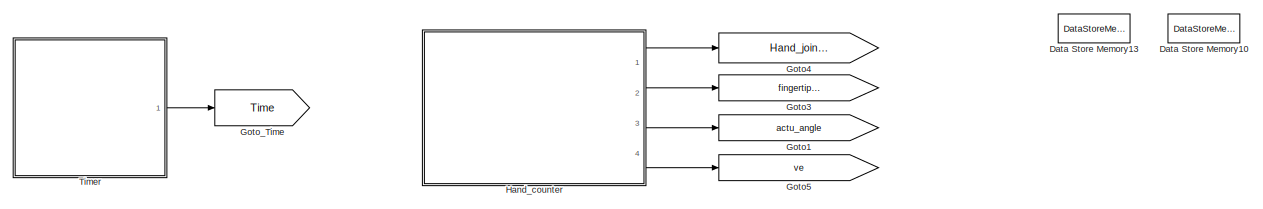
[diagram: root canvas - part 1/9, top left region]
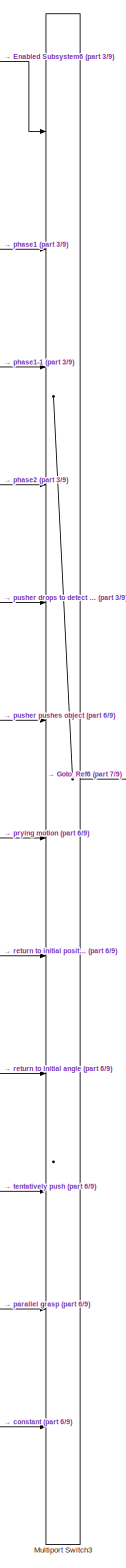
[diagram: root canvas - part 2/9, central region]
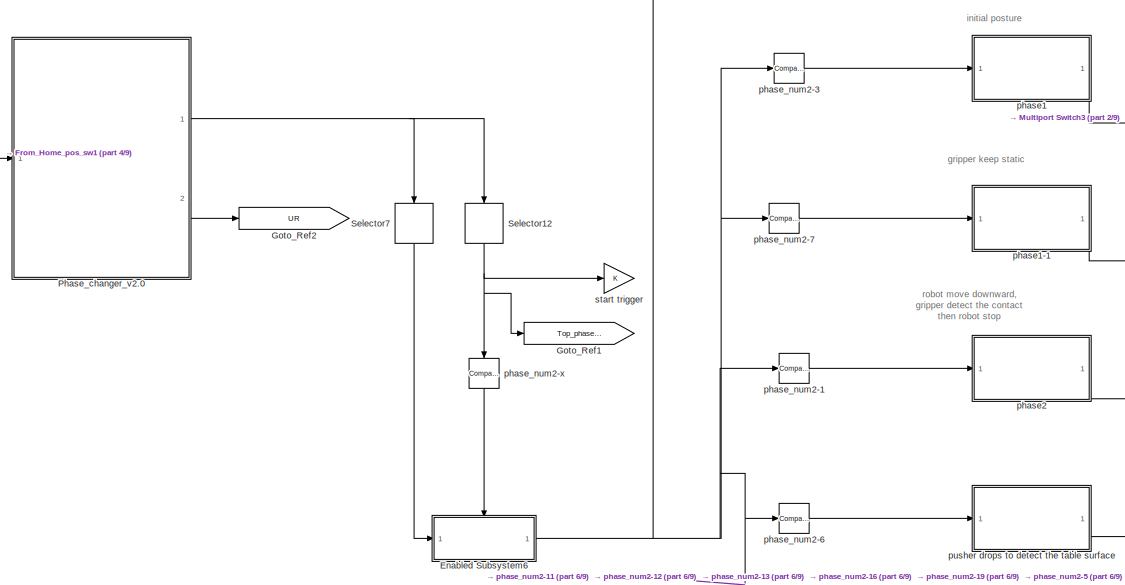
[diagram: root canvas - part 3/9, top left region]
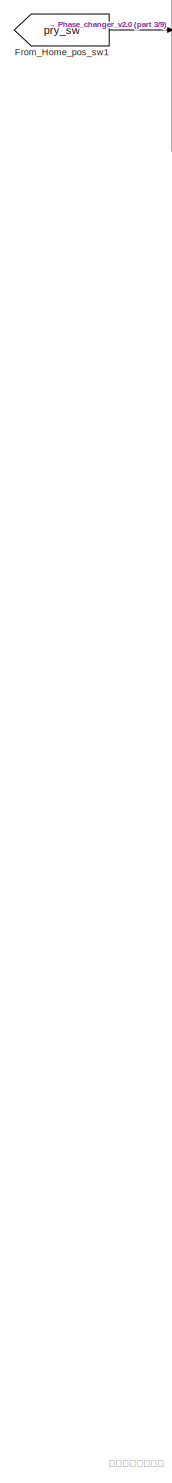
[diagram: root canvas - part 4/9, middle left region]
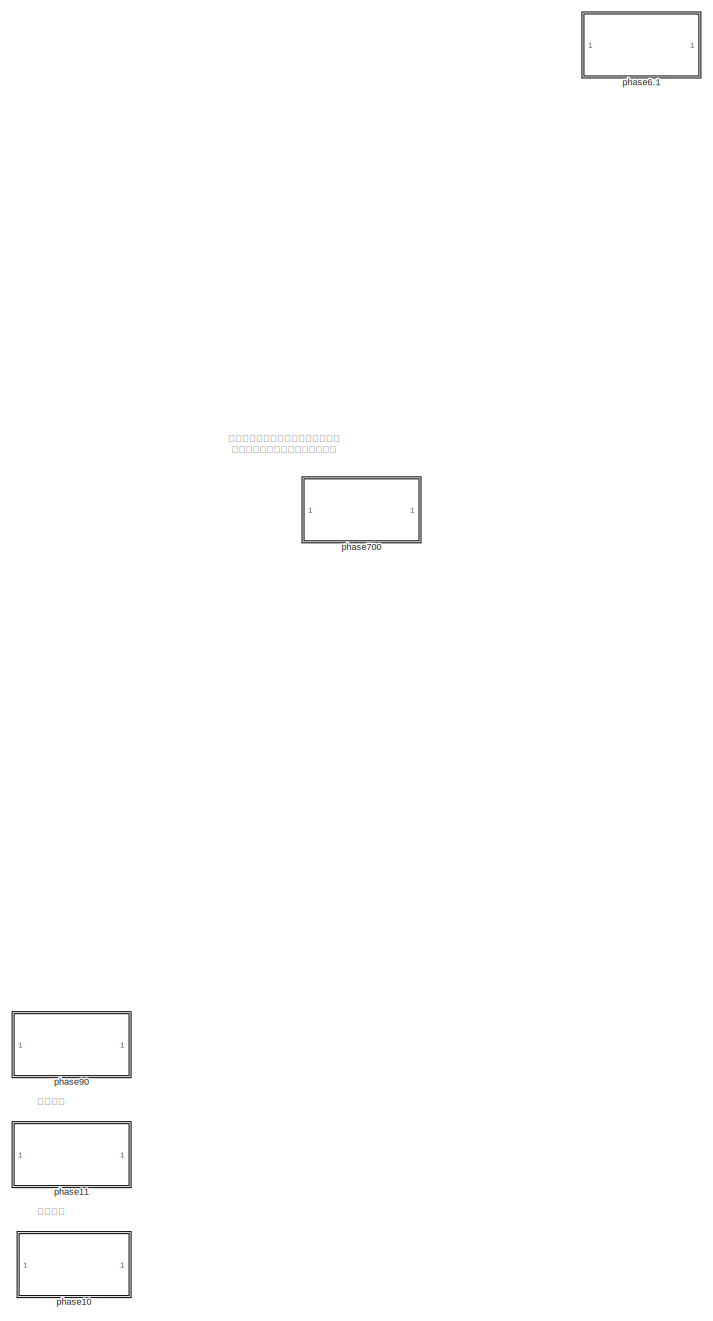
[diagram: root canvas - part 5/9, middle right region]
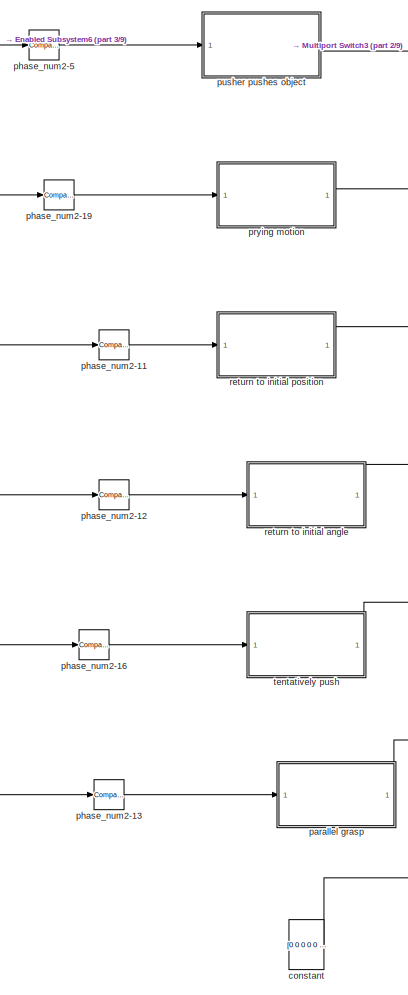
[diagram: root canvas - part 6/9, central region]
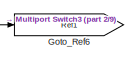
[diagram: root canvas - part 7/9, central region]
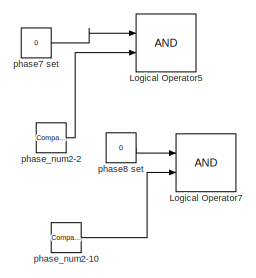
[diagram: root canvas - part 8/9, bottom left region]
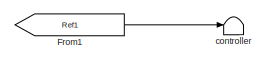
[diagram: root canvas - part 9/9, bottom left region]
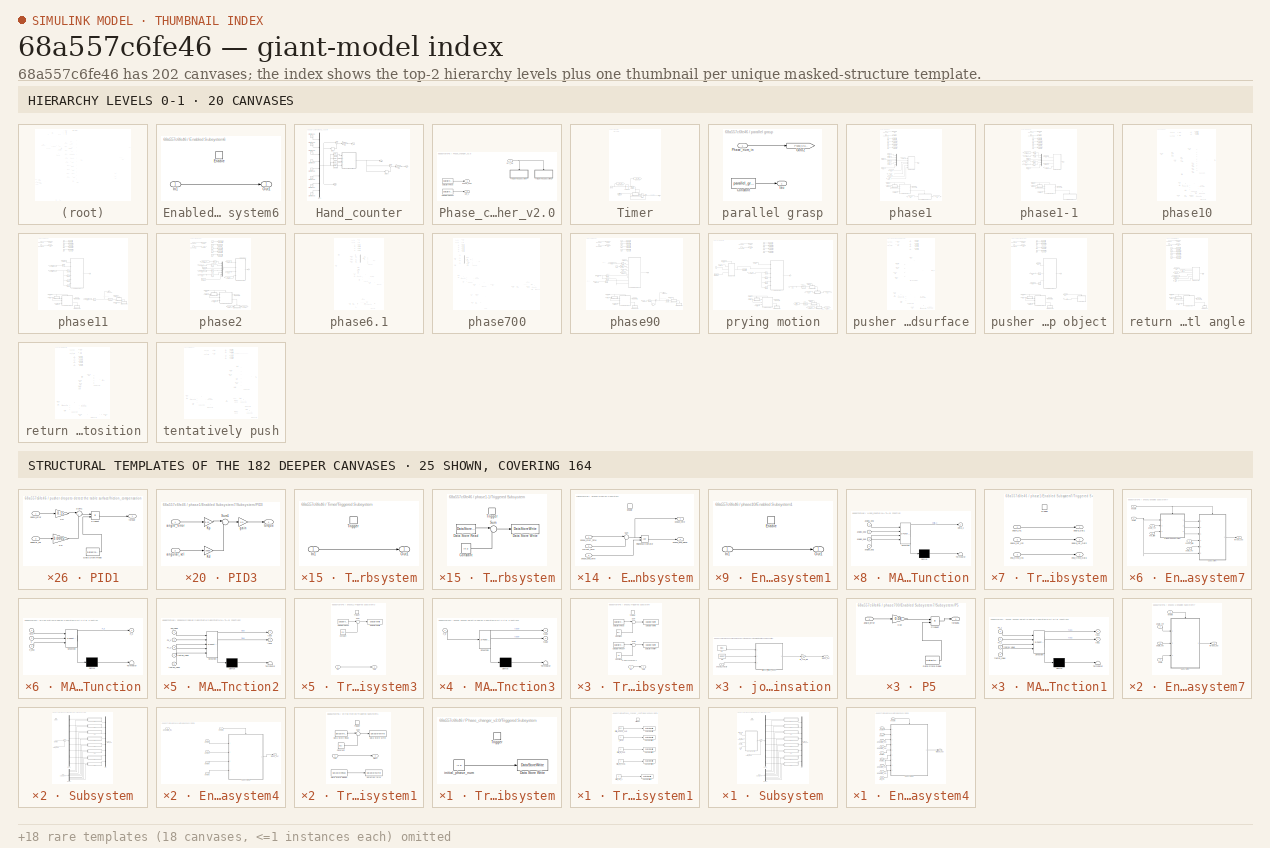
[diagram: thumbnail index - top-2 hierarchy levels (20 canvases) + 25 structural-template representatives of the remaining 182 canvases]
MODEL slx_68a557c6fe46
KIND model
CONFIG AbsTol = auto
CONFIG EnableMultiTasking = off
CONFIG FixedStep = 0.001
CONFIG MaxStep = auto
CONFIG MinStep = auto
CONFIG PostLoadFcn = , if any(exist('dsrtsu_mdlpostloadfcn', 'file') ~= 0), dsrtsu_mdlpostloadfcn('Execute', bdroot); end, \n
CONFIG RelTol = 1e-3
CONFIG SampleTimeConstraint = Unconstrained
CONFIG Solver = FixedStepDiscrete
CONFIG SolverName = FixedStepDiscrete
CONFIG StartTime = 0.0
CONFIG StopTime = Inf
BLOCK [DataStoreMemory] Data Store Memory10
  DataStoreName = pry_force
  ReadBeforeWriteMsg = warning
  ShowAdditionalParam = off
  WriteAfterReadMsg = warning
  WriteAfterWriteMsg = warning
BLOCK [DataStoreMemory] Data Store Memory13
  DataStoreName = initial_force
  ReadBeforeWriteMsg = warning
  ShowAdditionalParam = off
  WriteAfterReadMsg = warning
  WriteAfterWriteMsg = warning
BLOCK [SubSystem] Enabled Subsystem6
  Ports = [1, 1, 1]
  RequestExecContextInheritance = off
  TreatAsAtomicUnit = on
BLOCK [EnablePort] Enabled Subsystem6/Enable
  Ports = []
BLOCK [Inport] Enabled Subsystem6/In1
  IconDisplay = Port number
BLOCK [Outport] Enabled Subsystem6/Out1
  IconDisplay = Port number
  InitialOutput = 0
  OutputWhenDisabled = reset
BLOCK [From] From1
  GotoTag = Ref1
  TagVisibility = global
BLOCK [From] From_Home_pos_sw1
  CloseFcn = tagdialog Close
  GotoTag = pry_sw
  TagVisibility = global
BLOCK [Goto] Goto1
  GotoTag = actu_angle
  TagVisibility = global
BLOCK [Goto] Goto3
  GotoTag = fingertip_distance
  TagVisibility = global
BLOCK [Goto] Goto4
  GotoTag = Hand_joint_angular_velocity
  TagVisibility = global
BLOCK [Goto] Goto5
  GotoTag = ve
  TagVisibility = global
BLOCK [Goto] Goto_Ref1
  GotoTag = Top_phase_num
BLOCK [Goto] Goto_Ref2
  GotoTag = UR
BLOCK [Goto] Goto_Ref6
  GotoTag = Ref1
  TagVisibility = global
BLOCK [Goto] Goto_Time
  GotoTag = Time
  TagVisibility = global
BLOCK [SubSystem] Hand_counter
  Ports = [0, 4]
  RequestExecContextInheritance = off
BLOCK [Gain] Hand_counter/1//dt
  Gain = 1/0.005
  OutDataTypeStr = Inherit: Inherit via internal rule
  ParamDataTypeStr = Inherit: Inherit via internal rule
  SaturateOnIntegerOverflow = off
BLOCK [Gain] Hand_counter/1//dt1
  Gain = 1/0.005
  OutDataTypeStr = Inherit: Inherit via internal rule
  ParamDataTypeStr = Inherit: Inherit via internal rule
  SaturateOnIntegerOverflow = off
BLOCK [Delay] Hand_counter/Delay
  DelayLength = 5
  InitialCondition = 0
  InputPortMap = u0
  Ports = [1, 1]
BLOCK [Delay] Hand_counter/Delay1
  DelayLength = 5
  InitialCondition = 0
  InputPortMap = u0
  Ports = [1, 1]
BLOCK [SubSystem] Hand_counter/MATLAB Function
  ErrorFcn = Stateflow.Translate.translate
  PermitHierarchicalResolution = ExplicitOnly
  Ports = [4, 1]
  RequestExecContextInheritance = off
  SFBlockType = MATLAB Function
  TreatAsAtomicUnit = on
BLOCK [Demux] Hand_counter/MATLAB Function/ Demux 
  Outputs = 1
  Ports = [1, 1]
BLOCK [S-Function] Hand_counter/MATLAB Function/ SFunction 
  EnableBusSupport = on
  FunctionName = sf_sfun
  PortCounts = [4 2]
  Ports = [4, 2]
  SFcnIsStateOwnerBlock = off
  SFunctionDeploymentMode = off
  Tag = Stateflow S-Function pry_grasp_source 20
BLOCK [Terminator] Hand_counter/MATLAB Function/ Terminator 
BLOCK [Inport] Hand_counter/MATLAB Function/angle1_deg
  IconDisplay = Port number
BLOCK [Inport] Hand_counter/MATLAB Function/angle2_deg
  IconDisplay = Port number
  Port = 2
BLOCK [Inport] Hand_counter/MATLAB Function/angle5_deg
  IconDisplay = Port number
  Port = 3
BLOCK [Inport] Hand_counter/MATLAB Function/angle6_deg
  IconDisplay = Port number
  Port = 4
BLOCK [Outport] Hand_counter/MATLAB Function/delta_x
  IconDisplay = Port number
BLOCK [Mux] Hand_counter/Mux1
  DisplayOption = bar
  Inputs = 8
  Ports = [8, 1]
BLOCK [Outport] Hand_counter/Out1
  IconDisplay = Port number
  Port = 3
BLOCK [Selector] Hand_counter/Selector3
  IndexOptions = Index vector (dialog)
  Indices = 1
  InputPortWidth = 8
  OutputSizes = 1
  Ports = [1, 1]
BLOCK [Selector] Hand_counter/Selector4
  IndexOptions = Index vector (dialog)
  Indices = 2
  InputPortWidth = 8
  OutputSizes = 1
  Ports = [1, 1]
BLOCK [Selector] Hand_counter/Selector5
  IndexOptions = Index vector (dialog)
  Indices = 5
  InputPortWidth = 8
  OutputSizes = 1
  Ports = [1, 1]
BLOCK [Selector] Hand_counter/Selector6
  IndexOptions = Index vector (dialog)
  Indices = 6
  InputPortWidth = 8
  OutputSizes = 1
  Ports = [1, 1]
BLOCK [Sum] Hand_counter/Sum
  IconShape = round
  InputSameDT = off
  Inputs = |+-
  OutDataTypeStr = Inherit: Inherit via internal rule
  Ports = [2, 1]
  SaturateOnIntegerOverflow = off
BLOCK [Sum] Hand_counter/Sum1
  IconShape = round
  InputSameDT = off
  Inputs = |+-
  OutDataTypeStr = Inherit: Inherit via internal rule
  Ports = [2, 1]
  SaturateOnIntegerOverflow = off
BLOCK [Constant] Hand_counter/current angle1
  OutDataTypeStr = boolean
  Priority = 1
  Value = 0
BLOCK [Constant] Hand_counter/current angle2
  OutDataTypeStr = boolean
  Priority = 1
  Value = 0
BLOCK [Constant] Hand_counter/current angle3
  OutDataTypeStr = boolean
  Priority = 1
  Value = 0
BLOCK [Constant] Hand_counter/current angle4
  OutDataTypeStr = boolean
  Priority = 1
  Value = 0
BLOCK [Constant] Hand_counter/current angle5
  OutDataTypeStr = boolean
  Priority = 1
  Value = 0
BLOCK [Constant] Hand_counter/current angle6
  OutDataTypeStr = boolean
  Priority = 1
  Value = 0
BLOCK [Constant] Hand_counter/current angle7
  OutDataTypeStr = boolean
  Priority = 1
  Value = 0
BLOCK [Constant] Hand_counter/current angle8
  OutDataTypeStr = boolean
  Priority = 1
  Value = 0
BLOCK [Outport] Hand_counter/deltax
  IconDisplay = Port number
  Port = 2
BLOCK [Outport] Hand_counter/q_dot
  IconDisplay = Port number
BLOCK [Outport] Hand_counter/ve
  IconDisplay = Port number
  Port = 4
BLOCK [Logic] Logical Operator5
  AllPortsSameDT = off
  OutDataTypeStr = boolean
  Ports = [2, 1]
BLOCK [Logic] Logical Operator7
  AllPortsSameDT = off
  OutDataTypeStr = boolean
  Ports = [2, 1]
BLOCK [MultiPortSwitch] Multiport Switch3
  DataPortForDefault = Additional data port
  InputSameDT = off
  Inputs = 10
  Ports = [12, 1]
  SaturateOnIntegerOverflow = off
BLOCK [SubSystem] Phase_changer_v2.0
  Ports = [1, 2]
  RequestExecContextInheritance = off
BLOCK [DataStoreRead] Phase_changer_v2.0/Data Store Read
  DataStoreName = phase_num
  Ports = [0, 1]
  Priority = 3
BLOCK [DataStoreRead] Phase_changer_v2.0/Data Store Read4
  DataStoreName = UR_V
  Ports = [0, 1]
  Priority = 3
BLOCK [SubSystem] Phase_changer_v2.0/Triggered Subsystem
  Ports = [0, 0, 0, 1]
  Priority = 1
  RequestExecContextInheritance = off
  TreatAsAtomicUnit = on
BLOCK [DataStoreWrite] Phase_changer_v2.0/Triggered Subsystem/Data Store Write
  DataStoreName = phase_num
  Ports = [1]
BLOCK [TriggerPort] Phase_changer_v2.0/Triggered Subsystem/Trigger
  Ports = []
  StatesWhenEnabling = held
  VariantControl = (inherit)
BLOCK [Constant] Phase_changer_v2.0/Triggered Subsystem/initial_phase_num
  Value = [1 1]
BLOCK [SubSystem] Phase_changer_v2.0/Triggered Subsystem1
  Ports = [0, 0, 0, 1]
  Priority = 2
  RequestExecContextInheritance = off
  TreatAsAtomicUnit = on
BLOCK [DataStoreWrite] Phase_changer_v2.0/Triggered Subsystem1/Data Store Write
  DataStoreName = phase_num
  Ports = [1]
BLOCK [DataStoreWrite] Phase_changer_v2.0/Triggered Subsystem1/Data Store Write1
  DataStoreName = i
  Ports = [1]
BLOCK [DataStoreWrite] Phase_changer_v2.0/Triggered Subsystem1/Data Store Write2
  DataStoreName = rot_num
  Ports = [1]
BLOCK [DataStoreWrite] Phase_changer_v2.0/Triggered Subsystem1/Data Store Write3
  DataStoreName = static_flag
  Ports = [1]
BLOCK [DataStoreWrite] Phase_changer_v2.0/Triggered Subsystem1/Data Store Write6
  DataStoreName = UR_V
  Ports = [1]
BLOCK [TriggerPort] Phase_changer_v2.0/Triggered Subsystem1/Trigger
  Ports = []
  StatesWhenEnabling = held
  TriggerType = falling
  VariantControl = (inherit)
BLOCK [Constant] Phase_changer_v2.0/Triggered Subsystem1/i_reset
  Value = 0
BLOCK [Constant] Phase_changer_v2.0/Triggered Subsystem1/initial_UR_V
  Value = 0
BLOCK [Constant] Phase_changer_v2.0/Triggered Subsystem1/initial_phase_num
  Value = [0 0]
BLOCK [Constant] Phase_changer_v2.0/Triggered Subsystem1/initial_rot_num
  Value = 0
BLOCK [Constant] Phase_changer_v2.0/Triggered Subsystem1/initial_rot_num1
BLOCK [Outport] Phase_changer_v2.0/UR_V
  IconDisplay = Port number
  Port = 2
BLOCK [Outport] Phase_changer_v2.0/phase_num
  IconDisplay = Port number
BLOCK [Inport] Phase_changer_v2.0/pry_sw
  IconDisplay = Port number
BLOCK [Selector] Selector12
  IndexOptions = Index vector (dialog)
  Indices = 1
  InputPortWidth = 2
  OutputSizes = 1
  Ports = [1, 1]
BLOCK [Selector] Selector7
  IndexOptions = Index vector (dialog)
  Indices = 2
  InputPortWidth = 2
  OutputSizes = 1
  Ports = [1, 1]
BLOCK [SubSystem] Timer
  Ports = [0, 1]
  RequestExecContextInheritance = off
BLOCK [Reference] Timer/Compare To Constant  REF=simulink/Logic and Bit
Operations/Compare
To Constant
  Ports = [1, 1]
  SourceBlock = simulink/Logic and Bit\nOperations/Compare\nTo Constant
  SourceProductBaseCode = SL
  SourceProductName = Simulink
  SourceType = Compare To Constant
BLOCK [DigitalClock] Timer/Digital Clock
  SampleTime = 0.001
BLOCK [Goto] Timer/Goto_Ex_sw
  GotoTag = ex_sw
  TagVisibility = global
BLOCK [Goto] Timer/Goto_demo_sw
  GotoTag = pry_sw
  TagVisibility = global
BLOCK [Logic] Timer/Logical Operator
  AllPortsSameDT = off
  Inputs = 1
  Operator = OR
  OutDataTypeStr = boolean
  Ports = [1, 1]
BLOCK [Sum] Timer/Sum2
  IconShape = round
  InputSameDT = off
  Inputs = |-+
  OutDataTypeStr = Inherit: Inherit via internal rule
  Ports = [2, 1]
  SaturateOnIntegerOverflow = off
BLOCK [Switch] Timer/Switch1
  Criteria = u2 > Threshold
  InputSameDT = off
  SaturateOnIntegerOverflow = off
BLOCK [SubSystem] Timer/Triggered Subsystem
  Ports = [1, 1, 0, 1]
  RequestExecContextInheritance = off
  TreatAsAtomicUnit = on
BLOCK [Inport] Timer/Triggered Subsystem/In1
  IconDisplay = Port number
BLOCK [Outport] Timer/Triggered Subsystem/Out1
  IconDisplay = Port number
BLOCK [TriggerPort] Timer/Triggered Subsystem/Trigger
  Ports = []
  VariantControl = (inherit)
BLOCK [Constant] Timer/pry_sw
  OutDataTypeStr = boolean
  Priority = 1
  Value = 0
BLOCK [Outport] Timer/time
  IconDisplay = Port number
BLOCK [Constant] constant
  Value = [0 0 0 0 0 0 0 0]
BLOCK [Terminator] controller
BLOCK [SubSystem] parallel grasp
  Ports = [1, 1]
  RequestExecContextInheritance = off
BLOCK [Constant] parallel grasp/Constant
  Value = parallel_grasp
BLOCK [Goto] parallel grasp/Goto2
  GotoTag = Phase_Start
BLOCK [Inport] parallel grasp/Phase_num_in
  IconDisplay = Port number
BLOCK [Outport] parallel grasp/tau
  IconDisplay = Port number
BLOCK [SubSystem] phase1
  Ports = [1, 1]
  RequestExecContextInheritance = off
BLOCK [SubSystem] phase1-1
  Ports = [1, 1]
  RequestExecContextInheritance = off
BLOCK [DataStoreWrite] phase1-1/Data Store Write1
  DataStoreName = gain2
  Ports = [1]
BLOCK [DataStoreWrite] phase1-1/Data Store Write2
  DataStoreName = gain5
  Ports = [1]
BLOCK [DataStoreWrite] phase1-1/Data Store Write3
  DataStoreName = gain6
  Ports = [1]
BLOCK [DataStoreWrite] phase1-1/Data Store Write4
  DataStoreName = gain1
  Ports = [1]
BLOCK [SubSystem] phase1-1/Enabled Subsystem
  Ports = [3, 2, 1]
  RequestExecContextInheritance = off
  TreatAsAtomicUnit = on
BLOCK [EnablePort] phase1-1/Enabled Subsystem/Enable
  Ports = []
BLOCK [RelationalOperator] phase1-1/Enabled Subsystem/Relational Operator
  InputSameDT = off
  OutDataTypeStr = boolean
  Ports = [2, 1]
BLOCK [Sum] phase1-1/Enabled Subsystem/Sum
  IconShape = round
  InputSameDT = off
  Inputs = |-+
  OutDataTypeStr = Inherit: Inherit via internal rule
  Ports = [2, 1]
  SaturateOnIntegerOverflow = off
BLOCK [Inport] phase1-1/Enabled Subsystem/current_time
  IconDisplay = Port number
  Port = 2
BLOCK [Outport] phase1-1/Enabled Subsystem/phase_end_signal
  IconDisplay = Port number
  InitialOutput = 0
  OutputWhenDisabled = reset
  Port = 2
BLOCK [Inport] phase1-1/Enabled Subsystem/phase_end_time
  IconDisplay = Port number
  Port = 3
BLOCK [Inport] phase1-1/Enabled Subsystem/phase_start_time
  IconDisplay = Port number
BLOCK [Outport] phase1-1/Enabled Subsystem/phase_time
  IconDisplay = Port number
  InitialOutput = 0
  OutputWhenDisabled = reset
BLOCK [SubSystem] phase1-1/Enabled Subsystem7
  Ports = [4, 1]
  RequestExecContextInheritance = off
  TreatAsAtomicUnit = on
BLOCK [SubSystem] phase1-1/Enabled Subsystem7/Subsystem
  Ports = [3, 1, 1]
  RequestExecContextInheritance = off
BLOCK [Demux] phase1-1/Enabled Subsystem7/Subsystem/Demux
  DisplayOption = bar
  Outputs = 8
  Ports = [1, 8]
BLOCK [Demux] phase1-1/Enabled Subsystem7/Subsystem/Demux1
  DisplayOption = bar
  Outputs = 8
  Ports = [1, 8]
BLOCK [EnablePort] phase1-1/Enabled Subsystem7/Subsystem/Enable
  Ports = []
BLOCK [Mux] phase1-1/Enabled Subsystem7/Subsystem/Mux
  DisplayOption = bar
  Inputs = 8
  Ports = [8, 1]
BLOCK [SubSystem] phase1-1/Enabled Subsystem7/Subsystem/PID1
  Ports = [2, 1]
  RequestExecContextInheritance = off
BLOCK [DataStoreRead] phase1-1/Enabled Subsystem7/Subsystem/PID1/Data Store Read
  DataStoreName = gain1
  Ports = [0, 1]
BLOCK [Gain] phase1-1/Enabled Subsystem7/Subsystem/PID1/Kd
  Gain = 0.0005
  OutDataTypeStr = Inherit: Inherit via internal rule
  ParamDataTypeStr = Inherit: Inherit via internal rule
  SaturateOnIntegerOverflow = off
BLOCK [Gain] phase1-1/Enabled Subsystem7/Subsystem/PID1/Kp
  Gain = 0.15
  OutDataTypeStr = Inherit: Inherit via internal rule
  ParamDataTypeStr = Inherit: Inherit via internal rule
  SaturateOnIntegerOverflow = off
BLOCK [Product] phase1-1/Enabled Subsystem7/Subsystem/PID1/Product
  InputSameDT = off
  OutDataTypeStr = Inherit: Inherit via internal rule
  Ports = [2, 1]
  RndMeth = Floor
  SaturateOnIntegerOverflow = off
BLOCK [Sum] phase1-1/Enabled Subsystem7/Subsystem/PID1/Sum1
  IconShape = round
  InputSameDT = off
  Inputs = |+-
  OutDataTypeStr = Inherit: Inherit via internal rule
  Ports = [2, 1]
  SaturateOnIntegerOverflow = off
BLOCK [Inport] phase1-1/Enabled Subsystem7/Subsystem/PID1/angle_error
  IconDisplay = Port number
BLOCK [Inport] phase1-1/Enabled Subsystem7/Subsystem/PID1/angular_vel
  IconDisplay = Port number
  Port = 2
BLOCK [Outport] phase1-1/Enabled Subsystem7/Subsystem/PID1/torque
  IconDisplay = Port number
BLOCK [SubSystem] phase1-1/Enabled Subsystem7/Subsystem/PID2
  Ports = [2, 1]
  RequestExecContextInheritance = off
BLOCK [DataStoreRead] phase1-1/Enabled Subsystem7/Subsystem/PID2/Data Store Read
  DataStoreName = gain2
  Ports = [0, 1]
BLOCK [Gain] phase1-1/Enabled Subsystem7/Subsystem/PID2/Kd2
  Gain = 0.0002
  OutDataTypeStr = Inherit: Inherit via internal rule
  ParamDataTypeStr = Inherit: Inherit via internal rule
  SaturateOnIntegerOverflow = off
BLOCK [Gain] phase1-1/Enabled Subsystem7/Subsystem/PID2/Kp2
  Gain = 0.08
  OutDataTypeStr = Inherit: Inherit via internal rule
  ParamDataTypeStr = Inherit: Inherit via internal rule
  SaturateOnIntegerOverflow = off
BLOCK [Product] phase1-1/Enabled Subsystem7/Subsystem/PID2/Product
  InputSameDT = off
  OutDataTypeStr = Inherit: Inherit via internal rule
  Ports = [2, 1]
  RndMeth = Floor
  SaturateOnIntegerOverflow = off
BLOCK [Sum] phase1-1/Enabled Subsystem7/Subsystem/PID2/Sum1
  IconShape = round
  InputSameDT = off
  Inputs = |+-
  OutDataTypeStr = Inherit: Inherit via internal rule
  Ports = [2, 1]
  SaturateOnIntegerOverflow = off
BLOCK [Inport] phase1-1/Enabled Subsystem7/Subsystem/PID2/angle_error
  IconDisplay = Port number
BLOCK [Inport] phase1-1/Enabled Subsystem7/Subsystem/PID2/angular_vel
  IconDisplay = Port number
  Port = 2
BLOCK [Outport] phase1-1/Enabled Subsystem7/Subsystem/PID2/torque
  IconDisplay = Port number
BLOCK [SubSystem] phase1-1/Enabled Subsystem7/Subsystem/PID3
  Ports = [2, 1]
  RequestExecContextInheritance = off
BLOCK [Gain] phase1-1/Enabled Subsystem7/Subsystem/PID3/Kd
  Gain = 0.0005
  OutDataTypeStr = Inherit: Inherit via internal rule
  ParamDataTypeStr = Inherit: Inherit via internal rule
  SaturateOnIntegerOverflow = off
BLOCK [Gain] phase1-1/Enabled Subsystem7/Subsystem/PID3/Kp
  Gain = 0.15
  OutDataTypeStr = Inherit: Inherit via internal rule
  ParamDataTypeStr = Inherit: Inherit via internal rule
  SaturateOnIntegerOverflow = off
BLOCK [Sum] phase1-1/Enabled Subsystem7/Subsystem/PID3/Sum1
  IconShape = round
  InputSameDT = off
  Inputs = |+-
  OutDataTypeStr = Inherit: Inherit via internal rule
  Ports = [2, 1]
  SaturateOnIntegerOverflow = off
BLOCK [Inport] phase1-1/Enabled Subsystem7/Subsystem/PID3/angle_error
  IconDisplay = Port number
BLOCK [Inport] phase1-1/Enabled Subsystem7/Subsystem/PID3/angular_vel
  IconDisplay = Port number
  Port = 2
BLOCK [Gain] phase1-1/Enabled Subsystem7/Subsystem/PID3/gain
  Gain = 0.5
  OutDataTypeStr = Inherit: Inherit via internal rule
  ParamDataTypeStr = Inherit: Inherit via internal rule
  SaturateOnIntegerOverflow = off
BLOCK [Outport] phase1-1/Enabled Subsystem7/Subsystem/PID3/torque
  IconDisplay = Port number
BLOCK [SubSystem] phase1-1/Enabled Subsystem7/Subsystem/PID4
  Ports = [2, 1]
  RequestExecContextInheritance = off
BLOCK [Gain] phase1-1/Enabled Subsystem7/Subsystem/PID4/Kd2
  Gain = 0.0002
  OutDataTypeStr = Inherit: Inherit via internal rule
  ParamDataTypeStr = Inherit: Inherit via internal rule
  SaturateOnIntegerOverflow = off
BLOCK [Gain] phase1-1/Enabled Subsystem7/Subsystem/PID4/Kp2
  Gain = 0.08
  OutDataTypeStr = Inherit: Inherit via internal rule
  ParamDataTypeStr = Inherit: Inherit via internal rule
  SaturateOnIntegerOverflow = off
BLOCK [Sum] phase1-1/Enabled Subsystem7/Subsystem/PID4/Sum1
  IconShape = round
  InputSameDT = off
  Inputs = |+-
  OutDataTypeStr = Inherit: Inherit via internal rule
  Ports = [2, 1]
  SaturateOnIntegerOverflow = off
BLOCK [Inport] phase1-1/Enabled Subsystem7/Subsystem/PID4/angle_error
  IconDisplay = Port number
BLOCK [Inport] phase1-1/Enabled Subsystem7/Subsystem/PID4/angular_vel
  IconDisplay = Port number
  Port = 2
BLOCK [Gain] phase1-1/Enabled Subsystem7/Subsystem/PID4/gain
  Gain = 0.5
  OutDataTypeStr = Inherit: Inherit via internal rule
  ParamDataTypeStr = Inherit: Inherit via internal rule
  SaturateOnIntegerOverflow = off
BLOCK [Outport] phase1-1/Enabled Subsystem7/Subsystem/PID4/torque
  IconDisplay = Port number
BLOCK [SubSystem] phase1-1/Enabled Subsystem7/Subsystem/PID5
  Ports = [2, 1]
  RequestExecContextInheritance = off
BLOCK [DataStoreRead] phase1-1/Enabled Subsystem7/Subsystem/PID5/Data Store Read
  DataStoreName = gain5
  Ports = [0, 1]
BLOCK [Gain] phase1-1/Enabled Subsystem7/Subsystem/PID5/Kd
  Gain = 0.0005
  OutDataTypeStr = Inherit: Inherit via internal rule
  ParamDataTypeStr = Inherit: Inherit via internal rule
  SaturateOnIntegerOverflow = off
BLOCK [Gain] phase1-1/Enabled Subsystem7/Subsystem/PID5/Kp
  Gain = 0.15
  OutDataTypeStr = Inherit: Inherit via internal rule
  ParamDataTypeStr = Inherit: Inherit via internal rule
  SaturateOnIntegerOverflow = off
BLOCK [Product] phase1-1/Enabled Subsystem7/Subsystem/PID5/Product
  InputSameDT = off
  OutDataTypeStr = Inherit: Inherit via internal rule
  Ports = [2, 1]
  RndMeth = Floor
  SaturateOnIntegerOverflow = off
BLOCK [Sum] phase1-1/Enabled Subsystem7/Subsystem/PID5/Sum1
  IconShape = round
  InputSameDT = off
  Inputs = |+-
  OutDataTypeStr = Inherit: Inherit via internal rule
  Ports = [2, 1]
  SaturateOnIntegerOverflow = off
BLOCK [Inport] phase1-1/Enabled Subsystem7/Subsystem/PID5/angle_error
  IconDisplay = Port number
BLOCK [Inport] phase1-1/Enabled Subsystem7/Subsystem/PID5/angular_vel
  IconDisplay = Port number
  Port = 2
BLOCK [Outport] phase1-1/Enabled Subsystem7/Subsystem/PID5/torque
  IconDisplay = Port number
BLOCK [SubSystem] phase1-1/Enabled Subsystem7/Subsystem/PID6
  Ports = [2, 1]
  RequestExecContextInheritance = off
BLOCK [DataStoreRead] phase1-1/Enabled Subsystem7/Subsystem/PID6/Data Store Read
  DataStoreName = gain6
  Ports = [0, 1]
BLOCK [Gain] phase1-1/Enabled Subsystem7/Subsystem/PID6/Kd2
  Gain = 0.0002
  OutDataTypeStr = Inherit: Inherit via internal rule
  ParamDataTypeStr = Inherit: Inherit via internal rule
  SaturateOnIntegerOverflow = off
BLOCK [Gain] phase1-1/Enabled Subsystem7/Subsystem/PID6/Kp2
  Gain = 0.08
  OutDataTypeStr = Inherit: Inherit via internal rule
  ParamDataTypeStr = Inherit: Inherit via internal rule
  SaturateOnIntegerOverflow = off
BLOCK [Product] phase1-1/Enabled Subsystem7/Subsystem/PID6/Product
  InputSameDT = off
  OutDataTypeStr = Inherit: Inherit via internal rule
  Ports = [2, 1]
  RndMeth = Floor
  SaturateOnIntegerOverflow = off
BLOCK [Sum] phase1-1/Enabled Subsystem7/Subsystem/PID6/Sum1
  IconShape = round
  InputSameDT = off
  Inputs = |+-
  OutDataTypeStr = Inherit: Inherit via internal rule
  Ports = [2, 1]
  SaturateOnIntegerOverflow = off
BLOCK [Inport] phase1-1/Enabled Subsystem7/Subsystem/PID6/angle_error
  IconDisplay = Port number
BLOCK [Inport] phase1-1/Enabled Subsystem7/Subsystem/PID6/angular_vel
  IconDisplay = Port number
  Port = 2
BLOCK [Outport] phase1-1/Enabled Subsystem7/Subsystem/PID6/torque
  IconDisplay = Port number
BLOCK [SubSystem] phase1-1/Enabled Subsystem7/Subsystem/PID7
  Ports = [2, 1]
  RequestExecContextInheritance = off
BLOCK [Gain] phase1-1/Enabled Subsystem7/Subsystem/PID7/Kd
  Gain = 0.0005
  OutDataTypeStr = Inherit: Inherit via internal rule
  ParamDataTypeStr = Inherit: Inherit via internal rule
  SaturateOnIntegerOverflow = off
BLOCK [Gain] phase1-1/Enabled Subsystem7/Subsystem/PID7/Kp
  Gain = 0.15
  OutDataTypeStr = Inherit: Inherit via internal rule
  ParamDataTypeStr = Inherit: Inherit via internal rule
  SaturateOnIntegerOverflow = off
BLOCK [Sum] phase1-1/Enabled Subsystem7/Subsystem/PID7/Sum1
  IconShape = round
  InputSameDT = off
  Inputs = |+-
  OutDataTypeStr = Inherit: Inherit via internal rule
  Ports = [2, 1]
  SaturateOnIntegerOverflow = off
BLOCK [Inport] phase1-1/Enabled Subsystem7/Subsystem/PID7/angle_error
  IconDisplay = Port number
BLOCK [Inport] phase1-1/Enabled Subsystem7/Subsystem/PID7/angular_vel
  IconDisplay = Port number
  Port = 2
BLOCK [Gain] phase1-1/Enabled Subsystem7/Subsystem/PID7/gain
  Gain = 0.5
  OutDataTypeStr = Inherit: Inherit via internal rule
  ParamDataTypeStr = Inherit: Inherit via internal rule
  SaturateOnIntegerOverflow = off
BLOCK [Outport] phase1-1/Enabled Subsystem7/Subsystem/PID7/torque
  IconDisplay = Port number
BLOCK [SubSystem] phase1-1/Enabled Subsystem7/Subsystem/PID8
  Ports = [2, 1]
  RequestExecContextInheritance = off
BLOCK [Gain] phase1-1/Enabled Subsystem7/Subsystem/PID8/Kd
  Gain = 0.0005
  OutDataTypeStr = Inherit: Inherit via internal rule
  ParamDataTypeStr = Inherit: Inherit via internal rule
  SaturateOnIntegerOverflow = off
BLOCK [Gain] phase1-1/Enabled Subsystem7/Subsystem/PID8/Kp
  Gain = 0.15
  OutDataTypeStr = Inherit: Inherit via internal rule
  ParamDataTypeStr = Inherit: Inherit via internal rule
  SaturateOnIntegerOverflow = off
BLOCK [Sum] phase1-1/Enabled Subsystem7/Subsystem/PID8/Sum1
  IconShape = round
  InputSameDT = off
  Inputs = |+-
  OutDataTypeStr = Inherit: Inherit via internal rule
  Ports = [2, 1]
  SaturateOnIntegerOverflow = off
BLOCK [Inport] phase1-1/Enabled Subsystem7/Subsystem/PID8/angle_error
  IconDisplay = Port number
BLOCK [Inport] phase1-1/Enabled Subsystem7/Subsystem/PID8/angular_vel
  IconDisplay = Port number
  Port = 2
BLOCK [Gain] phase1-1/Enabled Subsystem7/Subsystem/PID8/gain
  Gain = 0.5
  OutDataTypeStr = Inherit: Inherit via internal rule
  ParamDataTypeStr = Inherit: Inherit via internal rule
  SaturateOnIntegerOverflow = off
BLOCK [Outport] phase1-1/Enabled Subsystem7/Subsystem/PID8/torque
  IconDisplay = Port number
BLOCK [Sum] phase1-1/Enabled Subsystem7/Subsystem/Sum2
  IconShape = round
  InputSameDT = off
  Inputs = |+-
  OutDataTypeStr = Inherit: Inherit via internal rule
  Ports = [2, 1]
  SaturateOnIntegerOverflow = off
BLOCK [Inport] phase1-1/Enabled Subsystem7/Subsystem/angular_vel
  IconDisplay = Port number
  Port = 2
BLOCK [Inport] phase1-1/Enabled Subsystem7/Subsystem/current_angle
  IconDisplay = Port number
  Port = 3
BLOCK [Inport] phase1-1/Enabled Subsystem7/Subsystem/ref_angle
  IconDisplay = Port number
BLOCK [Outport] phase1-1/Enabled Subsystem7/Subsystem/torque_out
  IconDisplay = Port number
  InitialOutput = [0 0 0 0 0 0 0 0]
  OutputWhenDisabled = reset
BLOCK [Inport] phase1-1/Enabled Subsystem7/angle
  IconDisplay = Port number
  Port = 3
BLOCK [Inport] phase1-1/Enabled Subsystem7/angle_ref
  IconDisplay = Port number
  Port = 2
BLOCK [Inport] phase1-1/Enabled Subsystem7/angle_vel
  IconDisplay = Port number
  Port = 4
BLOCK [Inport] phase1-1/Enabled Subsystem7/enable
  IconDisplay = Port number
BLOCK [Outport] phase1-1/Enabled Subsystem7/torque_out
  IconDisplay = Port number
  InitialOutput = 0
  OutputWhenDisabled = reset
BLOCK [From] phase1-1/From
  GotoTag = end_time
BLOCK [From] phase1-1/From1
  GotoTag = phase1_end_angle
  TagVisibility = global
BLOCK [From] phase1-1/From10
  GotoTag = Hand_joint_angular_velocity
  TagVisibility = global
BLOCK [From] phase1-1/From13
  GotoTag = Time
  TagVisibility = global
BLOCK [From] phase1-1/From14
  GotoTag = Phase_Start
BLOCK [From] phase1-1/From15
  GotoTag = actu_angle
  TagVisibility = global
BLOCK [From] phase1-1/From2
  GotoTag = phase1_end_angle
  TagVisibility = global
BLOCK [From] phase1-1/From3
  GotoTag = Phase_Start
BLOCK [From] phase1-1/From4
  GotoTag = phase1_end_angle
  TagVisibility = global
BLOCK [From] phase1-1/From5
  GotoTag = phase1_end_angle
  TagVisibility = global
BLOCK [Goto] phase1-1/Goto2
  GotoTag = Phase_Start
BLOCK [Goto] phase1-1/Goto3
  GotoTag = end_time
BLOCK [Goto] phase1-1/Goto_phase_time
  GotoTag = phase_time
BLOCK [Mux] phase1-1/Mux
  DisplayOption = bar
  Inputs = 6
  Ports = [6, 1]
BLOCK [Inport] phase1-1/Phase_num_in
  IconDisplay = Port number
BLOCK [Outport] phase1-1/Ref
  IconDisplay = Port number
BLOCK [Selector] phase1-1/Selector1
  IndexOptions = Index vector (dialog)
  Indices = 1
  InputPortWidth = 8
  OutputSizes = 1
  Ports = [1, 1]
BLOCK [Selector] phase1-1/Selector2
  IndexOptions = Index vector (dialog)
  Indices = 2
  InputPortWidth = 8
  OutputSizes = 1
  Ports = [1, 1]
BLOCK [Selector] phase1-1/Selector3
  IndexOptions = Index vector (dialog)
  Indices = 5
  InputPortWidth = 8
  OutputSizes = 1
  Ports = [1, 1]
BLOCK [Selector] phase1-1/Selector4
  IndexOptions = Index vector (dialog)
  Indices = 6
  InputPortWidth = 8
  OutputSizes = 1
  Ports = [1, 1]
BLOCK [SubSystem] phase1-1/Triggered Subsystem
  Ports = [0, 0, 0, 1]
  RequestExecContextInheritance = off
  TreatAsAtomicUnit = on
BLOCK [Constant] phase1-1/Triggered Subsystem/Constant
  Value = [0 1]
BLOCK [DataStoreRead] phase1-1/Triggered Subsystem/Data Store Read
  DataStoreName = phase_num
  Ports = [0, 1]
  Priority = 3
BLOCK [DataStoreWrite] phase1-1/Triggered Subsystem/Data Store Write
  DataStoreName = phase_num
  Ports = [1]
BLOCK [Sum] phase1-1/Triggered Subsystem/Sum
  IconShape = round
  InputSameDT = off
  Inputs = |++
  OutDataTypeStr = Inherit: Inherit via internal rule
  Ports = [2, 1]
  SaturateOnIntegerOverflow = off
BLOCK [TriggerPort] phase1-1/Triggered Subsystem/Trigger
  Ports = []
  StatesWhenEnabling = held
  VariantControl = (inherit)
BLOCK [SubSystem] phase1-1/Triggered Subsystem1
  Ports = [1, 1, 0, 1]
  RequestExecContextInheritance = off
  TreatAsAtomicUnit = on
BLOCK [Inport] phase1-1/Triggered Subsystem1/In1
  IconDisplay = Port number
BLOCK [Outport] phase1-1/Triggered Subsystem1/Out1
  IconDisplay = Port number
  InitialOutput = 0
BLOCK [TriggerPort] phase1-1/Triggered Subsystem1/Trigger
  Ports = []
  StatesWhenEnabling = held
  VariantControl = (inherit)
BLOCK [Constant] phase1-1/finger2
  Value = [0.0 0.0]
BLOCK [Constant] phase1-1/gain1
  Value = 0.5
BLOCK [Constant] phase1-1/gain2
  Value = 0.5
BLOCK [Constant] phase1-1/gain5
  Value = 0.5
BLOCK [Constant] phase1-1/gain6
  Value = 0.5
BLOCK [Constant] phase1-1/phase_end_time
  Value = 0.1
BLOCK [Constant] phase1-1/q7, q8
  Value = [0.0 0.0]
BLOCK [DataStoreWrite] phase1/Data Store Write1
  DataStoreName = gain2
  Ports = [1]
BLOCK [DataStoreWrite] phase1/Data Store Write2
  DataStoreName = gain5
  Ports = [1]
BLOCK [DataStoreWrite] phase1/Data Store Write3
  DataStoreName = gain6
  Ports = [1]
BLOCK [DataStoreWrite] phase1/Data Store Write4
  DataStoreName = gain1
  Ports = [1]
BLOCK [SubSystem] phase1/Enabled Subsystem
  Ports = [3, 2, 1]
  RequestExecContextInheritance = off
  TreatAsAtomicUnit = on
BLOCK [EnablePort] phase1/Enabled Subsystem/Enable
  Ports = []
BLOCK [RelationalOperator] phase1/Enabled Subsystem/Relational Operator
  InputSameDT = off
  OutDataTypeStr = boolean
  Ports = [2, 1]
BLOCK [Sum] phase1/Enabled Subsystem/Sum
  IconShape = round
  InputSameDT = off
  Inputs = |-+
  OutDataTypeStr = Inherit: Inherit via internal rule
  Ports = [2, 1]
  SaturateOnIntegerOverflow = off
BLOCK [Inport] phase1/Enabled Subsystem/current_time
  IconDisplay = Port number
  Port = 2
BLOCK [Outport] phase1/Enabled Subsystem/phase_end_signal
  IconDisplay = Port number
  InitialOutput = 0
  OutputWhenDisabled = reset
  Port = 2
BLOCK [Inport] phase1/Enabled Subsystem/phase_end_time
  IconDisplay = Port number
  Port = 3
BLOCK [Inport] phase1/Enabled Subsystem/phase_start_time
  IconDisplay = Port number
BLOCK [Outport] phase1/Enabled Subsystem/phase_time
  IconDisplay = Port number
  InitialOutput = 0
  OutputWhenDisabled = reset
BLOCK [SubSystem] phase1/Enabled Subsystem7
  Ports = [6, 1]
  RequestExecContextInheritance = off
  TreatAsAtomicUnit = on
BLOCK [SubSystem] phase1/Enabled Subsystem7/Subsystem
  Ports = [6, 1, 1]
  RequestExecContextInheritance = off
BLOCK [Demux] phase1/Enabled Subsystem7/Subsystem/Demux
  DisplayOption = bar
  Outputs = 8
  Ports = [1, 8]
BLOCK [Demux] phase1/Enabled Subsystem7/Subsystem/Demux1
  DisplayOption = bar
  Outputs = 8
  Ports = [1, 8]
BLOCK [EnablePort] phase1/Enabled Subsystem7/Subsystem/Enable
  Ports = []
BLOCK [SubSystem] phase1/Enabled Subsystem7/Subsystem/MATLAB Function
  ErrorFcn = Stateflow.Translate.translate
  PermitHierarchicalResolution = ExplicitOnly
  Ports = [4, 1]
  RequestExecContextInheritance = off
  SFBlockType = MATLAB Function
  TreatAsAtomicUnit = on
BLOCK [Demux] phase1/Enabled Subsystem7/Subsystem/MATLAB Function/ Demux 
  Outputs = 1
  Ports = [1, 1]
BLOCK [S-Function] phase1/Enabled Subsystem7/Subsystem/MATLAB Function/ SFunction 
  EnableBusSupport = on
  FunctionName = sf_sfun
  PortCounts = [4 2]
  Ports = [4, 2]
  SFcnIsStateOwnerBlock = off
  SFunctionDeploymentMode = off
  Tag = Stateflow S-Function pry_grasp_source 1
BLOCK [Terminator] phase1/Enabled Subsystem7/Subsystem/MATLAB Function/ Terminator 
BLOCK [Outport] phase1/Enabled Subsystem7/Subsystem/MATLAB Function/angle_ref_out
  IconDisplay = Port number
BLOCK [Inport] phase1/Enabled Subsystem7/Subsystem/MATLAB Function/end_q
  IconDisplay = Port number
  Port = 2
BLOCK [Inport] phase1/Enabled Subsystem7/Subsystem/MATLAB Function/end_time
  IconDisplay = Port number
  Port = 3
BLOCK [Inport] phase1/Enabled Subsystem7/Subsystem/MATLAB Function/initial_q
  IconDisplay = Port number
BLOCK [Inport] phase1/Enabled Subsystem7/Subsystem/MATLAB Function/time
  IconDisplay = Port number
  Port = 4
BLOCK [Mux] phase1/Enabled Subsystem7/Subsystem/Mux
  DisplayOption = bar
  Inputs = 8
  Ports = [8, 1]
BLOCK [SubSystem] phase1/Enabled Subsystem7/Subsystem/PID1
  Ports = [2, 1]
  RequestExecContextInheritance = off
BLOCK [DataStoreRead] phase1/Enabled Subsystem7/Subsystem/PID1/Data Store Read
  DataStoreName = gain1
  Ports = [0, 1]
BLOCK [Gain] phase1/Enabled Subsystem7/Subsystem/PID1/Kd
  Gain = 0.0005
  OutDataTypeStr = Inherit: Inherit via internal rule
  ParamDataTypeStr = Inherit: Inherit via internal rule
  SaturateOnIntegerOverflow = off
BLOCK [Gain] phase1/Enabled Subsystem7/Subsystem/PID1/Kp
  Gain = 0.15
  OutDataTypeStr = Inherit: Inherit via internal rule
  ParamDataTypeStr = Inherit: Inherit via internal rule
  SaturateOnIntegerOverflow = off
BLOCK [Product] phase1/Enabled Subsystem7/Subsystem/PID1/Product
  InputSameDT = off
  OutDataTypeStr = Inherit: Inherit via internal rule
  Ports = [2, 1]
  RndMeth = Floor
  SaturateOnIntegerOverflow = off
BLOCK [Sum] phase1/Enabled Subsystem7/Subsystem/PID1/Sum1
  IconShape = round
  InputSameDT = off
  Inputs = |+-
  OutDataTypeStr = Inherit: Inherit via internal rule
  Ports = [2, 1]
  SaturateOnIntegerOverflow = off
BLOCK [Inport] phase1/Enabled Subsystem7/Subsystem/PID1/angle_error
  IconDisplay = Port number
BLOCK [Inport] phase1/Enabled Subsystem7/Subsystem/PID1/angular_vel
  IconDisplay = Port number
  Port = 2
BLOCK [Outport] phase1/Enabled Subsystem7/Subsystem/PID1/torque
  IconDisplay = Port number
BLOCK [SubSystem] phase1/Enabled Subsystem7/Subsystem/PID2
  Ports = [2, 1]
  RequestExecContextInheritance = off
BLOCK [DataStoreRead] phase1/Enabled Subsystem7/Subsystem/PID2/Data Store Read
  DataStoreName = gain2
  Ports = [0, 1]
BLOCK [Gain] phase1/Enabled Subsystem7/Subsystem/PID2/Kd2
  Gain = 0.0002
  OutDataTypeStr = Inherit: Inherit via internal rule
  ParamDataTypeStr = Inherit: Inherit via internal rule
  SaturateOnIntegerOverflow = off
BLOCK [Gain] phase1/Enabled Subsystem7/Subsystem/PID2/Kp2
  Gain = 0.08
  OutDataTypeStr = Inherit: Inherit via internal rule
  ParamDataTypeStr = Inherit: Inherit via internal rule
  SaturateOnIntegerOverflow = off
BLOCK [Product] phase1/Enabled Subsystem7/Subsystem/PID2/Product
  InputSameDT = off
  OutDataTypeStr = Inherit: Inherit via internal rule
  Ports = [2, 1]
  RndMeth = Floor
  SaturateOnIntegerOverflow = off
BLOCK [Sum] phase1/Enabled Subsystem7/Subsystem/PID2/Sum1
  IconShape = round
  InputSameDT = off
  Inputs = |+-
  OutDataTypeStr = Inherit: Inherit via internal rule
  Ports = [2, 1]
  SaturateOnIntegerOverflow = off
BLOCK [Inport] phase1/Enabled Subsystem7/Subsystem/PID2/angle_error
  IconDisplay = Port number
BLOCK [Inport] phase1/Enabled Subsystem7/Subsystem/PID2/angular_vel
  IconDisplay = Port number
  Port = 2
BLOCK [Outport] phase1/Enabled Subsystem7/Subsystem/PID2/torque
  IconDisplay = Port number
BLOCK [SubSystem] phase1/Enabled Subsystem7/Subsystem/PID3
  Ports = [2, 1]
  RequestExecContextInheritance = off
BLOCK [Gain] phase1/Enabled Subsystem7/Subsystem/PID3/Kd
  Gain = 0.0005
  OutDataTypeStr = Inherit: Inherit via internal rule
  ParamDataTypeStr = Inherit: Inherit via internal rule
  SaturateOnIntegerOverflow = off
BLOCK [Gain] phase1/Enabled Subsystem7/Subsystem/PID3/Kp
  Gain = 0.15
  OutDataTypeStr = Inherit: Inherit via internal rule
  ParamDataTypeStr = Inherit: Inherit via internal rule
  SaturateOnIntegerOverflow = off
BLOCK [Sum] phase1/Enabled Subsystem7/Subsystem/PID3/Sum1
  IconShape = round
  InputSameDT = off
  Inputs = |+-
  OutDataTypeStr = Inherit: Inherit via internal rule
  Ports = [2, 1]
  SaturateOnIntegerOverflow = off
BLOCK [Inport] phase1/Enabled Subsystem7/Subsystem/PID3/angle_error
  IconDisplay = Port number
BLOCK [Inport] phase1/Enabled Subsystem7/Subsystem/PID3/angular_vel
  IconDisplay = Port number
  Port = 2
BLOCK [Gain] phase1/Enabled Subsystem7/Subsystem/PID3/gain
  Gain = 0.5
  OutDataTypeStr = Inherit: Inherit via internal rule
  ParamDataTypeStr = Inherit: Inherit via internal rule
  SaturateOnIntegerOverflow = off
BLOCK [Outport] phase1/Enabled Subsystem7/Subsystem/PID3/torque
  IconDisplay = Port number
BLOCK [SubSystem] phase1/Enabled Subsystem7/Subsystem/PID4
  Ports = [2, 1]
  RequestExecContextInheritance = off
BLOCK [Gain] phase1/Enabled Subsystem7/Subsystem/PID4/Kd2
  Gain = 0.0002
  OutDataTypeStr = Inherit: Inherit via internal rule
  ParamDataTypeStr = Inherit: Inherit via internal rule
  SaturateOnIntegerOverflow = off
BLOCK [Gain] phase1/Enabled Subsystem7/Subsystem/PID4/Kp2
  Gain = 0.08
  OutDataTypeStr = Inherit: Inherit via internal rule
  ParamDataTypeStr = Inherit: Inherit via internal rule
  SaturateOnIntegerOverflow = off
BLOCK [Sum] phase1/Enabled Subsystem7/Subsystem/PID4/Sum1
  IconShape = round
  InputSameDT = off
  Inputs = |+-
  OutDataTypeStr = Inherit: Inherit via internal rule
  Ports = [2, 1]
  SaturateOnIntegerOverflow = off
BLOCK [Inport] phase1/Enabled Subsystem7/Subsystem/PID4/angle_error
  IconDisplay = Port number
BLOCK [Inport] phase1/Enabled Subsystem7/Subsystem/PID4/angular_vel
  IconDisplay = Port number
  Port = 2
BLOCK [Gain] phase1/Enabled Subsystem7/Subsystem/PID4/gain
  Gain = 0.5
  OutDataTypeStr = Inherit: Inherit via internal rule
  ParamDataTypeStr = Inherit: Inherit via internal rule
  SaturateOnIntegerOverflow = off
BLOCK [Outport] phase1/Enabled Subsystem7/Subsystem/PID4/torque
  IconDisplay = Port number
BLOCK [SubSystem] phase1/Enabled Subsystem7/Subsystem/PID5
  Ports = [2, 1]
  RequestExecContextInheritance = off
BLOCK [DataStoreRead] phase1/Enabled Subsystem7/Subsystem/PID5/Data Store Read
  DataStoreName = gain5
  Ports = [0, 1]
BLOCK [Gain] phase1/Enabled Subsystem7/Subsystem/PID5/Kd
  Gain = 0.0005
  OutDataTypeStr = Inherit: Inherit via internal rule
  ParamDataTypeStr = Inherit: Inherit via internal rule
  SaturateOnIntegerOverflow = off
BLOCK [Gain] phase1/Enabled Subsystem7/Subsystem/PID5/Kp
  Gain = 0.15
  OutDataTypeStr = Inherit: Inherit via internal rule
  ParamDataTypeStr = Inherit: Inherit via internal rule
  SaturateOnIntegerOverflow = off
BLOCK [Product] phase1/Enabled Subsystem7/Subsystem/PID5/Product
  InputSameDT = off
  OutDataTypeStr = Inherit: Inherit via internal rule
  Ports = [2, 1]
  RndMeth = Floor
  SaturateOnIntegerOverflow = off
BLOCK [Sum] phase1/Enabled Subsystem7/Subsystem/PID5/Sum1
  IconShape = round
  InputSameDT = off
  Inputs = |+-
  OutDataTypeStr = Inherit: Inherit via internal rule
  Ports = [2, 1]
  SaturateOnIntegerOverflow = off
BLOCK [Inport] phase1/Enabled Subsystem7/Subsystem/PID5/angle_error
  IconDisplay = Port number
BLOCK [Inport] phase1/Enabled Subsystem7/Subsystem/PID5/angular_vel
  IconDisplay = Port number
  Port = 2
BLOCK [Outport] phase1/Enabled Subsystem7/Subsystem/PID5/torque
  IconDisplay = Port number
BLOCK [SubSystem] phase1/Enabled Subsystem7/Subsystem/PID6
  Ports = [2, 1]
  RequestExecContextInheritance = off
BLOCK [DataStoreRead] phase1/Enabled Subsystem7/Subsystem/PID6/Data Store Read
  DataStoreName = gain6
  Ports = [0, 1]
BLOCK [Gain] phase1/Enabled Subsystem7/Subsystem/PID6/Kd2
  Gain = 0.0002
  OutDataTypeStr = Inherit: Inherit via internal rule
  ParamDataTypeStr = Inherit: Inherit via internal rule
  SaturateOnIntegerOverflow = off
BLOCK [Gain] phase1/Enabled Subsystem7/Subsystem/PID6/Kp2
  Gain = 0.08
  OutDataTypeStr = Inherit: Inherit via internal rule
  ParamDataTypeStr = Inherit: Inherit via internal rule
  SaturateOnIntegerOverflow = off
BLOCK [Product] phase1/Enabled Subsystem7/Subsystem/PID6/Product
  InputSameDT = off
  OutDataTypeStr = Inherit: Inherit via internal rule
  Ports = [2, 1]
  RndMeth = Floor
  SaturateOnIntegerOverflow = off
BLOCK [Sum] phase1/Enabled Subsystem7/Subsystem/PID6/Sum1
  IconShape = round
  InputSameDT = off
  Inputs = |+-
  OutDataTypeStr = Inherit: Inherit via internal rule
  Ports = [2, 1]
  SaturateOnIntegerOverflow = off
BLOCK [Inport] phase1/Enabled Subsystem7/Subsystem/PID6/angle_error
  IconDisplay = Port number
BLOCK [Inport] phase1/Enabled Subsystem7/Subsystem/PID6/angular_vel
  IconDisplay = Port number
  Port = 2
BLOCK [Outport] phase1/Enabled Subsystem7/Subsystem/PID6/torque
  IconDisplay = Port number
BLOCK [SubSystem] phase1/Enabled Subsystem7/Subsystem/PID7
  Ports = [2, 1]
  RequestExecContextInheritance = off
BLOCK [Gain] phase1/Enabled Subsystem7/Subsystem/PID7/Kd
  Gain = 0.0005
  OutDataTypeStr = Inherit: Inherit via internal rule
  ParamDataTypeStr = Inherit: Inherit via internal rule
  SaturateOnIntegerOverflow = off
BLOCK [Gain] phase1/Enabled Subsystem7/Subsystem/PID7/Kp
  Gain = 0.15
  OutDataTypeStr = Inherit: Inherit via internal rule
  ParamDataTypeStr = Inherit: Inherit via internal rule
  SaturateOnIntegerOverflow = off
BLOCK [Sum] phase1/Enabled Subsystem7/Subsystem/PID7/Sum1
  IconShape = round
  InputSameDT = off
  Inputs = |+-
  OutDataTypeStr = Inherit: Inherit via internal rule
  Ports = [2, 1]
  SaturateOnIntegerOverflow = off
BLOCK [Inport] phase1/Enabled Subsystem7/Subsystem/PID7/angle_error
  IconDisplay = Port number
BLOCK [Inport] phase1/Enabled Subsystem7/Subsystem/PID7/angular_vel
  IconDisplay = Port number
  Port = 2
BLOCK [Gain] phase1/Enabled Subsystem7/Subsystem/PID7/gain
  Gain = 0.5
  OutDataTypeStr = Inherit: Inherit via internal rule
  ParamDataTypeStr = Inherit: Inherit via internal rule
  SaturateOnIntegerOverflow = off
BLOCK [Outport] phase1/Enabled Subsystem7/Subsystem/PID7/torque
  IconDisplay = Port number
BLOCK [SubSystem] phase1/Enabled Subsystem7/Subsystem/PID8
  Ports = [2, 1]
  RequestExecContextInheritance = off
BLOCK [Gain] phase1/Enabled Subsystem7/Subsystem/PID8/Kd
  Gain = 0.0005
  OutDataTypeStr = Inherit: Inherit via internal rule
  ParamDataTypeStr = Inherit: Inherit via internal rule
  SaturateOnIntegerOverflow = off
BLOCK [Gain] phase1/Enabled Subsystem7/Subsystem/PID8/Kp
  Gain = 0.15
  OutDataTypeStr = Inherit: Inherit via internal rule
  ParamDataTypeStr = Inherit: Inherit via internal rule
  SaturateOnIntegerOverflow = off
BLOCK [Sum] phase1/Enabled Subsystem7/Subsystem/PID8/Sum1
  IconShape = round
  InputSameDT = off
  Inputs = |+-
  OutDataTypeStr = Inherit: Inherit via internal rule
  Ports = [2, 1]
  SaturateOnIntegerOverflow = off
BLOCK [Inport] phase1/Enabled Subsystem7/Subsystem/PID8/angle_error
  IconDisplay = Port number
BLOCK [Inport] phase1/Enabled Subsystem7/Subsystem/PID8/angular_vel
  IconDisplay = Port number
  Port = 2
BLOCK [Gain] phase1/Enabled Subsystem7/Subsystem/PID8/gain
  Gain = 0.5
  OutDataTypeStr = Inherit: Inherit via internal rule
  ParamDataTypeStr = Inherit: Inherit via internal rule
  SaturateOnIntegerOverflow = off
BLOCK [Outport] phase1/Enabled Subsystem7/Subsystem/PID8/torque
  IconDisplay = Port number
BLOCK [Sum] phase1/Enabled Subsystem7/Subsystem/Sum2
  IconShape = round
  InputSameDT = off
  Inputs = |+-
  OutDataTypeStr = Inherit: Inherit via internal rule
  Ports = [2, 1]
  SaturateOnIntegerOverflow = off
BLOCK [Inport] phase1/Enabled Subsystem7/Subsystem/angular_vel
  IconDisplay = Port number
  Port = 5
BLOCK [Inport] phase1/Enabled Subsystem7/Subsystem/current_angle
  IconDisplay = Port number
  Port = 6
BLOCK [Inport] phase1/Enabled Subsystem7/Subsystem/end_angle
  IconDisplay = Port number
  Port = 2
BLOCK [Inport] phase1/Enabled Subsystem7/Subsystem/end_time
  IconDisplay = Port number
  Port = 3
BLOCK [Inport] phase1/Enabled Subsystem7/Subsystem/initial_angle
  IconDisplay = Port number
BLOCK [Inport] phase1/Enabled Subsystem7/Subsystem/time
  IconDisplay = Port number
  Port = 4
BLOCK [Outport] phase1/Enabled Subsystem7/Subsystem/torque_out
  IconDisplay = Port number
  InitialOutput = [0 0 0 0 0 0 0 0]
  OutputWhenDisabled = reset
BLOCK [SubSystem] phase1/Enabled Subsystem7/Triggered Subsystem
  Ports = [3, 3, 0, 1]
  RequestExecContextInheritance = off
  TreatAsAtomicUnit = on
BLOCK [TriggerPort] phase1/Enabled Subsystem7/Triggered Subsystem/Trigger
  Ports = []
  StatesWhenEnabling = held
  VariantControl = Variant
BLOCK [Inport] phase1/Enabled Subsystem7/Triggered Subsystem/angle_In1
  IconDisplay = Port number
BLOCK [Outport] phase1/Enabled Subsystem7/Triggered Subsystem/angle_Out1
  IconDisplay = Port number
  InitialOutput = 0
BLOCK [Inport] phase1/Enabled Subsystem7/Triggered Subsystem/angle_ref_In2
  IconDisplay = Port number
  Port = 2
BLOCK [Outport] phase1/Enabled Subsystem7/Triggered Subsystem/angle_ref_Out2
  IconDisplay = Port number
  InitialOutput = 0
  Port = 2
BLOCK [Inport] phase1/Enabled Subsystem7/Triggered Subsystem/end_time_In3
  IconDisplay = Port number
  Port = 3
BLOCK [Outport] phase1/Enabled Subsystem7/Triggered Subsystem/end_time_Out3
  IconDisplay = Port number
  InitialOutput = 0
  Port = 3
BLOCK [Inport] phase1/Enabled Subsystem7/angle
  IconDisplay = Port number
  Port = 3
BLOCK [Inport] phase1/Enabled Subsystem7/angle_ref
  IconDisplay = Port number
  Port = 2
BLOCK [Inport] phase1/Enabled Subsystem7/angle_vel
  IconDisplay = Port number
  Port = 4
BLOCK [Inport] phase1/Enabled Subsystem7/enable
  IconDisplay = Port number
BLOCK [Inport] phase1/Enabled Subsystem7/end_time
  IconDisplay = Port number
  Port = 6
BLOCK [Inport] phase1/Enabled Subsystem7/phase_time
  IconDisplay = Port number
  Port = 5
BLOCK [Outport] phase1/Enabled Subsystem7/torque_out
  IconDisplay = Port number
  InitialOutput = 0
  OutputWhenDisabled = reset
BLOCK [From] phase1/From
  GotoTag = end_time
BLOCK [From] phase1/From1
  GotoTag = actu_angle
  TagVisibility = global
BLOCK [From] phase1/From10
  GotoTag = Hand_joint_angular_velocity
  TagVisibility = global
BLOCK [From] phase1/From12
  GotoTag = phase_time
BLOCK [From] phase1/From13
  GotoTag = Time
  TagVisibility = global
BLOCK [From] phase1/From14
  GotoTag = Phase_Start
BLOCK [From] phase1/From15
  GotoTag = actu_angle
BLOCK [From] phase1/From17
  GotoTag = end_time
BLOCK [From] phase1/From3
  GotoTag = Phase_Start
BLOCK [Goto] phase1/Goto
  GotoTag = phase1_end_angle
  TagVisibility = global
BLOCK [Goto] phase1/Goto2
  GotoTag = Phase_Start
BLOCK [Goto] phase1/Goto3
  GotoTag = end_time
BLOCK [Goto] phase1/Goto_phase_time
  GotoTag = phase_time
BLOCK [Mux] phase1/Mux
  DisplayOption = bar
  Inputs = 6
  Ports = [6, 1]
BLOCK [Inport] phase1/Phase_num_in
  IconDisplay = Port number
BLOCK [Outport] phase1/Ref
  IconDisplay = Port number
BLOCK [SubSystem] phase1/Triggered Subsystem
  Ports = [1, 1, 0, 1]
  RequestExecContextInheritance = off
  TreatAsAtomicUnit = on
BLOCK [Constant] phase1/Triggered Subsystem/Constant
  Value = [0 1]
BLOCK [Constant] phase1/Triggered Subsystem/Constant1
  Value = 1.5
BLOCK [DataStoreRead] phase1/Triggered Subsystem/Data Store Read
  DataStoreName = phase_num
  Ports = [0, 1]
  Priority = 3
BLOCK [DataStoreRead] phase1/Triggered Subsystem/Data Store Read4
  DataStoreName = UR_V
  Ports = [0, 1]
  Priority = 3
BLOCK [DataStoreWrite] phase1/Triggered Subsystem/Data Store Write
  DataStoreName = phase_num
  Ports = [1]
BLOCK [DataStoreWrite] phase1/Triggered Subsystem/Data Store Write4
  DataStoreName = UR_V
  Ports = [1]
BLOCK [Inport] phase1/Triggered Subsystem/In1
  IconDisplay = Port number
BLOCK [Outport] phase1/Triggered Subsystem/Out1
  IconDisplay = Port number
BLOCK [Sum] phase1/Triggered Subsystem/Sum
  IconShape = round
  InputSameDT = off
  Inputs = |++
  OutDataTypeStr = Inherit: Inherit via internal rule
  Ports = [2, 1]
  SaturateOnIntegerOverflow = off
BLOCK [Sum] phase1/Triggered Subsystem/Sum1
  IconShape = round
  InputSameDT = off
  Inputs = |++
  OutDataTypeStr = Inherit: Inherit via internal rule
  Ports = [2, 1]
  SaturateOnIntegerOverflow = off
BLOCK [TriggerPort] phase1/Triggered Subsystem/Trigger
  Ports = []
  StatesWhenEnabling = held
  VariantControl = (inherit)
BLOCK [SubSystem] phase1/Triggered Subsystem1
  Ports = [1, 1, 0, 1]
  RequestExecContextInheritance = off
  TreatAsAtomicUnit = on
BLOCK [Inport] phase1/Triggered Subsystem1/In1
  IconDisplay = Port number
BLOCK [Outport] phase1/Triggered Subsystem1/Out1
  IconDisplay = Port number
  InitialOutput = 0
BLOCK [TriggerPort] phase1/Triggered Subsystem1/Trigger
  Ports = []
  StatesWhenEnabling = held
  VariantControl = (inherit)
BLOCK [Constant] phase1/finger2
  Value = [0.0 0.0]
BLOCK [Constant] phase1/gain1
  Value = 0.5
BLOCK [Constant] phase1/gain2
  Value = 0.5
BLOCK [Constant] phase1/gain5
  Value = 0.5
BLOCK [Constant] phase1/gain6
  Value = 0.5
BLOCK [Constant] phase1/phase_end_time
  Value = 1.0
BLOCK [Constant] phase1/q1ini
  Value = theta1
BLOCK [Constant] phase1/q2ini
  Value = theta2
BLOCK [Constant] phase1/q5ini
  Value = theta5
BLOCK [Constant] phase1/q6ini
  Value = theta6
BLOCK [Constant] phase1/q7, q8
  Value = [0.0 0.0]
BLOCK [SubSystem] phase10
  Ports = [1, 1]
  RequestExecContextInheritance = off
BLOCK [DataStoreWrite] phase10/Data Store Write1
  DataStoreName = gain2
  Ports = [1]
BLOCK [DataStoreWrite] phase10/Data Store Write4
  DataStoreName = gain1
  Ports = [1]
BLOCK [SubSystem] phase10/Enabled Subsystem1
  Ports = [1, 1, 1]
  RequestExecContextInheritance = off
  TreatAsAtomicUnit = on
BLOCK [EnablePort] phase10/Enabled Subsystem1/Enable
  Ports = []
BLOCK [Inport] phase10/Enabled Subsystem1/In1
  IconDisplay = Port number
BLOCK [Outport] phase10/Enabled Subsystem1/Out1
  IconDisplay = Port number
  InitialOutput = 0
  OutputWhenDisabled = reset
BLOCK [SubSystem] phase10/Enabled Subsystem3
  Ports = [3, 2, 1]
  RequestExecContextInheritance = off
  TreatAsAtomicUnit = on
BLOCK [EnablePort] phase10/Enabled Subsystem3/Enable
  Ports = []
BLOCK [RelationalOperator] phase10/Enabled Subsystem3/Relational Operator
  InputSameDT = off
  OutDataTypeStr = boolean
  Ports = [2, 1]
BLOCK [Sum] phase10/Enabled Subsystem3/Sum
  IconShape = round
  InputSameDT = off
  Inputs = |-+
  OutDataTypeStr = Inherit: Inherit via internal rule
  Ports = [2, 1]
  SaturateOnIntegerOverflow = off
BLOCK [Inport] phase10/Enabled Subsystem3/current_time
  IconDisplay = Port number
  Port = 2
BLOCK [Outport] phase10/Enabled Subsystem3/phase_end_signal
  IconDisplay = Port number
  InitialOutput = 0
  OutputWhenDisabled = reset
  Port = 2
BLOCK [Inport] phase10/Enabled Subsystem3/phase_end_time
  IconDisplay = Port number
  Port = 3
BLOCK [Inport] phase10/Enabled Subsystem3/phase_start_time
  IconDisplay = Port number
BLOCK [Outport] phase10/Enabled Subsystem3/phase_time
  IconDisplay = Port number
  InitialOutput = 0
  OutputWhenDisabled = reset
BLOCK [SubSystem] phase10/Enabled Subsystem4
  Ports = [10, 1]
  RequestExecContextInheritance = off
  TreatAsAtomicUnit = on
BLOCK [SubSystem] phase10/Enabled Subsystem4/Subsystem1
  Ports = [9, 1, 1]
  RequestExecContextInheritance = off
BLOCK [EnablePort] phase10/Enabled Subsystem4/Subsystem1/Enable
  Ports = []
BLOCK [Gain] phase10/Enabled Subsystem4/Subsystem1/Fx2_gain
  Gain = 3
  OutDataTypeStr = Inherit: Inherit via internal rule
  ParamDataTypeStr = Inherit: Inherit via internal rule
  SaturateOnIntegerOverflow = off
BLOCK [Constant] phase10/Enabled Subsystem4/Subsystem1/Fx_1_finger1
  Value = -0.2
BLOCK [Constant] phase10/Enabled Subsystem4/Subsystem1/Fy_1_finger1
  Value = 0.3
BLOCK [Constant] phase10/Enabled Subsystem4/Subsystem1/Fy_1_finger2
  Value = 0.3
BLOCK [Gain] phase10/Enabled Subsystem4/Subsystem1/Gain
  Gain = -1
  OutDataTypeStr = Inherit: Inherit via internal rule
  ParamDataTypeStr = Inherit: Inherit via internal rule
  SaturateOnIntegerOverflow = off
BLOCK [Gain] phase10/Enabled Subsystem4/Subsystem1/Gain1
  Gain = 3
  OutDataTypeStr = Inherit: Inherit via internal rule
  ParamDataTypeStr = Inherit: Inherit via internal rule
  SaturateOnIntegerOverflow = off
BLOCK [SubSystem] phase10/Enabled Subsystem4/Subsystem1/MATLAB Function2
  ErrorFcn = Stateflow.Translate.translate
  PermitHierarchicalResolution = ExplicitOnly
  Ports = [5, 2]
  RequestExecContextInheritance = off
  SFBlockType = MATLAB Function
  TreatAsAtomicUnit = on
BLOCK [Demux] phase10/Enabled Subsystem4/Subsystem1/MATLAB Function2/ Demux 
  Outputs = 1
  Ports = [1, 1]
BLOCK [S-Function] phase10/Enabled Subsystem4/Subsystem1/MATLAB Function2/ SFunction 
  EnableBusSupport = on
  FunctionName = sf_sfun
  PortCounts = [5 3]
  Ports = [5, 3]
  SFcnIsStateOwnerBlock = off
  SFunctionDeploymentMode = off
  Tag = Stateflow S-Function pry_grasp_source 7
BLOCK [Terminator] phase10/Enabled Subsystem4/Subsystem1/MATLAB Function2/ Terminator 
BLOCK [Inport] phase10/Enabled Subsystem4/Subsystem1/MATLAB Function2/Fx_1
  IconDisplay = Port number
  Port = 2
BLOCK [Inport] phase10/Enabled Subsystem4/Subsystem1/MATLAB Function2/Fy_1
  IconDisplay = Port number
  Port = 3
BLOCK [Inport] phase10/Enabled Subsystem4/Subsystem1/MATLAB Function2/phi_value
  IconDisplay = Port number
BLOCK [Outport] phase10/Enabled Subsystem4/Subsystem1/MATLAB Function2/tau5
  IconDisplay = Port number
BLOCK [Outport] phase10/Enabled Subsystem4/Subsystem1/MATLAB Function2/tau6
  IconDisplay = Port number
  Port = 2
BLOCK [Inport] phase10/Enabled Subsystem4/Subsystem1/MATLAB Function2/theta5_value
  IconDisplay = Port number
  Port = 4
BLOCK [Inport] phase10/Enabled Subsystem4/Subsystem1/MATLAB Function2/theta6_value
  IconDisplay = Port number
  Port = 5
BLOCK [SubSystem] phase10/Enabled Subsystem4/Subsystem1/MATLAB Function3
  ErrorFcn = Stateflow.Translate.translate
  PermitHierarchicalResolution = ExplicitOnly
  Ports = [5, 2]
  RequestExecContextInheritance = off
  SFBlockType = MATLAB Function
  TreatAsAtomicUnit = on
BLOCK [Demux] phase10/Enabled Subsystem4/Subsystem1/MATLAB Function3/ Demux 
  Outputs = 1
  Ports = [1, 1]
BLOCK [S-Function] phase10/Enabled Subsystem4/Subsystem1/MATLAB Function3/ SFunction 
  EnableBusSupport = on
  FunctionName = sf_sfun
  PortCounts = [5 3]
  Ports = [5, 3]
  SFcnIsStateOwnerBlock = off
  SFunctionDeploymentMode = off
  Tag = Stateflow S-Function pry_grasp_source 6
BLOCK [Terminator] phase10/Enabled Subsystem4/Subsystem1/MATLAB Function3/ Terminator 
BLOCK [Inport] phase10/Enabled Subsystem4/Subsystem1/MATLAB Function3/Fx_1
  IconDisplay = Port number
  Port = 2
BLOCK [Inport] phase10/Enabled Subsystem4/Subsystem1/MATLAB Function3/Fy_1
  IconDisplay = Port number
  Port = 3
BLOCK [Inport] phase10/Enabled Subsystem4/Subsystem1/MATLAB Function3/phi_value
  IconDisplay = Port number
BLOCK [Outport] phase10/Enabled Subsystem4/Subsystem1/MATLAB Function3/tau1
  IconDisplay = Port number
BLOCK [Outport] phase10/Enabled Subsystem4/Subsystem1/MATLAB Function3/tau2
  IconDisplay = Port number
  Port = 2
BLOCK [Inport] phase10/Enabled Subsystem4/Subsystem1/MATLAB Function3/theta1_value
  IconDisplay = Port number
  Port = 4
BLOCK [Inport] phase10/Enabled Subsystem4/Subsystem1/MATLAB Function3/theta2_value
  IconDisplay = Port number
  Port = 5
BLOCK [Mux] phase10/Enabled Subsystem4/Subsystem1/Mux
  DisplayOption = bar
  Inputs = 8
  Ports = [8, 1]
BLOCK [SubSystem] phase10/Enabled Subsystem4/Subsystem1/PID1
  Ports = [1, 1]
  RequestExecContextInheritance = off
BLOCK [Gain] phase10/Enabled Subsystem4/Subsystem1/PID1/Kd
  Gain = -0.0005
  OutDataTypeStr = Inherit: Inherit via internal rule
  ParamDataTypeStr = Inherit: Inherit via internal rule
  SaturateOnIntegerOverflow = off
BLOCK [Product] phase10/Enabled Subsystem4/Subsystem1/PID1/Product
  InputSameDT = off
  OutDataTypeStr = Inherit: Inherit via internal rule
  Ports = [2, 1]
  RndMeth = Floor
  SaturateOnIntegerOverflow = off
BLOCK [Inport] phase10/Enabled Subsystem4/Subsystem1/PID1/angular_vel
  IconDisplay = Port number
BLOCK [Constant] phase10/Enabled Subsystem4/Subsystem1/PID1/gain_Fx2
BLOCK [Outport] phase10/Enabled Subsystem4/Subsystem1/PID1/torque
  IconDisplay = Port number
BLOCK [Sum] phase10/Enabled Subsystem4/Subsystem1/Sum
  IconShape = round
  InputSameDT = off
  Inputs = |++
  OutDataTypeStr = Inherit: Inherit via internal rule
  Ports = [2, 1]
  SaturateOnIntegerOverflow = off
BLOCK [Sum] phase10/Enabled Subsystem4/Subsystem1/Sum1
  IconShape = round
  InputSameDT = off
  Inputs = |++
  OutDataTypeStr = Inherit: Inherit via internal rule
  Ports = [2, 1]
  SaturateOnIntegerOverflow = off
BLOCK [Sum] phase10/Enabled Subsystem4/Subsystem1/Sum2
  IconShape = round
  InputSameDT = off
  Inputs = |++
  OutDataTypeStr = Inherit: Inherit via internal rule
  Ports = [2, 1]
  SaturateOnIntegerOverflow = off
BLOCK [Sum] phase10/Enabled Subsystem4/Subsystem1/Sum3
  IconShape = round
  InputSameDT = off
  Inputs = |++
  OutDataTypeStr = Inherit: Inherit via internal rule
  Ports = [2, 1]
  SaturateOnIntegerOverflow = off
BLOCK [Sum] phase10/Enabled Subsystem4/Subsystem1/Sum4
  IconShape = round
  InputSameDT = off
  Inputs = |++
  OutDataTypeStr = Inherit: Inherit via internal rule
  Ports = [2, 1]
  SaturateOnIntegerOverflow = off
BLOCK [Inport] phase10/Enabled Subsystem4/Subsystem1/angle1
  IconDisplay = Port number
  Port = 6
BLOCK [Inport] phase10/Enabled Subsystem4/Subsystem1/angle2 
  IconDisplay = Port number
  Port = 5
BLOCK [Inport] phase10/Enabled Subsystem4/Subsystem1/angle5
  IconDisplay = Port number
  Port = 2
BLOCK [Inport] phase10/Enabled Subsystem4/Subsystem1/angle6
  IconDisplay = Port number
BLOCK [Inport] phase10/Enabled Subsystem4/Subsystem1/angular1_vel
  IconDisplay = Port number
  Port = 7
BLOCK [Inport] phase10/Enabled Subsystem4/Subsystem1/angular2_vel
  IconDisplay = Port number
  Port = 8
BLOCK [Inport] phase10/Enabled Subsystem4/Subsystem1/angular5_vel
  IconDisplay = Port number
  Port = 3
BLOCK [Inport] phase10/Enabled Subsystem4/Subsystem1/angular6_vel
  IconDisplay = Port number
  Port = 4
BLOCK [SubSystem] phase10/Enabled Subsystem4/Subsystem1/joint1 friction compensation
  Ports = [1, 1]
  RequestExecContextInheritance = off
BLOCK [Constant] phase10/Enabled Subsystem4/Subsystem1/joint1 friction compensation/C5
  SampleTime = -1
  Value = 0.01
BLOCK [Constant] phase10/Enabled Subsystem4/Subsystem1/joint1 friction compensation/D5
  SampleTime = -1
  Value = 0.0007
BLOCK [SubSystem] phase10/Enabled Subsystem4/Subsystem1/joint1 friction compensation/Stribeck_friction_model
  ErrorFcn = Stateflow.Translate.translate
  PermitHierarchicalResolution = ExplicitOnly
  Ports = [3, 1]
  RequestExecContextInheritance = off
  SFBlockType = MATLAB Function
  TreatAsAtomicUnit = on
BLOCK [Demux] phase10/Enabled Subsystem4/Subsystem1/joint1 friction compensation/Stribeck_friction_model/ Demux 
  Outputs = 1
  Ports = [1, 1]
BLOCK [S-Function] phase10/Enabled Subsystem4/Subsystem1/joint1 friction compensation/Stribeck_friction_model/ SFunction 
  EnableBusSupport = on
  FunctionName = sf_sfun
  PortCounts = [3 2]
  Ports = [3, 2]
  SFcnIsStateOwnerBlock = off
  SFunctionDeploymentMode = off
  Tag = Stateflow S-Function pry_grasp_source 14
BLOCK [Terminator] phase10/Enabled Subsystem4/Subsystem1/joint1 friction compensation/Stribeck_friction_model/ Terminator 
BLOCK [Inport] phase10/Enabled Subsystem4/Subsystem1/joint1 friction compensation/Stribeck_friction_model/C
  IconDisplay = Port number
BLOCK [Inport] phase10/Enabled Subsystem4/Subsystem1/joint1 friction compensation/Stribeck_friction_model/D
  IconDisplay = Port number
  Port = 2
BLOCK [Inport] phase10/Enabled Subsystem4/Subsystem1/joint1 friction compensation/Stribeck_friction_model/angular_vel
  IconDisplay = Port number
  Port = 3
BLOCK [Outport] phase10/Enabled Subsystem4/Subsystem1/joint1 friction compensation/Stribeck_friction_model/torque_out
  IconDisplay = Port number
BLOCK [Inport] phase10/Enabled Subsystem4/Subsystem1/joint1 friction compensation/angular_velocity
  IconDisplay = Port number
BLOCK [Gain] phase10/Enabled Subsystem4/Subsystem1/joint1 friction compensation/fric_com_rate
  Gain = 0.55
  OutDataTypeStr = Inherit: Inherit via internal rule
  ParamDataTypeStr = Inherit: Inherit via internal rule
  SaturateOnIntegerOverflow = off
BLOCK [Outport] phase10/Enabled Subsystem4/Subsystem1/joint1 friction compensation/torque_out
  IconDisplay = Port number
  InitialOutput = 0
  OutputWhenDisabled = reset
BLOCK [SubSystem] phase10/Enabled Subsystem4/Subsystem1/joint2 torque compensation
  Ports = [1, 1]
  RequestExecContextInheritance = off
BLOCK [Constant] phase10/Enabled Subsystem4/Subsystem1/joint2 torque compensation/C6
  SampleTime = -1
  Value = 0.000337
BLOCK [Constant] phase10/Enabled Subsystem4/Subsystem1/joint2 torque compensation/D6
  SampleTime = -1
  Value = 0.0000398
BLOCK [SubSystem] phase10/Enabled Subsystem4/Subsystem1/joint2 torque compensation/Stribeck_friction_model
  ErrorFcn = Stateflow.Translate.translate
  PermitHierarchicalResolution = ExplicitOnly
  Ports = [3, 1]
  RequestExecContextInheritance = off
  SFBlockType = MATLAB Function
  TreatAsAtomicUnit = on
BLOCK [Demux] phase10/Enabled Subsystem4/Subsystem1/joint2 torque compensation/Stribeck_friction_model/ Demux 
  Outputs = 1
  Ports = [1, 1]
BLOCK [S-Function] phase10/Enabled Subsystem4/Subsystem1/joint2 torque compensation/Stribeck_friction_model/ SFunction 
  EnableBusSupport = on
  FunctionName = sf_sfun
  PortCounts = [3 2]
  Ports = [3, 2]
  SFcnIsStateOwnerBlock = off
  SFunctionDeploymentMode = off
  Tag = Stateflow S-Function pry_grasp_source 15
BLOCK [Terminator] phase10/Enabled Subsystem4/Subsystem1/joint2 torque compensation/Stribeck_friction_model/ Terminator 
BLOCK [Inport] phase10/Enabled Subsystem4/Subsystem1/joint2 torque compensation/Stribeck_friction_model/C
  IconDisplay = Port number
BLOCK [Inport] phase10/Enabled Subsystem4/Subsystem1/joint2 torque compensation/Stribeck_friction_model/D
  IconDisplay = Port number
  Port = 2
BLOCK [Inport] phase10/Enabled Subsystem4/Subsystem1/joint2 torque compensation/Stribeck_friction_model/angular_vel
  IconDisplay = Port number
  Port = 3
BLOCK [Outport] phase10/Enabled Subsystem4/Subsystem1/joint2 torque compensation/Stribeck_friction_model/torque_out
  IconDisplay = Port number
BLOCK [Inport] phase10/Enabled Subsystem4/Subsystem1/joint2 torque compensation/angular_velocity
  IconDisplay = Port number
BLOCK [Gain] phase10/Enabled Subsystem4/Subsystem1/joint2 torque compensation/fric_com_rate
  Gain = 1.0
  OutDataTypeStr = Inherit: Inherit via internal rule
  ParamDataTypeStr = Inherit: Inherit via internal rule
  SaturateOnIntegerOverflow = off
BLOCK [Outport] phase10/Enabled Subsystem4/Subsystem1/joint2 torque compensation/torque_out
  IconDisplay = Port number
  InitialOutput = 0
  OutputWhenDisabled = reset
BLOCK [SubSystem] phase10/Enabled Subsystem4/Subsystem1/joint5 torque compensation
  Ports = [1, 1]
  RequestExecContextInheritance = off
BLOCK [Constant] phase10/Enabled Subsystem4/Subsystem1/joint5 torque compensation/C5
  SampleTime = -1
  Value = 0.012
BLOCK [Constant] phase10/Enabled Subsystem4/Subsystem1/joint5 torque compensation/D5
  SampleTime = -1
  Value = 0.0007
BLOCK [SubSystem] phase10/Enabled Subsystem4/Subsystem1/joint5 torque compensation/Stribeck_friction_model
  ErrorFcn = Stateflow.Translate.translate
  PermitHierarchicalResolution = ExplicitOnly
  Ports = [3, 1]
  RequestExecContextInheritance = off
  SFBlockType = MATLAB Function
  TreatAsAtomicUnit = on
BLOCK [Demux] phase10/Enabled Subsystem4/Subsystem1/joint5 torque compensation/Stribeck_friction_model/ Demux 
  Outputs = 1
  Ports = [1, 1]
BLOCK [S-Function] phase10/Enabled Subsystem4/Subsystem1/joint5 torque compensation/Stribeck_friction_model/ SFunction 
  EnableBusSupport = on
  FunctionName = sf_sfun
  PortCounts = [3 2]
  Ports = [3, 2]
  SFcnIsStateOwnerBlock = off
  SFunctionDeploymentMode = off
  Tag = Stateflow S-Function pry_grasp_source 10
BLOCK [Terminator] phase10/Enabled Subsystem4/Subsystem1/joint5 torque compensation/Stribeck_friction_model/ Terminator 
BLOCK [Inport] phase10/Enabled Subsystem4/Subsystem1/joint5 torque compensation/Stribeck_friction_model/C
  IconDisplay = Port number
BLOCK [Inport] phase10/Enabled Subsystem4/Subsystem1/joint5 torque compensation/Stribeck_friction_model/D
  IconDisplay = Port number
  Port = 2
BLOCK [Inport] phase10/Enabled Subsystem4/Subsystem1/joint5 torque compensation/Stribeck_friction_model/angular_vel
  IconDisplay = Port number
  Port = 3
BLOCK [Outport] phase10/Enabled Subsystem4/Subsystem1/joint5 torque compensation/Stribeck_friction_model/torque_out
  IconDisplay = Port number
BLOCK [Sum] phase10/Enabled Subsystem4/Subsystem1/joint5 torque compensation/Sum3
  IconShape = round
  InputSameDT = off
  Inputs = |++
  OutDataTypeStr = Inherit: Inherit via internal rule
  Ports = [2, 1]
  SaturateOnIntegerOverflow = off
BLOCK [Inport] phase10/Enabled Subsystem4/Subsystem1/joint5 torque compensation/angular_velocity
  IconDisplay = Port number
BLOCK [Gain] phase10/Enabled Subsystem4/Subsystem1/joint5 torque compensation/fric_com_rate
  Gain = 1.0
  OutDataTypeStr = Inherit: Inherit via internal rule
  ParamDataTypeStr = Inherit: Inherit via internal rule
  SaturateOnIntegerOverflow = off
BLOCK [Constant] phase10/Enabled Subsystem4/Subsystem1/joint5 torque compensation/joint1_tau_offset
  Value = 0.0043
BLOCK [Outport] phase10/Enabled Subsystem4/Subsystem1/joint5 torque compensation/torque_out
  IconDisplay = Port number
  InitialOutput = 0
  OutputWhenDisabled = reset
BLOCK [SubSystem] phase10/Enabled Subsystem4/Subsystem1/joint6 torque compensation
  Ports = [1, 1]
  RequestExecContextInheritance = off
BLOCK [Constant] phase10/Enabled Subsystem4/Subsystem1/joint6 torque compensation/C6
  SampleTime = -1
  Value = 0.000337
BLOCK [Constant] phase10/Enabled Subsystem4/Subsystem1/joint6 torque compensation/D6
  SampleTime = -1
  Value = 0.0000398
BLOCK [SubSystem] phase10/Enabled Subsystem4/Subsystem1/joint6 torque compensation/Stribeck_friction_model
  ErrorFcn = Stateflow.Translate.translate
  PermitHierarchicalResolution = ExplicitOnly
  Ports = [3, 1]
  RequestExecContextInheritance = off
  SFBlockType = MATLAB Function
  TreatAsAtomicUnit = on
BLOCK [Demux] phase10/Enabled Subsystem4/Subsystem1/joint6 torque compensation/Stribeck_friction_model/ Demux 
  Outputs = 1
  Ports = [1, 1]
BLOCK [S-Function] phase10/Enabled Subsystem4/Subsystem1/joint6 torque compensation/Stribeck_friction_model/ SFunction 
  EnableBusSupport = on
  FunctionName = sf_sfun
  PortCounts = [3 2]
  Ports = [3, 2]
  SFcnIsStateOwnerBlock = off
  SFunctionDeploymentMode = off
  Tag = Stateflow S-Function pry_grasp_source 13
BLOCK [Terminator] phase10/Enabled Subsystem4/Subsystem1/joint6 torque compensation/Stribeck_friction_model/ Terminator 
BLOCK [Inport] phase10/Enabled Subsystem4/Subsystem1/joint6 torque compensation/Stribeck_friction_model/C
  IconDisplay = Port number
BLOCK [Inport] phase10/Enabled Subsystem4/Subsystem1/joint6 torque compensation/Stribeck_friction_model/D
  IconDisplay = Port number
  Port = 2
BLOCK [Inport] phase10/Enabled Subsystem4/Subsystem1/joint6 torque compensation/Stribeck_friction_model/angular_vel
  IconDisplay = Port number
  Port = 3
BLOCK [Outport] phase10/Enabled Subsystem4/Subsystem1/joint6 torque compensation/Stribeck_friction_model/torque_out
  IconDisplay = Port number
BLOCK [Inport] phase10/Enabled Subsystem4/Subsystem1/joint6 torque compensation/angular_velocity
  IconDisplay = Port number
BLOCK [Gain] phase10/Enabled Subsystem4/Subsystem1/joint6 torque compensation/fric_com_rate
  Gain = 1.0
  OutDataTypeStr = Inherit: Inherit via internal rule
  ParamDataTypeStr = Inherit: Inherit via internal rule
  SaturateOnIntegerOverflow = off
BLOCK [Outport] phase10/Enabled Subsystem4/Subsystem1/joint6 torque compensation/torque_out
  IconDisplay = Port number
  InitialOutput = 0
  OutputWhenDisabled = reset
BLOCK [Constant] phase10/Enabled Subsystem4/Subsystem1/other tau
  Value = 0
BLOCK [Constant] phase10/Enabled Subsystem4/Subsystem1/phi_value
  Value = -20
BLOCK [Gain] phase10/Enabled Subsystem4/Subsystem1/tau1
  OutDataTypeStr = Inherit: Inherit via internal rule
  ParamDataTypeStr = Inherit: Inherit via internal rule
  SaturateOnIntegerOverflow = off
BLOCK [Gain] phase10/Enabled Subsystem4/Subsystem1/tau2
  OutDataTypeStr = Inherit: Inherit via internal rule
  ParamDataTypeStr = Inherit: Inherit via internal rule
  SaturateOnIntegerOverflow = off
BLOCK [Gain] phase10/Enabled Subsystem4/Subsystem1/tau5
  OutDataTypeStr = Inherit: Inherit via internal rule
  ParamDataTypeStr = Inherit: Inherit via internal rule
  SaturateOnIntegerOverflow = off
BLOCK [Gain] phase10/Enabled Subsystem4/Subsystem1/tau6
  OutDataTypeStr = Inherit: Inherit via internal rule
  ParamDataTypeStr = Inherit: Inherit via internal rule
  SaturateOnIntegerOverflow = off
BLOCK [Outport] phase10/Enabled Subsystem4/Subsystem1/torque
  IconDisplay = Port number
BLOCK [Inport] phase10/Enabled Subsystem4/Subsystem1/vel_x1
  IconDisplay = Port number
  Port = 9
BLOCK [Inport] phase10/Enabled Subsystem4/angle1
  IconDisplay = Port number
  Port = 6
BLOCK [Inport] phase10/Enabled Subsystem4/angle2
  IconDisplay = Port number
  Port = 7
BLOCK [Inport] phase10/Enabled Subsystem4/angle5
  IconDisplay = Port number
  Port = 3
BLOCK [Inport] phase10/Enabled Subsystem4/angle6
  IconDisplay = Port number
  Port = 2
BLOCK [Inport] phase10/Enabled Subsystem4/angular1_vel
  IconDisplay = Port number
  Port = 8
BLOCK [Inport] phase10/Enabled Subsystem4/angular2_vel
  IconDisplay = Port number
  Port = 9
BLOCK [Inport] phase10/Enabled Subsystem4/angular5_vel
  IconDisplay = Port number
  Port = 4
BLOCK [Inport] phase10/Enabled Subsystem4/angular6_vel
  IconDisplay = Port number
  Port = 5
BLOCK [Inport] phase10/Enabled Subsystem4/enable
  IconDisplay = Port number
BLOCK [Outport] phase10/Enabled Subsystem4/torque_out
  IconDisplay = Port number
  InitialOutput = 0
  OutputWhenDisabled = reset
BLOCK [Inport] phase10/Enabled Subsystem4/vel_x1
  IconDisplay = Port number
  Port = 10
BLOCK [From] phase10/From1
  GotoTag = fingertip1_vel
  TagVisibility = global
BLOCK [From] phase10/From16
  GotoTag = Phase_Start
BLOCK [From] phase10/From2
  GotoTag = Hand_joint_angular_velocity
  TagVisibility = global
BLOCK [From] phase10/From3
  GotoTag = Phase_Start
BLOCK [From] phase10/From4
  GotoTag = actu_angle
  TagVisibility = global
BLOCK [From] phase10/From6
  GotoTag = end_time
BLOCK [From] phase10/From7
  GotoTag = actu_angle
  TagVisibility = global
BLOCK [From] phase10/From8
  GotoTag = Time
  TagVisibility = global
BLOCK [From] phase10/From9
  GotoTag = Phase_Start
BLOCK [Goto] phase10/Goto1
  GotoTag = Phase_Start
BLOCK [Goto] phase10/Goto4
  GotoTag = end_time
BLOCK [Goto] phase10/Goto_phase_time1
  GotoTag = phase_time
BLOCK [Inport] phase10/Phase_num_in1
  IconDisplay = Port number
BLOCK [Outport] phase10/Ref2
  IconDisplay = Port number
BLOCK [Selector] phase10/Selector1
  IndexOptions = Index vector (dialog)
  Indices = 1
  InputPortWidth = 8
  OutputSizes = 1
  Ports = [1, 1]
BLOCK [Selector] phase10/Selector2
  IndexOptions = Index vector (dialog)
  Indices = 2
  InputPortWidth = 8
  OutputSizes = 1
  Ports = [1, 1]
BLOCK [Selector] phase10/Selector3
  IndexOptions = Index vector (dialog)
  Indices = 1
  InputPortWidth = 8
  OutputSizes = 1
  Ports = [1, 1]
BLOCK [Selector] phase10/Selector4
  IndexOptions = Index vector (dialog)
  Indices = 6
  InputPortWidth = 8
  OutputSizes = 1
  Ports = [1, 1]
BLOCK [Selector] phase10/Selector5
  IndexOptions = Index vector (dialog)
  Indices = 5
  InputPortWidth = 8
  OutputSizes = 1
  Ports = [1, 1]
BLOCK [Selector] phase10/Selector6
  IndexOptions = Index vector (dialog)
  Indices = 2
  InputPortWidth = 8
  OutputSizes = 1
  Ports = [1, 1]
BLOCK [Selector] phase10/Selector7
  IndexOptions = Index vector (dialog)
  Indices = 5
  InputPortWidth = 8
  OutputSizes = 1
  Ports = [1, 1]
BLOCK [Selector] phase10/Selector8
  IndexOptions = Index vector (dialog)
  Indices = 6
  InputPortWidth = 8
  OutputSizes = 1
  Ports = [1, 1]
BLOCK [Selector] phase10/Selector9
  IndexOptions = Index vector (dialog)
  Indices = 1
  InputPortWidth = 8
  OutputSizes = 1
  Ports = [1, 1]
BLOCK [SubSystem] phase10/Triggered Subsystem1
  Ports = [0, 0, 0, 1]
  RequestExecContextInheritance = off
  TreatAsAtomicUnit = on
BLOCK [Constant] phase10/Triggered Subsystem1/Constant
  Value = [0 1]
BLOCK [DataStoreRead] phase10/Triggered Subsystem1/Data Store Read
  DataStoreName = phase_num
  Ports = [0, 1]
  Priority = 3
BLOCK [DataStoreWrite] phase10/Triggered Subsystem1/Data Store Write
  DataStoreName = phase_num
  Ports = [1]
BLOCK [Sum] phase10/Triggered Subsystem1/Sum
  IconShape = round
  InputSameDT = off
  Inputs = |++
  OutDataTypeStr = Inherit: Inherit via internal rule
  Ports = [2, 1]
  SaturateOnIntegerOverflow = off
BLOCK [TriggerPort] phase10/Triggered Subsystem1/Trigger
  Ports = []
  StatesWhenEnabling = held
  VariantControl = (inherit)
BLOCK [SubSystem] phase10/Triggered Subsystem4
  Ports = [0, 0, 0, 1]
  RequestExecContextInheritance = off
  TreatAsAtomicUnit = on
BLOCK [Constant] phase10/Triggered Subsystem4/Constant
  Value = [0 1]
BLOCK [DataStoreRead] phase10/Triggered Subsystem4/Data Store Read
  DataStoreName = phase_num
  Ports = [0, 1]
  Priority = 3
BLOCK [DataStoreWrite] phase10/Triggered Subsystem4/Data Store Write
  DataStoreName = phase_num
  Ports = [1]
BLOCK [Sum] phase10/Triggered Subsystem4/Sum
  IconShape = round
  InputSameDT = off
  Inputs = |++
  OutDataTypeStr = Inherit: Inherit via internal rule
  Ports = [2, 1]
  SaturateOnIntegerOverflow = off
BLOCK [TriggerPort] phase10/Triggered Subsystem4/Trigger
  Ports = []
  StatesWhenEnabling = held
  VariantControl = (inherit)
BLOCK [SubSystem] phase10/Triggered Subsystem5
  Ports = [1, 1, 0, 1]
  RequestExecContextInheritance = off
  TreatAsAtomicUnit = on
BLOCK [Inport] phase10/Triggered Subsystem5/In1
  IconDisplay = Port number
BLOCK [Outport] phase10/Triggered Subsystem5/Out1
  IconDisplay = Port number
  InitialOutput = 0
BLOCK [TriggerPort] phase10/Triggered Subsystem5/Trigger
  Ports = []
  StatesWhenEnabling = held
  VariantControl = (inherit)
BLOCK [Reference] phase10/angle2_the1  REF=simulink/Logic and Bit
Operations/Compare
To Constant
  Ports = [1, 1]
  SourceBlock = simulink/Logic and Bit\nOperations/Compare\nTo Constant
  SourceProductBaseCode = SL
  SourceProductName = Simulink
  SourceType = Compare To Constant
BLOCK [Constant] phase10/gain1
BLOCK [Constant] phase10/gain2
BLOCK [Constant] phase10/phase_end_time1
  Value = 6
BLOCK [SubSystem] phase11
  Ports = [1, 1]
  RequestExecContextInheritance = off
BLOCK [DataStoreWrite] phase11/Data Store Write1
  DataStoreName = gain2
  Ports = [1]
BLOCK [DataStoreWrite] phase11/Data Store Write2
  DataStoreName = gain5
  Ports = [1]
BLOCK [DataStoreWrite] phase11/Data Store Write3
  DataStoreName = gain6
  Ports = [1]
BLOCK [DataStoreWrite] phase11/Data Store Write4
  DataStoreName = gain1
  Ports = [1]
BLOCK [SubSystem] phase11/Enabled Subsystem2
  Ports = [1, 1, 1]
  RequestExecContextInheritance = off
  TreatAsAtomicUnit = on
BLOCK [EnablePort] phase11/Enabled Subsystem2/Enable
  Ports = []
BLOCK [Inport] phase11/Enabled Subsystem2/In1
  IconDisplay = Port number
BLOCK [Outport] phase11/Enabled Subsystem2/Out1
  IconDisplay = Port number
  InitialOutput = 0
  OutputWhenDisabled = reset
BLOCK [SubSystem] phase11/Enabled Subsystem3
  Ports = [3, 2, 1]
  RequestExecContextInheritance = off
  TreatAsAtomicUnit = on
BLOCK [EnablePort] phase11/Enabled Subsystem3/Enable
  Ports = []
BLOCK [RelationalOperator] phase11/Enabled Subsystem3/Relational Operator
  InputSameDT = off
  OutDataTypeStr = boolean
  Ports = [2, 1]
BLOCK [Sum] phase11/Enabled Subsystem3/Sum
  IconShape = round
  InputSameDT = off
  Inputs = |-+
  OutDataTypeStr = Inherit: Inherit via internal rule
  Ports = [2, 1]
  SaturateOnIntegerOverflow = off
BLOCK [Inport] phase11/Enabled Subsystem3/current_time
  IconDisplay = Port number
  Port = 2
BLOCK [Outport] phase11/Enabled Subsystem3/phase_end_signal
  IconDisplay = Port number
  InitialOutput = 0
  OutputWhenDisabled = reset
  Port = 2
BLOCK [Inport] phase11/Enabled Subsystem3/phase_end_time
  IconDisplay = Port number
  Port = 3
BLOCK [Inport] phase11/Enabled Subsystem3/phase_start_time
  IconDisplay = Port number
BLOCK [Outport] phase11/Enabled Subsystem3/phase_time
  IconDisplay = Port number
  InitialOutput = 0
  OutputWhenDisabled = reset
BLOCK [SubSystem] phase11/Enabled Subsystem4
  Ports = [6, 1]
  RequestExecContextInheritance = off
  TreatAsAtomicUnit = on
BLOCK [SubSystem] phase11/Enabled Subsystem4/Subsystem1
  Ports = [4, 1, 1]
  RequestExecContextInheritance = off
BLOCK [EnablePort] phase11/Enabled Subsystem4/Subsystem1/Enable
  Ports = []
BLOCK [Constant] phase11/Enabled Subsystem4/Subsystem1/Fx_1_finger1
BLOCK [Constant] phase11/Enabled Subsystem4/Subsystem1/Fy_1_finger1
  Value = 0.1
BLOCK [Constant] phase11/Enabled Subsystem4/Subsystem1/Fy_1_finger2
  Value = 0.1
BLOCK [Gain] phase11/Enabled Subsystem4/Subsystem1/Gain
  Gain = -1
  OutDataTypeStr = Inherit: Inherit via internal rule
  ParamDataTypeStr = Inherit: Inherit via internal rule
  SaturateOnIntegerOverflow = off
BLOCK [SubSystem] phase11/Enabled Subsystem4/Subsystem1/MATLAB Function1
  ErrorFcn = Stateflow.Translate.translate
  PermitHierarchicalResolution = ExplicitOnly
  Ports = [5, 2]
  RequestExecContextInheritance = off
  SFBlockType = MATLAB Function
  TreatAsAtomicUnit = on
BLOCK [Demux] phase11/Enabled Subsystem4/Subsystem1/MATLAB Function1/ Demux 
  Outputs = 1
  Ports = [1, 1]
BLOCK [S-Function] phase11/Enabled Subsystem4/Subsystem1/MATLAB Function1/ SFunction 
  EnableBusSupport = on
  FunctionName = sf_sfun
  PortCounts = [5 3]
  Ports = [5, 3]
  SFcnIsStateOwnerBlock = off
  SFunctionDeploymentMode = off
  Tag = Stateflow S-Function pry_grasp_source 16
BLOCK [Terminator] phase11/Enabled Subsystem4/Subsystem1/MATLAB Function1/ Terminator 
BLOCK [Inport] phase11/Enabled Subsystem4/Subsystem1/MATLAB Function1/Fx_1
  IconDisplay = Port number
  Port = 2
BLOCK [Inport] phase11/Enabled Subsystem4/Subsystem1/MATLAB Function1/Fy_1
  IconDisplay = Port number
  Port = 3
BLOCK [Inport] phase11/Enabled Subsystem4/Subsystem1/MATLAB Function1/phi_value
  IconDisplay = Port number
BLOCK [Outport] phase11/Enabled Subsystem4/Subsystem1/MATLAB Function1/tau1
  IconDisplay = Port number
BLOCK [Outport] phase11/Enabled Subsystem4/Subsystem1/MATLAB Function1/tau2
  IconDisplay = Port number
  Port = 2
BLOCK [Inport] phase11/Enabled Subsystem4/Subsystem1/MATLAB Function1/theta1_value
  IconDisplay = Port number
  Port = 4
BLOCK [Inport] phase11/Enabled Subsystem4/Subsystem1/MATLAB Function1/theta2_value
  IconDisplay = Port number
  Port = 5
BLOCK [SubSystem] phase11/Enabled Subsystem4/Subsystem1/MATLAB Function2
  ErrorFcn = Stateflow.Translate.translate
  PermitHierarchicalResolution = ExplicitOnly
  Ports = [5, 2]
  RequestExecContextInheritance = off
  SFBlockType = MATLAB Function
  TreatAsAtomicUnit = on
BLOCK [Demux] phase11/Enabled Subsystem4/Subsystem1/MATLAB Function2/ Demux 
  Outputs = 1
  Ports = [1, 1]
BLOCK [S-Function] phase11/Enabled Subsystem4/Subsystem1/MATLAB Function2/ SFunction 
  EnableBusSupport = on
  FunctionName = sf_sfun
  PortCounts = [5 3]
  Ports = [5, 3]
  SFcnIsStateOwnerBlock = off
  SFunctionDeploymentMode = off
  Tag = Stateflow S-Function pry_grasp_source 17
BLOCK [Terminator] phase11/Enabled Subsystem4/Subsystem1/MATLAB Function2/ Terminator 
BLOCK [Inport] phase11/Enabled Subsystem4/Subsystem1/MATLAB Function2/Fx_1
  IconDisplay = Port number
  Port = 2
BLOCK [Inport] phase11/Enabled Subsystem4/Subsystem1/MATLAB Function2/Fy_1
  IconDisplay = Port number
  Port = 3
BLOCK [Inport] phase11/Enabled Subsystem4/Subsystem1/MATLAB Function2/phi_value
  IconDisplay = Port number
BLOCK [Outport] phase11/Enabled Subsystem4/Subsystem1/MATLAB Function2/tau5
  IconDisplay = Port number
BLOCK [Outport] phase11/Enabled Subsystem4/Subsystem1/MATLAB Function2/tau6
  IconDisplay = Port number
  Port = 2
BLOCK [Inport] phase11/Enabled Subsystem4/Subsystem1/MATLAB Function2/theta5_value
  IconDisplay = Port number
  Port = 4
BLOCK [Inport] phase11/Enabled Subsystem4/Subsystem1/MATLAB Function2/theta6_value
  IconDisplay = Port number
  Port = 5
BLOCK [Mux] phase11/Enabled Subsystem4/Subsystem1/Mux
  DisplayOption = bar
  Inputs = 8
  Ports = [8, 1]
BLOCK [Inport] phase11/Enabled Subsystem4/Subsystem1/angle1
  IconDisplay = Port number
  Port = 2
BLOCK [Inport] phase11/Enabled Subsystem4/Subsystem1/angle2 
  IconDisplay = Port number
BLOCK [Inport] phase11/Enabled Subsystem4/Subsystem1/angle5
  IconDisplay = Port number
  Port = 4
BLOCK [Inport] phase11/Enabled Subsystem4/Subsystem1/angle6
  IconDisplay = Port number
  Port = 3
BLOCK [Gain] phase11/Enabled Subsystem4/Subsystem1/offset
  Gain = 0.3
  OutDataTypeStr = Inherit: Inherit via internal rule
  ParamDataTypeStr = Inherit: Inherit via internal rule
  SaturateOnIntegerOverflow = off
BLOCK [Constant] phase11/Enabled Subsystem4/Subsystem1/other tau
  Value = 0
BLOCK [Constant] phase11/Enabled Subsystem4/Subsystem1/phi_value
  Value = -16
BLOCK [Outport] phase11/Enabled Subsystem4/Subsystem1/torque
  IconDisplay = Port number
BLOCK [Inport] phase11/Enabled Subsystem4/angle1
  IconDisplay = Port number
  Port = 4
BLOCK [Inport] phase11/Enabled Subsystem4/angle2
  IconDisplay = Port number
  Port = 3
BLOCK [Inport] phase11/Enabled Subsystem4/angle5
  IconDisplay = Port number
  Port = 6
BLOCK [Inport] phase11/Enabled Subsystem4/angle6
  IconDisplay = Port number
  Port = 5
BLOCK [Inport] phase11/Enabled Subsystem4/angular5_in1
  IconDisplay = Port number
  Port = 2
BLOCK [Inport] phase11/Enabled Subsystem4/enable
  IconDisplay = Port number
BLOCK [Outport] phase11/Enabled Subsystem4/torque_out
  IconDisplay = Port number
  InitialOutput = 0
  OutputWhenDisabled = reset
BLOCK [From] phase11/From16
  GotoTag = Phase_Start
BLOCK [From] phase11/From2
  GotoTag = Hand_joint_angular_velocity
  TagVisibility = global
BLOCK [From] phase11/From3
  GotoTag = Hand_joint_angle
  TagVisibility = global
BLOCK [From] phase11/From4
  GotoTag = Hand_joint_angular_velocity
  TagVisibility = global
BLOCK [From] phase11/From5
  GotoTag = Phase_Start
BLOCK [From] phase11/From6
  GotoTag = end_time
BLOCK [From] phase11/From7
  GotoTag = actu_angle
  TagVisibility = global
BLOCK [From] phase11/From8
  GotoTag = Time
  TagVisibility = global
BLOCK [From] phase11/From9
  GotoTag = Phase_Start
BLOCK [Goto] phase11/Goto1
  GotoTag = Phase_Start
BLOCK [Goto] phase11/Goto4
  GotoTag = end_time
BLOCK [Goto] phase11/Goto_phase_time1
  GotoTag = phase_time
BLOCK [Inport] phase11/Phase_num_in1
  IconDisplay = Port number
BLOCK [Outport] phase11/Ref2
  IconDisplay = Port number
BLOCK [Selector] phase11/Selector1
  IndexOptions = Index vector (dialog)
  Indices = 1
  InputPortWidth = 8
  OutputSizes = 1
  Ports = [1, 1]
BLOCK [Selector] phase11/Selector2
  IndexOptions = Index vector (dialog)
  Indices = 1
  InputPortWidth = 8
  OutputSizes = 1
  Ports = [1, 1]
BLOCK [Selector] phase11/Selector3
  IndexOptions = Index vector (dialog)
  Indices = 5
  InputPortWidth = 8
  OutputSizes = 1
  Ports = [1, 1]
BLOCK [Selector] phase11/Selector4
  IndexOptions = Index vector (dialog)
  Indices = 6
  InputPortWidth = 8
  OutputSizes = 1
  Ports = [1, 1]
BLOCK [Selector] phase11/Selector5
  IndexOptions = Index vector (dialog)
  Indices = 5
  InputPortWidth = 8
  OutputSizes = 1
  Ports = [1, 1]
BLOCK [Selector] phase11/Selector6
  IndexOptions = Index vector (dialog)
  Indices = 2
  InputPortWidth = 8
  OutputSizes = 1
  Ports = [1, 1]
BLOCK [SubSystem] phase11/Triggered Subsystem3
  Ports = [1, 1, 0, 1]
  RequestExecContextInheritance = off
  TreatAsAtomicUnit = on
BLOCK [Constant] phase11/Triggered Subsystem3/Constant
  Value = [0 1]
BLOCK [DataStoreRead] phase11/Triggered Subsystem3/Data Store Read
  DataStoreName = phase_num
  Ports = [0, 1]
  Priority = 3
BLOCK [DataStoreWrite] phase11/Triggered Subsystem3/Data Store Write
  DataStoreName = phase_num
  Ports = [1]
BLOCK [Inport] phase11/Triggered Subsystem3/In1
  IconDisplay = Port number
BLOCK [Outport] phase11/Triggered Subsystem3/Out1
  IconDisplay = Port number
BLOCK [Sum] phase11/Triggered Subsystem3/Sum
  IconShape = round
  InputSameDT = off
  Inputs = |++
  OutDataTypeStr = Inherit: Inherit via internal rule
  Ports = [2, 1]
  SaturateOnIntegerOverflow = off
BLOCK [TriggerPort] phase11/Triggered Subsystem3/Trigger
  Ports = []
  StatesWhenEnabling = held
  VariantControl = (inherit)
BLOCK [SubSystem] phase11/Triggered Subsystem4
  Ports = [0, 0, 0, 1]
  RequestExecContextInheritance = off
  TreatAsAtomicUnit = on
BLOCK [Constant] phase11/Triggered Subsystem4/Constant
  Value = [0 1]
BLOCK [DataStoreRead] phase11/Triggered Subsystem4/Data Store Read
  DataStoreName = phase_num
  Ports = [0, 1]
  Priority = 3
BLOCK [DataStoreWrite] phase11/Triggered Subsystem4/Data Store Write
  DataStoreName = phase_num
  Ports = [1]
BLOCK [Sum] phase11/Triggered Subsystem4/Sum
  IconShape = round
  InputSameDT = off
  Inputs = |++
  OutDataTypeStr = Inherit: Inherit via internal rule
  Ports = [2, 1]
  SaturateOnIntegerOverflow = off
BLOCK [TriggerPort] phase11/Triggered Subsystem4/Trigger
  Ports = []
  StatesWhenEnabling = held
  VariantControl = (inherit)
BLOCK [SubSystem] phase11/Triggered Subsystem5
  Ports = [1, 1, 0, 1]
  RequestExecContextInheritance = off
  TreatAsAtomicUnit = on
BLOCK [Inport] phase11/Triggered Subsystem5/In1
  IconDisplay = Port number
BLOCK [Outport] phase11/Triggered Subsystem5/Out1
  IconDisplay = Port number
  InitialOutput = 0
BLOCK [TriggerPort] phase11/Triggered Subsystem5/Trigger
  Ports = []
  StatesWhenEnabling = held
  VariantControl = (inherit)
BLOCK [Gain] phase11/angle1 change
  OutDataTypeStr = Inherit: Inherit via internal rule
  ParamDataTypeStr = Inherit: Inherit via internal rule
  SaturateOnIntegerOverflow = off
BLOCK [Reference] phase11/angle2_the  REF=simulink/Logic and Bit
Operations/Compare
To Constant
  Ports = [1, 1]
  SourceBlock = simulink/Logic and Bit\nOperations/Compare\nTo Constant
  SourceProductBaseCode = SL
  SourceProductName = Simulink
  SourceType = Compare To Constant
BLOCK [Constant] phase11/gain1
  Value = 0.2
BLOCK [Constant] phase11/gain2
BLOCK [Constant] phase11/gain5
  Value = 0.001
BLOCK [Constant] phase11/gain6
  Value = 0.05
BLOCK [Constant] phase11/phase_end_time1
  Value = 6
BLOCK [SubSystem] phase2
  Ports = [1, 1]
  RequestExecContextInheritance = off
BLOCK [DataStoreMemory] phase2/Data Store Memory13
  DataStoreName = initial_force
  ReadBeforeWriteMsg = warning
  ShowAdditionalParam = off
  WriteAfterReadMsg = warning
  WriteAfterWriteMsg = warning
BLOCK [DataStoreWrite] phase2/Data Store Write1
  DataStoreName = gain2
  Ports = [1]
BLOCK [DataStoreWrite] phase2/Data Store Write2
  DataStoreName = gain5
  Ports = [1]
BLOCK [DataStoreWrite] phase2/Data Store Write3
  DataStoreName = gain6
  Ports = [1]
BLOCK [DataStoreWrite] phase2/Data Store Write4
  DataStoreName = gain1
  Ports = [1]
BLOCK [DataStoreWrite] phase2/Data Store Write5
  DataStoreName = initial_force
  Ports = [1]
BLOCK [SubSystem] phase2/Enabled Subsystem
  Ports = [3, 2, 1]
  RequestExecContextInheritance = off
  TreatAsAtomicUnit = on
BLOCK [EnablePort] phase2/Enabled Subsystem/Enable
  Ports = []
BLOCK [RelationalOperator] phase2/Enabled Subsystem/Relational Operator
  InputSameDT = off
  OutDataTypeStr = boolean
  Ports = [2, 1]
BLOCK [Sum] phase2/Enabled Subsystem/Sum
  IconShape = round
  InputSameDT = off
  Inputs = |-+
  OutDataTypeStr = Inherit: Inherit via internal rule
  Ports = [2, 1]
  SaturateOnIntegerOverflow = off
BLOCK [Inport] phase2/Enabled Subsystem/current_time
  IconDisplay = Port number
  Port = 2
BLOCK [Outport] phase2/Enabled Subsystem/phase_end_signal
  IconDisplay = Port number
  InitialOutput = 0
  OutputWhenDisabled = reset
  Port = 2
BLOCK [Inport] phase2/Enabled Subsystem/phase_end_time
  IconDisplay = Port number
  Port = 3
BLOCK [Inport] phase2/Enabled Subsystem/phase_start_time
  IconDisplay = Port number
BLOCK [Outport] phase2/Enabled Subsystem/phase_time
  IconDisplay = Port number
  InitialOutput = 0
  OutputWhenDisabled = reset
BLOCK [SubSystem] phase2/Enabled Subsystem7
  Ports = [4, 1]
  RequestExecContextInheritance = off
  TreatAsAtomicUnit = on
BLOCK [SubSystem] phase2/Enabled Subsystem7/Subsystem
  Ports = [3, 1, 1]
  RequestExecContextInheritance = off
BLOCK [Demux] phase2/Enabled Subsystem7/Subsystem/Demux
  DisplayOption = bar
  Outputs = 8
  Ports = [1, 8]
BLOCK [Demux] phase2/Enabled Subsystem7/Subsystem/Demux1
  DisplayOption = bar
  Outputs = 8
  Ports = [1, 8]
BLOCK [EnablePort] phase2/Enabled Subsystem7/Subsystem/Enable
  Ports = []
BLOCK [Mux] phase2/Enabled Subsystem7/Subsystem/Mux
  DisplayOption = bar
  Inputs = 8
  Ports = [8, 1]
BLOCK [SubSystem] phase2/Enabled Subsystem7/Subsystem/PID1
  Ports = [2, 1]
  RequestExecContextInheritance = off
BLOCK [DataStoreRead] phase2/Enabled Subsystem7/Subsystem/PID1/Data Store Read
  DataStoreName = gain1
  Ports = [0, 1]
BLOCK [Gain] phase2/Enabled Subsystem7/Subsystem/PID1/Kd
  Gain = 0.0005
  OutDataTypeStr = Inherit: Inherit via internal rule
  ParamDataTypeStr = Inherit: Inherit via internal rule
  SaturateOnIntegerOverflow = off
BLOCK [Gain] phase2/Enabled Subsystem7/Subsystem/PID1/Kp
  Gain = 0.15
  OutDataTypeStr = Inherit: Inherit via internal rule
  ParamDataTypeStr = Inherit: Inherit via internal rule
  SaturateOnIntegerOverflow = off
BLOCK [Product] phase2/Enabled Subsystem7/Subsystem/PID1/Product
  InputSameDT = off
  OutDataTypeStr = Inherit: Inherit via internal rule
  Ports = [2, 1]
  RndMeth = Floor
  SaturateOnIntegerOverflow = off
BLOCK [Sum] phase2/Enabled Subsystem7/Subsystem/PID1/Sum1
  IconShape = round
  InputSameDT = off
  Inputs = |+-
  OutDataTypeStr = Inherit: Inherit via internal rule
  Ports = [2, 1]
  SaturateOnIntegerOverflow = off
BLOCK [Inport] phase2/Enabled Subsystem7/Subsystem/PID1/angle_error
  IconDisplay = Port number
BLOCK [Inport] phase2/Enabled Subsystem7/Subsystem/PID1/angular_vel
  IconDisplay = Port number
  Port = 2
BLOCK [Outport] phase2/Enabled Subsystem7/Subsystem/PID1/torque
  IconDisplay = Port number
BLOCK [SubSystem] phase2/Enabled Subsystem7/Subsystem/PID2
  Ports = [2, 1]
  RequestExecContextInheritance = off
BLOCK [DataStoreRead] phase2/Enabled Subsystem7/Subsystem/PID2/Data Store Read
  DataStoreName = gain2
  Ports = [0, 1]
BLOCK [Gain] phase2/Enabled Subsystem7/Subsystem/PID2/Kd2
  Gain = 0.0002
  OutDataTypeStr = Inherit: Inherit via internal rule
  ParamDataTypeStr = Inherit: Inherit via internal rule
  SaturateOnIntegerOverflow = off
BLOCK [Gain] phase2/Enabled Subsystem7/Subsystem/PID2/Kp2
  Gain = 0.08
  OutDataTypeStr = Inherit: Inherit via internal rule
  ParamDataTypeStr = Inherit: Inherit via internal rule
  SaturateOnIntegerOverflow = off
BLOCK [Product] phase2/Enabled Subsystem7/Subsystem/PID2/Product
  InputSameDT = off
  OutDataTypeStr = Inherit: Inherit via internal rule
  Ports = [2, 1]
  RndMeth = Floor
  SaturateOnIntegerOverflow = off
BLOCK [Sum] phase2/Enabled Subsystem7/Subsystem/PID2/Sum1
  IconShape = round
  InputSameDT = off
  Inputs = |+-
  OutDataTypeStr = Inherit: Inherit via internal rule
  Ports = [2, 1]
  SaturateOnIntegerOverflow = off
BLOCK [Inport] phase2/Enabled Subsystem7/Subsystem/PID2/angle_error
  IconDisplay = Port number
BLOCK [Inport] phase2/Enabled Subsystem7/Subsystem/PID2/angular_vel
  IconDisplay = Port number
  Port = 2
BLOCK [Outport] phase2/Enabled Subsystem7/Subsystem/PID2/torque
  IconDisplay = Port number
BLOCK [SubSystem] phase2/Enabled Subsystem7/Subsystem/PID3
  Ports = [2, 1]
  RequestExecContextInheritance = off
BLOCK [Gain] phase2/Enabled Subsystem7/Subsystem/PID3/Kd
  Gain = 0.0005
  OutDataTypeStr = Inherit: Inherit via internal rule
  ParamDataTypeStr = Inherit: Inherit via internal rule
  SaturateOnIntegerOverflow = off
BLOCK [Gain] phase2/Enabled Subsystem7/Subsystem/PID3/Kp
  Gain = 0.15
  OutDataTypeStr = Inherit: Inherit via internal rule
  ParamDataTypeStr = Inherit: Inherit via internal rule
  SaturateOnIntegerOverflow = off
BLOCK [Sum] phase2/Enabled Subsystem7/Subsystem/PID3/Sum1
  IconShape = round
  InputSameDT = off
  Inputs = |+-
  OutDataTypeStr = Inherit: Inherit via internal rule
  Ports = [2, 1]
  SaturateOnIntegerOverflow = off
BLOCK [Inport] phase2/Enabled Subsystem7/Subsystem/PID3/angle_error
  IconDisplay = Port number
BLOCK [Inport] phase2/Enabled Subsystem7/Subsystem/PID3/angular_vel
  IconDisplay = Port number
  Port = 2
BLOCK [Gain] phase2/Enabled Subsystem7/Subsystem/PID3/gain
  Gain = 0.5
  OutDataTypeStr = Inherit: Inherit via internal rule
  ParamDataTypeStr = Inherit: Inherit via internal rule
  SaturateOnIntegerOverflow = off
BLOCK [Outport] phase2/Enabled Subsystem7/Subsystem/PID3/torque
  IconDisplay = Port number
BLOCK [SubSystem] phase2/Enabled Subsystem7/Subsystem/PID4
  Ports = [2, 1]
  RequestExecContextInheritance = off
BLOCK [Gain] phase2/Enabled Subsystem7/Subsystem/PID4/Kd2
  Gain = 0.0002
  OutDataTypeStr = Inherit: Inherit via internal rule
  ParamDataTypeStr = Inherit: Inherit via internal rule
  SaturateOnIntegerOverflow = off
BLOCK [Gain] phase2/Enabled Subsystem7/Subsystem/PID4/Kp2
  Gain = 0.08
  OutDataTypeStr = Inherit: Inherit via internal rule
  ParamDataTypeStr = Inherit: Inherit via internal rule
  SaturateOnIntegerOverflow = off
BLOCK [Sum] phase2/Enabled Subsystem7/Subsystem/PID4/Sum1
  IconShape = round
  InputSameDT = off
  Inputs = |+-
  OutDataTypeStr = Inherit: Inherit via internal rule
  Ports = [2, 1]
  SaturateOnIntegerOverflow = off
BLOCK [Inport] phase2/Enabled Subsystem7/Subsystem/PID4/angle_error
  IconDisplay = Port number
BLOCK [Inport] phase2/Enabled Subsystem7/Subsystem/PID4/angular_vel
  IconDisplay = Port number
  Port = 2
BLOCK [Gain] phase2/Enabled Subsystem7/Subsystem/PID4/gain
  Gain = 0.5
  OutDataTypeStr = Inherit: Inherit via internal rule
  ParamDataTypeStr = Inherit: Inherit via internal rule
  SaturateOnIntegerOverflow = off
BLOCK [Outport] phase2/Enabled Subsystem7/Subsystem/PID4/torque
  IconDisplay = Port number
BLOCK [SubSystem] phase2/Enabled Subsystem7/Subsystem/PID5
  Ports = [2, 1]
  RequestExecContextInheritance = off
BLOCK [DataStoreRead] phase2/Enabled Subsystem7/Subsystem/PID5/Data Store Read
  DataStoreName = gain5
  Ports = [0, 1]
BLOCK [Gain] phase2/Enabled Subsystem7/Subsystem/PID5/Kd
  Gain = 0.0005
  OutDataTypeStr = Inherit: Inherit via internal rule
  ParamDataTypeStr = Inherit: Inherit via internal rule
  SaturateOnIntegerOverflow = off
BLOCK [Gain] phase2/Enabled Subsystem7/Subsystem/PID5/Kp
  Gain = 0.15
  OutDataTypeStr = Inherit: Inherit via internal rule
  ParamDataTypeStr = Inherit: Inherit via internal rule
  SaturateOnIntegerOverflow = off
BLOCK [Product] phase2/Enabled Subsystem7/Subsystem/PID5/Product
  InputSameDT = off
  OutDataTypeStr = Inherit: Inherit via internal rule
  Ports = [2, 1]
  RndMeth = Floor
  SaturateOnIntegerOverflow = off
BLOCK [Sum] phase2/Enabled Subsystem7/Subsystem/PID5/Sum1
  IconShape = round
  InputSameDT = off
  Inputs = |+-
  OutDataTypeStr = Inherit: Inherit via internal rule
  Ports = [2, 1]
  SaturateOnIntegerOverflow = off
BLOCK [Inport] phase2/Enabled Subsystem7/Subsystem/PID5/angle_error
  IconDisplay = Port number
BLOCK [Inport] phase2/Enabled Subsystem7/Subsystem/PID5/angular_vel
  IconDisplay = Port number
  Port = 2
BLOCK [Outport] phase2/Enabled Subsystem7/Subsystem/PID5/torque
  IconDisplay = Port number
BLOCK [SubSystem] phase2/Enabled Subsystem7/Subsystem/PID6
  Ports = [2, 1]
  RequestExecContextInheritance = off
BLOCK [DataStoreRead] phase2/Enabled Subsystem7/Subsystem/PID6/Data Store Read
  DataStoreName = gain6
  Ports = [0, 1]
BLOCK [Gain] phase2/Enabled Subsystem7/Subsystem/PID6/Kd2
  Gain = 0.0002
  OutDataTypeStr = Inherit: Inherit via internal rule
  ParamDataTypeStr = Inherit: Inherit via internal rule
  SaturateOnIntegerOverflow = off
BLOCK [Gain] phase2/Enabled Subsystem7/Subsystem/PID6/Kp2
  Gain = 0.08
  OutDataTypeStr = Inherit: Inherit via internal rule
  ParamDataTypeStr = Inherit: Inherit via internal rule
  SaturateOnIntegerOverflow = off
BLOCK [Product] phase2/Enabled Subsystem7/Subsystem/PID6/Product
  InputSameDT = off
  OutDataTypeStr = Inherit: Inherit via internal rule
  Ports = [2, 1]
  RndMeth = Floor
  SaturateOnIntegerOverflow = off
BLOCK [Sum] phase2/Enabled Subsystem7/Subsystem/PID6/Sum1
  IconShape = round
  InputSameDT = off
  Inputs = |+-
  OutDataTypeStr = Inherit: Inherit via internal rule
  Ports = [2, 1]
  SaturateOnIntegerOverflow = off
BLOCK [Inport] phase2/Enabled Subsystem7/Subsystem/PID6/angle_error
  IconDisplay = Port number
BLOCK [Inport] phase2/Enabled Subsystem7/Subsystem/PID6/angular_vel
  IconDisplay = Port number
  Port = 2
BLOCK [Outport] phase2/Enabled Subsystem7/Subsystem/PID6/torque
  IconDisplay = Port number
BLOCK [SubSystem] phase2/Enabled Subsystem7/Subsystem/PID7
  Ports = [2, 1]
  RequestExecContextInheritance = off
BLOCK [Gain] phase2/Enabled Subsystem7/Subsystem/PID7/Kd
  Gain = 0.0005
  OutDataTypeStr = Inherit: Inherit via internal rule
  ParamDataTypeStr = Inherit: Inherit via internal rule
  SaturateOnIntegerOverflow = off
BLOCK [Gain] phase2/Enabled Subsystem7/Subsystem/PID7/Kp
  Gain = 0.15
  OutDataTypeStr = Inherit: Inherit via internal rule
  ParamDataTypeStr = Inherit: Inherit via internal rule
  SaturateOnIntegerOverflow = off
BLOCK [Sum] phase2/Enabled Subsystem7/Subsystem/PID7/Sum1
  IconShape = round
  InputSameDT = off
  Inputs = |+-
  OutDataTypeStr = Inherit: Inherit via internal rule
  Ports = [2, 1]
  SaturateOnIntegerOverflow = off
BLOCK [Inport] phase2/Enabled Subsystem7/Subsystem/PID7/angle_error
  IconDisplay = Port number
BLOCK [Inport] phase2/Enabled Subsystem7/Subsystem/PID7/angular_vel
  IconDisplay = Port number
  Port = 2
BLOCK [Gain] phase2/Enabled Subsystem7/Subsystem/PID7/gain
  Gain = 0.5
  OutDataTypeStr = Inherit: Inherit via internal rule
  ParamDataTypeStr = Inherit: Inherit via internal rule
  SaturateOnIntegerOverflow = off
BLOCK [Outport] phase2/Enabled Subsystem7/Subsystem/PID7/torque
  IconDisplay = Port number
BLOCK [SubSystem] phase2/Enabled Subsystem7/Subsystem/PID8
  Ports = [2, 1]
  RequestExecContextInheritance = off
BLOCK [Gain] phase2/Enabled Subsystem7/Subsystem/PID8/Kd
  Gain = 0.0005
  OutDataTypeStr = Inherit: Inherit via internal rule
  ParamDataTypeStr = Inherit: Inherit via internal rule
  SaturateOnIntegerOverflow = off
BLOCK [Gain] phase2/Enabled Subsystem7/Subsystem/PID8/Kp
  Gain = 0.15
  OutDataTypeStr = Inherit: Inherit via internal rule
  ParamDataTypeStr = Inherit: Inherit via internal rule
  SaturateOnIntegerOverflow = off
BLOCK [Sum] phase2/Enabled Subsystem7/Subsystem/PID8/Sum1
  IconShape = round
  InputSameDT = off
  Inputs = |+-
  OutDataTypeStr = Inherit: Inherit via internal rule
  Ports = [2, 1]
  SaturateOnIntegerOverflow = off
BLOCK [Inport] phase2/Enabled Subsystem7/Subsystem/PID8/angle_error
  IconDisplay = Port number
BLOCK [Inport] phase2/Enabled Subsystem7/Subsystem/PID8/angular_vel
  IconDisplay = Port number
  Port = 2
BLOCK [Gain] phase2/Enabled Subsystem7/Subsystem/PID8/gain
  Gain = 0.5
  OutDataTypeStr = Inherit: Inherit via internal rule
  ParamDataTypeStr = Inherit: Inherit via internal rule
  SaturateOnIntegerOverflow = off
BLOCK [Outport] phase2/Enabled Subsystem7/Subsystem/PID8/torque
  IconDisplay = Port number
BLOCK [Sum] phase2/Enabled Subsystem7/Subsystem/Sum2
  IconShape = round
  InputSameDT = off
  Inputs = |+-
  OutDataTypeStr = Inherit: Inherit via internal rule
  Ports = [2, 1]
  SaturateOnIntegerOverflow = off
BLOCK [Inport] phase2/Enabled Subsystem7/Subsystem/angular_vel
  IconDisplay = Port number
  Port = 2
BLOCK [Inport] phase2/Enabled Subsystem7/Subsystem/current_angle
  IconDisplay = Port number
  Port = 3
BLOCK [Inport] phase2/Enabled Subsystem7/Subsystem/ref_angle
  IconDisplay = Port number
BLOCK [Outport] phase2/Enabled Subsystem7/Subsystem/torque_out
  IconDisplay = Port number
  InitialOutput = [0 0 0 0 0 0 0 0]
  OutputWhenDisabled = reset
BLOCK [Inport] phase2/Enabled Subsystem7/angle
  IconDisplay = Port number
  Port = 3
BLOCK [Inport] phase2/Enabled Subsystem7/angle_vel
  IconDisplay = Port number
  Port = 4
BLOCK [Inport] phase2/Enabled Subsystem7/enable
  IconDisplay = Port number
BLOCK [Inport] phase2/Enabled Subsystem7/ref_angle
  IconDisplay = Port number
  Port = 2
BLOCK [Outport] phase2/Enabled Subsystem7/torque_out
  IconDisplay = Port number
  InitialOutput = 0
  OutputWhenDisabled = reset
BLOCK [From] phase2/From
  GotoTag = end_time
BLOCK [From] phase2/From10
  GotoTag = Hand_joint_angular_velocity
  TagVisibility = global
BLOCK [From] phase2/From13
  GotoTag = Time
  TagVisibility = global
BLOCK [From] phase2/From14
  GotoTag = Phase_Start
BLOCK [From] phase2/From15
  GotoTag = actu_angle
  TagVisibility = global
BLOCK [From] phase2/From3
  GotoTag = Phase_Start
BLOCK [From] phase2/From4
  GotoTag = phase1_end_angle
  TagVisibility = global
BLOCK [From] phase2/From6
  GotoTag = phase1_end_angle
  TagVisibility = global
BLOCK [From] phase2/From7
  GotoTag = phase1_end_angle
  TagVisibility = global
BLOCK [From] phase2/From8
  GotoTag = phase1_end_angle
  TagVisibility = global
BLOCK [From] phase2/From9
  GotoTag = actu_angle
  TagVisibility = global
BLOCK [Goto] phase2/Goto1
  GotoTag = phase2_end_angle
  TagVisibility = global
BLOCK [Goto] phase2/Goto2
  GotoTag = Phase_Start
BLOCK [Goto] phase2/Goto3
  GotoTag = end_time
BLOCK [Goto] phase2/Goto_phase_time
  GotoTag = phase_time
BLOCK [Mux] phase2/Mux
  DisplayOption = bar
  Inputs = 6
  Ports = [6, 1]
BLOCK [Inport] phase2/Phase_num_in
  IconDisplay = Port number
BLOCK [Outport] phase2/Ref
  IconDisplay = Port number
BLOCK [SubSystem] phase2/Triggered Subsystem
  Ports = [1, 1, 0, 1]
  RequestExecContextInheritance = off
  TreatAsAtomicUnit = on
BLOCK [Constant] phase2/Triggered Subsystem/Constant
  Value = [0 1]
BLOCK [Constant] phase2/Triggered Subsystem/Constant1
BLOCK [DataStoreRead] phase2/Triggered Subsystem/Data Store Read
  DataStoreName = phase_num
  Ports = [0, 1]
  Priority = 3
BLOCK [DataStoreRead] phase2/Triggered Subsystem/Data Store Read4
  DataStoreName = UR_V
  Ports = [0, 1]
  Priority = 3
BLOCK [DataStoreWrite] phase2/Triggered Subsystem/Data Store Write
  DataStoreName = phase_num
  Ports = [1]
BLOCK [DataStoreWrite] phase2/Triggered Subsystem/Data Store Write4
  DataStoreName = UR_V
  Ports = [1]
BLOCK [Inport] phase2/Triggered Subsystem/In1
  IconDisplay = Port number
BLOCK [Outport] phase2/Triggered Subsystem/Out1
  IconDisplay = Port number
BLOCK [Sum] phase2/Triggered Subsystem/Sum
  IconShape = round
  InputSameDT = off
  Inputs = |++
  OutDataTypeStr = Inherit: Inherit via internal rule
  Ports = [2, 1]
  SaturateOnIntegerOverflow = off
BLOCK [Sum] phase2/Triggered Subsystem/Sum1
  IconShape = round
  InputSameDT = off
  Inputs = |++
  OutDataTypeStr = Inherit: Inherit via internal rule
  Ports = [2, 1]
  SaturateOnIntegerOverflow = off
BLOCK [TriggerPort] phase2/Triggered Subsystem/Trigger
  Ports = []
  StatesWhenEnabling = held
  VariantControl = (inherit)
BLOCK [SubSystem] phase2/Triggered Subsystem1
  Ports = [1, 1, 0, 1]
  RequestExecContextInheritance = off
  TreatAsAtomicUnit = on
BLOCK [Inport] phase2/Triggered Subsystem1/In1
  IconDisplay = Port number
BLOCK [Outport] phase2/Triggered Subsystem1/Out1
  IconDisplay = Port number
  InitialOutput = 0
BLOCK [TriggerPort] phase2/Triggered Subsystem1/Trigger
  Ports = []
  StatesWhenEnabling = held
  VariantControl = (inherit)
BLOCK [Constant] phase2/finger3
  Value = [0.0 0.0]
BLOCK [Constant] phase2/gain1
  Value = 0.001
BLOCK [Constant] phase2/gain2
  Value = 0.5
BLOCK [Constant] phase2/gain4
  Value = 0
BLOCK [Constant] phase2/gain5
  Value = 0.5
BLOCK [Constant] phase2/gain6
  Value = 0.5
BLOCK [Constant] phase2/phase_end_time
BLOCK [Constant] phase2/q7, q8
  Value = [0.0 0.0]
BLOCK [Selector] phase2/v1_in1
  IndexOptions = Index vector (dialog)
  Indices = 2
  InputPortWidth = 8
  OutputSizes = 1
  Ports = [1, 1]
BLOCK [Selector] phase2/v1_in2
  IndexOptions = Index vector (dialog)
  Indices = 5
  InputPortWidth = 8
  OutputSizes = 1
  Ports = [1, 1]
BLOCK [Selector] phase2/v1_in3
  IndexOptions = Index vector (dialog)
  Indices = 6
  InputPortWidth = 8
  OutputSizes = 1
  Ports = [1, 1]
BLOCK [Selector] phase2/v1_in4
  IndexOptions = Index vector (dialog)
  Indices = 1
  InputPortWidth = 8
  OutputSizes = 1
  Ports = [1, 1]
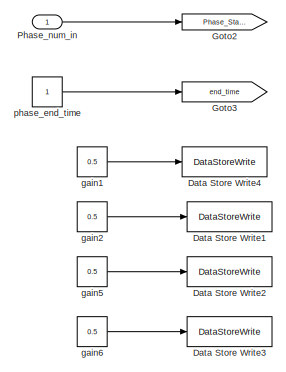
[diagram: phase6.1 - part 1/3, top center region]
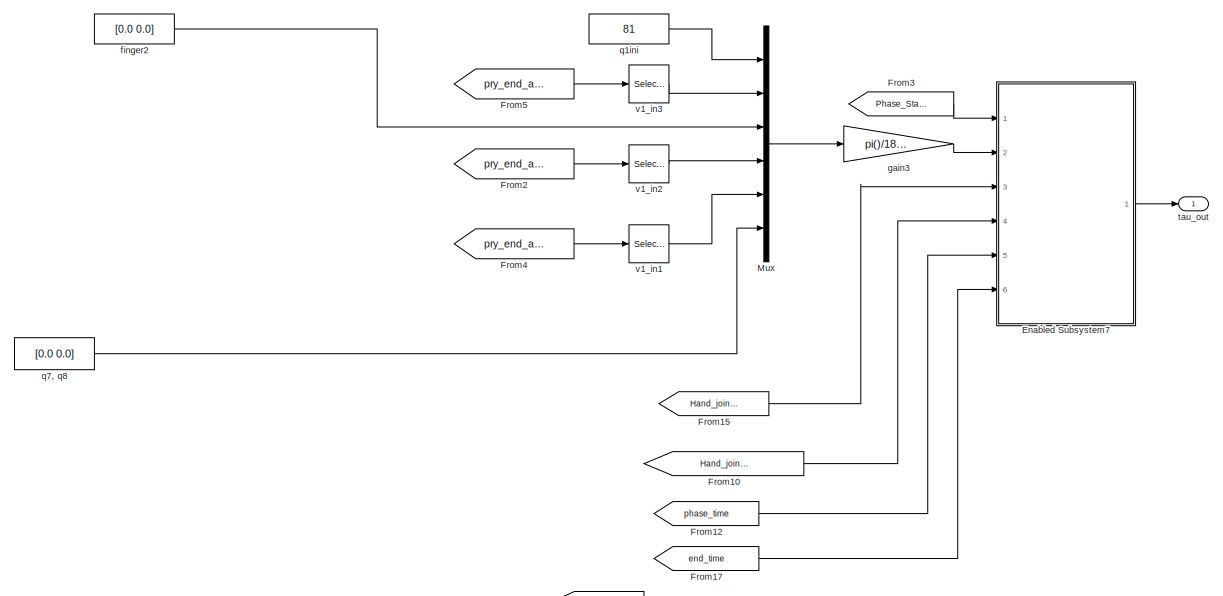
[diagram: phase6.1 - part 2/3, full width, middle band]
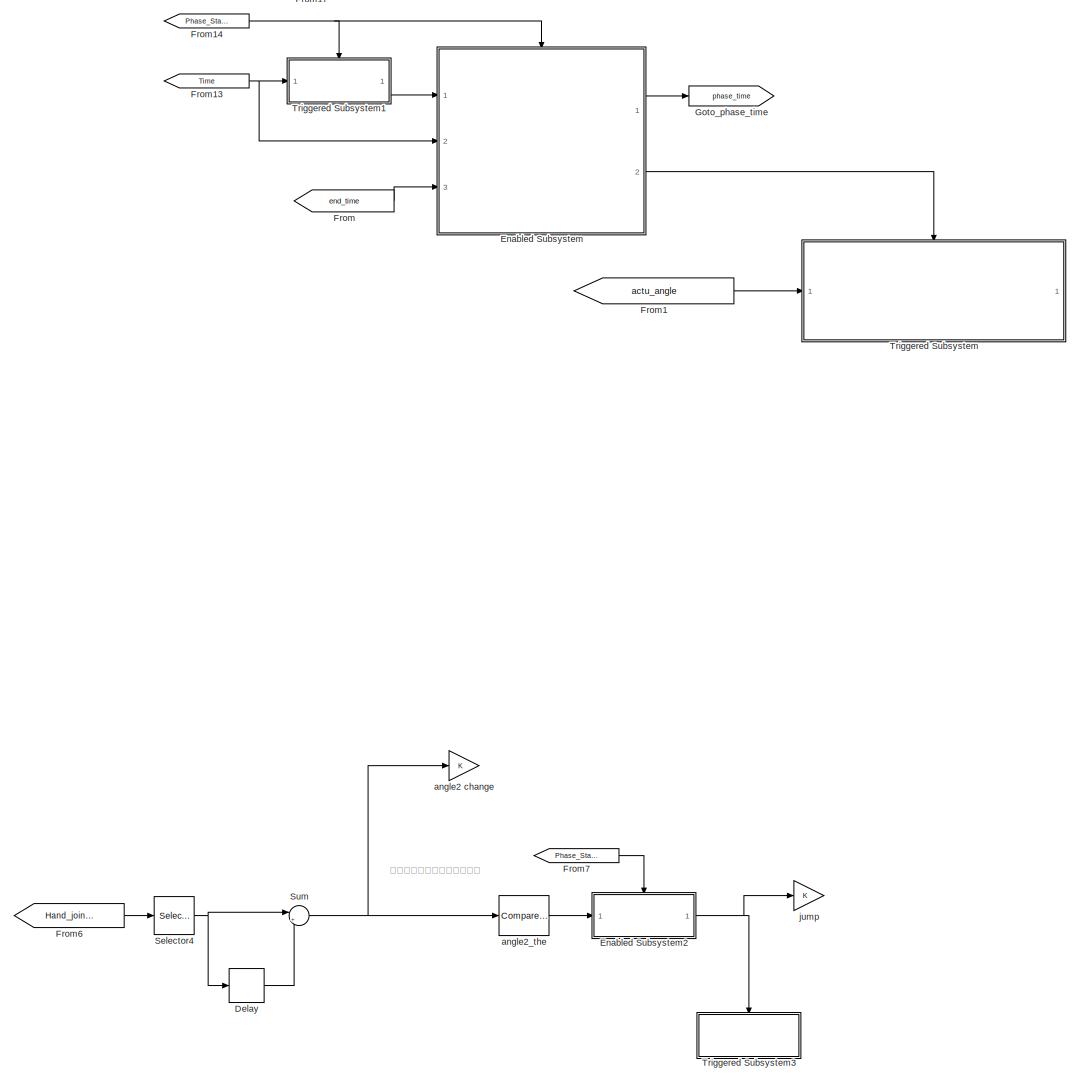
[diagram: phase6.1 - part 3/3, full width, bottom band]
BLOCK [SubSystem] phase6.1
  Ports = [1, 1]
  RequestExecContextInheritance = off
BLOCK [DataStoreWrite] phase6.1/Data Store Write1
  DataStoreName = gain2
  Ports = [1]
BLOCK [DataStoreWrite] phase6.1/Data Store Write2
  DataStoreName = gain5
  Ports = [1]
BLOCK [DataStoreWrite] phase6.1/Data Store Write3
  DataStoreName = gain6
  Ports = [1]
BLOCK [DataStoreWrite] phase6.1/Data Store Write4
  DataStoreName = gain1
  Ports = [1]
BLOCK [Delay] phase6.1/Delay
  DelayLength = 5
  InitialCondition = 0
  InputPortMap = u0
  Ports = [1, 1]
BLOCK [SubSystem] phase6.1/Enabled Subsystem
  Ports = [3, 2, 1]
  RequestExecContextInheritance = off
  TreatAsAtomicUnit = on
BLOCK [EnablePort] phase6.1/Enabled Subsystem/Enable
  Ports = []
BLOCK [RelationalOperator] phase6.1/Enabled Subsystem/Relational Operator
  InputSameDT = off
  OutDataTypeStr = boolean
  Ports = [2, 1]
BLOCK [Sum] phase6.1/Enabled Subsystem/Sum
  IconShape = round
  InputSameDT = off
  Inputs = |-+
  OutDataTypeStr = Inherit: Inherit via internal rule
  Ports = [2, 1]
  SaturateOnIntegerOverflow = off
BLOCK [Inport] phase6.1/Enabled Subsystem/current_time
  IconDisplay = Port number
  Port = 2
BLOCK [Outport] phase6.1/Enabled Subsystem/phase_end_signal
  IconDisplay = Port number
  InitialOutput = 0
  OutputWhenDisabled = reset
  Port = 2
BLOCK [Inport] phase6.1/Enabled Subsystem/phase_end_time
  IconDisplay = Port number
  Port = 3
BLOCK [Inport] phase6.1/Enabled Subsystem/phase_start_time
  IconDisplay = Port number
BLOCK [Outport] phase6.1/Enabled Subsystem/phase_time
  IconDisplay = Port number
  InitialOutput = 0
  OutputWhenDisabled = reset
BLOCK [SubSystem] phase6.1/Enabled Subsystem2
  Ports = [1, 1, 1]
  RequestExecContextInheritance = off
  TreatAsAtomicUnit = on
BLOCK [EnablePort] phase6.1/Enabled Subsystem2/Enable
  Ports = []
BLOCK [Inport] phase6.1/Enabled Subsystem2/In1
  IconDisplay = Port number
BLOCK [Outport] phase6.1/Enabled Subsystem2/Out1
  IconDisplay = Port number
  InitialOutput = 0
  OutputWhenDisabled = reset
BLOCK [SubSystem] phase6.1/Enabled Subsystem7
  Ports = [6, 1]
  RequestExecContextInheritance = off
  TreatAsAtomicUnit = on
BLOCK [SubSystem] phase6.1/Enabled Subsystem7/Subsystem
  Ports = [6, 1, 1]
  RequestExecContextInheritance = off
BLOCK [Demux] phase6.1/Enabled Subsystem7/Subsystem/Demux
  DisplayOption = bar
  Outputs = 8
  Ports = [1, 8]
BLOCK [Demux] phase6.1/Enabled Subsystem7/Subsystem/Demux1
  DisplayOption = bar
  Outputs = 8
  Ports = [1, 8]
BLOCK [EnablePort] phase6.1/Enabled Subsystem7/Subsystem/Enable
  Ports = []
BLOCK [SubSystem] phase6.1/Enabled Subsystem7/Subsystem/MATLAB Function
  ErrorFcn = Stateflow.Translate.translate
  PermitHierarchicalResolution = ExplicitOnly
  Ports = [4, 1]
  RequestExecContextInheritance = off
  SFBlockType = MATLAB Function
  TreatAsAtomicUnit = on
BLOCK [Demux] phase6.1/Enabled Subsystem7/Subsystem/MATLAB Function/ Demux 
  Outputs = 1
  Ports = [1, 1]
BLOCK [S-Function] phase6.1/Enabled Subsystem7/Subsystem/MATLAB Function/ SFunction 
  EnableBusSupport = on
  FunctionName = sf_sfun
  PortCounts = [4 2]
  Ports = [4, 2]
  SFcnIsStateOwnerBlock = off
  SFunctionDeploymentMode = off
  Tag = Stateflow S-Function pry_grasp_source 22
BLOCK [Terminator] phase6.1/Enabled Subsystem7/Subsystem/MATLAB Function/ Terminator 
BLOCK [Outport] phase6.1/Enabled Subsystem7/Subsystem/MATLAB Function/angle_ref_out
  IconDisplay = Port number
BLOCK [Inport] phase6.1/Enabled Subsystem7/Subsystem/MATLAB Function/end_q
  IconDisplay = Port number
  Port = 2
BLOCK [Inport] phase6.1/Enabled Subsystem7/Subsystem/MATLAB Function/end_time
  IconDisplay = Port number
  Port = 3
BLOCK [Inport] phase6.1/Enabled Subsystem7/Subsystem/MATLAB Function/initial_q
  IconDisplay = Port number
BLOCK [Inport] phase6.1/Enabled Subsystem7/Subsystem/MATLAB Function/time
  IconDisplay = Port number
  Port = 4
BLOCK [Mux] phase6.1/Enabled Subsystem7/Subsystem/Mux
  DisplayOption = bar
  Inputs = 8
  Ports = [8, 1]
BLOCK [SubSystem] phase6.1/Enabled Subsystem7/Subsystem/PID1
  Ports = [2, 1]
  RequestExecContextInheritance = off
BLOCK [DataStoreRead] phase6.1/Enabled Subsystem7/Subsystem/PID1/Data Store Read
  DataStoreName = gain1
  Ports = [0, 1]
BLOCK [Gain] phase6.1/Enabled Subsystem7/Subsystem/PID1/Kd
  Gain = 0.0005
  OutDataTypeStr = Inherit: Inherit via internal rule
  ParamDataTypeStr = Inherit: Inherit via internal rule
  SaturateOnIntegerOverflow = off
BLOCK [Gain] phase6.1/Enabled Subsystem7/Subsystem/PID1/Kp
  Gain = 0.15
  OutDataTypeStr = Inherit: Inherit via internal rule
  ParamDataTypeStr = Inherit: Inherit via internal rule
  SaturateOnIntegerOverflow = off
BLOCK [Product] phase6.1/Enabled Subsystem7/Subsystem/PID1/Product
  InputSameDT = off
  OutDataTypeStr = Inherit: Inherit via internal rule
  Ports = [2, 1]
  RndMeth = Floor
  SaturateOnIntegerOverflow = off
BLOCK [Sum] phase6.1/Enabled Subsystem7/Subsystem/PID1/Sum1
  IconShape = round
  InputSameDT = off
  Inputs = |+-
  OutDataTypeStr = Inherit: Inherit via internal rule
  Ports = [2, 1]
  SaturateOnIntegerOverflow = off
BLOCK [Inport] phase6.1/Enabled Subsystem7/Subsystem/PID1/angle_error
  IconDisplay = Port number
BLOCK [Inport] phase6.1/Enabled Subsystem7/Subsystem/PID1/angular_vel
  IconDisplay = Port number
  Port = 2
BLOCK [Outport] phase6.1/Enabled Subsystem7/Subsystem/PID1/torque
  IconDisplay = Port number
BLOCK [SubSystem] phase6.1/Enabled Subsystem7/Subsystem/PID2
  Ports = [2, 1]
  RequestExecContextInheritance = off
BLOCK [DataStoreRead] phase6.1/Enabled Subsystem7/Subsystem/PID2/Data Store Read
  DataStoreName = gain2
  Ports = [0, 1]
BLOCK [Gain] phase6.1/Enabled Subsystem7/Subsystem/PID2/Kd2
  Gain = 0.0002
  OutDataTypeStr = Inherit: Inherit via internal rule
  ParamDataTypeStr = Inherit: Inherit via internal rule
  SaturateOnIntegerOverflow = off
BLOCK [Gain] phase6.1/Enabled Subsystem7/Subsystem/PID2/Kp2
  Gain = 0.08
  OutDataTypeStr = Inherit: Inherit via internal rule
  ParamDataTypeStr = Inherit: Inherit via internal rule
  SaturateOnIntegerOverflow = off
BLOCK [Product] phase6.1/Enabled Subsystem7/Subsystem/PID2/Product
  InputSameDT = off
  OutDataTypeStr = Inherit: Inherit via internal rule
  Ports = [2, 1]
  RndMeth = Floor
  SaturateOnIntegerOverflow = off
BLOCK [Sum] phase6.1/Enabled Subsystem7/Subsystem/PID2/Sum1
  IconShape = round
  InputSameDT = off
  Inputs = |+-
  OutDataTypeStr = Inherit: Inherit via internal rule
  Ports = [2, 1]
  SaturateOnIntegerOverflow = off
BLOCK [Inport] phase6.1/Enabled Subsystem7/Subsystem/PID2/angle_error
  IconDisplay = Port number
BLOCK [Inport] phase6.1/Enabled Subsystem7/Subsystem/PID2/angular_vel
  IconDisplay = Port number
  Port = 2
BLOCK [Outport] phase6.1/Enabled Subsystem7/Subsystem/PID2/torque
  IconDisplay = Port number
BLOCK [SubSystem] phase6.1/Enabled Subsystem7/Subsystem/PID3
  Ports = [2, 1]
  RequestExecContextInheritance = off
BLOCK [Gain] phase6.1/Enabled Subsystem7/Subsystem/PID3/Kd
  Gain = 0.0005
  OutDataTypeStr = Inherit: Inherit via internal rule
  ParamDataTypeStr = Inherit: Inherit via internal rule
  SaturateOnIntegerOverflow = off
BLOCK [Gain] phase6.1/Enabled Subsystem7/Subsystem/PID3/Kp
  Gain = 0.15
  OutDataTypeStr = Inherit: Inherit via internal rule
  ParamDataTypeStr = Inherit: Inherit via internal rule
  SaturateOnIntegerOverflow = off
BLOCK [Sum] phase6.1/Enabled Subsystem7/Subsystem/PID3/Sum1
  IconShape = round
  InputSameDT = off
  Inputs = |+-
  OutDataTypeStr = Inherit: Inherit via internal rule
  Ports = [2, 1]
  SaturateOnIntegerOverflow = off
BLOCK [Inport] phase6.1/Enabled Subsystem7/Subsystem/PID3/angle_error
  IconDisplay = Port number
BLOCK [Inport] phase6.1/Enabled Subsystem7/Subsystem/PID3/angular_vel
  IconDisplay = Port number
  Port = 2
BLOCK [Gain] phase6.1/Enabled Subsystem7/Subsystem/PID3/gain
  Gain = 0.5
  OutDataTypeStr = Inherit: Inherit via internal rule
  ParamDataTypeStr = Inherit: Inherit via internal rule
  SaturateOnIntegerOverflow = off
BLOCK [Outport] phase6.1/Enabled Subsystem7/Subsystem/PID3/torque
  IconDisplay = Port number
BLOCK [SubSystem] phase6.1/Enabled Subsystem7/Subsystem/PID4
  Ports = [2, 1]
  RequestExecContextInheritance = off
BLOCK [Gain] phase6.1/Enabled Subsystem7/Subsystem/PID4/Kd2
  Gain = 0.0002
  OutDataTypeStr = Inherit: Inherit via internal rule
  ParamDataTypeStr = Inherit: Inherit via internal rule
  SaturateOnIntegerOverflow = off
BLOCK [Gain] phase6.1/Enabled Subsystem7/Subsystem/PID4/Kp2
  Gain = 0.08
  OutDataTypeStr = Inherit: Inherit via internal rule
  ParamDataTypeStr = Inherit: Inherit via internal rule
  SaturateOnIntegerOverflow = off
BLOCK [Sum] phase6.1/Enabled Subsystem7/Subsystem/PID4/Sum1
  IconShape = round
  InputSameDT = off
  Inputs = |+-
  OutDataTypeStr = Inherit: Inherit via internal rule
  Ports = [2, 1]
  SaturateOnIntegerOverflow = off
BLOCK [Inport] phase6.1/Enabled Subsystem7/Subsystem/PID4/angle_error
  IconDisplay = Port number
BLOCK [Inport] phase6.1/Enabled Subsystem7/Subsystem/PID4/angular_vel
  IconDisplay = Port number
  Port = 2
BLOCK [Gain] phase6.1/Enabled Subsystem7/Subsystem/PID4/gain
  Gain = 0.5
  OutDataTypeStr = Inherit: Inherit via internal rule
  ParamDataTypeStr = Inherit: Inherit via internal rule
  SaturateOnIntegerOverflow = off
BLOCK [Outport] phase6.1/Enabled Subsystem7/Subsystem/PID4/torque
  IconDisplay = Port number
BLOCK [SubSystem] phase6.1/Enabled Subsystem7/Subsystem/PID5
  Ports = [2, 1]
  RequestExecContextInheritance = off
BLOCK [DataStoreRead] phase6.1/Enabled Subsystem7/Subsystem/PID5/Data Store Read
  DataStoreName = gain5
  Ports = [0, 1]
BLOCK [Gain] phase6.1/Enabled Subsystem7/Subsystem/PID5/Kd
  Gain = 0.0005
  OutDataTypeStr = Inherit: Inherit via internal rule
  ParamDataTypeStr = Inherit: Inherit via internal rule
  SaturateOnIntegerOverflow = off
BLOCK [Gain] phase6.1/Enabled Subsystem7/Subsystem/PID5/Kp
  Gain = 0.15
  OutDataTypeStr = Inherit: Inherit via internal rule
  ParamDataTypeStr = Inherit: Inherit via internal rule
  SaturateOnIntegerOverflow = off
BLOCK [Product] phase6.1/Enabled Subsystem7/Subsystem/PID5/Product
  InputSameDT = off
  OutDataTypeStr = Inherit: Inherit via internal rule
  Ports = [2, 1]
  RndMeth = Floor
  SaturateOnIntegerOverflow = off
BLOCK [Sum] phase6.1/Enabled Subsystem7/Subsystem/PID5/Sum1
  IconShape = round
  InputSameDT = off
  Inputs = |+-
  OutDataTypeStr = Inherit: Inherit via internal rule
  Ports = [2, 1]
  SaturateOnIntegerOverflow = off
BLOCK [Inport] phase6.1/Enabled Subsystem7/Subsystem/PID5/angle_error
  IconDisplay = Port number
BLOCK [Inport] phase6.1/Enabled Subsystem7/Subsystem/PID5/angular_vel
  IconDisplay = Port number
  Port = 2
BLOCK [Outport] phase6.1/Enabled Subsystem7/Subsystem/PID5/torque
  IconDisplay = Port number
BLOCK [SubSystem] phase6.1/Enabled Subsystem7/Subsystem/PID6
  Ports = [2, 1]
  RequestExecContextInheritance = off
BLOCK [DataStoreRead] phase6.1/Enabled Subsystem7/Subsystem/PID6/Data Store Read
  DataStoreName = gain6
  Ports = [0, 1]
BLOCK [Gain] phase6.1/Enabled Subsystem7/Subsystem/PID6/Kd2
  Gain = 0.0002
  OutDataTypeStr = Inherit: Inherit via internal rule
  ParamDataTypeStr = Inherit: Inherit via internal rule
  SaturateOnIntegerOverflow = off
BLOCK [Gain] phase6.1/Enabled Subsystem7/Subsystem/PID6/Kp2
  Gain = 0.08
  OutDataTypeStr = Inherit: Inherit via internal rule
  ParamDataTypeStr = Inherit: Inherit via internal rule
  SaturateOnIntegerOverflow = off
BLOCK [Product] phase6.1/Enabled Subsystem7/Subsystem/PID6/Product
  InputSameDT = off
  OutDataTypeStr = Inherit: Inherit via internal rule
  Ports = [2, 1]
  RndMeth = Floor
  SaturateOnIntegerOverflow = off
BLOCK [Sum] phase6.1/Enabled Subsystem7/Subsystem/PID6/Sum1
  IconShape = round
  InputSameDT = off
  Inputs = |+-
  OutDataTypeStr = Inherit: Inherit via internal rule
  Ports = [2, 1]
  SaturateOnIntegerOverflow = off
BLOCK [Inport] phase6.1/Enabled Subsystem7/Subsystem/PID6/angle_error
  IconDisplay = Port number
BLOCK [Inport] phase6.1/Enabled Subsystem7/Subsystem/PID6/angular_vel
  IconDisplay = Port number
  Port = 2
BLOCK [Outport] phase6.1/Enabled Subsystem7/Subsystem/PID6/torque
  IconDisplay = Port number
BLOCK [SubSystem] phase6.1/Enabled Subsystem7/Subsystem/PID7
  Ports = [2, 1]
  RequestExecContextInheritance = off
BLOCK [Gain] phase6.1/Enabled Subsystem7/Subsystem/PID7/Kd
  Gain = 0.0005
  OutDataTypeStr = Inherit: Inherit via internal rule
  ParamDataTypeStr = Inherit: Inherit via internal rule
  SaturateOnIntegerOverflow = off
BLOCK [Gain] phase6.1/Enabled Subsystem7/Subsystem/PID7/Kp
  Gain = 0.15
  OutDataTypeStr = Inherit: Inherit via internal rule
  ParamDataTypeStr = Inherit: Inherit via internal rule
  SaturateOnIntegerOverflow = off
BLOCK [Sum] phase6.1/Enabled Subsystem7/Subsystem/PID7/Sum1
  IconShape = round
  InputSameDT = off
  Inputs = |+-
  OutDataTypeStr = Inherit: Inherit via internal rule
  Ports = [2, 1]
  SaturateOnIntegerOverflow = off
BLOCK [Inport] phase6.1/Enabled Subsystem7/Subsystem/PID7/angle_error
  IconDisplay = Port number
BLOCK [Inport] phase6.1/Enabled Subsystem7/Subsystem/PID7/angular_vel
  IconDisplay = Port number
  Port = 2
BLOCK [Gain] phase6.1/Enabled Subsystem7/Subsystem/PID7/gain
  Gain = 0.5
  OutDataTypeStr = Inherit: Inherit via internal rule
  ParamDataTypeStr = Inherit: Inherit via internal rule
  SaturateOnIntegerOverflow = off
BLOCK [Outport] phase6.1/Enabled Subsystem7/Subsystem/PID7/torque
  IconDisplay = Port number
BLOCK [SubSystem] phase6.1/Enabled Subsystem7/Subsystem/PID8
  Ports = [2, 1]
  RequestExecContextInheritance = off
BLOCK [Gain] phase6.1/Enabled Subsystem7/Subsystem/PID8/Kd
  Gain = 0.0005
  OutDataTypeStr = Inherit: Inherit via internal rule
  ParamDataTypeStr = Inherit: Inherit via internal rule
  SaturateOnIntegerOverflow = off
BLOCK [Gain] phase6.1/Enabled Subsystem7/Subsystem/PID8/Kp
  Gain = 0.15
  OutDataTypeStr = Inherit: Inherit via internal rule
  ParamDataTypeStr = Inherit: Inherit via internal rule
  SaturateOnIntegerOverflow = off
BLOCK [Sum] phase6.1/Enabled Subsystem7/Subsystem/PID8/Sum1
  IconShape = round
  InputSameDT = off
  Inputs = |+-
  OutDataTypeStr = Inherit: Inherit via internal rule
  Ports = [2, 1]
  SaturateOnIntegerOverflow = off
BLOCK [Inport] phase6.1/Enabled Subsystem7/Subsystem/PID8/angle_error
  IconDisplay = Port number
BLOCK [Inport] phase6.1/Enabled Subsystem7/Subsystem/PID8/angular_vel
  IconDisplay = Port number
  Port = 2
BLOCK [Gain] phase6.1/Enabled Subsystem7/Subsystem/PID8/gain
  Gain = 0.5
  OutDataTypeStr = Inherit: Inherit via internal rule
  ParamDataTypeStr = Inherit: Inherit via internal rule
  SaturateOnIntegerOverflow = off
BLOCK [Outport] phase6.1/Enabled Subsystem7/Subsystem/PID8/torque
  IconDisplay = Port number
BLOCK [Sum] phase6.1/Enabled Subsystem7/Subsystem/Sum2
  IconShape = round
  InputSameDT = off
  Inputs = |+-
  OutDataTypeStr = Inherit: Inherit via internal rule
  Ports = [2, 1]
  SaturateOnIntegerOverflow = off
BLOCK [Gain] phase6.1/Enabled Subsystem7/Subsystem/angle error
  OutDataTypeStr = Inherit: Inherit via internal rule
  ParamDataTypeStr = Inherit: Inherit via internal rule
  SaturateOnIntegerOverflow = off
BLOCK [Inport] phase6.1/Enabled Subsystem7/Subsystem/angular_vel
  IconDisplay = Port number
  Port = 5
BLOCK [Inport] phase6.1/Enabled Subsystem7/Subsystem/current_angle
  IconDisplay = Port number
  Port = 6
BLOCK [Inport] phase6.1/Enabled Subsystem7/Subsystem/end_angle
  IconDisplay = Port number
  Port = 2
BLOCK [Inport] phase6.1/Enabled Subsystem7/Subsystem/end_time
  IconDisplay = Port number
  Port = 3
BLOCK [Inport] phase6.1/Enabled Subsystem7/Subsystem/initial_angle
  IconDisplay = Port number
BLOCK [Gain] phase6.1/Enabled Subsystem7/Subsystem/tau1
  OutDataTypeStr = Inherit: Inherit via internal rule
  ParamDataTypeStr = Inherit: Inherit via internal rule
  SaturateOnIntegerOverflow = off
BLOCK [Outport] phase6.1/Enabled Subsystem7/Subsystem/tau_out
  IconDisplay = Port number
BLOCK [Inport] phase6.1/Enabled Subsystem7/Subsystem/time
  IconDisplay = Port number
  Port = 4
BLOCK [SubSystem] phase6.1/Enabled Subsystem7/Triggered Subsystem
  Ports = [3, 3, 0, 1]
  RequestExecContextInheritance = off
  TreatAsAtomicUnit = on
BLOCK [TriggerPort] phase6.1/Enabled Subsystem7/Triggered Subsystem/Trigger
  Ports = []
  StatesWhenEnabling = held
  VariantControl = Variant
BLOCK [Inport] phase6.1/Enabled Subsystem7/Triggered Subsystem/angle_In1
  IconDisplay = Port number
BLOCK [Outport] phase6.1/Enabled Subsystem7/Triggered Subsystem/angle_Out1
  IconDisplay = Port number
  InitialOutput = 0
BLOCK [Inport] phase6.1/Enabled Subsystem7/Triggered Subsystem/angle_ref_In2
  IconDisplay = Port number
  Port = 2
BLOCK [Outport] phase6.1/Enabled Subsystem7/Triggered Subsystem/angle_ref_Out2
  IconDisplay = Port number
  InitialOutput = 0
  Port = 2
BLOCK [Inport] phase6.1/Enabled Subsystem7/Triggered Subsystem/end_time_In3
  IconDisplay = Port number
  Port = 3
BLOCK [Outport] phase6.1/Enabled Subsystem7/Triggered Subsystem/end_time_Out3
  IconDisplay = Port number
  InitialOutput = 0
  Port = 3
BLOCK [Inport] phase6.1/Enabled Subsystem7/angle
  IconDisplay = Port number
  Port = 3
BLOCK [Inport] phase6.1/Enabled Subsystem7/angle_ref
  IconDisplay = Port number
  Port = 2
BLOCK [Inport] phase6.1/Enabled Subsystem7/angle_vel
  IconDisplay = Port number
  Port = 4
BLOCK [Inport] phase6.1/Enabled Subsystem7/enable
  IconDisplay = Port number
BLOCK [Inport] phase6.1/Enabled Subsystem7/end_time
  IconDisplay = Port number
  Port = 6
BLOCK [Inport] phase6.1/Enabled Subsystem7/phase_time
  IconDisplay = Port number
  Port = 5
BLOCK [Outport] phase6.1/Enabled Subsystem7/tau_out
  IconDisplay = Port number
BLOCK [From] phase6.1/From
  GotoTag = end_time
BLOCK [From] phase6.1/From1
  GotoTag = actu_angle
  TagVisibility = global
BLOCK [From] phase6.1/From10
  GotoTag = Hand_joint_angular_velocity
  TagVisibility = global
BLOCK [From] phase6.1/From12
  GotoTag = phase_time
BLOCK [From] phase6.1/From13
  GotoTag = Time
  TagVisibility = global
BLOCK [From] phase6.1/From14
  GotoTag = Phase_Start
BLOCK [From] phase6.1/From15
  GotoTag = Hand_joint_angle
  TagVisibility = global
BLOCK [From] phase6.1/From17
  GotoTag = end_time
BLOCK [From] phase6.1/From2
  GotoTag = pry_end_angle
  TagVisibility = global
BLOCK [From] phase6.1/From3
  GotoTag = Phase_Start
BLOCK [From] phase6.1/From4
  GotoTag = pry_end_angle
  TagVisibility = global
BLOCK [From] phase6.1/From5
  GotoTag = pry_end_angle
  TagVisibility = global
BLOCK [From] phase6.1/From6
  GotoTag = Hand_joint_angle
  TagVisibility = global
BLOCK [From] phase6.1/From7
  GotoTag = Phase_Start
BLOCK [Goto] phase6.1/Goto2
  GotoTag = Phase_Start
BLOCK [Goto] phase6.1/Goto3
  GotoTag = end_time
BLOCK [Goto] phase6.1/Goto_phase_time
  GotoTag = phase_time
BLOCK [Mux] phase6.1/Mux
  DisplayOption = bar
  Inputs = 6
  Ports = [6, 1]
BLOCK [Inport] phase6.1/Phase_num_in
  IconDisplay = Port number
BLOCK [Selector] phase6.1/Selector4
  IndexOptions = Index vector (dialog)
  Indices = 2
  InputPortWidth = 8
  OutputSizes = 1
  Ports = [1, 1]
BLOCK [Sum] phase6.1/Sum
  IconShape = round
  InputSameDT = off
  Inputs = |+-
  OutDataTypeStr = Inherit: Inherit via internal rule
  Ports = [2, 1]
  SaturateOnIntegerOverflow = off
BLOCK [SubSystem] phase6.1/Triggered Subsystem
  Ports = [1, 1, 0, 1]
  RequestExecContextInheritance = off
  TreatAsAtomicUnit = on
BLOCK [Constant] phase6.1/Triggered Subsystem/Constant
  Value = [0 0.1]
BLOCK [DataStoreRead] phase6.1/Triggered Subsystem/Data Store Read
  DataStoreName = phase_num
  Ports = [0, 1]
  Priority = 3
BLOCK [DataStoreWrite] phase6.1/Triggered Subsystem/Data Store Write
  DataStoreName = phase_num
  Ports = [1]
BLOCK [Inport] phase6.1/Triggered Subsystem/In1
  IconDisplay = Port number
BLOCK [Outport] phase6.1/Triggered Subsystem/Out1
  IconDisplay = Port number
BLOCK [Sum] phase6.1/Triggered Subsystem/Sum
  IconShape = round
  InputSameDT = off
  Inputs = |++
  OutDataTypeStr = Inherit: Inherit via internal rule
  Ports = [2, 1]
  SaturateOnIntegerOverflow = off
BLOCK [TriggerPort] phase6.1/Triggered Subsystem/Trigger
  Ports = []
  StatesWhenEnabling = held
  VariantControl = (inherit)
BLOCK [SubSystem] phase6.1/Triggered Subsystem1
  Ports = [1, 1, 0, 1]
  RequestExecContextInheritance = off
  TreatAsAtomicUnit = on
BLOCK [Inport] phase6.1/Triggered Subsystem1/In1
  IconDisplay = Port number
BLOCK [Outport] phase6.1/Triggered Subsystem1/Out1
  IconDisplay = Port number
  InitialOutput = 0
BLOCK [TriggerPort] phase6.1/Triggered Subsystem1/Trigger
  Ports = []
  StatesWhenEnabling = held
  VariantControl = (inherit)
BLOCK [SubSystem] phase6.1/Triggered Subsystem3
  Ports = [0, 0, 0, 1]
  RequestExecContextInheritance = off
  TreatAsAtomicUnit = on
BLOCK [Constant] phase6.1/Triggered Subsystem3/Constant
  Value = [0 1]
BLOCK [DataStoreRead] phase6.1/Triggered Subsystem3/Data Store Read
  DataStoreName = phase_num
  Ports = [0, 1]
  Priority = 3
BLOCK [DataStoreWrite] phase6.1/Triggered Subsystem3/Data Store Write
  DataStoreName = phase_num
  Ports = [1]
BLOCK [Sum] phase6.1/Triggered Subsystem3/Sum
  IconShape = round
  InputSameDT = off
  Inputs = |++
  OutDataTypeStr = Inherit: Inherit via internal rule
  Ports = [2, 1]
  SaturateOnIntegerOverflow = off
BLOCK [TriggerPort] phase6.1/Triggered Subsystem3/Trigger
  Ports = []
  StatesWhenEnabling = held
  VariantControl = (inherit)
BLOCK [Gain] phase6.1/angle2 change
  OutDataTypeStr = Inherit: Inherit via internal rule
  ParamDataTypeStr = Inherit: Inherit via internal rule
  SaturateOnIntegerOverflow = off
BLOCK [Reference] phase6.1/angle2_the  REF=simulink/Logic and Bit
Operations/Compare
To Constant
  Ports = [1, 1]
  SourceBlock = simulink/Logic and Bit\nOperations/Compare\nTo Constant
  SourceProductBaseCode = SL
  SourceProductName = Simulink
  SourceType = Compare To Constant
BLOCK [Constant] phase6.1/finger2
  Value = [0.0 0.0]
BLOCK [Constant] phase6.1/gain1
  Value = 0.5
BLOCK [Constant] phase6.1/gain2
  Value = 0.5
BLOCK [Gain] phase6.1/gain3
  Gain = pi()/180*16.4423
  OutDataTypeStr = Inherit: Inherit via internal rule
  ParamDataTypeStr = Inherit: Inherit via internal rule
  SaturateOnIntegerOverflow = off
BLOCK [Constant] phase6.1/gain5
  Value = 0.5
BLOCK [Constant] phase6.1/gain6
  Value = 0.5
BLOCK [Gain] phase6.1/jump
  OutDataTypeStr = Inherit: Inherit via internal rule
  ParamDataTypeStr = Inherit: Inherit via internal rule
  SaturateOnIntegerOverflow = off
BLOCK [Constant] phase6.1/phase_end_time
BLOCK [Constant] phase6.1/q1ini
  Value = 81
BLOCK [Constant] phase6.1/q7, q8
  Value = [0.0 0.0]
BLOCK [Outport] phase6.1/tau_out
  IconDisplay = Port number
BLOCK [Selector] phase6.1/v1_in1
  IndexOptions = Index vector (dialog)
  Indices = 6
  InputPortWidth = 8
  OutputSizes = 1
  Ports = [1, 1]
BLOCK [Selector] phase6.1/v1_in2
  IndexOptions = Index vector (dialog)
  Indices = 5
  InputPortWidth = 8
  OutputSizes = 1
  Ports = [1, 1]
BLOCK [Selector] phase6.1/v1_in3
  IndexOptions = Index vector (dialog)
  Indices = 2
  InputPortWidth = 8
  OutputSizes = 1
  Ports = [1, 1]
BLOCK [Constant] phase7 set
  OutDataTypeStr = boolean
  Priority = 1
  Value = 0
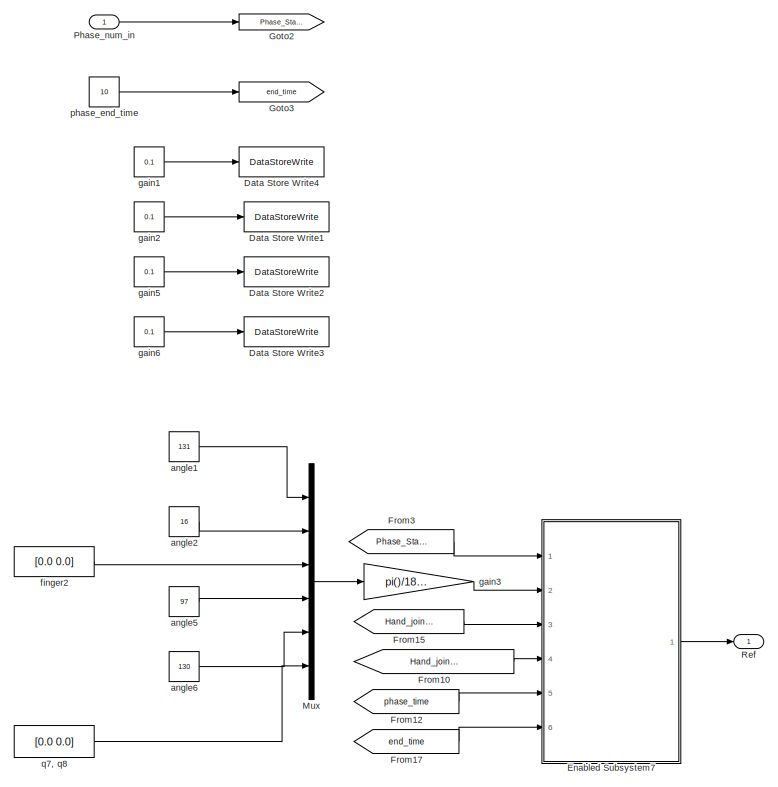
[diagram: phase700 - part 1/3, top left region]
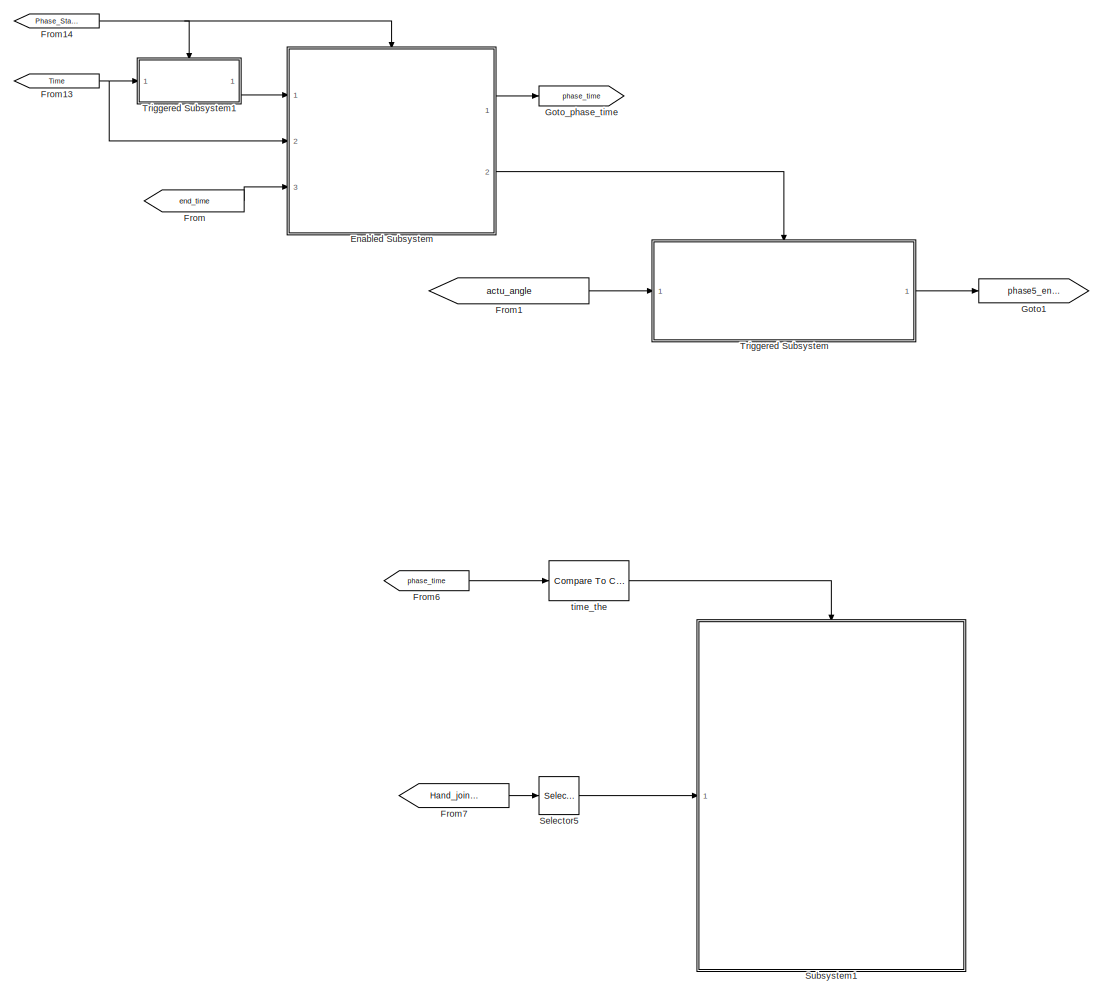
[diagram: phase700 - part 2/3, bottom left region]
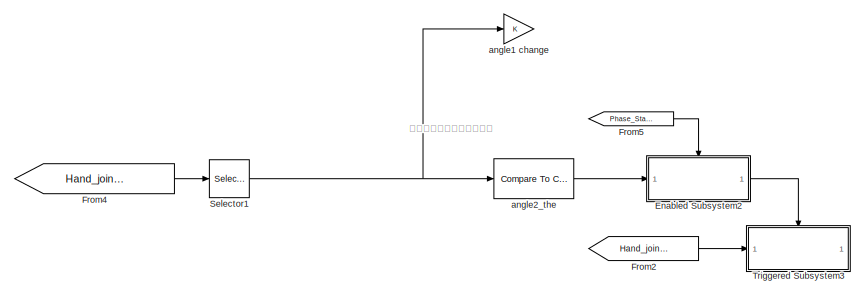
[diagram: phase700 - part 3/3, middle right region]
BLOCK [SubSystem] phase700
  Ports = [1, 1]
  RequestExecContextInheritance = off
BLOCK [DataStoreWrite] phase700/Data Store Write1
  DataStoreName = gain2
  Ports = [1]
BLOCK [DataStoreWrite] phase700/Data Store Write2
  DataStoreName = gain5
  Ports = [1]
BLOCK [DataStoreWrite] phase700/Data Store Write3
  DataStoreName = gain6
  Ports = [1]
BLOCK [DataStoreWrite] phase700/Data Store Write4
  DataStoreName = gain1
  Ports = [1]
BLOCK [SubSystem] phase700/Enabled Subsystem
  Ports = [3, 2, 1]
  RequestExecContextInheritance = off
  TreatAsAtomicUnit = on
BLOCK [EnablePort] phase700/Enabled Subsystem/Enable
  Ports = []
BLOCK [RelationalOperator] phase700/Enabled Subsystem/Relational Operator
  InputSameDT = off
  OutDataTypeStr = boolean
  Ports = [2, 1]
BLOCK [Sum] phase700/Enabled Subsystem/Sum
  IconShape = round
  InputSameDT = off
  Inputs = |-+
  OutDataTypeStr = Inherit: Inherit via internal rule
  Ports = [2, 1]
  SaturateOnIntegerOverflow = off
BLOCK [Inport] phase700/Enabled Subsystem/current_time
  IconDisplay = Port number
  Port = 2
BLOCK [Outport] phase700/Enabled Subsystem/phase_end_signal
  IconDisplay = Port number
  InitialOutput = 0
  OutputWhenDisabled = reset
  Port = 2
BLOCK [Inport] phase700/Enabled Subsystem/phase_end_time
  IconDisplay = Port number
  Port = 3
BLOCK [Inport] phase700/Enabled Subsystem/phase_start_time
  IconDisplay = Port number
BLOCK [Outport] phase700/Enabled Subsystem/phase_time
  IconDisplay = Port number
  InitialOutput = 0
  OutputWhenDisabled = reset
BLOCK [SubSystem] phase700/Enabled Subsystem2
  Ports = [1, 1, 1]
  RequestExecContextInheritance = off
  TreatAsAtomicUnit = on
BLOCK [EnablePort] phase700/Enabled Subsystem2/Enable
  Ports = []
BLOCK [Inport] phase700/Enabled Subsystem2/In1
  IconDisplay = Port number
BLOCK [Outport] phase700/Enabled Subsystem2/Out1
  IconDisplay = Port number
  InitialOutput = 0
  OutputWhenDisabled = reset
BLOCK [SubSystem] phase700/Enabled Subsystem7
  Ports = [6, 1]
  RequestExecContextInheritance = off
  TreatAsAtomicUnit = on
BLOCK [SubSystem] phase700/Enabled Subsystem7/Subsystem
  Ports = [6, 1, 1]
  RequestExecContextInheritance = off
BLOCK [Demux] phase700/Enabled Subsystem7/Subsystem/Demux
  DisplayOption = bar
  Outputs = 8
  Ports = [1, 8]
BLOCK [Demux] phase700/Enabled Subsystem7/Subsystem/Demux1
  DisplayOption = bar
  Outputs = 8
  Ports = [1, 8]
BLOCK [EnablePort] phase700/Enabled Subsystem7/Subsystem/Enable
  Ports = []
BLOCK [SubSystem] phase700/Enabled Subsystem7/Subsystem/MATLAB Function
  ErrorFcn = Stateflow.Translate.translate
  PermitHierarchicalResolution = ExplicitOnly
  Ports = [4, 1]
  RequestExecContextInheritance = off
  SFBlockType = MATLAB Function
  TreatAsAtomicUnit = on
BLOCK [Demux] phase700/Enabled Subsystem7/Subsystem/MATLAB Function/ Demux 
  Outputs = 1
  Ports = [1, 1]
BLOCK [S-Function] phase700/Enabled Subsystem7/Subsystem/MATLAB Function/ SFunction 
  EnableBusSupport = on
  FunctionName = sf_sfun
  PortCounts = [4 2]
  Ports = [4, 2]
  SFcnIsStateOwnerBlock = off
  SFunctionDeploymentMode = off
  Tag = Stateflow S-Function pry_grasp_source 8
BLOCK [Terminator] phase700/Enabled Subsystem7/Subsystem/MATLAB Function/ Terminator 
BLOCK [Outport] phase700/Enabled Subsystem7/Subsystem/MATLAB Function/angle_ref_out
  IconDisplay = Port number
BLOCK [Inport] phase700/Enabled Subsystem7/Subsystem/MATLAB Function/end_q
  IconDisplay = Port number
  Port = 2
BLOCK [Inport] phase700/Enabled Subsystem7/Subsystem/MATLAB Function/end_time
  IconDisplay = Port number
  Port = 3
BLOCK [Inport] phase700/Enabled Subsystem7/Subsystem/MATLAB Function/initial_q
  IconDisplay = Port number
BLOCK [Inport] phase700/Enabled Subsystem7/Subsystem/MATLAB Function/time
  IconDisplay = Port number
  Port = 4
BLOCK [Mux] phase700/Enabled Subsystem7/Subsystem/Mux
  DisplayOption = bar
  Inputs = 8
  Ports = [8, 1]
BLOCK [SubSystem] phase700/Enabled Subsystem7/Subsystem/P5
  Ports = [1, 1]
  RequestExecContextInheritance = off
BLOCK [DataStoreRead] phase700/Enabled Subsystem7/Subsystem/P5/Data Store Read
  DataStoreName = gain5
  Ports = [0, 1]
BLOCK [Gain] phase700/Enabled Subsystem7/Subsystem/P5/Kp2
  Gain = 0.08
  OutDataTypeStr = Inherit: Inherit via internal rule
  ParamDataTypeStr = Inherit: Inherit via internal rule
  SaturateOnIntegerOverflow = off
BLOCK [Product] phase700/Enabled Subsystem7/Subsystem/P5/Product
  InputSameDT = off
  OutDataTypeStr = Inherit: Inherit via internal rule
  Ports = [2, 1]
  RndMeth = Floor
  SaturateOnIntegerOverflow = off
BLOCK [Inport] phase700/Enabled Subsystem7/Subsystem/P5/angle_error
  IconDisplay = Port number
BLOCK [Outport] phase700/Enabled Subsystem7/Subsystem/P5/torque6
  IconDisplay = Port number
BLOCK [SubSystem] phase700/Enabled Subsystem7/Subsystem/P6
  Ports = [1, 1]
  RequestExecContextInheritance = off
BLOCK [DataStoreRead] phase700/Enabled Subsystem7/Subsystem/P6/Data Store Read
  DataStoreName = gain6
  Ports = [0, 1]
BLOCK [Gain] phase700/Enabled Subsystem7/Subsystem/P6/Kp2
  Gain = 0.08
  OutDataTypeStr = Inherit: Inherit via internal rule
  ParamDataTypeStr = Inherit: Inherit via internal rule
  SaturateOnIntegerOverflow = off
BLOCK [Product] phase700/Enabled Subsystem7/Subsystem/P6/Product
  InputSameDT = off
  OutDataTypeStr = Inherit: Inherit via internal rule
  Ports = [2, 1]
  RndMeth = Floor
  SaturateOnIntegerOverflow = off
BLOCK [Inport] phase700/Enabled Subsystem7/Subsystem/P6/angle_error
  IconDisplay = Port number
BLOCK [Outport] phase700/Enabled Subsystem7/Subsystem/P6/torque6
  IconDisplay = Port number
BLOCK [SubSystem] phase700/Enabled Subsystem7/Subsystem/PID1
  Ports = [2, 1]
  RequestExecContextInheritance = off
BLOCK [DataStoreRead] phase700/Enabled Subsystem7/Subsystem/PID1/Data Store Read
  DataStoreName = gain1
  Ports = [0, 1]
BLOCK [Gain] phase700/Enabled Subsystem7/Subsystem/PID1/Kd
  Gain = 0.0005
  OutDataTypeStr = Inherit: Inherit via internal rule
  ParamDataTypeStr = Inherit: Inherit via internal rule
  SaturateOnIntegerOverflow = off
BLOCK [Gain] phase700/Enabled Subsystem7/Subsystem/PID1/Kp
  Gain = 0.15
  OutDataTypeStr = Inherit: Inherit via internal rule
  ParamDataTypeStr = Inherit: Inherit via internal rule
  SaturateOnIntegerOverflow = off
BLOCK [Product] phase700/Enabled Subsystem7/Subsystem/PID1/Product
  InputSameDT = off
  OutDataTypeStr = Inherit: Inherit via internal rule
  Ports = [2, 1]
  RndMeth = Floor
  SaturateOnIntegerOverflow = off
BLOCK [Sum] phase700/Enabled Subsystem7/Subsystem/PID1/Sum1
  IconShape = round
  InputSameDT = off
  Inputs = |+-
  OutDataTypeStr = Inherit: Inherit via internal rule
  Ports = [2, 1]
  SaturateOnIntegerOverflow = off
BLOCK [Inport] phase700/Enabled Subsystem7/Subsystem/PID1/angle_error
  IconDisplay = Port number
BLOCK [Inport] phase700/Enabled Subsystem7/Subsystem/PID1/angular_vel
  IconDisplay = Port number
  Port = 2
BLOCK [Outport] phase700/Enabled Subsystem7/Subsystem/PID1/torque
  IconDisplay = Port number
BLOCK [SubSystem] phase700/Enabled Subsystem7/Subsystem/PID2
  Ports = [2, 1]
  RequestExecContextInheritance = off
BLOCK [DataStoreRead] phase700/Enabled Subsystem7/Subsystem/PID2/Data Store Read
  DataStoreName = gain2
  Ports = [0, 1]
BLOCK [Gain] phase700/Enabled Subsystem7/Subsystem/PID2/Kd
  Gain = 0.0005
  OutDataTypeStr = Inherit: Inherit via internal rule
  ParamDataTypeStr = Inherit: Inherit via internal rule
  SaturateOnIntegerOverflow = off
BLOCK [Gain] phase700/Enabled Subsystem7/Subsystem/PID2/Kp
  Gain = 0.15
  OutDataTypeStr = Inherit: Inherit via internal rule
  ParamDataTypeStr = Inherit: Inherit via internal rule
  SaturateOnIntegerOverflow = off
BLOCK [Product] phase700/Enabled Subsystem7/Subsystem/PID2/Product
  InputSameDT = off
  OutDataTypeStr = Inherit: Inherit via internal rule
  Ports = [2, 1]
  RndMeth = Floor
  SaturateOnIntegerOverflow = off
BLOCK [Sum] phase700/Enabled Subsystem7/Subsystem/PID2/Sum1
  IconShape = round
  InputSameDT = off
  Inputs = |+-
  OutDataTypeStr = Inherit: Inherit via internal rule
  Ports = [2, 1]
  SaturateOnIntegerOverflow = off
BLOCK [Inport] phase700/Enabled Subsystem7/Subsystem/PID2/angle_error
  IconDisplay = Port number
BLOCK [Inport] phase700/Enabled Subsystem7/Subsystem/PID2/angular_vel
  IconDisplay = Port number
  Port = 2
BLOCK [Outport] phase700/Enabled Subsystem7/Subsystem/PID2/torque
  IconDisplay = Port number
BLOCK [SubSystem] phase700/Enabled Subsystem7/Subsystem/PID3
  Ports = [2, 1]
  RequestExecContextInheritance = off
BLOCK [Gain] phase700/Enabled Subsystem7/Subsystem/PID3/Kd
  Gain = 0.0005
  OutDataTypeStr = Inherit: Inherit via internal rule
  ParamDataTypeStr = Inherit: Inherit via internal rule
  SaturateOnIntegerOverflow = off
BLOCK [Gain] phase700/Enabled Subsystem7/Subsystem/PID3/Kp
  Gain = 0.15
  OutDataTypeStr = Inherit: Inherit via internal rule
  ParamDataTypeStr = Inherit: Inherit via internal rule
  SaturateOnIntegerOverflow = off
BLOCK [Sum] phase700/Enabled Subsystem7/Subsystem/PID3/Sum1
  IconShape = round
  InputSameDT = off
  Inputs = |+-
  OutDataTypeStr = Inherit: Inherit via internal rule
  Ports = [2, 1]
  SaturateOnIntegerOverflow = off
BLOCK [Inport] phase700/Enabled Subsystem7/Subsystem/PID3/angle_error
  IconDisplay = Port number
BLOCK [Inport] phase700/Enabled Subsystem7/Subsystem/PID3/angular_vel
  IconDisplay = Port number
  Port = 2
BLOCK [Gain] phase700/Enabled Subsystem7/Subsystem/PID3/gain
  Gain = 0.5
  OutDataTypeStr = Inherit: Inherit via internal rule
  ParamDataTypeStr = Inherit: Inherit via internal rule
  SaturateOnIntegerOverflow = off
BLOCK [Outport] phase700/Enabled Subsystem7/Subsystem/PID3/torque
  IconDisplay = Port number
BLOCK [SubSystem] phase700/Enabled Subsystem7/Subsystem/PID4
  Ports = [2, 1]
  RequestExecContextInheritance = off
BLOCK [Gain] phase700/Enabled Subsystem7/Subsystem/PID4/Kd2
  Gain = 0.0002
  OutDataTypeStr = Inherit: Inherit via internal rule
  ParamDataTypeStr = Inherit: Inherit via internal rule
  SaturateOnIntegerOverflow = off
BLOCK [Gain] phase700/Enabled Subsystem7/Subsystem/PID4/Kp2
  Gain = 0.08
  OutDataTypeStr = Inherit: Inherit via internal rule
  ParamDataTypeStr = Inherit: Inherit via internal rule
  SaturateOnIntegerOverflow = off
BLOCK [Sum] phase700/Enabled Subsystem7/Subsystem/PID4/Sum1
  IconShape = round
  InputSameDT = off
  Inputs = |+-
  OutDataTypeStr = Inherit: Inherit via internal rule
  Ports = [2, 1]
  SaturateOnIntegerOverflow = off
BLOCK [Inport] phase700/Enabled Subsystem7/Subsystem/PID4/angle_error
  IconDisplay = Port number
BLOCK [Inport] phase700/Enabled Subsystem7/Subsystem/PID4/angular_vel
  IconDisplay = Port number
  Port = 2
BLOCK [Gain] phase700/Enabled Subsystem7/Subsystem/PID4/gain
  Gain = 0.5
  OutDataTypeStr = Inherit: Inherit via internal rule
  ParamDataTypeStr = Inherit: Inherit via internal rule
  SaturateOnIntegerOverflow = off
BLOCK [Outport] phase700/Enabled Subsystem7/Subsystem/PID4/torque
  IconDisplay = Port number
BLOCK [SubSystem] phase700/Enabled Subsystem7/Subsystem/PID7
  Ports = [2, 1]
  RequestExecContextInheritance = off
BLOCK [Gain] phase700/Enabled Subsystem7/Subsystem/PID7/Kd
  Gain = 0.0005
  OutDataTypeStr = Inherit: Inherit via internal rule
  ParamDataTypeStr = Inherit: Inherit via internal rule
  SaturateOnIntegerOverflow = off
BLOCK [Gain] phase700/Enabled Subsystem7/Subsystem/PID7/Kp
  Gain = 0.15
  OutDataTypeStr = Inherit: Inherit via internal rule
  ParamDataTypeStr = Inherit: Inherit via internal rule
  SaturateOnIntegerOverflow = off
BLOCK [Sum] phase700/Enabled Subsystem7/Subsystem/PID7/Sum1
  IconShape = round
  InputSameDT = off
  Inputs = |+-
  OutDataTypeStr = Inherit: Inherit via internal rule
  Ports = [2, 1]
  SaturateOnIntegerOverflow = off
BLOCK [Inport] phase700/Enabled Subsystem7/Subsystem/PID7/angle_error
  IconDisplay = Port number
BLOCK [Inport] phase700/Enabled Subsystem7/Subsystem/PID7/angular_vel
  IconDisplay = Port number
  Port = 2
BLOCK [Gain] phase700/Enabled Subsystem7/Subsystem/PID7/gain
  Gain = 0.5
  OutDataTypeStr = Inherit: Inherit via internal rule
  ParamDataTypeStr = Inherit: Inherit via internal rule
  SaturateOnIntegerOverflow = off
BLOCK [Outport] phase700/Enabled Subsystem7/Subsystem/PID7/torque
  IconDisplay = Port number
BLOCK [SubSystem] phase700/Enabled Subsystem7/Subsystem/PID8
  Ports = [2, 1]
  RequestExecContextInheritance = off
BLOCK [Gain] phase700/Enabled Subsystem7/Subsystem/PID8/Kd
  Gain = 0.0005
  OutDataTypeStr = Inherit: Inherit via internal rule
  ParamDataTypeStr = Inherit: Inherit via internal rule
  SaturateOnIntegerOverflow = off
BLOCK [Gain] phase700/Enabled Subsystem7/Subsystem/PID8/Kp
  Gain = 0.15
  OutDataTypeStr = Inherit: Inherit via internal rule
  ParamDataTypeStr = Inherit: Inherit via internal rule
  SaturateOnIntegerOverflow = off
BLOCK [Sum] phase700/Enabled Subsystem7/Subsystem/PID8/Sum1
  IconShape = round
  InputSameDT = off
  Inputs = |+-
  OutDataTypeStr = Inherit: Inherit via internal rule
  Ports = [2, 1]
  SaturateOnIntegerOverflow = off
BLOCK [Inport] phase700/Enabled Subsystem7/Subsystem/PID8/angle_error
  IconDisplay = Port number
BLOCK [Inport] phase700/Enabled Subsystem7/Subsystem/PID8/angular_vel
  IconDisplay = Port number
  Port = 2
BLOCK [Gain] phase700/Enabled Subsystem7/Subsystem/PID8/gain
  Gain = 0.5
  OutDataTypeStr = Inherit: Inherit via internal rule
  ParamDataTypeStr = Inherit: Inherit via internal rule
  SaturateOnIntegerOverflow = off
BLOCK [Outport] phase700/Enabled Subsystem7/Subsystem/PID8/torque
  IconDisplay = Port number
BLOCK [Sum] phase700/Enabled Subsystem7/Subsystem/Sum2
  IconShape = round
  InputSameDT = off
  Inputs = |+-
  OutDataTypeStr = Inherit: Inherit via internal rule
  Ports = [2, 1]
  SaturateOnIntegerOverflow = off
BLOCK [Constant] phase700/Enabled Subsystem7/Subsystem/angle2 down1
  Value = 2
BLOCK [Constant] phase700/Enabled Subsystem7/Subsystem/angle2 down2
  Value = 2
BLOCK [Inport] phase700/Enabled Subsystem7/Subsystem/angular_vel
  IconDisplay = Port number
  Port = 5
BLOCK [Inport] phase700/Enabled Subsystem7/Subsystem/current_angle
  IconDisplay = Port number
  Port = 6
BLOCK [Inport] phase700/Enabled Subsystem7/Subsystem/end_angle
  IconDisplay = Port number
  Port = 2
BLOCK [Inport] phase700/Enabled Subsystem7/Subsystem/end_time
  IconDisplay = Port number
  Port = 3
BLOCK [Inport] phase700/Enabled Subsystem7/Subsystem/initial_angle
  IconDisplay = Port number
BLOCK [Inport] phase700/Enabled Subsystem7/Subsystem/time
  IconDisplay = Port number
  Port = 4
BLOCK [Outport] phase700/Enabled Subsystem7/Subsystem/torque_out
  IconDisplay = Port number
  InitialOutput = [0 0 0 0 0 0 0 0]
  OutputWhenDisabled = reset
BLOCK [SubSystem] phase700/Enabled Subsystem7/Triggered Subsystem
  Ports = [3, 3, 0, 1]
  RequestExecContextInheritance = off
  TreatAsAtomicUnit = on
BLOCK [TriggerPort] phase700/Enabled Subsystem7/Triggered Subsystem/Trigger
  Ports = []
  StatesWhenEnabling = held
  VariantControl = Variant
BLOCK [Inport] phase700/Enabled Subsystem7/Triggered Subsystem/angle_In1
  IconDisplay = Port number
BLOCK [Outport] phase700/Enabled Subsystem7/Triggered Subsystem/angle_Out1
  IconDisplay = Port number
  InitialOutput = 0
BLOCK [Inport] phase700/Enabled Subsystem7/Triggered Subsystem/angle_ref_In2
  IconDisplay = Port number
  Port = 2
BLOCK [Outport] phase700/Enabled Subsystem7/Triggered Subsystem/angle_ref_Out2
  IconDisplay = Port number
  InitialOutput = 0
  Port = 2
BLOCK [Inport] phase700/Enabled Subsystem7/Triggered Subsystem/end_time_In3
  IconDisplay = Port number
  Port = 3
BLOCK [Outport] phase700/Enabled Subsystem7/Triggered Subsystem/end_time_Out3
  IconDisplay = Port number
  InitialOutput = 0
  Port = 3
BLOCK [Inport] phase700/Enabled Subsystem7/angle
  IconDisplay = Port number
  Port = 3
BLOCK [Inport] phase700/Enabled Subsystem7/angle_ref
  IconDisplay = Port number
  Port = 2
BLOCK [Inport] phase700/Enabled Subsystem7/angle_vel
  IconDisplay = Port number
  Port = 4
BLOCK [Inport] phase700/Enabled Subsystem7/enable
  IconDisplay = Port number
BLOCK [Inport] phase700/Enabled Subsystem7/end_time
  IconDisplay = Port number
  Port = 6
BLOCK [Inport] phase700/Enabled Subsystem7/phase_time
  IconDisplay = Port number
  Port = 5
BLOCK [Outport] phase700/Enabled Subsystem7/torque_out
  IconDisplay = Port number
  InitialOutput = 0
  OutputWhenDisabled = reset
BLOCK [From] phase700/From
  GotoTag = end_time
BLOCK [From] phase700/From1
  GotoTag = actu_angle
  TagVisibility = global
BLOCK [From] phase700/From10
  GotoTag = Hand_joint_angular_velocity
  TagVisibility = global
BLOCK [From] phase700/From12
  GotoTag = phase_time
BLOCK [From] phase700/From13
  GotoTag = Time
  TagVisibility = global
BLOCK [From] phase700/From14
  GotoTag = Phase_Start
BLOCK [From] phase700/From15
  GotoTag = Hand_joint_angle
  TagVisibility = global
BLOCK [From] phase700/From17
  GotoTag = end_time
BLOCK [From] phase700/From2
  GotoTag = Hand_joint_angle
  TagVisibility = global
BLOCK [From] phase700/From3
  GotoTag = Phase_Start
BLOCK [From] phase700/From4
  GotoTag = Hand_joint_angular_velocity
  TagVisibility = global
BLOCK [From] phase700/From5
  GotoTag = Phase_Start
BLOCK [From] phase700/From6
  GotoTag = phase_time
BLOCK [From] phase700/From7
  GotoTag = Hand_joint_angle
  TagVisibility = global
BLOCK [Goto] phase700/Goto1
  GotoTag = phase5_end_angle
  TagVisibility = global
BLOCK [Goto] phase700/Goto2
  GotoTag = Phase_Start
BLOCK [Goto] phase700/Goto3
  GotoTag = end_time
BLOCK [Goto] phase700/Goto_phase_time
  GotoTag = phase_time
BLOCK [Mux] phase700/Mux
  DisplayOption = bar
  Inputs = 6
  Ports = [6, 1]
BLOCK [Inport] phase700/Phase_num_in
  IconDisplay = Port number
BLOCK [Outport] phase700/Ref
  IconDisplay = Port number
BLOCK [Selector] phase700/Selector1
  IndexOptions = Index vector (dialog)
  Indices = 1
  InputPortWidth = 8
  OutputSizes = 1
  Ports = [1, 1]
BLOCK [Selector] phase700/Selector5
  IndexOptions = Index vector (dialog)
  Indices = 2
  InputPortWidth = 8
  OutputSizes = 1
  Ports = [1, 1]
BLOCK [SubSystem] phase700/Subsystem1
  Ports = [1, 0, 1]
  RequestExecContextInheritance = off
BLOCK [Delay] phase700/Subsystem1/Delay
  DelayLength = 5
  InitialCondition = 0
  InputPortMap = u0
  Ports = [1, 1]
BLOCK [EnablePort] phase700/Subsystem1/Enable
  Ports = []
BLOCK [Sum] phase700/Subsystem1/Sum
  IconShape = round
  InputSameDT = off
  Inputs = |+-
  OutDataTypeStr = Inherit: Inherit via internal rule
  Ports = [2, 1]
  SaturateOnIntegerOverflow = off
BLOCK [SubSystem] phase700/Subsystem1/Triggered Subsystem3
  Ports = [0, 0, 0, 1]
  RequestExecContextInheritance = off
  TreatAsAtomicUnit = on
BLOCK [Constant] phase700/Subsystem1/Triggered Subsystem3/Constant
  Value = [0 1]
BLOCK [DataStoreRead] phase700/Subsystem1/Triggered Subsystem3/Data Store Read
  DataStoreName = phase_num
  Ports = [0, 1]
  Priority = 3
BLOCK [DataStoreWrite] phase700/Subsystem1/Triggered Subsystem3/Data Store Write
  DataStoreName = phase_num
  Ports = [1]
BLOCK [Sum] phase700/Subsystem1/Triggered Subsystem3/Sum
  IconShape = round
  InputSameDT = off
  Inputs = |++
  OutDataTypeStr = Inherit: Inherit via internal rule
  Ports = [2, 1]
  SaturateOnIntegerOverflow = off
BLOCK [TriggerPort] phase700/Subsystem1/Triggered Subsystem3/Trigger
  Ports = []
  StatesWhenEnabling = held
  VariantControl = (inherit)
BLOCK [Reference] phase700/Subsystem1/angle2_the  REF=simulink/Logic and Bit
Operations/Compare
To Constant
  Ports = [1, 1]
  SourceBlock = simulink/Logic and Bit\nOperations/Compare\nTo Constant
  SourceProductBaseCode = SL
  SourceProductName = Simulink
  SourceType = Compare To Constant
BLOCK [Inport] phase700/Subsystem1/initial_angle2
  IconDisplay = Port number
BLOCK [Gain] phase700/Subsystem1/jump
  OutDataTypeStr = Inherit: Inherit via internal rule
  ParamDataTypeStr = Inherit: Inherit via internal rule
  SaturateOnIntegerOverflow = off
BLOCK [SubSystem] phase700/Triggered Subsystem
  Ports = [1, 1, 0, 1]
  RequestExecContextInheritance = off
  TreatAsAtomicUnit = on
BLOCK [Constant] phase700/Triggered Subsystem/Constant
  Value = [0 1]
BLOCK [Constant] phase700/Triggered Subsystem/Constant1
  Value = 2
BLOCK [DataStoreRead] phase700/Triggered Subsystem/Data Store Read
  DataStoreName = phase_num
  Ports = [0, 1]
  Priority = 3
BLOCK [DataStoreRead] phase700/Triggered Subsystem/Data Store Read4
  DataStoreName = UR_V
  Ports = [0, 1]
  Priority = 3
BLOCK [DataStoreWrite] phase700/Triggered Subsystem/Data Store Write
  DataStoreName = phase_num
  Ports = [1]
BLOCK [DataStoreWrite] phase700/Triggered Subsystem/Data Store Write4
  DataStoreName = UR_V
  Ports = [1]
BLOCK [Inport] phase700/Triggered Subsystem/In1
  IconDisplay = Port number
BLOCK [Outport] phase700/Triggered Subsystem/Out1
  IconDisplay = Port number
BLOCK [Sum] phase700/Triggered Subsystem/Sum
  IconShape = round
  InputSameDT = off
  Inputs = |++
  OutDataTypeStr = Inherit: Inherit via internal rule
  Ports = [2, 1]
  SaturateOnIntegerOverflow = off
BLOCK [Sum] phase700/Triggered Subsystem/Sum1
  IconShape = round
  InputSameDT = off
  Inputs = |++
  OutDataTypeStr = Inherit: Inherit via internal rule
  Ports = [2, 1]
  SaturateOnIntegerOverflow = off
BLOCK [TriggerPort] phase700/Triggered Subsystem/Trigger
  Ports = []
  StatesWhenEnabling = held
  VariantControl = (inherit)
BLOCK [SubSystem] phase700/Triggered Subsystem1
  Ports = [1, 1, 0, 1]
  RequestExecContextInheritance = off
  TreatAsAtomicUnit = on
BLOCK [Inport] phase700/Triggered Subsystem1/In1
  IconDisplay = Port number
BLOCK [Outport] phase700/Triggered Subsystem1/Out1
  IconDisplay = Port number
  InitialOutput = 0
BLOCK [TriggerPort] phase700/Triggered Subsystem1/Trigger
  Ports = []
  StatesWhenEnabling = held
  VariantControl = (inherit)
BLOCK [SubSystem] phase700/Triggered Subsystem3
  Ports = [1, 1, 0, 1]
  RequestExecContextInheritance = off
  TreatAsAtomicUnit = on
BLOCK [Constant] phase700/Triggered Subsystem3/Constant
  Value = [0 1]
BLOCK [DataStoreRead] phase700/Triggered Subsystem3/Data Store Read
  DataStoreName = phase_num
  Ports = [0, 1]
  Priority = 3
BLOCK [DataStoreWrite] phase700/Triggered Subsystem3/Data Store Write
  DataStoreName = phase_num
  Ports = [1]
BLOCK [Inport] phase700/Triggered Subsystem3/In1
  IconDisplay = Port number
BLOCK [Outport] phase700/Triggered Subsystem3/Out1
  IconDisplay = Port number
BLOCK [Sum] phase700/Triggered Subsystem3/Sum
  IconShape = round
  InputSameDT = off
  Inputs = |++
  OutDataTypeStr = Inherit: Inherit via internal rule
  Ports = [2, 1]
  SaturateOnIntegerOverflow = off
BLOCK [TriggerPort] phase700/Triggered Subsystem3/Trigger
  Ports = []
  StatesWhenEnabling = held
  VariantControl = (inherit)
BLOCK [Constant] phase700/angle1
  Value = 131
BLOCK [Gain] phase700/angle1 change
  OutDataTypeStr = Inherit: Inherit via internal rule
  ParamDataTypeStr = Inherit: Inherit via internal rule
  SaturateOnIntegerOverflow = off
BLOCK [Constant] phase700/angle2
  Value = 16
BLOCK [Reference] phase700/angle2_the  REF=simulink/Logic and Bit
Operations/Compare
To Constant
  Ports = [1, 1]
  SourceBlock = simulink/Logic and Bit\nOperations/Compare\nTo Constant
  SourceProductBaseCode = SL
  SourceProductName = Simulink
  SourceType = Compare To Constant
BLOCK [Constant] phase700/angle5
  Value = 97
BLOCK [Constant] phase700/angle6
  Value = 130
BLOCK [Constant] phase700/finger2
  Value = [0.0 0.0]
BLOCK [Constant] phase700/gain1
  Value = 0.1
BLOCK [Constant] phase700/gain2
  Value = 0.1
BLOCK [Gain] phase700/gain3
  Gain = pi()/180*16.4423
  OutDataTypeStr = Inherit: Inherit via internal rule
  ParamDataTypeStr = Inherit: Inherit via internal rule
  SaturateOnIntegerOverflow = off
BLOCK [Constant] phase700/gain5
  Value = 0.1
BLOCK [Constant] phase700/gain6
  Value = 0.1
BLOCK [Constant] phase700/phase_end_time
  Value = 10
BLOCK [Constant] phase700/q7, q8
  Value = [0.0 0.0]
BLOCK [Reference] phase700/time_the  REF=simulink/Logic and Bit
Operations/Compare
To Constant
  Ports = [1, 1]
  SourceBlock = simulink/Logic and Bit\nOperations/Compare\nTo Constant
  SourceProductBaseCode = SL
  SourceProductName = Simulink
  SourceType = Compare To Constant
BLOCK [Constant] phase8 set
  OutDataTypeStr = boolean
  Priority = 1
  Value = 0
BLOCK [SubSystem] phase90
  Ports = [1, 1]
  RequestExecContextInheritance = off
BLOCK [DataStoreWrite] phase90/Data Store Write1
  DataStoreName = gain2
  Ports = [1]
BLOCK [DataStoreWrite] phase90/Data Store Write2
  DataStoreName = gain5
  Ports = [1]
BLOCK [DataStoreWrite] phase90/Data Store Write3
  DataStoreName = gain6
  Ports = [1]
BLOCK [DataStoreWrite] phase90/Data Store Write4
  DataStoreName = gain1
  Ports = [1]
BLOCK [Delay] phase90/Delay
  DelayLength = 5
  InitialCondition = 0
  InputPortMap = u0
  Ports = [1, 1]
BLOCK [SubSystem] phase90/Enabled Subsystem2
  Ports = [1, 1, 1]
  RequestExecContextInheritance = off
  TreatAsAtomicUnit = on
BLOCK [EnablePort] phase90/Enabled Subsystem2/Enable
  Ports = []
BLOCK [Inport] phase90/Enabled Subsystem2/In1
  IconDisplay = Port number
BLOCK [Outport] phase90/Enabled Subsystem2/Out1
  IconDisplay = Port number
  InitialOutput = 0
  OutputWhenDisabled = reset
BLOCK [SubSystem] phase90/Enabled Subsystem3
  Ports = [3, 2, 1]
  RequestExecContextInheritance = off
  TreatAsAtomicUnit = on
BLOCK [EnablePort] phase90/Enabled Subsystem3/Enable
  Ports = []
BLOCK [RelationalOperator] phase90/Enabled Subsystem3/Relational Operator
  InputSameDT = off
  OutDataTypeStr = boolean
  Ports = [2, 1]
BLOCK [Sum] phase90/Enabled Subsystem3/Sum
  IconShape = round
  InputSameDT = off
  Inputs = |-+
  OutDataTypeStr = Inherit: Inherit via internal rule
  Ports = [2, 1]
  SaturateOnIntegerOverflow = off
BLOCK [Inport] phase90/Enabled Subsystem3/current_time
  IconDisplay = Port number
  Port = 2
BLOCK [Outport] phase90/Enabled Subsystem3/phase_end_signal
  IconDisplay = Port number
  InitialOutput = 0
  OutputWhenDisabled = reset
  Port = 2
BLOCK [Inport] phase90/Enabled Subsystem3/phase_end_time
  IconDisplay = Port number
  Port = 3
BLOCK [Inport] phase90/Enabled Subsystem3/phase_start_time
  IconDisplay = Port number
BLOCK [Outport] phase90/Enabled Subsystem3/phase_time
  IconDisplay = Port number
  InitialOutput = 0
  OutputWhenDisabled = reset
BLOCK [SubSystem] phase90/Enabled Subsystem4
  Ports = [8, 1]
  RequestExecContextInheritance = off
  TreatAsAtomicUnit = on
BLOCK [SubSystem] phase90/Enabled Subsystem4/Subsystem1
  Ports = [8, 1, 1]
  RequestExecContextInheritance = off
BLOCK [EnablePort] phase90/Enabled Subsystem4/Subsystem1/Enable
  Ports = []
BLOCK [Constant] phase90/Enabled Subsystem4/Subsystem1/Fx_1
BLOCK [Constant] phase90/Enabled Subsystem4/Subsystem1/Fy_1
  Value = 0.1
BLOCK [SubSystem] phase90/Enabled Subsystem4/Subsystem1/MATLAB Function
  ErrorFcn = Stateflow.Translate.translate
  PermitHierarchicalResolution = ExplicitOnly
  Ports = [4, 1]
  RequestExecContextInheritance = off
  SFBlockType = MATLAB Function
  TreatAsAtomicUnit = on
BLOCK [Demux] phase90/Enabled Subsystem4/Subsystem1/MATLAB Function/ Demux 
  Outputs = 1
  Ports = [1, 1]
BLOCK [S-Function] phase90/Enabled Subsystem4/Subsystem1/MATLAB Function/ SFunction 
  EnableBusSupport = on
  FunctionName = sf_sfun
  PortCounts = [4 2]
  Ports = [4, 2]
  SFcnIsStateOwnerBlock = off
  SFunctionDeploymentMode = off
  Tag = Stateflow S-Function pry_grasp_source 11
BLOCK [Terminator] phase90/Enabled Subsystem4/Subsystem1/MATLAB Function/ Terminator 
BLOCK [Outport] phase90/Enabled Subsystem4/Subsystem1/MATLAB Function/angle_ref_out
  IconDisplay = Port number
BLOCK [Inport] phase90/Enabled Subsystem4/Subsystem1/MATLAB Function/end_q
  IconDisplay = Port number
  Port = 2
BLOCK [Inport] phase90/Enabled Subsystem4/Subsystem1/MATLAB Function/end_time
  IconDisplay = Port number
  Port = 3
BLOCK [Inport] phase90/Enabled Subsystem4/Subsystem1/MATLAB Function/initial_q
  IconDisplay = Port number
BLOCK [Inport] phase90/Enabled Subsystem4/Subsystem1/MATLAB Function/time
  IconDisplay = Port number
  Port = 4
BLOCK [SubSystem] phase90/Enabled Subsystem4/Subsystem1/MATLAB Function1
  ErrorFcn = Stateflow.Translate.translate
  PermitHierarchicalResolution = ExplicitOnly
  Ports = [5, 2]
  RequestExecContextInheritance = off
  SFBlockType = MATLAB Function
  TreatAsAtomicUnit = on
BLOCK [Demux] phase90/Enabled Subsystem4/Subsystem1/MATLAB Function1/ Demux 
  Outputs = 1
  Ports = [1, 1]
BLOCK [S-Function] phase90/Enabled Subsystem4/Subsystem1/MATLAB Function1/ SFunction 
  EnableBusSupport = on
  FunctionName = sf_sfun
  PortCounts = [5 3]
  Ports = [5, 3]
  SFcnIsStateOwnerBlock = off
  SFunctionDeploymentMode = off
  Tag = Stateflow S-Function pry_grasp_source 12
BLOCK [Terminator] phase90/Enabled Subsystem4/Subsystem1/MATLAB Function1/ Terminator 
BLOCK [Inport] phase90/Enabled Subsystem4/Subsystem1/MATLAB Function1/Fx_1
  IconDisplay = Port number
  Port = 2
BLOCK [Inport] phase90/Enabled Subsystem4/Subsystem1/MATLAB Function1/Fy_1
  IconDisplay = Port number
  Port = 3
BLOCK [Inport] phase90/Enabled Subsystem4/Subsystem1/MATLAB Function1/phi_value
  IconDisplay = Port number
BLOCK [Outport] phase90/Enabled Subsystem4/Subsystem1/MATLAB Function1/tau1
  IconDisplay = Port number
BLOCK [Outport] phase90/Enabled Subsystem4/Subsystem1/MATLAB Function1/tau2
  IconDisplay = Port number
  Port = 2
BLOCK [Inport] phase90/Enabled Subsystem4/Subsystem1/MATLAB Function1/theta1_value
  IconDisplay = Port number
  Port = 4
BLOCK [Inport] phase90/Enabled Subsystem4/Subsystem1/MATLAB Function1/theta2_value
  IconDisplay = Port number
  Port = 5
BLOCK [Mux] phase90/Enabled Subsystem4/Subsystem1/Mux
  DisplayOption = bar
  Inputs = 8
  Ports = [8, 1]
BLOCK [SubSystem] phase90/Enabled Subsystem4/Subsystem1/P6
  Ports = [1, 1]
  RequestExecContextInheritance = off
BLOCK [DataStoreRead] phase90/Enabled Subsystem4/Subsystem1/P6/Data Store Read
  DataStoreName = gain6
  Ports = [0, 1]
BLOCK [Gain] phase90/Enabled Subsystem4/Subsystem1/P6/Kp2
  Gain = 0.08
  OutDataTypeStr = Inherit: Inherit via internal rule
  ParamDataTypeStr = Inherit: Inherit via internal rule
  SaturateOnIntegerOverflow = off
BLOCK [Product] phase90/Enabled Subsystem4/Subsystem1/P6/Product
  InputSameDT = off
  OutDataTypeStr = Inherit: Inherit via internal rule
  Ports = [2, 1]
  RndMeth = Floor
  SaturateOnIntegerOverflow = off
BLOCK [Inport] phase90/Enabled Subsystem4/Subsystem1/P6/angle_error
  IconDisplay = Port number
BLOCK [Outport] phase90/Enabled Subsystem4/Subsystem1/P6/torque1
  IconDisplay = Port number
BLOCK [SubSystem] phase90/Enabled Subsystem4/Subsystem1/PID5
  Ports = [2, 1]
  RequestExecContextInheritance = off
BLOCK [DataStoreRead] phase90/Enabled Subsystem4/Subsystem1/PID5/Data Store Read
  DataStoreName = gain5
  Ports = [0, 1]
BLOCK [Gain] phase90/Enabled Subsystem4/Subsystem1/PID5/Kd5
  Gain = 0.0002
  OutDataTypeStr = Inherit: Inherit via internal rule
  ParamDataTypeStr = Inherit: Inherit via internal rule
  SaturateOnIntegerOverflow = off
BLOCK [Gain] phase90/Enabled Subsystem4/Subsystem1/PID5/Kp5
  Gain = 0.08
  OutDataTypeStr = Inherit: Inherit via internal rule
  ParamDataTypeStr = Inherit: Inherit via internal rule
  SaturateOnIntegerOverflow = off
BLOCK [Product] phase90/Enabled Subsystem4/Subsystem1/PID5/Product
  InputSameDT = off
  OutDataTypeStr = Inherit: Inherit via internal rule
  Ports = [2, 1]
  RndMeth = Floor
  SaturateOnIntegerOverflow = off
BLOCK [Sum] phase90/Enabled Subsystem4/Subsystem1/PID5/Sum1
  IconShape = round
  InputSameDT = off
  Inputs = |+-
  OutDataTypeStr = Inherit: Inherit via internal rule
  Ports = [2, 1]
  SaturateOnIntegerOverflow = off
BLOCK [Inport] phase90/Enabled Subsystem4/Subsystem1/PID5/angle_error
  IconDisplay = Port number
BLOCK [Inport] phase90/Enabled Subsystem4/Subsystem1/PID5/angular_vel
  IconDisplay = Port number
  Port = 2
BLOCK [Outport] phase90/Enabled Subsystem4/Subsystem1/PID5/torque
  IconDisplay = Port number
BLOCK [Sum] phase90/Enabled Subsystem4/Subsystem1/Sum2
  IconShape = round
  InputSameDT = off
  Inputs = |+-
  OutDataTypeStr = Inherit: Inherit via internal rule
  Ports = [2, 1]
  SaturateOnIntegerOverflow = off
BLOCK [Inport] phase90/Enabled Subsystem4/Subsystem1/angle1
  IconDisplay = Port number
  Port = 8
BLOCK [Inport] phase90/Enabled Subsystem4/Subsystem1/angle2 
  IconDisplay = Port number
  Port = 7
BLOCK [Constant] phase90/Enabled Subsystem4/Subsystem1/angle6 down
  Value = -2
BLOCK [Inport] phase90/Enabled Subsystem4/Subsystem1/angular5_vel
  IconDisplay = Port number
  Port = 5
BLOCK [Inport] phase90/Enabled Subsystem4/Subsystem1/current_angle5
  IconDisplay = Port number
  Port = 6
BLOCK [Inport] phase90/Enabled Subsystem4/Subsystem1/end_angle5
  IconDisplay = Port number
  Port = 2
BLOCK [Inport] phase90/Enabled Subsystem4/Subsystem1/end_time
  IconDisplay = Port number
  Port = 3
BLOCK [Inport] phase90/Enabled Subsystem4/Subsystem1/initial_angle5
  IconDisplay = Port number
BLOCK [Constant] phase90/Enabled Subsystem4/Subsystem1/other tau
  Value = 0
BLOCK [Constant] phase90/Enabled Subsystem4/Subsystem1/phi_value
  Value = 16
BLOCK [Inport] phase90/Enabled Subsystem4/Subsystem1/time
  IconDisplay = Port number
  Port = 4
BLOCK [Outport] phase90/Enabled Subsystem4/Subsystem1/torque
  IconDisplay = Port number
BLOCK [SubSystem] phase90/Enabled Subsystem4/Triggered Subsystem
  Ports = [3, 3, 0, 1]
  RequestExecContextInheritance = off
  TreatAsAtomicUnit = on
BLOCK [TriggerPort] phase90/Enabled Subsystem4/Triggered Subsystem/Trigger
  Ports = []
  StatesWhenEnabling = held
  VariantControl = Variant
BLOCK [Inport] phase90/Enabled Subsystem4/Triggered Subsystem/angle5_In
  IconDisplay = Port number
BLOCK [Outport] phase90/Enabled Subsystem4/Triggered Subsystem/angle5_Out
  IconDisplay = Port number
  InitialOutput = 0
BLOCK [Inport] phase90/Enabled Subsystem4/Triggered Subsystem/angle5_ref
  IconDisplay = Port number
  Port = 2
BLOCK [Outport] phase90/Enabled Subsystem4/Triggered Subsystem/angle5_ref_Out
  IconDisplay = Port number
  InitialOutput = 0
  Port = 2
BLOCK [Inport] phase90/Enabled Subsystem4/Triggered Subsystem/end_time
  IconDisplay = Port number
  Port = 3
BLOCK [Outport] phase90/Enabled Subsystem4/Triggered Subsystem/end_time_Out
  IconDisplay = Port number
  InitialOutput = 0
  Port = 3
BLOCK [Inport] phase90/Enabled Subsystem4/angle1
  IconDisplay = Port number
  Port = 8
BLOCK [Inport] phase90/Enabled Subsystem4/angle2
  IconDisplay = Port number
  Port = 6
BLOCK [Inport] phase90/Enabled Subsystem4/angle5_in
  IconDisplay = Port number
  Port = 7
BLOCK [Inport] phase90/Enabled Subsystem4/angle5_ref
  IconDisplay = Port number
  Port = 3
BLOCK [Inport] phase90/Enabled Subsystem4/angular5_vel
  IconDisplay = Port number
  Port = 2
BLOCK [Inport] phase90/Enabled Subsystem4/enable
  IconDisplay = Port number
  Port = 5
BLOCK [Inport] phase90/Enabled Subsystem4/end_time
  IconDisplay = Port number
  Port = 4
BLOCK [Inport] phase90/Enabled Subsystem4/phase time
  IconDisplay = Port number
BLOCK [Outport] phase90/Enabled Subsystem4/torque_out
  IconDisplay = Port number
  InitialOutput = 0
  OutputWhenDisabled = reset
BLOCK [From] phase90/From1
  GotoTag = end_time
BLOCK [From] phase90/From10
  GotoTag = Hand_joint_angular_velocity
  TagVisibility = global
BLOCK [From] phase90/From11
  GotoTag = Hand_joint_angle
  TagVisibility = global
BLOCK [From] phase90/From13
  GotoTag = phase_time
BLOCK [From] phase90/From16
  GotoTag = Phase_Start
BLOCK [From] phase90/From2
  GotoTag = actu_angle
  TagVisibility = global
BLOCK [From] phase90/From3
  GotoTag = Hand_joint_angle
  TagVisibility = global
BLOCK [From] phase90/From5
  GotoTag = Phase_Start
BLOCK [From] phase90/From6
  GotoTag = end_time
BLOCK [From] phase90/From8
  GotoTag = Time
  TagVisibility = global
BLOCK [From] phase90/From9
  GotoTag = Phase_Start
BLOCK [Goto] phase90/Goto1
  GotoTag = Phase_Start
BLOCK [Goto] phase90/Goto4
  GotoTag = end_time
BLOCK [Goto] phase90/Goto_phase_time1
  GotoTag = phase_time
BLOCK [Inport] phase90/Phase_num_in1
  IconDisplay = Port number
BLOCK [Outport] phase90/Ref2
  IconDisplay = Port number
BLOCK [Selector] phase90/Selector2
  IndexOptions = Index vector (dialog)
  Indices = 5
  InputPortWidth = 8
  OutputSizes = 1
  Ports = [1, 1]
BLOCK [Selector] phase90/Selector3
  IndexOptions = Index vector (dialog)
  Indices = 2
  InputPortWidth = 8
  OutputSizes = 1
  Ports = [1, 1]
BLOCK [Selector] phase90/Selector4
  IndexOptions = Index vector (dialog)
  Indices = 2
  InputPortWidth = 8
  OutputSizes = 1
  Ports = [1, 1]
BLOCK [Selector] phase90/Selector6
  IndexOptions = Index vector (dialog)
  Indices = 5
  InputPortWidth = 8
  OutputSizes = 1
  Ports = [1, 1]
BLOCK [Selector] phase90/Selector8
  IndexOptions = Index vector (dialog)
  Indices = 1
  InputPortWidth = 8
  OutputSizes = 1
  Ports = [1, 1]
BLOCK [Sum] phase90/Sum
  IconShape = round
  InputSameDT = off
  Inputs = |+-
  OutDataTypeStr = Inherit: Inherit via internal rule
  Ports = [2, 1]
  SaturateOnIntegerOverflow = off
BLOCK [SubSystem] phase90/Triggered Subsystem3
  Ports = [0, 0, 0, 1]
  RequestExecContextInheritance = off
  TreatAsAtomicUnit = on
BLOCK [Constant] phase90/Triggered Subsystem3/Constant
  Value = [0 1]
BLOCK [DataStoreRead] phase90/Triggered Subsystem3/Data Store Read
  DataStoreName = phase_num
  Ports = [0, 1]
  Priority = 3
BLOCK [DataStoreWrite] phase90/Triggered Subsystem3/Data Store Write
  DataStoreName = phase_num
  Ports = [1]
BLOCK [Sum] phase90/Triggered Subsystem3/Sum
  IconShape = round
  InputSameDT = off
  Inputs = |++
  OutDataTypeStr = Inherit: Inherit via internal rule
  Ports = [2, 1]
  SaturateOnIntegerOverflow = off
BLOCK [TriggerPort] phase90/Triggered Subsystem3/Trigger
  Ports = []
  StatesWhenEnabling = held
  VariantControl = (inherit)
BLOCK [SubSystem] phase90/Triggered Subsystem4
  Ports = [0, 0, 0, 1]
  RequestExecContextInheritance = off
  TreatAsAtomicUnit = on
BLOCK [Constant] phase90/Triggered Subsystem4/Constant
  Value = [0 1]
BLOCK [DataStoreRead] phase90/Triggered Subsystem4/Data Store Read
  DataStoreName = phase_num
  Ports = [0, 1]
  Priority = 3
BLOCK [DataStoreWrite] phase90/Triggered Subsystem4/Data Store Write
  DataStoreName = phase_num
  Ports = [1]
BLOCK [Sum] phase90/Triggered Subsystem4/Sum
  IconShape = round
  InputSameDT = off
  Inputs = |++
  OutDataTypeStr = Inherit: Inherit via internal rule
  Ports = [2, 1]
  SaturateOnIntegerOverflow = off
BLOCK [TriggerPort] phase90/Triggered Subsystem4/Trigger
  Ports = []
  StatesWhenEnabling = held
  VariantControl = (inherit)
BLOCK [SubSystem] phase90/Triggered Subsystem5
  Ports = [1, 1, 0, 1]
  RequestExecContextInheritance = off
  TreatAsAtomicUnit = on
BLOCK [Inport] phase90/Triggered Subsystem5/In1
  IconDisplay = Port number
BLOCK [Outport] phase90/Triggered Subsystem5/Out1
  IconDisplay = Port number
  InitialOutput = 0
BLOCK [TriggerPort] phase90/Triggered Subsystem5/Trigger
  Ports = []
  StatesWhenEnabling = held
  VariantControl = (inherit)
BLOCK [Gain] phase90/angle2 change
  OutDataTypeStr = Inherit: Inherit via internal rule
  ParamDataTypeStr = Inherit: Inherit via internal rule
  SaturateOnIntegerOverflow = off
BLOCK [Reference] phase90/angle2_the  REF=simulink/Logic and Bit
Operations/Compare
To Constant
  Ports = [1, 1]
  SourceBlock = simulink/Logic and Bit\nOperations/Compare\nTo Constant
  SourceProductBaseCode = SL
  SourceProductName = Simulink
  SourceType = Compare To Constant
BLOCK [Constant] phase90/angle5
  Value = 110
BLOCK [Constant] phase90/gain1
  Value = 0.1
BLOCK [Constant] phase90/gain2
  Value = 0.02
BLOCK [Gain] phase90/gain3
  Gain = pi()/180*16.4423
  OutDataTypeStr = Inherit: Inherit via internal rule
  ParamDataTypeStr = Inherit: Inherit via internal rule
  SaturateOnIntegerOverflow = off
BLOCK [Constant] phase90/gain5
  Value = 0.1
BLOCK [Constant] phase90/gain6
  Value = 0.1
BLOCK [Constant] phase90/phase_end_time1
  Value = 2
BLOCK [Reference] phase_num2-1  REF=simulink/Logic and Bit
Operations/Compare
To Constant
  Ports = [1, 1]
  SourceBlock = simulink/Logic and Bit\nOperations/Compare\nTo Constant
  SourceProductBaseCode = SL
  SourceProductName = Simulink
  SourceType = Compare To Constant
BLOCK [Reference] phase_num2-10  REF=simulink/Logic and Bit
Operations/Compare
To Constant
  Ports = [1, 1]
  SourceBlock = simulink/Logic and Bit\nOperations/Compare\nTo Constant
  SourceProductBaseCode = SL
  SourceProductName = Simulink
  SourceType = Compare To Constant
BLOCK [Reference] phase_num2-11  REF=simulink/Logic and Bit
Operations/Compare
To Constant
  Ports = [1, 1]
  SourceBlock = simulink/Logic and Bit\nOperations/Compare\nTo Constant
  SourceProductBaseCode = SL
  SourceProductName = Simulink
  SourceType = Compare To Constant
BLOCK [Reference] phase_num2-12  REF=simulink/Logic and Bit
Operations/Compare
To Constant
  Ports = [1, 1]
  SourceBlock = simulink/Logic and Bit\nOperations/Compare\nTo Constant
  SourceProductBaseCode = SL
  SourceProductName = Simulink
  SourceType = Compare To Constant
BLOCK [Reference] phase_num2-13  REF=simulink/Logic and Bit
Operations/Compare
To Constant
  Ports = [1, 1]
  SourceBlock = simulink/Logic and Bit\nOperations/Compare\nTo Constant
  SourceProductBaseCode = SL
  SourceProductName = Simulink
  SourceType = Compare To Constant
BLOCK [Reference] phase_num2-16  REF=simulink/Logic and Bit
Operations/Compare
To Constant
  Ports = [1, 1]
  SourceBlock = simulink/Logic and Bit\nOperations/Compare\nTo Constant
  SourceProductBaseCode = SL
  SourceProductName = Simulink
  SourceType = Compare To Constant
BLOCK [Reference] phase_num2-19  REF=simulink/Logic and Bit
Operations/Compare
To Constant
  Ports = [1, 1]
  SourceBlock = simulink/Logic and Bit\nOperations/Compare\nTo Constant
  SourceProductBaseCode = SL
  SourceProductName = Simulink
  SourceType = Compare To Constant
BLOCK [Reference] phase_num2-2  REF=simulink/Logic and Bit
Operations/Compare
To Constant
  Ports = [1, 1]
  SourceBlock = simulink/Logic and Bit\nOperations/Compare\nTo Constant
  SourceProductBaseCode = SL
  SourceProductName = Simulink
  SourceType = Compare To Constant
BLOCK [Reference] phase_num2-3  REF=simulink/Logic and Bit
Operations/Compare
To Constant
  Ports = [1, 1]
  SourceBlock = simulink/Logic and Bit\nOperations/Compare\nTo Constant
  SourceProductBaseCode = SL
  SourceProductName = Simulink
  SourceType = Compare To Constant
BLOCK [Reference] phase_num2-5  REF=simulink/Logic and Bit
Operations/Compare
To Constant
  Ports = [1, 1]
  SourceBlock = simulink/Logic and Bit\nOperations/Compare\nTo Constant
  SourceProductBaseCode = SL
  SourceProductName = Simulink
  SourceType = Compare To Constant
BLOCK [Reference] phase_num2-6  REF=simulink/Logic and Bit
Operations/Compare
To Constant
  Ports = [1, 1]
  SourceBlock = simulink/Logic and Bit\nOperations/Compare\nTo Constant
  SourceProductBaseCode = SL
  SourceProductName = Simulink
  SourceType = Compare To Constant
BLOCK [Reference] phase_num2-7  REF=simulink/Logic and Bit
Operations/Compare
To Constant
  Ports = [1, 1]
  SourceBlock = simulink/Logic and Bit\nOperations/Compare\nTo Constant
  SourceProductBaseCode = SL
  SourceProductName = Simulink
  SourceType = Compare To Constant
BLOCK [Reference] phase_num2-x  REF=simulink/Logic and Bit
Operations/Compare
To Constant
  Ports = [1, 1]
  SourceBlock = simulink/Logic and Bit\nOperations/Compare\nTo Constant
  SourceProductBaseCode = SL
  SourceProductName = Simulink
  SourceType = Compare To Constant
BLOCK [SubSystem] prying motion
  Ports = [1, 1]
  RequestExecContextInheritance = off
BLOCK [DataStoreRead] prying motion/Data Store Read
  DataStoreName = initial_force
  Ports = [0, 1]
BLOCK [DataStoreWrite] prying motion/Data Store Write1
  DataStoreName = gain2
  Ports = [1]
BLOCK [DataStoreWrite] prying motion/Data Store Write2
  DataStoreName = gain5
  Ports = [1]
BLOCK [DataStoreWrite] prying motion/Data Store Write3
  DataStoreName = gain6
  Ports = [1]
BLOCK [DataStoreWrite] prying motion/Data Store Write4
  DataStoreName = gain1
  Ports = [1]
BLOCK [SubSystem] prying motion/Enabled Subsystem1
  Ports = [1, 1, 1]
  RequestExecContextInheritance = off
  TreatAsAtomicUnit = on
BLOCK [EnablePort] prying motion/Enabled Subsystem1/Enable
  Ports = []
BLOCK [Inport] prying motion/Enabled Subsystem1/In1
  IconDisplay = Port number
BLOCK [Outport] prying motion/Enabled Subsystem1/Out1
  IconDisplay = Port number
  InitialOutput = 0
  OutputWhenDisabled = reset
BLOCK [SubSystem] prying motion/Enabled Subsystem3
  Ports = [3, 2, 1]
  RequestExecContextInheritance = off
  TreatAsAtomicUnit = on
BLOCK [EnablePort] prying motion/Enabled Subsystem3/Enable
  Ports = []
BLOCK [RelationalOperator] prying motion/Enabled Subsystem3/Relational Operator
  InputSameDT = off
  OutDataTypeStr = boolean
  Ports = [2, 1]
BLOCK [Sum] prying motion/Enabled Subsystem3/Sum
  IconShape = round
  InputSameDT = off
  Inputs = |-+
  OutDataTypeStr = Inherit: Inherit via internal rule
  Ports = [2, 1]
  SaturateOnIntegerOverflow = off
BLOCK [Inport] prying motion/Enabled Subsystem3/current_time
  IconDisplay = Port number
  Port = 2
BLOCK [Outport] prying motion/Enabled Subsystem3/phase_end_signal
  IconDisplay = Port number
  InitialOutput = 0
  OutputWhenDisabled = reset
  Port = 2
BLOCK [Inport] prying motion/Enabled Subsystem3/phase_end_time
  IconDisplay = Port number
  Port = 3
BLOCK [Inport] prying motion/Enabled Subsystem3/phase_start_time
  IconDisplay = Port number
BLOCK [Outport] prying motion/Enabled Subsystem3/phase_time
  IconDisplay = Port number
  InitialOutput = 0
  OutputWhenDisabled = reset
BLOCK [SubSystem] prying motion/Enabled Subsystem4
  Ports = [6, 1]
  RequestExecContextInheritance = off
  TreatAsAtomicUnit = on
BLOCK [SubSystem] prying motion/Enabled Subsystem4/Subsystem1
  Ports = [5, 1, 1]
  RequestExecContextInheritance = off
BLOCK [EnablePort] prying motion/Enabled Subsystem4/Subsystem1/Enable
  Ports = []
BLOCK [Constant] prying motion/Enabled Subsystem4/Subsystem1/Fy_1_finger1
  Value = 0.1
BLOCK [Constant] prying motion/Enabled Subsystem4/Subsystem1/Fy_1_finger2
  Value = 0.1
BLOCK [SubSystem] prying motion/Enabled Subsystem4/Subsystem1/MATLAB Function1
  ErrorFcn = Stateflow.Translate.translate
  PermitHierarchicalResolution = ExplicitOnly
  Ports = [4, 2]
  RequestExecContextInheritance = off
  SFBlockType = MATLAB Function
  TreatAsAtomicUnit = on
BLOCK [Demux] prying motion/Enabled Subsystem4/Subsystem1/MATLAB Function1/ Demux 
  Outputs = 1
  Ports = [1, 1]
BLOCK [S-Function] prying motion/Enabled Subsystem4/Subsystem1/MATLAB Function1/ SFunction 
  EnableBusSupport = on
  FunctionName = sf_sfun
  PortCounts = [4 3]
  Ports = [4, 3]
  SFcnIsStateOwnerBlock = off
  SFunctionDeploymentMode = off
  Tag = Stateflow S-Function pry_grasp_source 30
BLOCK [Terminator] prying motion/Enabled Subsystem4/Subsystem1/MATLAB Function1/ Terminator 
BLOCK [Inport] prying motion/Enabled Subsystem4/Subsystem1/MATLAB Function1/Fx_1
  IconDisplay = Port number
BLOCK [Inport] prying motion/Enabled Subsystem4/Subsystem1/MATLAB Function1/Fy_1
  IconDisplay = Port number
  Port = 2
BLOCK [Outport] prying motion/Enabled Subsystem4/Subsystem1/MATLAB Function1/tau1
  IconDisplay = Port number
BLOCK [Outport] prying motion/Enabled Subsystem4/Subsystem1/MATLAB Function1/tau2
  IconDisplay = Port number
  Port = 2
BLOCK [Inport] prying motion/Enabled Subsystem4/Subsystem1/MATLAB Function1/theta1_value
  IconDisplay = Port number
  Port = 3
BLOCK [Inport] prying motion/Enabled Subsystem4/Subsystem1/MATLAB Function1/theta2_value
  IconDisplay = Port number
  Port = 4
BLOCK [SubSystem] prying motion/Enabled Subsystem4/Subsystem1/MATLAB Function2
  ErrorFcn = Stateflow.Translate.translate
  PermitHierarchicalResolution = ExplicitOnly
  Ports = [4, 2]
  RequestExecContextInheritance = off
  SFBlockType = MATLAB Function
  TreatAsAtomicUnit = on
BLOCK [Demux] prying motion/Enabled Subsystem4/Subsystem1/MATLAB Function2/ Demux 
  Outputs = 1
  Ports = [1, 1]
BLOCK [S-Function] prying motion/Enabled Subsystem4/Subsystem1/MATLAB Function2/ SFunction 
  EnableBusSupport = on
  FunctionName = sf_sfun
  PortCounts = [4 3]
  Ports = [4, 3]
  SFcnIsStateOwnerBlock = off
  SFunctionDeploymentMode = off
  Tag = Stateflow S-Function pry_grasp_source 31
BLOCK [Terminator] prying motion/Enabled Subsystem4/Subsystem1/MATLAB Function2/ Terminator 
BLOCK [Inport] prying motion/Enabled Subsystem4/Subsystem1/MATLAB Function2/Fx_1
  IconDisplay = Port number
BLOCK [Inport] prying motion/Enabled Subsystem4/Subsystem1/MATLAB Function2/Fy_1
  IconDisplay = Port number
  Port = 2
BLOCK [Outport] prying motion/Enabled Subsystem4/Subsystem1/MATLAB Function2/tau5
  IconDisplay = Port number
BLOCK [Outport] prying motion/Enabled Subsystem4/Subsystem1/MATLAB Function2/tau6
  IconDisplay = Port number
  Port = 2
BLOCK [Inport] prying motion/Enabled Subsystem4/Subsystem1/MATLAB Function2/theta5
  IconDisplay = Port number
  Port = 3
BLOCK [Inport] prying motion/Enabled Subsystem4/Subsystem1/MATLAB Function2/theta6
  IconDisplay = Port number
  Port = 4
BLOCK [Mux] prying motion/Enabled Subsystem4/Subsystem1/Mux
  DisplayOption = bar
  Ports = [4, 1]
BLOCK [Inport] prying motion/Enabled Subsystem4/Subsystem1/angle1
  IconDisplay = Port number
  Port = 3
BLOCK [Inport] prying motion/Enabled Subsystem4/Subsystem1/angle2 
  IconDisplay = Port number
  Port = 2
BLOCK [Inport] prying motion/Enabled Subsystem4/Subsystem1/angle5
  IconDisplay = Port number
  Port = 5
BLOCK [Inport] prying motion/Enabled Subsystem4/Subsystem1/angle6
  IconDisplay = Port number
  Port = 4
BLOCK [Gain] prying motion/Enabled Subsystem4/Subsystem1/offset
  Gain = 0.3
  OutDataTypeStr = Inherit: Inherit via internal rule
  ParamDataTypeStr = Inherit: Inherit via internal rule
  SaturateOnIntegerOverflow = off
BLOCK [Inport] prying motion/Enabled Subsystem4/Subsystem1/pry force
  IconDisplay = Port number
BLOCK [Outport] prying motion/Enabled Subsystem4/Subsystem1/torque
  IconDisplay = Port number
BLOCK [Inport] prying motion/Enabled Subsystem4/angle1
  IconDisplay = Port number
  Port = 4
BLOCK [Inport] prying motion/Enabled Subsystem4/angle2
  IconDisplay = Port number
  Port = 3
BLOCK [Inport] prying motion/Enabled Subsystem4/angle5
  IconDisplay = Port number
  Port = 6
BLOCK [Inport] prying motion/Enabled Subsystem4/angle6
  IconDisplay = Port number
  Port = 5
BLOCK [Inport] prying motion/Enabled Subsystem4/enable
  IconDisplay = Port number
BLOCK [Inport] prying motion/Enabled Subsystem4/pry force
  IconDisplay = Port number
  Port = 2
BLOCK [Outport] prying motion/Enabled Subsystem4/torque_out
  IconDisplay = Port number
  InitialOutput = 0
  OutputWhenDisabled = reset
BLOCK [SubSystem] prying motion/Enabled Subsystem6
  Ports = [1, 1, 1]
  RequestExecContextInheritance = off
  TreatAsAtomicUnit = on
BLOCK [EnablePort] prying motion/Enabled Subsystem6/Enable
  Ports = []
BLOCK [Inport] prying motion/Enabled Subsystem6/In1
  IconDisplay = Port number
BLOCK [Outport] prying motion/Enabled Subsystem6/Out1
  IconDisplay = Port number
  InitialOutput = 0
  OutputWhenDisabled = reset
BLOCK [SubSystem] prying motion/Enabled Subsystem7
  Ports = [3, 1, 1]
  RequestExecContextInheritance = off
  TreatAsAtomicUnit = on
BLOCK [EnablePort] prying motion/Enabled Subsystem7/Enable
  Ports = []
BLOCK [Inport] prying motion/Enabled Subsystem7/F_end
  IconDisplay = Port number
  Port = 3
BLOCK [SubSystem] prying motion/Enabled Subsystem7/MATLAB Function
  ErrorFcn = Stateflow.Translate.translate
  PermitHierarchicalResolution = ExplicitOnly
  Ports = [3, 1]
  RequestExecContextInheritance = off
  SFBlockType = MATLAB Function
  TreatAsAtomicUnit = on
BLOCK [Demux] prying motion/Enabled Subsystem7/MATLAB Function/ Demux 
  Outputs = 1
  Ports = [1, 1]
BLOCK [S-Function] prying motion/Enabled Subsystem7/MATLAB Function/ SFunction 
  EnableBusSupport = on
  FunctionName = sf_sfun
  PortCounts = [3 2]
  Ports = [3, 2]
  SFcnIsStateOwnerBlock = off
  SFunctionDeploymentMode = off
  Tag = Stateflow S-Function pry_grasp_source 32
BLOCK [Terminator] prying motion/Enabled Subsystem7/MATLAB Function/ Terminator 
BLOCK [Inport] prying motion/Enabled Subsystem7/MATLAB Function/F_end
  IconDisplay = Port number
  Port = 3
BLOCK [Outport] prying motion/Enabled Subsystem7/MATLAB Function/F_o
  IconDisplay = Port number
BLOCK [Inport] prying motion/Enabled Subsystem7/MATLAB Function/k
  IconDisplay = Port number
  Port = 2
BLOCK [Inport] prying motion/Enabled Subsystem7/MATLAB Function/time
  IconDisplay = Port number
BLOCK [Outport] prying motion/Enabled Subsystem7/Out1
  IconDisplay = Port number
BLOCK [Inport] prying motion/Enabled Subsystem7/k
  IconDisplay = Port number
  Port = 2
BLOCK [Constant] prying motion/Enabled Subsystem7/q7 q8
  Value = [0 0]
BLOCK [Inport] prying motion/Enabled Subsystem7/time
  IconDisplay = Port number
BLOCK [From] prying motion/From10
  GotoTag = actu_angle
  TagVisibility = global
BLOCK [From] prying motion/From11
  GotoTag = Phase_Start
BLOCK [From] prying motion/From12
  GotoTag = alpha
  TagVisibility = global
BLOCK [From] prying motion/From13
  GotoTag = ve
  TagVisibility = global
BLOCK [From] prying motion/From14
  GotoTag = Phase_Start
BLOCK [From] prying motion/From16
  GotoTag = Phase_Start
BLOCK [From] prying motion/From20
  GotoTag = actu_angle
  TagVisibility = global
BLOCK [From] prying motion/From22
  GotoTag = phase_time
BLOCK [From] prying motion/From23
  GotoTag = Phase_Start
BLOCK [From] prying motion/From6
  GotoTag = end_time
BLOCK [From] prying motion/From7
  GotoTag = actu_angle
  TagVisibility = global
BLOCK [From] prying motion/From8
  GotoTag = Time
  TagVisibility = global
BLOCK [From] prying motion/From9
  GotoTag = Phase_Start
BLOCK [Goto] prying motion/Goto
  GotoTag = pry_end_angle
  TagVisibility = global
BLOCK [Goto] prying motion/Goto1
  GotoTag = Phase_Start
BLOCK [Goto] prying motion/Goto3
  GotoTag = phase6_end_angle
  TagVisibility = global
BLOCK [Goto] prying motion/Goto4
  GotoTag = end_time
BLOCK [Goto] prying motion/Goto_phase_time1
  GotoTag = phase_time
BLOCK [Inport] prying motion/Phase_num_in1
  IconDisplay = Port number
BLOCK [Selector] prying motion/Selector2
  IndexOptions = Index vector (dialog)
  Indices = 1
  InputPortWidth = 8
  OutputSizes = 1
  Ports = [1, 1]
BLOCK [Selector] prying motion/Selector4
  IndexOptions = Index vector (dialog)
  Indices = 6
  InputPortWidth = 8
  OutputSizes = 1
  Ports = [1, 1]
BLOCK [Selector] prying motion/Selector5
  IndexOptions = Index vector (dialog)
  Indices = 5
  InputPortWidth = 8
  OutputSizes = 1
  Ports = [1, 1]
BLOCK [Selector] prying motion/Selector6
  IndexOptions = Index vector (dialog)
  Indices = 2
  InputPortWidth = 8
  OutputSizes = 1
  Ports = [1, 1]
BLOCK [SubSystem] prying motion/Triggered Subsystem1
  Ports = [1, 1, 0, 1]
  RequestExecContextInheritance = off
  TreatAsAtomicUnit = on
BLOCK [Constant] prying motion/Triggered Subsystem1/Constant
  Value = [0 1]
BLOCK [DataStoreRead] prying motion/Triggered Subsystem1/Data Store Read
  DataStoreName = phase_num
  Ports = [0, 1]
  Priority = 3
BLOCK [DataStoreRead] prying motion/Triggered Subsystem1/Data Store Read2
  DataStoreName = stop_force
  Ports = [0, 1]
BLOCK [DataStoreWrite] prying motion/Triggered Subsystem1/Data Store Write
  DataStoreName = phase_num
  Ports = [1]
BLOCK [Inport] prying motion/Triggered Subsystem1/In1
  IconDisplay = Port number
BLOCK [Outport] prying motion/Triggered Subsystem1/Out1
  IconDisplay = Port number
  InitialOutput = 0
  OutputWhenDisabled = reset
BLOCK [Sum] prying motion/Triggered Subsystem1/Sum
  IconShape = round
  InputSameDT = off
  Inputs = |++
  OutDataTypeStr = Inherit: Inherit via internal rule
  Ports = [2, 1]
  SaturateOnIntegerOverflow = off
BLOCK [TriggerPort] prying motion/Triggered Subsystem1/Trigger
  Ports = []
  StatesWhenEnabling = held
  VariantControl = (inherit)
BLOCK [DataStoreWrite] prying motion/Triggered Subsystem1/detected force
  DataStoreName = initial_force
  Ports = [1]
BLOCK [SubSystem] prying motion/Triggered Subsystem2
  Ports = [1, 1, 0, 1]
  RequestExecContextInheritance = off
  TreatAsAtomicUnit = on
BLOCK [Constant] prying motion/Triggered Subsystem2/Constant
  Value = [0 3]
BLOCK [DataStoreRead] prying motion/Triggered Subsystem2/Data Store Read
  DataStoreName = phase_num
  Ports = [0, 1]
  Priority = 3
BLOCK [DataStoreRead] prying motion/Triggered Subsystem2/Data Store Read2
  DataStoreName = stop_force
  Ports = [0, 1]
BLOCK [DataStoreWrite] prying motion/Triggered Subsystem2/Data Store Write
  DataStoreName = phase_num
  Ports = [1]
BLOCK [Inport] prying motion/Triggered Subsystem2/In1
  IconDisplay = Port number
BLOCK [Outport] prying motion/Triggered Subsystem2/Out1
  IconDisplay = Port number
BLOCK [Sum] prying motion/Triggered Subsystem2/Sum
  IconShape = round
  InputSameDT = off
  Inputs = |++
  OutDataTypeStr = Inherit: Inherit via internal rule
  Ports = [2, 1]
  SaturateOnIntegerOverflow = off
BLOCK [TriggerPort] prying motion/Triggered Subsystem2/Trigger
  Ports = []
  StatesWhenEnabling = held
  VariantControl = (inherit)
BLOCK [DataStoreWrite] prying motion/Triggered Subsystem2/detected force
  DataStoreName = initial_force
  Ports = [1]
BLOCK [SubSystem] prying motion/Triggered Subsystem4
  Ports = [0, 0, 0, 1]
  RequestExecContextInheritance = off
  TreatAsAtomicUnit = on
BLOCK [Constant] prying motion/Triggered Subsystem4/Constant
  Value = [0 1]
BLOCK [DataStoreRead] prying motion/Triggered Subsystem4/Data Store Read
  DataStoreName = phase_num
  Ports = [0, 1]
  Priority = 3
BLOCK [DataStoreWrite] prying motion/Triggered Subsystem4/Data Store Write
  DataStoreName = phase_num
  Ports = [1]
BLOCK [Sum] prying motion/Triggered Subsystem4/Sum
  IconShape = round
  InputSameDT = off
  Inputs = |++
  OutDataTypeStr = Inherit: Inherit via internal rule
  Ports = [2, 1]
  SaturateOnIntegerOverflow = off
BLOCK [TriggerPort] prying motion/Triggered Subsystem4/Trigger
  Ports = []
  StatesWhenEnabling = held
  VariantControl = (inherit)
BLOCK [SubSystem] prying motion/Triggered Subsystem5
  Ports = [1, 1, 0, 1]
  RequestExecContextInheritance = off
  TreatAsAtomicUnit = on
BLOCK [Inport] prying motion/Triggered Subsystem5/In1
  IconDisplay = Port number
BLOCK [Outport] prying motion/Triggered Subsystem5/Out1
  IconDisplay = Port number
  InitialOutput = 0
BLOCK [TriggerPort] prying motion/Triggered Subsystem5/Trigger
  Ports = []
  StatesWhenEnabling = held
  VariantControl = (inherit)
BLOCK [Reference] prying motion/angle2_the1  REF=simulink/Logic and Bit
Operations/Compare
To Constant
  Ports = [1, 1]
  SourceBlock = simulink/Logic and Bit\nOperations/Compare\nTo Constant
  SourceProductBaseCode = SL
  SourceProductName = Simulink
  SourceType = Compare To Constant
BLOCK [Reference] prying motion/angle2_the2  REF=simulink/Logic and Bit
Operations/Compare
To Constant
  Ports = [1, 1]
  SourceBlock = simulink/Logic and Bit\nOperations/Compare\nTo Constant
  SourceProductBaseCode = SL
  SourceProductName = Simulink
  SourceType = Compare To Constant
BLOCK [DataStoreWrite] prying motion/detected force
  DataStoreName = stop_force
  Ports = [1]
BLOCK [Constant] prying motion/gain1
  Value = 0.2
BLOCK [Constant] prying motion/gain2
BLOCK [Constant] prying motion/gain5
  Value = 0.001
BLOCK [Constant] prying motion/gain6
  Value = 0.05
BLOCK [Constant] prying motion/k
  Value = 0.1
BLOCK [Constant] prying motion/phase_end_time1
  Value = 10
BLOCK [Outport] prying motion/tau
  IconDisplay = Port number
BLOCK [SubSystem] pusher drops to detect the table surface
  Ports = [1, 1]
  RequestExecContextInheritance = off
BLOCK [DataStoreWrite] pusher drops to detect the table surface/Data Store Write1
  DataStoreName = gain2
  Ports = [1]
BLOCK [DataStoreWrite] pusher drops to detect the table surface/Data Store Write2
  DataStoreName = gain5
  Ports = [1]
BLOCK [DataStoreWrite] pusher drops to detect the table surface/Data Store Write3
  DataStoreName = gain6
  Ports = [1]
BLOCK [DataStoreWrite] pusher drops to detect the table surface/Data Store Write4
  DataStoreName = gain1
  Ports = [1]
BLOCK [SubSystem] pusher drops to detect the table surface/Enabled Subsystem3
  Ports = [3, 2, 1]
  RequestExecContextInheritance = off
  TreatAsAtomicUnit = on
BLOCK [EnablePort] pusher drops to detect the table surface/Enabled Subsystem3/Enable
  Ports = []
BLOCK [RelationalOperator] pusher drops to detect the table surface/Enabled Subsystem3/Relational Operator
  InputSameDT = off
  OutDataTypeStr = boolean
  Ports = [2, 1]
BLOCK [Sum] pusher drops to detect the table surface/Enabled Subsystem3/Sum
  IconShape = round
  InputSameDT = off
  Inputs = |-+
  OutDataTypeStr = Inherit: Inherit via internal rule
  Ports = [2, 1]
  SaturateOnIntegerOverflow = off
BLOCK [Inport] pusher drops to detect the table surface/Enabled Subsystem3/current_time
  IconDisplay = Port number
  Port = 2
BLOCK [Outport] pusher drops to detect the table surface/Enabled Subsystem3/phase_end_signal
  IconDisplay = Port number
  InitialOutput = 0
  OutputWhenDisabled = reset
  Port = 2
BLOCK [Inport] pusher drops to detect the table surface/Enabled Subsystem3/phase_end_time
  IconDisplay = Port number
  Port = 3
BLOCK [Inport] pusher drops to detect the table surface/Enabled Subsystem3/phase_start_time
  IconDisplay = Port number
BLOCK [Outport] pusher drops to detect the table surface/Enabled Subsystem3/phase_time
  IconDisplay = Port number
  InitialOutput = 0
  OutputWhenDisabled = reset
BLOCK [From] pusher drops to detect the table surface/From1
  GotoTag = actu_angle
  TagVisibility = global
BLOCK [From] pusher drops to detect the table surface/From13
  GotoTag = actu_angle
  TagVisibility = global
BLOCK [From] pusher drops to detect the table surface/From14
  GotoTag = Phase_Start
BLOCK [From] pusher drops to detect the table surface/From15
  GotoTag = Hand_joint_angular_velocity
  TagVisibility = global
BLOCK [From] pusher drops to detect the table surface/From4
  GotoTag = phase2_end_angle
  TagVisibility = global
BLOCK [From] pusher drops to detect the table surface/From6
  GotoTag = end_time
BLOCK [From] pusher drops to detect the table surface/From8
  GotoTag = Time
  TagVisibility = global
BLOCK [From] pusher drops to detect the table surface/From9
  GotoTag = Phase_Start
BLOCK [Goto] pusher drops to detect the table surface/Goto1
  GotoTag = Phase_Start
BLOCK [Goto] pusher drops to detect the table surface/Goto4
  GotoTag = end_time
BLOCK [Goto] pusher drops to detect the table surface/Goto_phase_time1
  GotoTag = phase_time
BLOCK [Inport] pusher drops to detect the table surface/Phase_num_in1
  IconDisplay = Port number
BLOCK [SubSystem] pusher drops to detect the table surface/Triggered Subsystem4
  Ports = [1, 1, 0, 1]
  RequestExecContextInheritance = off
  TreatAsAtomicUnit = on
BLOCK [Constant] pusher drops to detect the table surface/Triggered Subsystem4/Constant
  Value = [0 1]
BLOCK [DataStoreRead] pusher drops to detect the table surface/Triggered Subsystem4/Data Store Read
  DataStoreName = phase_num
  Ports = [0, 1]
  Priority = 3
BLOCK [DataStoreWrite] pusher drops to detect the table surface/Triggered Subsystem4/Data Store Write
  DataStoreName = phase_num
  Ports = [1]
BLOCK [Inport] pusher drops to detect the table surface/Triggered Subsystem4/In1
  IconDisplay = Port number
BLOCK [Sum] pusher drops to detect the table surface/Triggered Subsystem4/Sum
  IconShape = round
  InputSameDT = off
  Inputs = |++
  OutDataTypeStr = Inherit: Inherit via internal rule
  Ports = [2, 1]
  SaturateOnIntegerOverflow = off
BLOCK [TriggerPort] pusher drops to detect the table surface/Triggered Subsystem4/Trigger
  Ports = []
  StatesWhenEnabling = held
  VariantControl = (inherit)
BLOCK [Outport] pusher drops to detect the table surface/Triggered Subsystem4/angle_end
  IconDisplay = Port number
BLOCK [SubSystem] pusher drops to detect the table surface/Triggered Subsystem5
  Ports = [1, 1, 0, 1]
  RequestExecContextInheritance = off
  TreatAsAtomicUnit = on
BLOCK [Inport] pusher drops to detect the table surface/Triggered Subsystem5/In1
  IconDisplay = Port number
BLOCK [Outport] pusher drops to detect the table surface/Triggered Subsystem5/Out1
  IconDisplay = Port number
  InitialOutput = 0
BLOCK [TriggerPort] pusher drops to detect the table surface/Triggered Subsystem5/Trigger
  Ports = []
  StatesWhenEnabling = held
  VariantControl = (inherit)
BLOCK [SubSystem] pusher drops to detect the table surface/friction_compensation model
  Ports = [4, 1, 1]
  RequestExecContextInheritance = off
BLOCK [EnablePort] pusher drops to detect the table surface/friction_compensation model/Enable
  Ports = []
BLOCK [From] pusher drops to detect the table surface/friction_compensation model/From1
  GotoTag = angle
BLOCK [From] pusher drops to detect the table surface/friction_compensation model/From10
  GotoTag = velocity
BLOCK [From] pusher drops to detect the table surface/friction_compensation model/From2
  GotoTag = previous_angle
BLOCK [From] pusher drops to detect the table surface/friction_compensation model/From3
  GotoTag = velocity
BLOCK [From] pusher drops to detect the table surface/friction_compensation model/From4
  GotoTag = angle
BLOCK [From] pusher drops to detect the table surface/friction_compensation model/From5
  GotoTag = previous_angle
BLOCK [From] pusher drops to detect the table surface/friction_compensation model/From6
  GotoTag = velocity
BLOCK [From] pusher drops to detect the table surface/friction_compensation model/From7
  GotoTag = angle
BLOCK [From] pusher drops to detect the table surface/friction_compensation model/From8
  GotoTag = previous_angle
BLOCK [From] pusher drops to detect the table surface/friction_compensation model/From9
  GotoTag = velocity
BLOCK [Goto] pusher drops to detect the table surface/friction_compensation model/Goto
  GotoTag = velocity
BLOCK [Goto] pusher drops to detect the table surface/friction_compensation model/Goto1
  GotoTag = torque
BLOCK [Goto] pusher drops to detect the table surface/friction_compensation model/Goto2
  GotoTag = angle
BLOCK [Goto] pusher drops to detect the table surface/friction_compensation model/Goto3
  GotoTag = previous_angle
BLOCK [Mux] pusher drops to detect the table surface/friction_compensation model/Mux
  DisplayOption = bar
  Inputs = 6
  Ports = [6, 1]
BLOCK [SubSystem] pusher drops to detect the table surface/friction_compensation model/PID1
  Ports = [2, 1]
  RequestExecContextInheritance = off
BLOCK [DataStoreRead] pusher drops to detect the table surface/friction_compensation model/PID1/Data Store Read
  DataStoreName = gain1
  Ports = [0, 1]
BLOCK [Gain] pusher drops to detect the table surface/friction_compensation model/PID1/Kd
  Gain = 0.0005
  OutDataTypeStr = Inherit: Inherit via internal rule
  ParamDataTypeStr = Inherit: Inherit via internal rule
  SaturateOnIntegerOverflow = off
BLOCK [Gain] pusher drops to detect the table surface/friction_compensation model/PID1/Kp
  Gain = 0.15
  OutDataTypeStr = Inherit: Inherit via internal rule
  ParamDataTypeStr = Inherit: Inherit via internal rule
  SaturateOnIntegerOverflow = off
BLOCK [Product] pusher drops to detect the table surface/friction_compensation model/PID1/Product
  InputSameDT = off
  OutDataTypeStr = Inherit: Inherit via internal rule
  Ports = [2, 1]
  RndMeth = Floor
  SaturateOnIntegerOverflow = off
BLOCK [Sum] pusher drops to detect the table surface/friction_compensation model/PID1/Sum1
  IconShape = round
  InputSameDT = off
  Inputs = |+-
  OutDataTypeStr = Inherit: Inherit via internal rule
  Ports = [2, 1]
  SaturateOnIntegerOverflow = off
BLOCK [Inport] pusher drops to detect the table surface/friction_compensation model/PID1/angle_error
  IconDisplay = Port number
BLOCK [Inport] pusher drops to detect the table surface/friction_compensation model/PID1/angular_vel
  IconDisplay = Port number
  Port = 2
BLOCK [Outport] pusher drops to detect the table surface/friction_compensation model/PID1/torque
  IconDisplay = Port number
BLOCK [SubSystem] pusher drops to detect the table surface/friction_compensation model/PID2
  Ports = [2, 1]
  RequestExecContextInheritance = off
BLOCK [DataStoreRead] pusher drops to detect the table surface/friction_compensation model/PID2/Data Store Read
  DataStoreName = gain2
  Ports = [0, 1]
BLOCK [Gain] pusher drops to detect the table surface/friction_compensation model/PID2/Kd
  Gain = 0.0005
  OutDataTypeStr = Inherit: Inherit via internal rule
  ParamDataTypeStr = Inherit: Inherit via internal rule
  SaturateOnIntegerOverflow = off
BLOCK [Gain] pusher drops to detect the table surface/friction_compensation model/PID2/Kp
  Gain = 0.15
  OutDataTypeStr = Inherit: Inherit via internal rule
  ParamDataTypeStr = Inherit: Inherit via internal rule
  SaturateOnIntegerOverflow = off
BLOCK [Product] pusher drops to detect the table surface/friction_compensation model/PID2/Product
  InputSameDT = off
  OutDataTypeStr = Inherit: Inherit via internal rule
  Ports = [2, 1]
  RndMeth = Floor
  SaturateOnIntegerOverflow = off
BLOCK [Sum] pusher drops to detect the table surface/friction_compensation model/PID2/Sum1
  IconShape = round
  InputSameDT = off
  Inputs = |+-
  OutDataTypeStr = Inherit: Inherit via internal rule
  Ports = [2, 1]
  SaturateOnIntegerOverflow = off
BLOCK [Inport] pusher drops to detect the table surface/friction_compensation model/PID2/angle_error
  IconDisplay = Port number
BLOCK [Inport] pusher drops to detect the table surface/friction_compensation model/PID2/angular_vel
  IconDisplay = Port number
  Port = 2
BLOCK [Outport] pusher drops to detect the table surface/friction_compensation model/PID2/torque
  IconDisplay = Port number
BLOCK [SubSystem] pusher drops to detect the table surface/friction_compensation model/PID6
  Ports = [2, 1]
  RequestExecContextInheritance = off
BLOCK [DataStoreRead] pusher drops to detect the table surface/friction_compensation model/PID6/Data Store Read
  DataStoreName = gain6
  Ports = [0, 1]
BLOCK [Gain] pusher drops to detect the table surface/friction_compensation model/PID6/Kd
  Gain = 0.0005
  OutDataTypeStr = Inherit: Inherit via internal rule
  ParamDataTypeStr = Inherit: Inherit via internal rule
  SaturateOnIntegerOverflow = off
BLOCK [Gain] pusher drops to detect the table surface/friction_compensation model/PID6/Kp
  Gain = 0.15
  OutDataTypeStr = Inherit: Inherit via internal rule
  ParamDataTypeStr = Inherit: Inherit via internal rule
  SaturateOnIntegerOverflow = off
BLOCK [Product] pusher drops to detect the table surface/friction_compensation model/PID6/Product
  InputSameDT = off
  OutDataTypeStr = Inherit: Inherit via internal rule
  Ports = [2, 1]
  RndMeth = Floor
  SaturateOnIntegerOverflow = off
BLOCK [Sum] pusher drops to detect the table surface/friction_compensation model/PID6/Sum1
  IconShape = round
  InputSameDT = off
  Inputs = |+-
  OutDataTypeStr = Inherit: Inherit via internal rule
  Ports = [2, 1]
  SaturateOnIntegerOverflow = off
BLOCK [Inport] pusher drops to detect the table surface/friction_compensation model/PID6/angle_error
  IconDisplay = Port number
BLOCK [Inport] pusher drops to detect the table surface/friction_compensation model/PID6/angular_vel
  IconDisplay = Port number
  Port = 2
BLOCK [Outport] pusher drops to detect the table surface/friction_compensation model/PID6/torque
  IconDisplay = Port number
BLOCK [Sum] pusher drops to detect the table surface/friction_compensation model/Sum1
  IconShape = round
  InputSameDT = off
  Inputs = |+-
  OutDataTypeStr = Inherit: Inherit via internal rule
  Ports = [2, 1]
  SaturateOnIntegerOverflow = off
BLOCK [Sum] pusher drops to detect the table surface/friction_compensation model/Sum2
  IconShape = round
  InputSameDT = off
  Inputs = |+-
  OutDataTypeStr = Inherit: Inherit via internal rule
  Ports = [2, 1]
  SaturateOnIntegerOverflow = off
BLOCK [Sum] pusher drops to detect the table surface/friction_compensation model/Sum3
  IconShape = round
  InputSameDT = off
  Inputs = |+-
  OutDataTypeStr = Inherit: Inherit via internal rule
  Ports = [2, 1]
  SaturateOnIntegerOverflow = off
BLOCK [Inport] pusher drops to detect the table surface/friction_compensation model/angle
  IconDisplay = Port number
  Port = 2
BLOCK [SubSystem] pusher drops to detect the table surface/friction_compensation model/joint5 torque compensation1
  Ports = [1, 1]
  RequestExecContextInheritance = off
BLOCK [Constant] pusher drops to detect the table surface/friction_compensation model/joint5 torque compensation1/C5
  SampleTime = -1
  Value = Coulomb_friction
BLOCK [Constant] pusher drops to detect the table surface/friction_compensation model/joint5 torque compensation1/D5
  SampleTime = -1
  Value = viscous_friction
BLOCK [SubSystem] pusher drops to detect the table surface/friction_compensation model/joint5 torque compensation1/Stribeck_friction_model
  ErrorFcn = Stateflow.Translate.translate
  PermitHierarchicalResolution = ExplicitOnly
  Ports = [3, 1]
  RequestExecContextInheritance = off
  SFBlockType = MATLAB Function
  TreatAsAtomicUnit = on
BLOCK [Demux] pusher drops to detect the table surface/friction_compensation model/joint5 torque compensation1/Stribeck_friction_model/ Demux 
  Outputs = 1
  Ports = [1, 1]
BLOCK [S-Function] pusher drops to detect the table surface/friction_compensation model/joint5 torque compensation1/Stribeck_friction_model/ SFunction 
  EnableBusSupport = on
  FunctionName = sf_sfun
  PortCounts = [3 2]
  Ports = [3, 2]
  SFcnIsStateOwnerBlock = off
  SFunctionDeploymentMode = off
  Tag = Stateflow S-Function pry_grasp_source 18
BLOCK [Terminator] pusher drops to detect the table surface/friction_compensation model/joint5 torque compensation1/Stribeck_friction_model/ Terminator 
BLOCK [Inport] pusher drops to detect the table surface/friction_compensation model/joint5 torque compensation1/Stribeck_friction_model/C
  IconDisplay = Port number
BLOCK [Inport] pusher drops to detect the table surface/friction_compensation model/joint5 torque compensation1/Stribeck_friction_model/D
  IconDisplay = Port number
  Port = 2
BLOCK [Inport] pusher drops to detect the table surface/friction_compensation model/joint5 torque compensation1/Stribeck_friction_model/angular_vel
  IconDisplay = Port number
  Port = 3
BLOCK [Outport] pusher drops to detect the table surface/friction_compensation model/joint5 torque compensation1/Stribeck_friction_model/torque_out
  IconDisplay = Port number
BLOCK [Inport] pusher drops to detect the table surface/friction_compensation model/joint5 torque compensation1/angular_velocity
  IconDisplay = Port number
BLOCK [Outport] pusher drops to detect the table surface/friction_compensation model/joint5 torque compensation1/torque_out
  IconDisplay = Port number
  InitialOutput = 0
  OutputWhenDisabled = reset
BLOCK [Inport] pusher drops to detect the table surface/friction_compensation model/phase2 end angle
  IconDisplay = Port number
  Port = 3
BLOCK [Outport] pusher drops to detect the table surface/friction_compensation model/tau_Ref
  IconDisplay = Port number
  InitialOutput = [0 0 0 0 0 0 0 0]
BLOCK [Inport] pusher drops to detect the table surface/friction_compensation model/torque
  IconDisplay = Port number
  Port = 4
BLOCK [Constant] pusher drops to detect the table surface/friction_compensation model/torque 78
  Value = [0 0]
BLOCK [Constant] pusher drops to detect the table surface/friction_compensation model/torque34
  Value = [0 0]
BLOCK [Selector] pusher drops to detect the table surface/friction_compensation model/v1_in1
  IndexOptions = Index vector (dialog)
  Indices = 2
  InputPortWidth = 8
  OutputSizes = 1
  Ports = [1, 1]
BLOCK [Selector] pusher drops to detect the table surface/friction_compensation model/v1_in10
  IndexOptions = Index vector (dialog)
  Indices = 1
  InputPortWidth = 8
  OutputSizes = 1
  Ports = [1, 1]
BLOCK [Selector] pusher drops to detect the table surface/friction_compensation model/v1_in2
  IndexOptions = Index vector (dialog)
  Indices = 2
  InputPortWidth = 8
  OutputSizes = 1
  Ports = [1, 1]
BLOCK [Selector] pusher drops to detect the table surface/friction_compensation model/v1_in3
  IndexOptions = Index vector (dialog)
  Indices = 2
  InputPortWidth = 8
  OutputSizes = 1
  Ports = [1, 1]
BLOCK [Selector] pusher drops to detect the table surface/friction_compensation model/v1_in4
  IndexOptions = Index vector (dialog)
  Indices = 1
  InputPortWidth = 8
  OutputSizes = 1
  Ports = [1, 1]
BLOCK [Selector] pusher drops to detect the table surface/friction_compensation model/v1_in5
  IndexOptions = Index vector (dialog)
  Indices = 1
  InputPortWidth = 8
  OutputSizes = 1
  Ports = [1, 1]
BLOCK [Selector] pusher drops to detect the table surface/friction_compensation model/v1_in7
  IndexOptions = Index vector (dialog)
  Indices = 6
  InputPortWidth = 8
  OutputSizes = 1
  Ports = [1, 1]
BLOCK [Selector] pusher drops to detect the table surface/friction_compensation model/v1_in8
  IndexOptions = Index vector (dialog)
  Indices = 6
  InputPortWidth = 8
  OutputSizes = 1
  Ports = [1, 1]
BLOCK [Selector] pusher drops to detect the table surface/friction_compensation model/v1_in9
  IndexOptions = Index vector (dialog)
  Indices = 6
  InputPortWidth = 8
  OutputSizes = 1
  Ports = [1, 1]
BLOCK [Selector] pusher drops to detect the table surface/friction_compensation model/v5_in
  IndexOptions = Index vector (dialog)
  Indices = 5
  InputPortWidth = 8
  OutputSizes = 1
  Ports = [1, 1]
BLOCK [Inport] pusher drops to detect the table surface/friction_compensation model/vel
  IconDisplay = Port number
BLOCK [Constant] pusher drops to detect the table surface/gain1
  Value = 0.5
BLOCK [Constant] pusher drops to detect the table surface/gain2
  Value = 0.5
BLOCK [Constant] pusher drops to detect the table surface/gain5
  Value = 0.5
BLOCK [Constant] pusher drops to detect the table surface/gain6
  Value = 2
BLOCK [Goto] pusher drops to detect the table surface/phase3_endangle
  GotoTag = pusher_angle
  TagVisibility = global
BLOCK [Constant] pusher drops to detect the table surface/phase_end_time1
  Value = 0.1
BLOCK [Constant] pusher drops to detect the table surface/torque
  Value = [0 0 0 0 0 0 0 0]
BLOCK [Outport] pusher drops to detect the table surface/torque_out
  IconDisplay = Port number
  InitialOutput = [0 0 0 0 0 0 0 0]
  OutputWhenDisabled = reset
BLOCK [SubSystem] pusher pushes object
  Ports = [1, 1]
  RequestExecContextInheritance = off
BLOCK [DataStoreWrite] pusher pushes object/Data Store Write1
  DataStoreName = gain2
  Ports = [1]
BLOCK [DataStoreWrite] pusher pushes object/Data Store Write2
  DataStoreName = pry_force
  Ports = [1]
BLOCK [DataStoreWrite] pusher pushes object/Data Store Write3
  DataStoreName = gain6
  Ports = [1]
BLOCK [DataStoreWrite] pusher pushes object/Data Store Write4
  DataStoreName = gain1
  Ports = [1]
BLOCK [SubSystem] pusher pushes object/Enabled Subsystem3
  Ports = [3, 2, 1]
  RequestExecContextInheritance = off
  TreatAsAtomicUnit = on
BLOCK [EnablePort] pusher pushes object/Enabled Subsystem3/Enable
  Ports = []
BLOCK [RelationalOperator] pusher pushes object/Enabled Subsystem3/Relational Operator
  InputSameDT = off
  OutDataTypeStr = boolean
  Ports = [2, 1]
BLOCK [Sum] pusher pushes object/Enabled Subsystem3/Sum
  IconShape = round
  InputSameDT = off
  Inputs = |-+
  OutDataTypeStr = Inherit: Inherit via internal rule
  Ports = [2, 1]
  SaturateOnIntegerOverflow = off
BLOCK [Inport] pusher pushes object/Enabled Subsystem3/current_time
  IconDisplay = Port number
  Port = 2
BLOCK [Outport] pusher pushes object/Enabled Subsystem3/phase_end_signal
  IconDisplay = Port number
  InitialOutput = 0
  OutputWhenDisabled = reset
  Port = 2
BLOCK [Inport] pusher pushes object/Enabled Subsystem3/phase_end_time
  IconDisplay = Port number
  Port = 3
BLOCK [Inport] pusher pushes object/Enabled Subsystem3/phase_start_time
  IconDisplay = Port number
BLOCK [Outport] pusher pushes object/Enabled Subsystem3/phase_time
  IconDisplay = Port number
  InitialOutput = 0
  OutputWhenDisabled = reset
BLOCK [SubSystem] pusher pushes object/Enabled Subsystem4
  Ports = [3, 1]
  RequestExecContextInheritance = off
  TreatAsAtomicUnit = on
BLOCK [Constant] pusher pushes object/Enabled Subsystem4/Constant2
  Value = 0
BLOCK [Constant] pusher pushes object/Enabled Subsystem4/Fx_1_finger1
  Value = 0
BLOCK [Constant] pusher pushes object/Enabled Subsystem4/Fy_1_finger1
  Value = 0.1
BLOCK [Gain] pusher pushes object/Enabled Subsystem4/Gain
  Gain = b
  OutDataTypeStr = Inherit: Inherit via internal rule
  ParamDataTypeStr = Inherit: Inherit via internal rule
  SaturateOnIntegerOverflow = off
BLOCK [SubSystem] pusher pushes object/Enabled Subsystem4/MATLAB Function1
  ErrorFcn = Stateflow.Translate.translate
  PermitHierarchicalResolution = ExplicitOnly
  Ports = [4, 2]
  RequestExecContextInheritance = off
  SFBlockType = MATLAB Function
  TreatAsAtomicUnit = on
BLOCK [Demux] pusher pushes object/Enabled Subsystem4/MATLAB Function1/ Demux 
  Outputs = 1
  Ports = [1, 1]
BLOCK [S-Function] pusher pushes object/Enabled Subsystem4/MATLAB Function1/ SFunction 
  EnableBusSupport = on
  FunctionName = sf_sfun
  PortCounts = [4 3]
  Ports = [4, 3]
  SFcnIsStateOwnerBlock = off
  SFunctionDeploymentMode = off
  Tag = Stateflow S-Function pry_grasp_source 34
BLOCK [Terminator] pusher pushes object/Enabled Subsystem4/MATLAB Function1/ Terminator 
BLOCK [Inport] pusher pushes object/Enabled Subsystem4/MATLAB Function1/Fx_1
  IconDisplay = Port number
BLOCK [Inport] pusher pushes object/Enabled Subsystem4/MATLAB Function1/Fy_1
  IconDisplay = Port number
  Port = 2
BLOCK [Outport] pusher pushes object/Enabled Subsystem4/MATLAB Function1/tau1
  IconDisplay = Port number
BLOCK [Outport] pusher pushes object/Enabled Subsystem4/MATLAB Function1/tau2
  IconDisplay = Port number
  Port = 2
BLOCK [Inport] pusher pushes object/Enabled Subsystem4/MATLAB Function1/theta1_value
  IconDisplay = Port number
  Port = 3
BLOCK [Inport] pusher pushes object/Enabled Subsystem4/MATLAB Function1/theta2_value
  IconDisplay = Port number
  Port = 4
BLOCK [SubSystem] pusher pushes object/Enabled Subsystem4/MATLAB Function3
  ErrorFcn = Stateflow.Translate.translate
  PermitHierarchicalResolution = ExplicitOnly
  Ports = [1, 2]
  RequestExecContextInheritance = off
  SFBlockType = MATLAB Function
  TreatAsAtomicUnit = on
BLOCK [Demux] pusher pushes object/Enabled Subsystem4/MATLAB Function3/ Demux 
  Outputs = 1
  Ports = [1, 1]
BLOCK [S-Function] pusher pushes object/Enabled Subsystem4/MATLAB Function3/ SFunction 
  EnableBusSupport = on
  FunctionName = sf_sfun
  PortCounts = [1 3]
  Ports = [1, 3]
  SFcnIsStateOwnerBlock = off
  SFunctionDeploymentMode = off
  Tag = Stateflow S-Function pry_grasp_source 39
BLOCK [Terminator] pusher pushes object/Enabled Subsystem4/MATLAB Function3/ Terminator 
BLOCK [Inport] pusher pushes object/Enabled Subsystem4/MATLAB Function3/F_e
  IconDisplay = Port number
BLOCK [Outport] pusher pushes object/Enabled Subsystem4/MATLAB Function3/tau5f
  IconDisplay = Port number
BLOCK [Outport] pusher pushes object/Enabled Subsystem4/MATLAB Function3/tau6f
  IconDisplay = Port number
  Port = 2
BLOCK [SubSystem] pusher pushes object/Enabled Subsystem4/MATLAB Function4
  ErrorFcn = Stateflow.Translate.translate
  PermitHierarchicalResolution = ExplicitOnly
  Ports = [1, 2]
  RequestExecContextInheritance = off
  SFBlockType = MATLAB Function
  TreatAsAtomicUnit = on
BLOCK [Demux] pusher pushes object/Enabled Subsystem4/MATLAB Function4/ Demux 
  Outputs = 1
  Ports = [1, 1]
BLOCK [S-Function] pusher pushes object/Enabled Subsystem4/MATLAB Function4/ SFunction 
  EnableBusSupport = on
  FunctionName = sf_sfun
  PortCounts = [1 3]
  Ports = [1, 3]
  SFcnIsStateOwnerBlock = off
  SFunctionDeploymentMode = off
  Tag = Stateflow S-Function pry_grasp_source 40
BLOCK [Terminator] pusher pushes object/Enabled Subsystem4/MATLAB Function4/ Terminator 
BLOCK [Inport] pusher pushes object/Enabled Subsystem4/MATLAB Function4/P_e
  IconDisplay = Port number
BLOCK [Outport] pusher pushes object/Enabled Subsystem4/MATLAB Function4/tau5s
  IconDisplay = Port number
BLOCK [Outport] pusher pushes object/Enabled Subsystem4/MATLAB Function4/tau6s
  IconDisplay = Port number
  Port = 2
BLOCK [Mux] pusher pushes object/Enabled Subsystem4/Mux
  DisplayOption = bar
  Inputs = 2
  Ports = [2, 1]
BLOCK [Mux] pusher pushes object/Enabled Subsystem4/Mux1
  DisplayOption = bar
  Inputs = 2
  Ports = [2, 1]
BLOCK [Mux] pusher pushes object/Enabled Subsystem4/Mux2
  DisplayOption = bar
  Inputs = 2
  Ports = [2, 1]
BLOCK [Mux] pusher pushes object/Enabled Subsystem4/Mux3
  DisplayOption = bar
  Inputs = 2
  Ports = [2, 1]
BLOCK [Mux] pusher pushes object/Enabled Subsystem4/Mux4
  DisplayOption = bar
  Ports = [4, 1]
BLOCK [Sum] pusher pushes object/Enabled Subsystem4/Sum
  IconShape = round
  InputSameDT = off
  Inputs = |+-
  OutDataTypeStr = Inherit: Inherit via internal rule
  Ports = [2, 1]
  SaturateOnIntegerOverflow = off
BLOCK [Sum] pusher pushes object/Enabled Subsystem4/Sum1
  IconShape = round
  InputSameDT = off
  Inputs = |+-
  OutDataTypeStr = Inherit: Inherit via internal rule
  Ports = [2, 1]
  SaturateOnIntegerOverflow = off
BLOCK [Sum] pusher pushes object/Enabled Subsystem4/Sum2
  IconShape = round
  InputSameDT = off
  Inputs = |++
  OutDataTypeStr = Inherit: Inherit via internal rule
  Ports = [2, 1]
  SaturateOnIntegerOverflow = off
BLOCK [Sum] pusher pushes object/Enabled Subsystem4/Sum3
  IconShape = round
  InputSameDT = off
  Inputs = |++
  OutDataTypeStr = Inherit: Inherit via internal rule
  Ports = [2, 1]
  SaturateOnIntegerOverflow = off
BLOCK [Inport] pusher pushes object/Enabled Subsystem4/angle1
  IconDisplay = Port number
  Port = 3
BLOCK [Inport] pusher pushes object/Enabled Subsystem4/angle2 
  IconDisplay = Port number
  Port = 2
BLOCK [From] pusher pushes object/Enabled Subsystem4/current x
  GotoTag = P_x
  TagVisibility = global
BLOCK [From] pusher pushes object/Enabled Subsystem4/current y
  GotoTag = P_y
  TagVisibility = global
BLOCK [From] pusher pushes object/Enabled Subsystem4/desired Fx
  GotoTag = F_xd
  TagVisibility = global
BLOCK [From] pusher pushes object/Enabled Subsystem4/desired Fy
  GotoTag = F_yd
  TagVisibility = global
BLOCK [Constant] pusher pushes object/Enabled Subsystem4/measured Fx
  Value = 0
BLOCK [Constant] pusher pushes object/Enabled Subsystem4/measured Fy
  Value = 0.1
BLOCK [Inport] pusher pushes object/Enabled Subsystem4/phase time
  IconDisplay = Port number
BLOCK [Outport] pusher pushes object/Enabled Subsystem4/torque
  IconDisplay = Port number
BLOCK [From] pusher pushes object/From1
  GotoTag = actu_angle
  TagVisibility = global
BLOCK [From] pusher pushes object/From13
  GotoTag = phase_time
BLOCK [From] pusher pushes object/From17
  GotoTag = phase_time
BLOCK [From] pusher pushes object/From2
  GotoTag = actu_angle
  TagVisibility = global
BLOCK [From] pusher pushes object/From3
  GotoTag = ve
  TagVisibility = global
BLOCK [From] pusher pushes object/From6
  GotoTag = end_time
BLOCK [From] pusher pushes object/From8
  GotoTag = Time
  TagVisibility = global
BLOCK [From] pusher pushes object/From9
  GotoTag = Phase_Start
BLOCK [Goto] pusher pushes object/Goto1
  GotoTag = Phase_Start
BLOCK [Goto] pusher pushes object/Goto4
  GotoTag = end_time
BLOCK [Goto] pusher pushes object/Goto_phase_time1
  GotoTag = phase_time
BLOCK [Inport] pusher pushes object/Phase_num_in1
  IconDisplay = Port number
BLOCK [Outport] pusher pushes object/Ref2
  IconDisplay = Port number
BLOCK [Selector] pusher pushes object/Selector1
  IndexOptions = Index vector (dialog)
  Indices = 2
  InputPortWidth = 8
  OutputSizes = 1
  Ports = [1, 1]
BLOCK [Selector] pusher pushes object/Selector6
  IndexOptions = Index vector (dialog)
  Indices = 2
  InputPortWidth = 8
  OutputSizes = 1
  Ports = [1, 1]
BLOCK [SubSystem] pusher pushes object/Subsystem1
  Ports = [1, 0, 1]
  RequestExecContextInheritance = off
BLOCK [Abs] pusher pushes object/Subsystem1/Abs
  SaturateOnIntegerOverflow = off
BLOCK [EnablePort] pusher pushes object/Subsystem1/Enable
  Ports = []
BLOCK [SubSystem] pusher pushes object/Subsystem1/Triggered Subsystem3
  Ports = [0, 0, 0, 1]
  RequestExecContextInheritance = off
  TreatAsAtomicUnit = on
BLOCK [Constant] pusher pushes object/Subsystem1/Triggered Subsystem3/Constant
  Value = [0 1]
BLOCK [DataStoreRead] pusher pushes object/Subsystem1/Triggered Subsystem3/Data Store Read
  DataStoreName = phase_num
  Ports = [0, 1]
  Priority = 3
BLOCK [DataStoreWrite] pusher pushes object/Subsystem1/Triggered Subsystem3/Data Store Write
  DataStoreName = phase_num
  Ports = [1]
BLOCK [Sum] pusher pushes object/Subsystem1/Triggered Subsystem3/Sum
  IconShape = round
  InputSameDT = off
  Inputs = |++
  OutDataTypeStr = Inherit: Inherit via internal rule
  Ports = [2, 1]
  SaturateOnIntegerOverflow = off
BLOCK [TriggerPort] pusher pushes object/Subsystem1/Triggered Subsystem3/Trigger
  Ports = []
  StatesWhenEnabling = held
  VariantControl = (inherit)
BLOCK [Reference] pusher pushes object/Subsystem1/angle2_the  REF=simulink/Logic and Bit
Operations/Compare
To Constant
  Ports = [1, 1]
  SourceBlock = simulink/Logic and Bit\nOperations/Compare\nTo Constant
  SourceProductBaseCode = SL
  SourceProductName = Simulink
  SourceType = Compare To Constant
BLOCK [Inport] pusher pushes object/Subsystem1/ve
  IconDisplay = Port number
BLOCK [SubSystem] pusher pushes object/Triggered Subsystem4
  Ports = [0, 0, 0, 1]
  RequestExecContextInheritance = off
  TreatAsAtomicUnit = on
BLOCK [Constant] pusher pushes object/Triggered Subsystem4/Constant
  Value = [0 1]
BLOCK [DataStoreRead] pusher pushes object/Triggered Subsystem4/Data Store Read
  DataStoreName = phase_num
  Ports = [0, 1]
  Priority = 3
BLOCK [DataStoreWrite] pusher pushes object/Triggered Subsystem4/Data Store Write
  DataStoreName = phase_num
  Ports = [1]
BLOCK [Sum] pusher pushes object/Triggered Subsystem4/Sum
  IconShape = round
  InputSameDT = off
  Inputs = |++
  OutDataTypeStr = Inherit: Inherit via internal rule
  Ports = [2, 1]
  SaturateOnIntegerOverflow = off
BLOCK [TriggerPort] pusher pushes object/Triggered Subsystem4/Trigger
  Ports = []
  StatesWhenEnabling = held
  VariantControl = (inherit)
BLOCK [SubSystem] pusher pushes object/Triggered Subsystem5
  Ports = [1, 1, 0, 1]
  RequestExecContextInheritance = off
  TreatAsAtomicUnit = on
BLOCK [Inport] pusher pushes object/Triggered Subsystem5/In1
  IconDisplay = Port number
BLOCK [Outport] pusher pushes object/Triggered Subsystem5/Out1
  IconDisplay = Port number
  InitialOutput = 0
BLOCK [TriggerPort] pusher pushes object/Triggered Subsystem5/Trigger
  Ports = []
  StatesWhenEnabling = held
  VariantControl = (inherit)
BLOCK [Constant] pusher pushes object/gain1
  Value = 0.005
BLOCK [Constant] pusher pushes object/gain2
  Value = 0.02
BLOCK [Constant] pusher pushes object/gain5
  Value = 0.15
BLOCK [Constant] pusher pushes object/gain6
  Value = 0.1
BLOCK [Constant] pusher pushes object/phase_end_time1
  Value = 3
BLOCK [SubSystem] return to initial angle
  Ports = [1, 1]
  RequestExecContextInheritance = off
BLOCK [DataStoreWrite] return to initial angle/Data Store Write1
  DataStoreName = gain2
  Ports = [1]
BLOCK [DataStoreWrite] return to initial angle/Data Store Write2
  DataStoreName = gain5
  Ports = [1]
BLOCK [DataStoreWrite] return to initial angle/Data Store Write3
  DataStoreName = gain6
  Ports = [1]
BLOCK [DataStoreWrite] return to initial angle/Data Store Write4
  DataStoreName = gain1
  Ports = [1]
BLOCK [SubSystem] return to initial angle/Enabled Subsystem
  Ports = [3, 2, 1]
  RequestExecContextInheritance = off
  TreatAsAtomicUnit = on
BLOCK [EnablePort] return to initial angle/Enabled Subsystem/Enable
  Ports = []
BLOCK [RelationalOperator] return to initial angle/Enabled Subsystem/Relational Operator
  InputSameDT = off
  OutDataTypeStr = boolean
  Ports = [2, 1]
BLOCK [Sum] return to initial angle/Enabled Subsystem/Sum
  IconShape = round
  InputSameDT = off
  Inputs = |-+
  OutDataTypeStr = Inherit: Inherit via internal rule
  Ports = [2, 1]
  SaturateOnIntegerOverflow = off
BLOCK [Inport] return to initial angle/Enabled Subsystem/current_time
  IconDisplay = Port number
  Port = 2
BLOCK [Outport] return to initial angle/Enabled Subsystem/phase_end_signal
  IconDisplay = Port number
  InitialOutput = 0
  OutputWhenDisabled = reset
  Port = 2
BLOCK [Inport] return to initial angle/Enabled Subsystem/phase_end_time
  IconDisplay = Port number
  Port = 3
BLOCK [Inport] return to initial angle/Enabled Subsystem/phase_start_time
  IconDisplay = Port number
BLOCK [Outport] return to initial angle/Enabled Subsystem/phase_time
  IconDisplay = Port number
  InitialOutput = 0
  OutputWhenDisabled = reset
BLOCK [SubSystem] return to initial angle/Enabled Subsystem7
  Ports = [6, 1]
  RequestExecContextInheritance = off
  TreatAsAtomicUnit = on
BLOCK [SubSystem] return to initial angle/Enabled Subsystem7/Subsystem
  Ports = [6, 1, 1]
  RequestExecContextInheritance = off
BLOCK [Demux] return to initial angle/Enabled Subsystem7/Subsystem/Demux
  DisplayOption = bar
  Outputs = 1
  Ports = [1, 1]
BLOCK [Demux] return to initial angle/Enabled Subsystem7/Subsystem/Demux1
  DisplayOption = bar
  Outputs = 1
  Ports = [1, 1]
BLOCK [EnablePort] return to initial angle/Enabled Subsystem7/Subsystem/Enable
  Ports = []
BLOCK [SubSystem] return to initial angle/Enabled Subsystem7/Subsystem/MATLAB Function
  ErrorFcn = Stateflow.Translate.translate
  PermitHierarchicalResolution = ExplicitOnly
  Ports = [4, 1]
  RequestExecContextInheritance = off
  SFBlockType = MATLAB Function
  TreatAsAtomicUnit = on
BLOCK [Demux] return to initial angle/Enabled Subsystem7/Subsystem/MATLAB Function/ Demux 
  Outputs = 1
  Ports = [1, 1]
BLOCK [S-Function] return to initial angle/Enabled Subsystem7/Subsystem/MATLAB Function/ SFunction 
  EnableBusSupport = on
  FunctionName = sf_sfun
  PortCounts = [4 2]
  Ports = [4, 2]
  SFcnIsStateOwnerBlock = off
  SFunctionDeploymentMode = off
  Tag = Stateflow S-Function pry_grasp_source 21
BLOCK [Terminator] return to initial angle/Enabled Subsystem7/Subsystem/MATLAB Function/ Terminator 
BLOCK [Outport] return to initial angle/Enabled Subsystem7/Subsystem/MATLAB Function/angle_ref_out
  IconDisplay = Port number
BLOCK [Inport] return to initial angle/Enabled Subsystem7/Subsystem/MATLAB Function/end_q
  IconDisplay = Port number
  Port = 2
BLOCK [Inport] return to initial angle/Enabled Subsystem7/Subsystem/MATLAB Function/end_time
  IconDisplay = Port number
  Port = 3
BLOCK [Inport] return to initial angle/Enabled Subsystem7/Subsystem/MATLAB Function/initial_q
  IconDisplay = Port number
BLOCK [Inport] return to initial angle/Enabled Subsystem7/Subsystem/MATLAB Function/time
  IconDisplay = Port number
  Port = 4
BLOCK [Mux] return to initial angle/Enabled Subsystem7/Subsystem/Mux
  DisplayOption = bar
  Ports = [4, 1]
BLOCK [SubSystem] return to initial angle/Enabled Subsystem7/Subsystem/PID2
  Ports = [2, 1]
  RequestExecContextInheritance = off
BLOCK [DataStoreRead] return to initial angle/Enabled Subsystem7/Subsystem/PID2/Data Store Read
  DataStoreName = gain2
  Ports = [0, 1]
BLOCK [Gain] return to initial angle/Enabled Subsystem7/Subsystem/PID2/Kd2
  Gain = 0.0002
  OutDataTypeStr = Inherit: Inherit via internal rule
  ParamDataTypeStr = Inherit: Inherit via internal rule
  SaturateOnIntegerOverflow = off
BLOCK [Gain] return to initial angle/Enabled Subsystem7/Subsystem/PID2/Kp2
  Gain = 0.08
  OutDataTypeStr = Inherit: Inherit via internal rule
  ParamDataTypeStr = Inherit: Inherit via internal rule
  SaturateOnIntegerOverflow = off
BLOCK [Product] return to initial angle/Enabled Subsystem7/Subsystem/PID2/Product
  InputSameDT = off
  OutDataTypeStr = Inherit: Inherit via internal rule
  Ports = [2, 1]
  RndMeth = Floor
  SaturateOnIntegerOverflow = off
BLOCK [Sum] return to initial angle/Enabled Subsystem7/Subsystem/PID2/Sum1
  IconShape = round
  InputSameDT = off
  Inputs = |+-
  OutDataTypeStr = Inherit: Inherit via internal rule
  Ports = [2, 1]
  SaturateOnIntegerOverflow = off
BLOCK [Inport] return to initial angle/Enabled Subsystem7/Subsystem/PID2/angle_error
  IconDisplay = Port number
BLOCK [Inport] return to initial angle/Enabled Subsystem7/Subsystem/PID2/angular_vel
  IconDisplay = Port number
  Port = 2
BLOCK [Outport] return to initial angle/Enabled Subsystem7/Subsystem/PID2/torque
  IconDisplay = Port number
BLOCK [Sum] return to initial angle/Enabled Subsystem7/Subsystem/Sum2
  IconShape = round
  InputSameDT = off
  Inputs = |+-
  OutDataTypeStr = Inherit: Inherit via internal rule
  Ports = [2, 1]
  SaturateOnIntegerOverflow = off
BLOCK [Inport] return to initial angle/Enabled Subsystem7/Subsystem/angular_vel
  IconDisplay = Port number
  Port = 5
BLOCK [Inport] return to initial angle/Enabled Subsystem7/Subsystem/current_angle
  IconDisplay = Port number
  Port = 6
BLOCK [Inport] return to initial angle/Enabled Subsystem7/Subsystem/end_angle
  IconDisplay = Port number
  Port = 2
BLOCK [Inport] return to initial angle/Enabled Subsystem7/Subsystem/end_time
  IconDisplay = Port number
  Port = 3
BLOCK [Inport] return to initial angle/Enabled Subsystem7/Subsystem/initial_angle
  IconDisplay = Port number
BLOCK [Inport] return to initial angle/Enabled Subsystem7/Subsystem/time
  IconDisplay = Port number
  Port = 4
BLOCK [Outport] return to initial angle/Enabled Subsystem7/Subsystem/torque_out
  IconDisplay = Port number
  InitialOutput = [0 0 0 0 0 0 0 0]
  OutputWhenDisabled = reset
BLOCK [SubSystem] return to initial angle/Enabled Subsystem7/Triggered Subsystem
  Ports = [3, 3, 0, 1]
  RequestExecContextInheritance = off
  TreatAsAtomicUnit = on
BLOCK [TriggerPort] return to initial angle/Enabled Subsystem7/Triggered Subsystem/Trigger
  Ports = []
  StatesWhenEnabling = held
  VariantControl = Variant
BLOCK [Inport] return to initial angle/Enabled Subsystem7/Triggered Subsystem/angle_In1
  IconDisplay = Port number
BLOCK [Outport] return to initial angle/Enabled Subsystem7/Triggered Subsystem/angle_Out1
  IconDisplay = Port number
  InitialOutput = 0
BLOCK [Inport] return to initial angle/Enabled Subsystem7/Triggered Subsystem/angle_ref_In2
  IconDisplay = Port number
  Port = 2
BLOCK [Outport] return to initial angle/Enabled Subsystem7/Triggered Subsystem/angle_ref_Out2
  IconDisplay = Port number
  InitialOutput = 0
  Port = 2
BLOCK [Inport] return to initial angle/Enabled Subsystem7/Triggered Subsystem/end_time_In3
  IconDisplay = Port number
  Port = 3
BLOCK [Outport] return to initial angle/Enabled Subsystem7/Triggered Subsystem/end_time_Out3
  IconDisplay = Port number
  InitialOutput = 0
  Port = 3
BLOCK [Inport] return to initial angle/Enabled Subsystem7/angle
  IconDisplay = Port number
  Port = 3
BLOCK [Inport] return to initial angle/Enabled Subsystem7/angle_ref
  IconDisplay = Port number
  Port = 2
BLOCK [Inport] return to initial angle/Enabled Subsystem7/angle_vel
  IconDisplay = Port number
  Port = 4
BLOCK [Inport] return to initial angle/Enabled Subsystem7/enable
  IconDisplay = Port number
BLOCK [Inport] return to initial angle/Enabled Subsystem7/end_time
  IconDisplay = Port number
  Port = 6
BLOCK [Inport] return to initial angle/Enabled Subsystem7/phase_time
  IconDisplay = Port number
  Port = 5
BLOCK [Outport] return to initial angle/Enabled Subsystem7/torque_out
  IconDisplay = Port number
  InitialOutput = 0
  OutputWhenDisabled = reset
BLOCK [From] return to initial angle/From
  GotoTag = end_time
BLOCK [From] return to initial angle/From10
  GotoTag = Hand_joint_angular_velocity
  TagVisibility = global
BLOCK [From] return to initial angle/From12
  GotoTag = phase_time
BLOCK [From] return to initial angle/From13
  GotoTag = Time
  TagVisibility = global
BLOCK [From] return to initial angle/From14
  GotoTag = Phase_Start
BLOCK [From] return to initial angle/From15
  GotoTag = actu_angle
  TagVisibility = global
BLOCK [From] return to initial angle/From17
  GotoTag = end_time
BLOCK [From] return to initial angle/From3
  GotoTag = Phase_Start
BLOCK [Goto] return to initial angle/Goto2
  GotoTag = Phase_Start
BLOCK [Goto] return to initial angle/Goto3
  GotoTag = end_time
BLOCK [Goto] return to initial angle/Goto_phase_time
  GotoTag = phase_time
BLOCK [Inport] return to initial angle/Phase_num_in
  IconDisplay = Port number
BLOCK [Outport] return to initial angle/Ref
  IconDisplay = Port number
BLOCK [SubSystem] return to initial angle/Triggered Subsystem
  Ports = [0, 0, 0, 1]
  RequestExecContextInheritance = off
  TreatAsAtomicUnit = on
BLOCK [Constant] return to initial angle/Triggered Subsystem/Constant
  Value = [0 -3]
BLOCK [DataStoreRead] return to initial angle/Triggered Subsystem/Data Store Read
  DataStoreName = phase_num
  Ports = [0, 1]
  Priority = 3
BLOCK [DataStoreWrite] return to initial angle/Triggered Subsystem/Data Store Write
  DataStoreName = phase_num
  Ports = [1]
BLOCK [Sum] return to initial angle/Triggered Subsystem/Sum
  IconShape = round
  InputSameDT = off
  Inputs = |++
  OutDataTypeStr = Inherit: Inherit via internal rule
  Ports = [2, 1]
  SaturateOnIntegerOverflow = off
BLOCK [TriggerPort] return to initial angle/Triggered Subsystem/Trigger
  Ports = []
  StatesWhenEnabling = held
  VariantControl = (inherit)
BLOCK [SubSystem] return to initial angle/Triggered Subsystem1
  Ports = [1, 1, 0, 1]
  RequestExecContextInheritance = off
  TreatAsAtomicUnit = on
BLOCK [Inport] return to initial angle/Triggered Subsystem1/In1
  IconDisplay = Port number
BLOCK [Outport] return to initial angle/Triggered Subsystem1/Out1
  IconDisplay = Port number
  InitialOutput = 0
BLOCK [TriggerPort] return to initial angle/Triggered Subsystem1/Trigger
  Ports = []
  StatesWhenEnabling = held
  VariantControl = (inherit)
BLOCK [Constant] return to initial angle/gain1
  Value = 0.5
BLOCK [Constant] return to initial angle/gain2
  Value = 0.5
BLOCK [Constant] return to initial angle/gain5
  Value = 0.5
BLOCK [Constant] return to initial angle/gain6
  Value = 0.5
BLOCK [Constant] return to initial angle/phase_end_time
BLOCK [Constant] return to initial angle/q2ini
  Value = q2ini
BLOCK [SubSystem] return to initial position
  Ports = [1, 1]
  RequestExecContextInheritance = off
BLOCK [DataStoreWrite] return to initial position/Data Store Write1
  DataStoreName = gain2
  Ports = [1]
BLOCK [DataStoreWrite] return to initial position/Data Store Write2
  DataStoreName = gain5
  Ports = [1]
BLOCK [DataStoreWrite] return to initial position/Data Store Write3
  DataStoreName = gain6
  Ports = [1]
BLOCK [DataStoreWrite] return to initial position/Data Store Write4
  DataStoreName = gain1
  Ports = [1]
BLOCK [SubSystem] return to initial position/Enabled Subsystem
  Ports = [3, 2, 1]
  RequestExecContextInheritance = off
  TreatAsAtomicUnit = on
BLOCK [EnablePort] return to initial position/Enabled Subsystem/Enable
  Ports = []
BLOCK [RelationalOperator] return to initial position/Enabled Subsystem/Relational Operator
  InputSameDT = off
  OutDataTypeStr = boolean
  Ports = [2, 1]
BLOCK [Sum] return to initial position/Enabled Subsystem/Sum
  IconShape = round
  InputSameDT = off
  Inputs = |-+
  OutDataTypeStr = Inherit: Inherit via internal rule
  Ports = [2, 1]
  SaturateOnIntegerOverflow = off
BLOCK [Inport] return to initial position/Enabled Subsystem/current_time
  IconDisplay = Port number
  Port = 2
BLOCK [Outport] return to initial position/Enabled Subsystem/phase_end_signal
  IconDisplay = Port number
  InitialOutput = 0
  OutputWhenDisabled = reset
  Port = 2
BLOCK [Inport] return to initial position/Enabled Subsystem/phase_end_time
  IconDisplay = Port number
  Port = 3
BLOCK [Inport] return to initial position/Enabled Subsystem/phase_start_time
  IconDisplay = Port number
BLOCK [Outport] return to initial position/Enabled Subsystem/phase_time
  IconDisplay = Port number
  InitialOutput = 0
  OutputWhenDisabled = reset
BLOCK [SubSystem] return to initial position/Enabled Subsystem7
  Ports = [6, 1]
  RequestExecContextInheritance = off
  TreatAsAtomicUnit = on
BLOCK [SubSystem] return to initial position/Enabled Subsystem7/Subsystem
  Ports = [6, 1, 1]
  RequestExecContextInheritance = off
BLOCK [Demux] return to initial position/Enabled Subsystem7/Subsystem/Demux
  DisplayOption = bar
  Outputs = 1
  Ports = [1, 1]
BLOCK [EnablePort] return to initial position/Enabled Subsystem7/Subsystem/Enable
  Ports = []
BLOCK [SubSystem] return to initial position/Enabled Subsystem7/Subsystem/MATLAB Function
  ErrorFcn = Stateflow.Translate.translate
  PermitHierarchicalResolution = ExplicitOnly
  Ports = [4, 1]
  RequestExecContextInheritance = off
  SFBlockType = MATLAB Function
  TreatAsAtomicUnit = on
BLOCK [Demux] return to initial position/Enabled Subsystem7/Subsystem/MATLAB Function/ Demux 
  Outputs = 1
  Ports = [1, 1]
BLOCK [S-Function] return to initial position/Enabled Subsystem7/Subsystem/MATLAB Function/ SFunction 
  EnableBusSupport = on
  FunctionName = sf_sfun
  PortCounts = [4 2]
  Ports = [4, 2]
  SFcnIsStateOwnerBlock = off
  SFunctionDeploymentMode = off
  Tag = Stateflow S-Function pry_grasp_source 2
BLOCK [Terminator] return to initial position/Enabled Subsystem7/Subsystem/MATLAB Function/ Terminator 
BLOCK [Outport] return to initial position/Enabled Subsystem7/Subsystem/MATLAB Function/angle_ref_out
  IconDisplay = Port number
BLOCK [Inport] return to initial position/Enabled Subsystem7/Subsystem/MATLAB Function/end_q
  IconDisplay = Port number
  Port = 2
BLOCK [Inport] return to initial position/Enabled Subsystem7/Subsystem/MATLAB Function/end_time
  IconDisplay = Port number
  Port = 3
BLOCK [Inport] return to initial position/Enabled Subsystem7/Subsystem/MATLAB Function/initial_q
  IconDisplay = Port number
BLOCK [Inport] return to initial position/Enabled Subsystem7/Subsystem/MATLAB Function/time
  IconDisplay = Port number
  Port = 4
BLOCK [Mux] return to initial position/Enabled Subsystem7/Subsystem/Mux
  DisplayOption = bar
  Ports = [4, 1]
BLOCK [SubSystem] return to initial position/Enabled Subsystem7/Subsystem/PID1
  Ports = [2, 1]
  RequestExecContextInheritance = off
BLOCK [DataStoreRead] return to initial position/Enabled Subsystem7/Subsystem/PID1/Data Store Read
  DataStoreName = gain1
  Ports = [0, 1]
BLOCK [Gain] return to initial position/Enabled Subsystem7/Subsystem/PID1/Kd
  Gain = 0.0005
  OutDataTypeStr = Inherit: Inherit via internal rule
  ParamDataTypeStr = Inherit: Inherit via internal rule
  SaturateOnIntegerOverflow = off
BLOCK [Gain] return to initial position/Enabled Subsystem7/Subsystem/PID1/Kp
  Gain = 0.15
  OutDataTypeStr = Inherit: Inherit via internal rule
  ParamDataTypeStr = Inherit: Inherit via internal rule
  SaturateOnIntegerOverflow = off
BLOCK [Product] return to initial position/Enabled Subsystem7/Subsystem/PID1/Product
  InputSameDT = off
  OutDataTypeStr = Inherit: Inherit via internal rule
  Ports = [2, 1]
  RndMeth = Floor
  SaturateOnIntegerOverflow = off
BLOCK [Sum] return to initial position/Enabled Subsystem7/Subsystem/PID1/Sum1
  IconShape = round
  InputSameDT = off
  Inputs = |+-
  OutDataTypeStr = Inherit: Inherit via internal rule
  Ports = [2, 1]
  SaturateOnIntegerOverflow = off
BLOCK [Inport] return to initial position/Enabled Subsystem7/Subsystem/PID1/angle_error
  IconDisplay = Port number
BLOCK [Inport] return to initial position/Enabled Subsystem7/Subsystem/PID1/angular_vel
  IconDisplay = Port number
  Port = 2
BLOCK [Outport] return to initial position/Enabled Subsystem7/Subsystem/PID1/torque
  IconDisplay = Port number
BLOCK [Sum] return to initial position/Enabled Subsystem7/Subsystem/Sum2
  IconShape = round
  InputSameDT = off
  Inputs = |+-
  OutDataTypeStr = Inherit: Inherit via internal rule
  Ports = [2, 1]
  SaturateOnIntegerOverflow = off
BLOCK [Inport] return to initial position/Enabled Subsystem7/Subsystem/angular_vel
  IconDisplay = Port number
  Port = 5
BLOCK [Inport] return to initial position/Enabled Subsystem7/Subsystem/current_angle
  IconDisplay = Port number
  Port = 6
BLOCK [Inport] return to initial position/Enabled Subsystem7/Subsystem/end_angle
  IconDisplay = Port number
  Port = 2
BLOCK [Inport] return to initial position/Enabled Subsystem7/Subsystem/end_time
  IconDisplay = Port number
  Port = 3
BLOCK [Inport] return to initial position/Enabled Subsystem7/Subsystem/initial_angle
  IconDisplay = Port number
BLOCK [Gain] return to initial position/Enabled Subsystem7/Subsystem/tau1
  OutDataTypeStr = Inherit: Inherit via internal rule
  ParamDataTypeStr = Inherit: Inherit via internal rule
  SaturateOnIntegerOverflow = off
BLOCK [Outport] return to initial position/Enabled Subsystem7/Subsystem/tau_out
  IconDisplay = Port number
BLOCK [Inport] return to initial position/Enabled Subsystem7/Subsystem/time
  IconDisplay = Port number
  Port = 4
BLOCK [SubSystem] return to initial position/Enabled Subsystem7/Triggered Subsystem
  Ports = [3, 3, 0, 1]
  RequestExecContextInheritance = off
  TreatAsAtomicUnit = on
BLOCK [TriggerPort] return to initial position/Enabled Subsystem7/Triggered Subsystem/Trigger
  Ports = []
  StatesWhenEnabling = held
  VariantControl = Variant
BLOCK [Inport] return to initial position/Enabled Subsystem7/Triggered Subsystem/angle_In1
  IconDisplay = Port number
BLOCK [Outport] return to initial position/Enabled Subsystem7/Triggered Subsystem/angle_Out1
  IconDisplay = Port number
  InitialOutput = 0
BLOCK [Inport] return to initial position/Enabled Subsystem7/Triggered Subsystem/angle_ref_In2
  IconDisplay = Port number
  Port = 2
BLOCK [Outport] return to initial position/Enabled Subsystem7/Triggered Subsystem/angle_ref_Out2
  IconDisplay = Port number
  InitialOutput = 0
  Port = 2
BLOCK [Inport] return to initial position/Enabled Subsystem7/Triggered Subsystem/end_time_In3
  IconDisplay = Port number
  Port = 3
BLOCK [Outport] return to initial position/Enabled Subsystem7/Triggered Subsystem/end_time_Out3
  IconDisplay = Port number
  InitialOutput = 0
  Port = 3
BLOCK [Inport] return to initial position/Enabled Subsystem7/angle
  IconDisplay = Port number
  Port = 3
BLOCK [Inport] return to initial position/Enabled Subsystem7/angle_ref
  IconDisplay = Port number
  Port = 2
BLOCK [Inport] return to initial position/Enabled Subsystem7/angle_vel
  IconDisplay = Port number
  Port = 4
BLOCK [Inport] return to initial position/Enabled Subsystem7/enable
  IconDisplay = Port number
BLOCK [Inport] return to initial position/Enabled Subsystem7/end_time
  IconDisplay = Port number
  Port = 6
BLOCK [Inport] return to initial position/Enabled Subsystem7/phase_time
  IconDisplay = Port number
  Port = 5
BLOCK [Outport] return to initial position/Enabled Subsystem7/tau_out
  IconDisplay = Port number
BLOCK [From] return to initial position/From
  GotoTag = end_time
BLOCK [From] return to initial position/From1
  GotoTag = actu_angle
  TagVisibility = global
BLOCK [From] return to initial position/From10
  GotoTag = Hand_joint_angular_velocity
  TagVisibility = global
BLOCK [From] return to initial position/From12
  GotoTag = phase_time
BLOCK [From] return to initial position/From13
  GotoTag = Time
  TagVisibility = global
BLOCK [From] return to initial position/From14
  GotoTag = Phase_Start
BLOCK [From] return to initial position/From15
  GotoTag = actu_angle
  TagVisibility = global
BLOCK [From] return to initial position/From17
  GotoTag = end_time
BLOCK [From] return to initial position/From3
  GotoTag = Phase_Start
BLOCK [Goto] return to initial position/Goto
  GotoTag = phase6_5_end_angle
  TagVisibility = global
BLOCK [Goto] return to initial position/Goto2
  GotoTag = Phase_Start
BLOCK [Goto] return to initial position/Goto3
  GotoTag = end_time
BLOCK [Goto] return to initial position/Goto_phase_time
  GotoTag = phase_time
BLOCK [Inport] return to initial position/Phase_num_in
  IconDisplay = Port number
BLOCK [SubSystem] return to initial position/Triggered Subsystem
  Ports = [1, 1, 0, 1]
  RequestExecContextInheritance = off
  TreatAsAtomicUnit = on
BLOCK [Constant] return to initial position/Triggered Subsystem/Constant
  Value = [0 1]
BLOCK [DataStoreRead] return to initial position/Triggered Subsystem/Data Store Read
  DataStoreName = phase_num
  Ports = [0, 1]
  Priority = 3
BLOCK [DataStoreWrite] return to initial position/Triggered Subsystem/Data Store Write
  DataStoreName = phase_num
  Ports = [1]
BLOCK [Inport] return to initial position/Triggered Subsystem/In1
  IconDisplay = Port number
BLOCK [Outport] return to initial position/Triggered Subsystem/Out1
  IconDisplay = Port number
BLOCK [Sum] return to initial position/Triggered Subsystem/Sum
  IconShape = round
  InputSameDT = off
  Inputs = |++
  OutDataTypeStr = Inherit: Inherit via internal rule
  Ports = [2, 1]
  SaturateOnIntegerOverflow = off
BLOCK [TriggerPort] return to initial position/Triggered Subsystem/Trigger
  Ports = []
  StatesWhenEnabling = held
  VariantControl = (inherit)
BLOCK [SubSystem] return to initial position/Triggered Subsystem1
  Ports = [1, 1, 0, 1]
  RequestExecContextInheritance = off
  TreatAsAtomicUnit = on
BLOCK [Inport] return to initial position/Triggered Subsystem1/In1
  IconDisplay = Port number
BLOCK [Outport] return to initial position/Triggered Subsystem1/Out1
  IconDisplay = Port number
  InitialOutput = 0
BLOCK [TriggerPort] return to initial position/Triggered Subsystem1/Trigger
  Ports = []
  StatesWhenEnabling = held
  VariantControl = (inherit)
BLOCK [Constant] return to initial position/gain1
  Value = 0.5
BLOCK [Constant] return to initial position/gain2
  Value = 0.5
BLOCK [Constant] return to initial position/gain5
  Value = 0.5
BLOCK [Constant] return to initial position/gain6
  Value = 0.5
BLOCK [Constant] return to initial position/phase_end_time
BLOCK [Constant] return to initial position/q1ini
  Value = q1ini
BLOCK [Outport] return to initial position/tau_out
  IconDisplay = Port number
BLOCK [Gain] start trigger
  OutDataTypeStr = Inherit: Inherit via internal rule
  ParamDataTypeStr = Inherit: Inherit via internal rule
  SaturateOnIntegerOverflow = off
BLOCK [SubSystem] tentatively push
  Ports = [1, 1]
  RequestExecContextInheritance = off
BLOCK [DataStoreWrite] tentatively push/Data Store Write1
  DataStoreName = gain2
  Ports = [1]
BLOCK [DataStoreWrite] tentatively push/Data Store Write2
  DataStoreName = gain5
  Ports = [1]
BLOCK [DataStoreWrite] tentatively push/Data Store Write3
  DataStoreName = gain6
  Ports = [1]
BLOCK [DataStoreWrite] tentatively push/Data Store Write4
  DataStoreName = gain1
  Ports = [1]
BLOCK [SubSystem] tentatively push/Enabled Subsystem1
  Ports = [6, 1]
  RequestExecContextInheritance = off
  TreatAsAtomicUnit = on
BLOCK [SubSystem] tentatively push/Enabled Subsystem1/Subsystem1
  Ports = [7, 1, 1]
  RequestExecContextInheritance = off
BLOCK [Constant] tentatively push/Enabled Subsystem1/Subsystem1/Constant2
  Value = 0
BLOCK [Demux] tentatively push/Enabled Subsystem1/Subsystem1/Demux
  DisplayOption = bar
  Outputs = 8
  Ports = [1, 8]
BLOCK [Demux] tentatively push/Enabled Subsystem1/Subsystem1/Demux1
  DisplayOption = bar
  Outputs = 2
  Ports = [1, 2]
BLOCK [EnablePort] tentatively push/Enabled Subsystem1/Subsystem1/Enable
  Ports = []
BLOCK [Gain] tentatively push/Enabled Subsystem1/Subsystem1/Gain
  Gain = b
  OutDataTypeStr = Inherit: Inherit via internal rule
  ParamDataTypeStr = Inherit: Inherit via internal rule
  SaturateOnIntegerOverflow = off
BLOCK [SubSystem] tentatively push/Enabled Subsystem1/Subsystem1/MATLAB Function
  ErrorFcn = Stateflow.Translate.translate
  PermitHierarchicalResolution = ExplicitOnly
  Ports = [4, 1]
  RequestExecContextInheritance = off
  SFBlockType = MATLAB Function
  TreatAsAtomicUnit = on
BLOCK [Demux] tentatively push/Enabled Subsystem1/Subsystem1/MATLAB Function/ Demux 
  Outputs = 1
  Ports = [1, 1]
BLOCK [S-Function] tentatively push/Enabled Subsystem1/Subsystem1/MATLAB Function/ SFunction 
  EnableBusSupport = on
  FunctionName = sf_sfun
  PortCounts = [4 2]
  Ports = [4, 2]
  SFcnIsStateOwnerBlock = off
  SFunctionDeploymentMode = off
  Tag = Stateflow S-Function pry_grasp_source 24
BLOCK [Terminator] tentatively push/Enabled Subsystem1/Subsystem1/MATLAB Function/ Terminator 
BLOCK [Outport] tentatively push/Enabled Subsystem1/Subsystem1/MATLAB Function/angle_ref_out
  IconDisplay = Port number
BLOCK [Inport] tentatively push/Enabled Subsystem1/Subsystem1/MATLAB Function/end_q
  IconDisplay = Port number
  Port = 2
BLOCK [Inport] tentatively push/Enabled Subsystem1/Subsystem1/MATLAB Function/end_time
  IconDisplay = Port number
  Port = 3
BLOCK [Inport] tentatively push/Enabled Subsystem1/Subsystem1/MATLAB Function/initial_q
  IconDisplay = Port number
BLOCK [Inport] tentatively push/Enabled Subsystem1/Subsystem1/MATLAB Function/time
  IconDisplay = Port number
  Port = 4
BLOCK [SubSystem] tentatively push/Enabled Subsystem1/Subsystem1/MATLAB Function3
  ErrorFcn = Stateflow.Translate.translate
  PermitHierarchicalResolution = ExplicitOnly
  Ports = [1, 2]
  RequestExecContextInheritance = off
  SFBlockType = MATLAB Function
  TreatAsAtomicUnit = on
BLOCK [Demux] tentatively push/Enabled Subsystem1/Subsystem1/MATLAB Function3/ Demux 
  Outputs = 1
  Ports = [1, 1]
BLOCK [S-Function] tentatively push/Enabled Subsystem1/Subsystem1/MATLAB Function3/ SFunction 
  EnableBusSupport = on
  FunctionName = sf_sfun
  PortCounts = [1 3]
  Ports = [1, 3]
  SFcnIsStateOwnerBlock = off
  SFunctionDeploymentMode = off
  Tag = Stateflow S-Function pry_grasp_source 9
BLOCK [Terminator] tentatively push/Enabled Subsystem1/Subsystem1/MATLAB Function3/ Terminator 
BLOCK [Inport] tentatively push/Enabled Subsystem1/Subsystem1/MATLAB Function3/F_e
  IconDisplay = Port number
BLOCK [Outport] tentatively push/Enabled Subsystem1/Subsystem1/MATLAB Function3/tau5f
  IconDisplay = Port number
BLOCK [Outport] tentatively push/Enabled Subsystem1/Subsystem1/MATLAB Function3/tau6f
  IconDisplay = Port number
  Port = 2
BLOCK [SubSystem] tentatively push/Enabled Subsystem1/Subsystem1/MATLAB Function4
  ErrorFcn = Stateflow.Translate.translate
  PermitHierarchicalResolution = ExplicitOnly
  Ports = [1, 2]
  RequestExecContextInheritance = off
  SFBlockType = MATLAB Function
  TreatAsAtomicUnit = on
BLOCK [Demux] tentatively push/Enabled Subsystem1/Subsystem1/MATLAB Function4/ Demux 
  Outputs = 1
  Ports = [1, 1]
BLOCK [S-Function] tentatively push/Enabled Subsystem1/Subsystem1/MATLAB Function4/ SFunction 
  EnableBusSupport = on
  FunctionName = sf_sfun
  PortCounts = [1 3]
  Ports = [1, 3]
  SFcnIsStateOwnerBlock = off
  SFunctionDeploymentMode = off
  Tag = Stateflow S-Function pry_grasp_source 33
BLOCK [Terminator] tentatively push/Enabled Subsystem1/Subsystem1/MATLAB Function4/ Terminator 
BLOCK [Inport] tentatively push/Enabled Subsystem1/Subsystem1/MATLAB Function4/P_e
  IconDisplay = Port number
BLOCK [Outport] tentatively push/Enabled Subsystem1/Subsystem1/MATLAB Function4/tau5s
  IconDisplay = Port number
BLOCK [Outport] tentatively push/Enabled Subsystem1/Subsystem1/MATLAB Function4/tau6s
  IconDisplay = Port number
  Port = 2
BLOCK [Mux] tentatively push/Enabled Subsystem1/Subsystem1/Mux
  DisplayOption = bar
  Ports = [4, 1]
BLOCK [Mux] tentatively push/Enabled Subsystem1/Subsystem1/Mux1
  DisplayOption = bar
  Inputs = 2
  Ports = [2, 1]
BLOCK [Mux] tentatively push/Enabled Subsystem1/Subsystem1/Mux2
  DisplayOption = bar
  Inputs = 2
  Ports = [2, 1]
BLOCK [Mux] tentatively push/Enabled Subsystem1/Subsystem1/Mux3
  DisplayOption = bar
  Inputs = 2
  Ports = [2, 1]
BLOCK [Mux] tentatively push/Enabled Subsystem1/Subsystem1/Mux4
  DisplayOption = bar
  Inputs = 2
  Ports = [2, 1]
BLOCK [SubSystem] tentatively push/Enabled Subsystem1/Subsystem1/PID1
  Ports = [2, 1]
  RequestExecContextInheritance = off
BLOCK [DataStoreRead] tentatively push/Enabled Subsystem1/Subsystem1/PID1/Data Store Read
  DataStoreName = gain1
  Ports = [0, 1]
BLOCK [Gain] tentatively push/Enabled Subsystem1/Subsystem1/PID1/Kd5
  Gain = 0.0002
  OutDataTypeStr = Inherit: Inherit via internal rule
  ParamDataTypeStr = Inherit: Inherit via internal rule
  SaturateOnIntegerOverflow = off
BLOCK [Gain] tentatively push/Enabled Subsystem1/Subsystem1/PID1/Kp5
  Gain = 0.08
  OutDataTypeStr = Inherit: Inherit via internal rule
  ParamDataTypeStr = Inherit: Inherit via internal rule
  SaturateOnIntegerOverflow = off
BLOCK [Product] tentatively push/Enabled Subsystem1/Subsystem1/PID1/Product
  InputSameDT = off
  OutDataTypeStr = Inherit: Inherit via internal rule
  Ports = [2, 1]
  RndMeth = Floor
  SaturateOnIntegerOverflow = off
BLOCK [Sum] tentatively push/Enabled Subsystem1/Subsystem1/PID1/Sum1
  IconShape = round
  InputSameDT = off
  Inputs = |+-
  OutDataTypeStr = Inherit: Inherit via internal rule
  Ports = [2, 1]
  SaturateOnIntegerOverflow = off
BLOCK [Inport] tentatively push/Enabled Subsystem1/Subsystem1/PID1/angle_error
  IconDisplay = Port number
BLOCK [Inport] tentatively push/Enabled Subsystem1/Subsystem1/PID1/angular_vel
  IconDisplay = Port number
  Port = 2
BLOCK [Outport] tentatively push/Enabled Subsystem1/Subsystem1/PID1/torque
  IconDisplay = Port number
BLOCK [SubSystem] tentatively push/Enabled Subsystem1/Subsystem1/PID2
  Ports = [2, 1]
  RequestExecContextInheritance = off
BLOCK [DataStoreRead] tentatively push/Enabled Subsystem1/Subsystem1/PID2/Data Store Read
  DataStoreName = gain2
  Ports = [0, 1]
BLOCK [Gain] tentatively push/Enabled Subsystem1/Subsystem1/PID2/Kd5
  Gain = 0.0002
  OutDataTypeStr = Inherit: Inherit via internal rule
  ParamDataTypeStr = Inherit: Inherit via internal rule
  SaturateOnIntegerOverflow = off
BLOCK [Gain] tentatively push/Enabled Subsystem1/Subsystem1/PID2/Kp5
  Gain = 0.08
  OutDataTypeStr = Inherit: Inherit via internal rule
  ParamDataTypeStr = Inherit: Inherit via internal rule
  SaturateOnIntegerOverflow = off
BLOCK [Product] tentatively push/Enabled Subsystem1/Subsystem1/PID2/Product
  InputSameDT = off
  OutDataTypeStr = Inherit: Inherit via internal rule
  Ports = [2, 1]
  RndMeth = Floor
  SaturateOnIntegerOverflow = off
BLOCK [Sum] tentatively push/Enabled Subsystem1/Subsystem1/PID2/Sum1
  IconShape = round
  InputSameDT = off
  Inputs = |+-
  OutDataTypeStr = Inherit: Inherit via internal rule
  Ports = [2, 1]
  SaturateOnIntegerOverflow = off
BLOCK [Inport] tentatively push/Enabled Subsystem1/Subsystem1/PID2/angle_error
  IconDisplay = Port number
BLOCK [Inport] tentatively push/Enabled Subsystem1/Subsystem1/PID2/angular_vel
  IconDisplay = Port number
  Port = 2
BLOCK [Outport] tentatively push/Enabled Subsystem1/Subsystem1/PID2/torque
  IconDisplay = Port number
BLOCK [Sum] tentatively push/Enabled Subsystem1/Subsystem1/Sum
  IconShape = round
  InputSameDT = off
  Inputs = |+-
  OutDataTypeStr = Inherit: Inherit via internal rule
  Ports = [2, 1]
  SaturateOnIntegerOverflow = off
BLOCK [Sum] tentatively push/Enabled Subsystem1/Subsystem1/Sum1
  IconShape = round
  InputSameDT = off
  Inputs = |+-
  OutDataTypeStr = Inherit: Inherit via internal rule
  Ports = [2, 1]
  SaturateOnIntegerOverflow = off
BLOCK [Sum] tentatively push/Enabled Subsystem1/Subsystem1/Sum2
  IconShape = round
  InputSameDT = off
  Inputs = |+-
  OutDataTypeStr = Inherit: Inherit via internal rule
  Ports = [2, 1]
  SaturateOnIntegerOverflow = off
BLOCK [Sum] tentatively push/Enabled Subsystem1/Subsystem1/Sum3
  IconShape = round
  InputSameDT = off
  Inputs = |++
  OutDataTypeStr = Inherit: Inherit via internal rule
  Ports = [2, 1]
  SaturateOnIntegerOverflow = off
BLOCK [Sum] tentatively push/Enabled Subsystem1/Subsystem1/Sum4
  IconShape = round
  InputSameDT = off
  Inputs = |++
  OutDataTypeStr = Inherit: Inherit via internal rule
  Ports = [2, 1]
  SaturateOnIntegerOverflow = off
BLOCK [Inport] tentatively push/Enabled Subsystem1/Subsystem1/angular_vel
  IconDisplay = Port number
  Port = 6
BLOCK [Inport] tentatively push/Enabled Subsystem1/Subsystem1/current angle
  IconDisplay = Port number
  Port = 5
BLOCK [From] tentatively push/Enabled Subsystem1/Subsystem1/current x
  GotoTag = P_x
  TagVisibility = global
BLOCK [From] tentatively push/Enabled Subsystem1/Subsystem1/current y
  GotoTag = P_y
  TagVisibility = global
BLOCK [From] tentatively push/Enabled Subsystem1/Subsystem1/desired Fx
  GotoTag = F_xd
  TagVisibility = global
BLOCK [From] tentatively push/Enabled Subsystem1/Subsystem1/desired Fy
  GotoTag = F_yd
  TagVisibility = global
BLOCK [Inport] tentatively push/Enabled Subsystem1/Subsystem1/end_angle
  IconDisplay = Port number
  Port = 2
BLOCK [Inport] tentatively push/Enabled Subsystem1/Subsystem1/end_time
  IconDisplay = Port number
  Port = 3
BLOCK [Inport] tentatively push/Enabled Subsystem1/Subsystem1/initial angle
  IconDisplay = Port number
BLOCK [Constant] tentatively push/Enabled Subsystem1/Subsystem1/measured Fx
  Value = 0
BLOCK [Constant] tentatively push/Enabled Subsystem1/Subsystem1/measured Fy
  Value = 0.1
BLOCK [Inport] tentatively push/Enabled Subsystem1/Subsystem1/phase time
  IconDisplay = Port number
  Port = 7
BLOCK [Inport] tentatively push/Enabled Subsystem1/Subsystem1/time
  IconDisplay = Port number
  Port = 4
BLOCK [Outport] tentatively push/Enabled Subsystem1/Subsystem1/torque
  IconDisplay = Port number
BLOCK [SubSystem] tentatively push/Enabled Subsystem1/Triggered Subsystem
  Ports = [3, 3, 0, 1]
  RequestExecContextInheritance = off
  TreatAsAtomicUnit = on
BLOCK [TriggerPort] tentatively push/Enabled Subsystem1/Triggered Subsystem/Trigger
  Ports = []
  StatesWhenEnabling = held
  VariantControl = Variant
BLOCK [Inport] tentatively push/Enabled Subsystem1/Triggered Subsystem/angle_In
  IconDisplay = Port number
BLOCK [Outport] tentatively push/Enabled Subsystem1/Triggered Subsystem/angle_Out
  IconDisplay = Port number
  InitialOutput = 0
BLOCK [Inport] tentatively push/Enabled Subsystem1/Triggered Subsystem/angle_ref
  IconDisplay = Port number
  Port = 2
BLOCK [Outport] tentatively push/Enabled Subsystem1/Triggered Subsystem/angle_ref_Out
  IconDisplay = Port number
  InitialOutput = 0
  Port = 2
BLOCK [Inport] tentatively push/Enabled Subsystem1/Triggered Subsystem/end_time
  IconDisplay = Port number
  Port = 3
BLOCK [Outport] tentatively push/Enabled Subsystem1/Triggered Subsystem/end_time_Out
  IconDisplay = Port number
  InitialOutput = 0
  Port = 3
BLOCK [Inport] tentatively push/Enabled Subsystem1/angle_in
  IconDisplay = Port number
  Port = 6
BLOCK [Inport] tentatively push/Enabled Subsystem1/angle_ref
  IconDisplay = Port number
  Port = 3
BLOCK [Inport] tentatively push/Enabled Subsystem1/angular_vel
  IconDisplay = Port number
  Port = 2
BLOCK [Inport] tentatively push/Enabled Subsystem1/enable
  IconDisplay = Port number
  Port = 5
BLOCK [Inport] tentatively push/Enabled Subsystem1/end_time
  IconDisplay = Port number
  Port = 4
BLOCK [Inport] tentatively push/Enabled Subsystem1/phase time
  IconDisplay = Port number
BLOCK [Outport] tentatively push/Enabled Subsystem1/torque_out
  IconDisplay = Port number
  InitialOutput = 0
  OutputWhenDisabled = reset
BLOCK [SubSystem] tentatively push/Enabled Subsystem2
  Ports = [1, 1, 1]
  RequestExecContextInheritance = off
  TreatAsAtomicUnit = on
BLOCK [EnablePort] tentatively push/Enabled Subsystem2/Enable
  Ports = []
BLOCK [Inport] tentatively push/Enabled Subsystem2/In1
  IconDisplay = Port number
BLOCK [Outport] tentatively push/Enabled Subsystem2/Out1
  IconDisplay = Port number
  InitialOutput = 0
  OutputWhenDisabled = reset
BLOCK [SubSystem] tentatively push/Enabled Subsystem3
  Ports = [3, 2, 1]
  RequestExecContextInheritance = off
  TreatAsAtomicUnit = on
BLOCK [EnablePort] tentatively push/Enabled Subsystem3/Enable
  Ports = []
BLOCK [RelationalOperator] tentatively push/Enabled Subsystem3/Relational Operator
  InputSameDT = off
  OutDataTypeStr = boolean
  Ports = [2, 1]
BLOCK [Sum] tentatively push/Enabled Subsystem3/Sum
  IconShape = round
  InputSameDT = off
  Inputs = |-+
  OutDataTypeStr = Inherit: Inherit via internal rule
  Ports = [2, 1]
  SaturateOnIntegerOverflow = off
BLOCK [Inport] tentatively push/Enabled Subsystem3/current_time
  IconDisplay = Port number
  Port = 2
BLOCK [Outport] tentatively push/Enabled Subsystem3/phase_end_signal
  IconDisplay = Port number
  InitialOutput = 0
  OutputWhenDisabled = reset
  Port = 2
BLOCK [Inport] tentatively push/Enabled Subsystem3/phase_end_time
  IconDisplay = Port number
  Port = 3
BLOCK [Inport] tentatively push/Enabled Subsystem3/phase_start_time
  IconDisplay = Port number
BLOCK [Outport] tentatively push/Enabled Subsystem3/phase_time
  IconDisplay = Port number
  InitialOutput = 0
  OutputWhenDisabled = reset
BLOCK [SubSystem] tentatively push/Enabled Subsystem6
  Ports = [1, 1, 1]
  RequestExecContextInheritance = off
  TreatAsAtomicUnit = on
BLOCK [EnablePort] tentatively push/Enabled Subsystem6/Enable
  Ports = []
BLOCK [Inport] tentatively push/Enabled Subsystem6/In1
  IconDisplay = Port number
BLOCK [Outport] tentatively push/Enabled Subsystem6/Out1
  IconDisplay = Port number
  InitialOutput = 0
  OutputWhenDisabled = reset
BLOCK [From] tentatively push/From1
  GotoTag = Phase_Start
BLOCK [From] tentatively push/From13
  GotoTag = ve
  TagVisibility = global
BLOCK [From] tentatively push/From14
  GotoTag = Phase_Start
BLOCK [From] tentatively push/From15
  GotoTag = phase_time
BLOCK [From] tentatively push/From18
  GotoTag = Phase_Start
BLOCK [From] tentatively push/From2
  GotoTag = Hand_joint_angle
  TagVisibility = global
BLOCK [From] tentatively push/From24
  GotoTag = begin_angle
  TagVisibility = global
BLOCK [From] tentatively push/From4
  GotoTag = end_time
BLOCK [From] tentatively push/From5
  GotoTag = Hand_joint_angular_velocity
  TagVisibility = global
BLOCK [From] tentatively push/From6
  GotoTag = end_time
BLOCK [From] tentatively push/From8
  GotoTag = Time
  TagVisibility = global
BLOCK [From] tentatively push/From9
  GotoTag = Phase_Start
BLOCK [Goto] tentatively push/Goto1
  GotoTag = Phase_Start
BLOCK [Goto] tentatively push/Goto4
  GotoTag = end_time
BLOCK [Goto] tentatively push/Goto_phase_time1
  GotoTag = phase_time
BLOCK [Inport] tentatively push/Phase_num_in1
  IconDisplay = Port number
BLOCK [Outport] tentatively push/Ref
  IconDisplay = Port number
BLOCK [SubSystem] tentatively push/Triggered Subsystem1
  Ports = [0, 0, 0, 1]
  RequestExecContextInheritance = off
  TreatAsAtomicUnit = on
BLOCK [Constant] tentatively push/Triggered Subsystem1/Constant
  Value = [0 -2]
BLOCK [DataStoreRead] tentatively push/Triggered Subsystem1/Data Store Read
  DataStoreName = phase_num
  Ports = [0, 1]
  Priority = 3
BLOCK [DataStoreWrite] tentatively push/Triggered Subsystem1/Data Store Write
  DataStoreName = phase_num
  Ports = [1]
BLOCK [Sum] tentatively push/Triggered Subsystem1/Sum
  IconShape = round
  InputSameDT = off
  Inputs = |++
  OutDataTypeStr = Inherit: Inherit via internal rule
  Ports = [2, 1]
  SaturateOnIntegerOverflow = off
BLOCK [TriggerPort] tentatively push/Triggered Subsystem1/Trigger
  Ports = []
  StatesWhenEnabling = held
  VariantControl = (inherit)
BLOCK [SubSystem] tentatively push/Triggered Subsystem2
  Ports = [0, 0, 0, 1]
  RequestExecContextInheritance = off
  TreatAsAtomicUnit = on
BLOCK [Constant] tentatively push/Triggered Subsystem2/Constant
  Value = [0 1]
BLOCK [DataStoreRead] tentatively push/Triggered Subsystem2/Data Store Read
  DataStoreName = phase_num
  Ports = [0, 1]
  Priority = 3
BLOCK [DataStoreWrite] tentatively push/Triggered Subsystem2/Data Store Write
  DataStoreName = phase_num
  Ports = [1]
BLOCK [Sum] tentatively push/Triggered Subsystem2/Sum
  IconShape = round
  InputSameDT = off
  Inputs = |++
  OutDataTypeStr = Inherit: Inherit via internal rule
  Ports = [2, 1]
  SaturateOnIntegerOverflow = off
BLOCK [TriggerPort] tentatively push/Triggered Subsystem2/Trigger
  Ports = []
  StatesWhenEnabling = held
  VariantControl = (inherit)
BLOCK [SubSystem] tentatively push/Triggered Subsystem4
  Ports = [0, 0, 0, 1]
  RequestExecContextInheritance = off
  TreatAsAtomicUnit = on
BLOCK [Constant] tentatively push/Triggered Subsystem4/Constant
  Value = [0 -3]
BLOCK [DataStoreRead] tentatively push/Triggered Subsystem4/Data Store Read
  DataStoreName = phase_num
  Ports = [0, 1]
  Priority = 3
BLOCK [DataStoreWrite] tentatively push/Triggered Subsystem4/Data Store Write
  DataStoreName = phase_num
  Ports = [1]
BLOCK [Sum] tentatively push/Triggered Subsystem4/Sum
  IconShape = round
  InputSameDT = off
  Inputs = |++
  OutDataTypeStr = Inherit: Inherit via internal rule
  Ports = [2, 1]
  SaturateOnIntegerOverflow = off
BLOCK [TriggerPort] tentatively push/Triggered Subsystem4/Trigger
  Ports = []
  StatesWhenEnabling = held
  VariantControl = (inherit)
BLOCK [SubSystem] tentatively push/Triggered Subsystem5
  Ports = [1, 1, 0, 1]
  RequestExecContextInheritance = off
  TreatAsAtomicUnit = on
BLOCK [Inport] tentatively push/Triggered Subsystem5/In1
  IconDisplay = Port number
BLOCK [Outport] tentatively push/Triggered Subsystem5/Out1
  IconDisplay = Port number
  InitialOutput = 0
BLOCK [TriggerPort] tentatively push/Triggered Subsystem5/Trigger
  Ports = []
  StatesWhenEnabling = held
  VariantControl = (inherit)
BLOCK [Reference] tentatively push/angle2_the1  REF=simulink/Logic and Bit
Operations/Compare
To Constant
  Ports = [1, 1]
  SourceBlock = simulink/Logic and Bit\nOperations/Compare\nTo Constant
  SourceProductBaseCode = SL
  SourceProductName = Simulink
  SourceType = Compare To Constant
BLOCK [Reference] tentatively push/angle2_the2  REF=simulink/Logic and Bit
Operations/Compare
To Constant
  Ports = [1, 1]
  SourceBlock = simulink/Logic and Bit\nOperations/Compare\nTo Constant
  SourceProductBaseCode = SL
  SourceProductName = Simulink
  SourceType = Compare To Constant
BLOCK [Constant] tentatively push/gain1
  Value = 0.5
BLOCK [Constant] tentatively push/gain2
  Value = 0.5
BLOCK [Constant] tentatively push/gain5
  Value = 0.05
BLOCK [Constant] tentatively push/gain6
  Value = 0.1
BLOCK [Constant] tentatively push/phase_end_time1
ANNOTATION (root): robot move downward, gripper detect the contact then robot stop
ANNOTATION (root): 两个力控
ANNOTATION (root): 变为平行抓取，左指两关节向内转， 右指上关节向内旋转，下关节关闭
ANNOTATION (root): gripper keep static
ANNOTATION (root): initial posture
ANNOTATION (root): 所有关节维持不动
ANNOTATION Timer: Timer ＆ Eｘ Switch
ANNOTATION phase1/Triggered Subsystem: arm move downward
ANNOTATION phase10: 给定值
ANNOTATION phase11: 判断左指是否插入物体下面
ANNOTATION phase6.1: 判断物体是否接触到左侧手指
ANNOTATION phase700: 判断左指是否插入物体下面
ANNOTATION phase700/Enabled Subsystem7/Subsystem: 关节5弹簧特性
ANNOTATION phase700/Enabled Subsystem7/Subsystem: 关节6弹簧特性
ANNOTATION phase700/Subsystem1: 判断物体是否接触到左侧手指
ANNOTATION phase700/Triggered Subsystem: arm停止运动
ANNOTATION phase90: 关节5的角度值
ANNOTATION phase90: 关节5的角速度
ANNOTATION phase90: 判断物体是否接触到左侧手指
ANNOTATION phase90: 关节1角度值
ANNOTATION phase90: 关节2的角度值
ANNOTATION phase90/Enabled Subsystem4: 关节5的角度值
ANNOTATION phase90/Enabled Subsystem4/Subsystem1: 关节2维持角度
ANNOTATION phase90/Enabled Subsystem4/Subsystem1: 关节6弹簧特性
ANNOTATION phase90/Enabled Subsystem4/Subsystem1: 使关节2维持相应角度
ANNOTATION phase90/Enabled Subsystem4/Subsystem1: 使关节5平滑转到相应角度
ANNOTATION prying motion: no slip
ANNOTATION prying motion: 下一个阶段应该是pusher 保持不动，pry bar 恢复到原来的位置
ANNOTATION prying motion: ve increase
ANNOTATION pusher pushes object/Enabled Subsystem4: desired x
ANNOTATION pusher pushes object/Enabled Subsystem4: desired y
ANNOTATION pusher pushes object/Subsystem1: detect contact
ANNOTATION tentatively push: ve increase
ANNOTATION tentatively push: pusher试探性向前移动,如果pusher能够移动，则说明物体在上若不能则说明物体滑下去了
ANNOTATION tentatively push/Enabled Subsystem1/Subsystem1: 使关节5平滑转到相应角度
ANNOTATION tentatively push/Enabled Subsystem1/Subsystem1: desired y
LINE Enabled Subsystem6/In1:1 -> Enabled Subsystem6/Out1:1
NET Enabled Subsystem6:1 -> Multiport Switch3:1, phase_num2-11:1, phase_num2-12:1, phase_num2-13:1, phase_num2-16:1, phase_num2-19:1, phase_num2-1:1, phase_num2-3:1, phase_num2-5:1, phase_num2-6:1, phase_num2-7:1
LINE From1:1 -> controller:1
LINE From_Home_pos_sw1:1 -> Phase_changer_v2.0:1
LINE Hand_counter/1//dt1:1 -> Hand_counter/ve:1
LINE Hand_counter/1//dt:1 -> Hand_counter/q_dot:1
LINE Hand_counter/Delay1:1 -> Hand_counter/Sum1:2
LINE Hand_counter/Delay:1 -> Hand_counter/Sum:2
NET Hand_counter/MATLAB Function:1 -> Hand_counter/Delay1:1, Hand_counter/Sum1:1, Hand_counter/deltax:1
NET Hand_counter/Mux1:1 -> Hand_counter/Delay:1, Hand_counter/Out1:1, Hand_counter/Selector3:1, Hand_counter/Selector4:1, Hand_counter/Selector5:1, Hand_counter/Selector6:1, Hand_counter/Sum:1
LINE Hand_counter/Selector3:1 -> Hand_counter/MATLAB Function:1
LINE Hand_counter/Selector4:1 -> Hand_counter/MATLAB Function:2
LINE Hand_counter/Selector5:1 -> Hand_counter/MATLAB Function:3
LINE Hand_counter/Selector6:1 -> Hand_counter/MATLAB Function:4
LINE Hand_counter/Sum1:1 -> Hand_counter/1//dt1:1
LINE Hand_counter/Sum:1 -> Hand_counter/1//dt:1
LINE Hand_counter/current angle1:1 -> Hand_counter/Mux1:1
LINE Hand_counter/current angle2:1 -> Hand_counter/Mux1:2
LINE Hand_counter/current angle3:1 -> Hand_counter/Mux1:3
LINE Hand_counter/current angle4:1 -> Hand_counter/Mux1:4
LINE Hand_counter/current angle5:1 -> Hand_counter/Mux1:5
LINE Hand_counter/current angle6:1 -> Hand_counter/Mux1:6
LINE Hand_counter/current angle7:1 -> Hand_counter/Mux1:7
LINE Hand_counter/current angle8:1 -> Hand_counter/Mux1:8
LINE Hand_counter:1 -> Goto4:1
LINE Hand_counter:2 -> Goto3:1
LINE Hand_counter:3 -> Goto1:1
LINE Hand_counter:4 -> Goto5:1
LINE Multiport Switch3:1 -> Goto_Ref6:1
LINE Phase_changer_v2.0/Data Store Read4:1 -> Phase_changer_v2.0/UR_V:1
LINE Phase_changer_v2.0/Data Store Read:1 -> Phase_changer_v2.0/phase_num:1
LINE Phase_changer_v2.0/Triggered Subsystem/initial_phase_num:1 -> Phase_changer_v2.0/Triggered Subsystem/Data Store Write:1
LINE Phase_changer_v2.0/Triggered Subsystem1/i_reset:1 -> Phase_changer_v2.0/Triggered Subsystem1/Data Store Write1:1
LINE Phase_changer_v2.0/Triggered Subsystem1/initial_UR_V:1 -> Phase_changer_v2.0/Triggered Subsystem1/Data Store Write6:1
LINE Phase_changer_v2.0/Triggered Subsystem1/initial_phase_num:1 -> Phase_changer_v2.0/Triggered Subsystem1/Data Store Write:1
LINE Phase_changer_v2.0/Triggered Subsystem1/initial_rot_num1:1 -> Phase_changer_v2.0/Triggered Subsystem1/Data Store Write3:1
LINE Phase_changer_v2.0/Triggered Subsystem1/initial_rot_num:1 -> Phase_changer_v2.0/Triggered Subsystem1/Data Store Write2:1
NET Phase_changer_v2.0/pry_sw:1 -> Phase_changer_v2.0/Triggered Subsystem1:trigger, Phase_changer_v2.0/Triggered Subsystem:trigger
NET Phase_changer_v2.0:1 -> Selector12:1, Selector7:1
LINE Phase_changer_v2.0:2 -> Goto_Ref2:1
NET Selector12:1 -> Goto_Ref1:1, phase_num2-x:1, start trigger:1
LINE Selector7:1 -> Enabled Subsystem6:1
NET Timer/Compare To Constant:1 -> Timer/Switch1:2, Timer/Triggered Subsystem:trigger
NET Timer/Digital Clock:1 -> Timer/Sum2:2, Timer/Switch1:3, Timer/Triggered Subsystem:1
NET Timer/Logical Operator:1 -> Timer/Compare To Constant:1, Timer/Goto_Ex_sw:1
LINE Timer/Sum2:1 -> Timer/time:1
LINE Timer/Switch1:1 -> Timer/Sum2:1
LINE Timer/Triggered Subsystem/In1:1 -> Timer/Triggered Subsystem/Out1:1
LINE Timer/Triggered Subsystem:1 -> Timer/Switch1:1
NET Timer/pry_sw:1 -> Timer/Goto_demo_sw:1, Timer/Logical Operator:1
LINE Timer:1 -> Goto_Time:1
LINE constant:1 -> Multiport Switch3:12
LINE parallel grasp/Constant:1 -> parallel grasp/tau:1
LINE parallel grasp/Phase_num_in:1 -> parallel grasp/Goto2:1
LINE parallel grasp:1 -> Multiport Switch3:11
LINE phase1-1/Enabled Subsystem/Relational Operator:1 -> phase1-1/Enabled Subsystem/phase_end_signal:1
NET phase1-1/Enabled Subsystem/Sum:1 -> phase1-1/Enabled Subsystem/Relational Operator:1, phase1-1/Enabled Subsystem/phase_time:1
LINE phase1-1/Enabled Subsystem/current_time:1 -> phase1-1/Enabled Subsystem/Sum:2
LINE phase1-1/Enabled Subsystem/phase_end_time:1 -> phase1-1/Enabled Subsystem/Relational Operator:2
LINE phase1-1/Enabled Subsystem/phase_start_time:1 -> phase1-1/Enabled Subsystem/Sum:1
LINE phase1-1/Enabled Subsystem7/Subsystem/Demux1:1 -> phase1-1/Enabled Subsystem7/Subsystem/PID1:2
LINE phase1-1/Enabled Subsystem7/Subsystem/Demux1:2 -> phase1-1/Enabled Subsystem7/Subsystem/PID2:2
LINE phase1-1/Enabled Subsystem7/Subsystem/Demux1:3 -> phase1-1/Enabled Subsystem7/Subsystem/PID3:2
LINE phase1-1/Enabled Subsystem7/Subsystem/Demux1:4 -> phase1-1/Enabled Subsystem7/Subsystem/PID4:2
LINE phase1-1/Enabled Subsystem7/Subsystem/Demux1:5 -> phase1-1/Enabled Subsystem7/Subsystem/PID5:2
LINE phase1-1/Enabled Subsystem7/Subsystem/Demux1:6 -> phase1-1/Enabled Subsystem7/Subsystem/PID6:2
LINE phase1-1/Enabled Subsystem7/Subsystem/Demux1:7 -> phase1-1/Enabled Subsystem7/Subsystem/PID7:2
LINE phase1-1/Enabled Subsystem7/Subsystem/Demux1:8 -> phase1-1/Enabled Subsystem7/Subsystem/PID8:2
LINE phase1-1/Enabled Subsystem7/Subsystem/Demux:1 -> phase1-1/Enabled Subsystem7/Subsystem/PID1:1
LINE phase1-1/Enabled Subsystem7/Subsystem/Demux:2 -> phase1-1/Enabled Subsystem7/Subsystem/PID2:1
LINE phase1-1/Enabled Subsystem7/Subsystem/Demux:3 -> phase1-1/Enabled Subsystem7/Subsystem/PID3:1
LINE phase1-1/Enabled Subsystem7/Subsystem/Demux:4 -> phase1-1/Enabled Subsystem7/Subsystem/PID4:1
LINE phase1-1/Enabled Subsystem7/Subsystem/Demux:5 -> phase1-1/Enabled Subsystem7/Subsystem/PID5:1
LINE phase1-1/Enabled Subsystem7/Subsystem/Demux:6 -> phase1-1/Enabled Subsystem7/Subsystem/PID6:1
LINE phase1-1/Enabled Subsystem7/Subsystem/Demux:7 -> phase1-1/Enabled Subsystem7/Subsystem/PID7:1
LINE phase1-1/Enabled Subsystem7/Subsystem/Demux:8 -> phase1-1/Enabled Subsystem7/Subsystem/PID8:1
LINE phase1-1/Enabled Subsystem7/Subsystem/Mux:1 -> phase1-1/Enabled Subsystem7/Subsystem/torque_out:1
LINE phase1-1/Enabled Subsystem7/Subsystem/PID1/Data Store Read:1 -> phase1-1/Enabled Subsystem7/Subsystem/PID1/Product:2
LINE phase1-1/Enabled Subsystem7/Subsystem/PID1/Kd:1 -> phase1-1/Enabled Subsystem7/Subsystem/PID1/Sum1:2
LINE phase1-1/Enabled Subsystem7/Subsystem/PID1/Kp:1 -> phase1-1/Enabled Subsystem7/Subsystem/PID1/Sum1:1
LINE phase1-1/Enabled Subsystem7/Subsystem/PID1/Product:1 -> phase1-1/Enabled Subsystem7/Subsystem/PID1/torque:1
LINE phase1-1/Enabled Subsystem7/Subsystem/PID1/Sum1:1 -> phase1-1/Enabled Subsystem7/Subsystem/PID1/Product:1
LINE phase1-1/Enabled Subsystem7/Subsystem/PID1/angle_error:1 -> phase1-1/Enabled Subsystem7/Subsystem/PID1/Kp:1
LINE phase1-1/Enabled Subsystem7/Subsystem/PID1/angular_vel:1 -> phase1-1/Enabled Subsystem7/Subsystem/PID1/Kd:1
LINE phase1-1/Enabled Subsystem7/Subsystem/PID1:1 -> phase1-1/Enabled Subsystem7/Subsystem/Mux:1
LINE phase1-1/Enabled Subsystem7/Subsystem/PID2/Data Store Read:1 -> phase1-1/Enabled Subsystem7/Subsystem/PID2/Product:2
LINE phase1-1/Enabled Subsystem7/Subsystem/PID2/Kd2:1 -> phase1-1/Enabled Subsystem7/Subsystem/PID2/Sum1:2
LINE phase1-1/Enabled Subsystem7/Subsystem/PID2/Kp2:1 -> phase1-1/Enabled Subsystem7/Subsystem/PID2/Sum1:1
LINE phase1-1/Enabled Subsystem7/Subsystem/PID2/Product:1 -> phase1-1/Enabled Subsystem7/Subsystem/PID2/torque:1
LINE phase1-1/Enabled Subsystem7/Subsystem/PID2/Sum1:1 -> phase1-1/Enabled Subsystem7/Subsystem/PID2/Product:1
LINE phase1-1/Enabled Subsystem7/Subsystem/PID2/angle_error:1 -> phase1-1/Enabled Subsystem7/Subsystem/PID2/Kp2:1
LINE phase1-1/Enabled Subsystem7/Subsystem/PID2/angular_vel:1 -> phase1-1/Enabled Subsystem7/Subsystem/PID2/Kd2:1
LINE phase1-1/Enabled Subsystem7/Subsystem/PID2:1 -> phase1-1/Enabled Subsystem7/Subsystem/Mux:2
LINE phase1-1/Enabled Subsystem7/Subsystem/PID3/Kd:1 -> phase1-1/Enabled Subsystem7/Subsystem/PID3/Sum1:2
LINE phase1-1/Enabled Subsystem7/Subsystem/PID3/Kp:1 -> phase1-1/Enabled Subsystem7/Subsystem/PID3/Sum1:1
LINE phase1-1/Enabled Subsystem7/Subsystem/PID3/Sum1:1 -> phase1-1/Enabled Subsystem7/Subsystem/PID3/gain:1
LINE phase1-1/Enabled Subsystem7/Subsystem/PID3/angle_error:1 -> phase1-1/Enabled Subsystem7/Subsystem/PID3/Kp:1
LINE phase1-1/Enabled Subsystem7/Subsystem/PID3/angular_vel:1 -> phase1-1/Enabled Subsystem7/Subsystem/PID3/Kd:1
LINE phase1-1/Enabled Subsystem7/Subsystem/PID3/gain:1 -> phase1-1/Enabled Subsystem7/Subsystem/PID3/torque:1
LINE phase1-1/Enabled Subsystem7/Subsystem/PID3:1 -> phase1-1/Enabled Subsystem7/Subsystem/Mux:3
LINE phase1-1/Enabled Subsystem7/Subsystem/PID4/Kd2:1 -> phase1-1/Enabled Subsystem7/Subsystem/PID4/Sum1:2
LINE phase1-1/Enabled Subsystem7/Subsystem/PID4/Kp2:1 -> phase1-1/Enabled Subsystem7/Subsystem/PID4/Sum1:1
LINE phase1-1/Enabled Subsystem7/Subsystem/PID4/Sum1:1 -> phase1-1/Enabled Subsystem7/Subsystem/PID4/gain:1
LINE phase1-1/Enabled Subsystem7/Subsystem/PID4/angle_error:1 -> phase1-1/Enabled Subsystem7/Subsystem/PID4/Kp2:1
LINE phase1-1/Enabled Subsystem7/Subsystem/PID4/angular_vel:1 -> phase1-1/Enabled Subsystem7/Subsystem/PID4/Kd2:1
LINE phase1-1/Enabled Subsystem7/Subsystem/PID4/gain:1 -> phase1-1/Enabled Subsystem7/Subsystem/PID4/torque:1
LINE phase1-1/Enabled Subsystem7/Subsystem/PID4:1 -> phase1-1/Enabled Subsystem7/Subsystem/Mux:4
LINE phase1-1/Enabled Subsystem7/Subsystem/PID5/Data Store Read:1 -> phase1-1/Enabled Subsystem7/Subsystem/PID5/Product:2
LINE phase1-1/Enabled Subsystem7/Subsystem/PID5/Kd:1 -> phase1-1/Enabled Subsystem7/Subsystem/PID5/Sum1:2
LINE phase1-1/Enabled Subsystem7/Subsystem/PID5/Kp:1 -> phase1-1/Enabled Subsystem7/Subsystem/PID5/Sum1:1
LINE phase1-1/Enabled Subsystem7/Subsystem/PID5/Product:1 -> phase1-1/Enabled Subsystem7/Subsystem/PID5/torque:1
LINE phase1-1/Enabled Subsystem7/Subsystem/PID5/Sum1:1 -> phase1-1/Enabled Subsystem7/Subsystem/PID5/Product:1
LINE phase1-1/Enabled Subsystem7/Subsystem/PID5/angle_error:1 -> phase1-1/Enabled Subsystem7/Subsystem/PID5/Kp:1
LINE phase1-1/Enabled Subsystem7/Subsystem/PID5/angular_vel:1 -> phase1-1/Enabled Subsystem7/Subsystem/PID5/Kd:1
LINE phase1-1/Enabled Subsystem7/Subsystem/PID5:1 -> phase1-1/Enabled Subsystem7/Subsystem/Mux:5
LINE phase1-1/Enabled Subsystem7/Subsystem/PID6/Data Store Read:1 -> phase1-1/Enabled Subsystem7/Subsystem/PID6/Product:2
LINE phase1-1/Enabled Subsystem7/Subsystem/PID6/Kd2:1 -> phase1-1/Enabled Subsystem7/Subsystem/PID6/Sum1:2
LINE phase1-1/Enabled Subsystem7/Subsystem/PID6/Kp2:1 -> phase1-1/Enabled Subsystem7/Subsystem/PID6/Sum1:1
LINE phase1-1/Enabled Subsystem7/Subsystem/PID6/Product:1 -> phase1-1/Enabled Subsystem7/Subsystem/PID6/torque:1
LINE phase1-1/Enabled Subsystem7/Subsystem/PID6/Sum1:1 -> phase1-1/Enabled Subsystem7/Subsystem/PID6/Product:1
LINE phase1-1/Enabled Subsystem7/Subsystem/PID6/angle_error:1 -> phase1-1/Enabled Subsystem7/Subsystem/PID6/Kp2:1
LINE phase1-1/Enabled Subsystem7/Subsystem/PID6/angular_vel:1 -> phase1-1/Enabled Subsystem7/Subsystem/PID6/Kd2:1
LINE phase1-1/Enabled Subsystem7/Subsystem/PID6:1 -> phase1-1/Enabled Subsystem7/Subsystem/Mux:6
LINE phase1-1/Enabled Subsystem7/Subsystem/PID7/Kd:1 -> phase1-1/Enabled Subsystem7/Subsystem/PID7/Sum1:2
LINE phase1-1/Enabled Subsystem7/Subsystem/PID7/Kp:1 -> phase1-1/Enabled Subsystem7/Subsystem/PID7/Sum1:1
LINE phase1-1/Enabled Subsystem7/Subsystem/PID7/Sum1:1 -> phase1-1/Enabled Subsystem7/Subsystem/PID7/gain:1
LINE phase1-1/Enabled Subsystem7/Subsystem/PID7/angle_error:1 -> phase1-1/Enabled Subsystem7/Subsystem/PID7/Kp:1
LINE phase1-1/Enabled Subsystem7/Subsystem/PID7/angular_vel:1 -> phase1-1/Enabled Subsystem7/Subsystem/PID7/Kd:1
LINE phase1-1/Enabled Subsystem7/Subsystem/PID7/gain:1 -> phase1-1/Enabled Subsystem7/Subsystem/PID7/torque:1
LINE phase1-1/Enabled Subsystem7/Subsystem/PID7:1 -> phase1-1/Enabled Subsystem7/Subsystem/Mux:7
LINE phase1-1/Enabled Subsystem7/Subsystem/PID8/Kd:1 -> phase1-1/Enabled Subsystem7/Subsystem/PID8/Sum1:2
LINE phase1-1/Enabled Subsystem7/Subsystem/PID8/Kp:1 -> phase1-1/Enabled Subsystem7/Subsystem/PID8/Sum1:1
LINE phase1-1/Enabled Subsystem7/Subsystem/PID8/Sum1:1 -> phase1-1/Enabled Subsystem7/Subsystem/PID8/gain:1
LINE phase1-1/Enabled Subsystem7/Subsystem/PID8/angle_error:1 -> phase1-1/Enabled Subsystem7/Subsystem/PID8/Kp:1
LINE phase1-1/Enabled Subsystem7/Subsystem/PID8/angular_vel:1 -> phase1-1/Enabled Subsystem7/Subsystem/PID8/Kd:1
LINE phase1-1/Enabled Subsystem7/Subsystem/PID8/gain:1 -> phase1-1/Enabled Subsystem7/Subsystem/PID8/torque:1
LINE phase1-1/Enabled Subsystem7/Subsystem/PID8:1 -> phase1-1/Enabled Subsystem7/Subsystem/Mux:8
LINE phase1-1/Enabled Subsystem7/Subsystem/Sum2:1 -> phase1-1/Enabled Subsystem7/Subsystem/Demux:1
LINE phase1-1/Enabled Subsystem7/Subsystem/angular_vel:1 -> phase1-1/Enabled Subsystem7/Subsystem/Demux1:1
LINE phase1-1/Enabled Subsystem7/Subsystem/current_angle:1 -> phase1-1/Enabled Subsystem7/Subsystem/Sum2:2
LINE phase1-1/Enabled Subsystem7/Subsystem/ref_angle:1 -> phase1-1/Enabled Subsystem7/Subsystem/Sum2:1
LINE phase1-1/Enabled Subsystem7/Subsystem:1 -> phase1-1/Enabled Subsystem7/torque_out:1
LINE phase1-1/Enabled Subsystem7/angle:1 -> phase1-1/Enabled Subsystem7/Subsystem:3
LINE phase1-1/Enabled Subsystem7/angle_ref:1 -> phase1-1/Enabled Subsystem7/Subsystem:1
LINE phase1-1/Enabled Subsystem7/angle_vel:1 -> phase1-1/Enabled Subsystem7/Subsystem:2
LINE phase1-1/Enabled Subsystem7/enable:1 -> phase1-1/Enabled Subsystem7/Subsystem:enable
LINE phase1-1/Enabled Subsystem7:1 -> phase1-1/Ref:1
LINE phase1-1/Enabled Subsystem:1 -> phase1-1/Goto_phase_time:1
LINE phase1-1/Enabled Subsystem:2 -> phase1-1/Triggered Subsystem:trigger
LINE phase1-1/From10:1 -> phase1-1/Enabled Subsystem7:4
NET phase1-1/From13:1 -> phase1-1/Enabled Subsystem:2, phase1-1/Triggered Subsystem1:1
NET phase1-1/From14:1 -> phase1-1/Enabled Subsystem:enable, phase1-1/Triggered Subsystem1:trigger
LINE phase1-1/From15:1 -> phase1-1/Enabled Subsystem7:3
LINE phase1-1/From1:1 -> phase1-1/Selector1:1
LINE phase1-1/From2:1 -> phase1-1/Selector2:1
LINE phase1-1/From3:1 -> phase1-1/Enabled Subsystem7:1
LINE phase1-1/From4:1 -> phase1-1/Selector3:1
LINE phase1-1/From5:1 -> phase1-1/Selector4:1
LINE phase1-1/From:1 -> phase1-1/Enabled Subsystem:3
LINE phase1-1/Mux:1 -> phase1-1/Enabled Subsystem7:2
LINE phase1-1/Phase_num_in:1 -> phase1-1/Goto2:1
LINE phase1-1/Selector1:1 -> phase1-1/Mux:1
LINE phase1-1/Selector2:1 -> phase1-1/Mux:2
LINE phase1-1/Selector3:1 -> phase1-1/Mux:4
LINE phase1-1/Selector4:1 -> phase1-1/Mux:5
LINE phase1-1/Triggered Subsystem/Constant:1 -> phase1-1/Triggered Subsystem/Sum:2
LINE phase1-1/Triggered Subsystem/Data Store Read:1 -> phase1-1/Triggered Subsystem/Sum:1
LINE phase1-1/Triggered Subsystem/Sum:1 -> phase1-1/Triggered Subsystem/Data Store Write:1
LINE phase1-1/Triggered Subsystem1/In1:1 -> phase1-1/Triggered Subsystem1/Out1:1
LINE phase1-1/Triggered Subsystem1:1 -> phase1-1/Enabled Subsystem:1
LINE phase1-1/finger2:1 -> phase1-1/Mux:3
LINE phase1-1/gain1:1 -> phase1-1/Data Store Write4:1
LINE phase1-1/gain2:1 -> phase1-1/Data Store Write1:1
LINE phase1-1/gain5:1 -> phase1-1/Data Store Write2:1
LINE phase1-1/gain6:1 -> phase1-1/Data Store Write3:1
LINE phase1-1/phase_end_time:1 -> phase1-1/Goto3:1
LINE phase1-1/q7, q8:1 -> phase1-1/Mux:6
LINE phase1-1:1 -> Multiport Switch3:3
LINE phase1/Enabled Subsystem/Relational Operator:1 -> phase1/Enabled Subsystem/phase_end_signal:1
NET phase1/Enabled Subsystem/Sum:1 -> phase1/Enabled Subsystem/Relational Operator:1, phase1/Enabled Subsystem/phase_time:1
LINE phase1/Enabled Subsystem/current_time:1 -> phase1/Enabled Subsystem/Sum:2
LINE phase1/Enabled Subsystem/phase_end_time:1 -> phase1/Enabled Subsystem/Relational Operator:2
LINE phase1/Enabled Subsystem/phase_start_time:1 -> phase1/Enabled Subsystem/Sum:1
LINE phase1/Enabled Subsystem7/Subsystem/Demux1:1 -> phase1/Enabled Subsystem7/Subsystem/PID1:2
LINE phase1/Enabled Subsystem7/Subsystem/Demux1:2 -> phase1/Enabled Subsystem7/Subsystem/PID2:2
LINE phase1/Enabled Subsystem7/Subsystem/Demux1:3 -> phase1/Enabled Subsystem7/Subsystem/PID3:2
LINE phase1/Enabled Subsystem7/Subsystem/Demux1:4 -> phase1/Enabled Subsystem7/Subsystem/PID4:2
LINE phase1/Enabled Subsystem7/Subsystem/Demux1:5 -> phase1/Enabled Subsystem7/Subsystem/PID5:2
LINE phase1/Enabled Subsystem7/Subsystem/Demux1:6 -> phase1/Enabled Subsystem7/Subsystem/PID6:2
LINE phase1/Enabled Subsystem7/Subsystem/Demux1:7 -> phase1/Enabled Subsystem7/Subsystem/PID7:2
LINE phase1/Enabled Subsystem7/Subsystem/Demux1:8 -> phase1/Enabled Subsystem7/Subsystem/PID8:2
LINE phase1/Enabled Subsystem7/Subsystem/Demux:1 -> phase1/Enabled Subsystem7/Subsystem/PID1:1
LINE phase1/Enabled Subsystem7/Subsystem/Demux:2 -> phase1/Enabled Subsystem7/Subsystem/PID2:1
LINE phase1/Enabled Subsystem7/Subsystem/Demux:3 -> phase1/Enabled Subsystem7/Subsystem/PID3:1
LINE phase1/Enabled Subsystem7/Subsystem/Demux:4 -> phase1/Enabled Subsystem7/Subsystem/PID4:1
LINE phase1/Enabled Subsystem7/Subsystem/Demux:5 -> phase1/Enabled Subsystem7/Subsystem/PID5:1
LINE phase1/Enabled Subsystem7/Subsystem/Demux:6 -> phase1/Enabled Subsystem7/Subsystem/PID6:1
LINE phase1/Enabled Subsystem7/Subsystem/Demux:7 -> phase1/Enabled Subsystem7/Subsystem/PID7:1
LINE phase1/Enabled Subsystem7/Subsystem/Demux:8 -> phase1/Enabled Subsystem7/Subsystem/PID8:1
LINE phase1/Enabled Subsystem7/Subsystem/MATLAB Function:1 -> phase1/Enabled Subsystem7/Subsystem/Sum2:1
LINE phase1/Enabled Subsystem7/Subsystem/Mux:1 -> phase1/Enabled Subsystem7/Subsystem/torque_out:1
LINE phase1/Enabled Subsystem7/Subsystem/PID1/Data Store Read:1 -> phase1/Enabled Subsystem7/Subsystem/PID1/Product:2
LINE phase1/Enabled Subsystem7/Subsystem/PID1/Kd:1 -> phase1/Enabled Subsystem7/Subsystem/PID1/Sum1:2
LINE phase1/Enabled Subsystem7/Subsystem/PID1/Kp:1 -> phase1/Enabled Subsystem7/Subsystem/PID1/Sum1:1
LINE phase1/Enabled Subsystem7/Subsystem/PID1/Product:1 -> phase1/Enabled Subsystem7/Subsystem/PID1/torque:1
LINE phase1/Enabled Subsystem7/Subsystem/PID1/Sum1:1 -> phase1/Enabled Subsystem7/Subsystem/PID1/Product:1
LINE phase1/Enabled Subsystem7/Subsystem/PID1/angle_error:1 -> phase1/Enabled Subsystem7/Subsystem/PID1/Kp:1
LINE phase1/Enabled Subsystem7/Subsystem/PID1/angular_vel:1 -> phase1/Enabled Subsystem7/Subsystem/PID1/Kd:1
LINE phase1/Enabled Subsystem7/Subsystem/PID1:1 -> phase1/Enabled Subsystem7/Subsystem/Mux:1
LINE phase1/Enabled Subsystem7/Subsystem/PID2/Data Store Read:1 -> phase1/Enabled Subsystem7/Subsystem/PID2/Product:2
LINE phase1/Enabled Subsystem7/Subsystem/PID2/Kd2:1 -> phase1/Enabled Subsystem7/Subsystem/PID2/Sum1:2
LINE phase1/Enabled Subsystem7/Subsystem/PID2/Kp2:1 -> phase1/Enabled Subsystem7/Subsystem/PID2/Sum1:1
LINE phase1/Enabled Subsystem7/Subsystem/PID2/Product:1 -> phase1/Enabled Subsystem7/Subsystem/PID2/torque:1
LINE phase1/Enabled Subsystem7/Subsystem/PID2/Sum1:1 -> phase1/Enabled Subsystem7/Subsystem/PID2/Product:1
LINE phase1/Enabled Subsystem7/Subsystem/PID2/angle_error:1 -> phase1/Enabled Subsystem7/Subsystem/PID2/Kp2:1
LINE phase1/Enabled Subsystem7/Subsystem/PID2/angular_vel:1 -> phase1/Enabled Subsystem7/Subsystem/PID2/Kd2:1
LINE phase1/Enabled Subsystem7/Subsystem/PID2:1 -> phase1/Enabled Subsystem7/Subsystem/Mux:2
LINE phase1/Enabled Subsystem7/Subsystem/PID3/Kd:1 -> phase1/Enabled Subsystem7/Subsystem/PID3/Sum1:2
LINE phase1/Enabled Subsystem7/Subsystem/PID3/Kp:1 -> phase1/Enabled Subsystem7/Subsystem/PID3/Sum1:1
LINE phase1/Enabled Subsystem7/Subsystem/PID3/Sum1:1 -> phase1/Enabled Subsystem7/Subsystem/PID3/gain:1
LINE phase1/Enabled Subsystem7/Subsystem/PID3/angle_error:1 -> phase1/Enabled Subsystem7/Subsystem/PID3/Kp:1
LINE phase1/Enabled Subsystem7/Subsystem/PID3/angular_vel:1 -> phase1/Enabled Subsystem7/Subsystem/PID3/Kd:1
LINE phase1/Enabled Subsystem7/Subsystem/PID3/gain:1 -> phase1/Enabled Subsystem7/Subsystem/PID3/torque:1
LINE phase1/Enabled Subsystem7/Subsystem/PID3:1 -> phase1/Enabled Subsystem7/Subsystem/Mux:3
LINE phase1/Enabled Subsystem7/Subsystem/PID4/Kd2:1 -> phase1/Enabled Subsystem7/Subsystem/PID4/Sum1:2
LINE phase1/Enabled Subsystem7/Subsystem/PID4/Kp2:1 -> phase1/Enabled Subsystem7/Subsystem/PID4/Sum1:1
LINE phase1/Enabled Subsystem7/Subsystem/PID4/Sum1:1 -> phase1/Enabled Subsystem7/Subsystem/PID4/gain:1
LINE phase1/Enabled Subsystem7/Subsystem/PID4/angle_error:1 -> phase1/Enabled Subsystem7/Subsystem/PID4/Kp2:1
LINE phase1/Enabled Subsystem7/Subsystem/PID4/angular_vel:1 -> phase1/Enabled Subsystem7/Subsystem/PID4/Kd2:1
LINE phase1/Enabled Subsystem7/Subsystem/PID4/gain:1 -> phase1/Enabled Subsystem7/Subsystem/PID4/torque:1
LINE phase1/Enabled Subsystem7/Subsystem/PID4:1 -> phase1/Enabled Subsystem7/Subsystem/Mux:4
LINE phase1/Enabled Subsystem7/Subsystem/PID5/Data Store Read:1 -> phase1/Enabled Subsystem7/Subsystem/PID5/Product:2
LINE phase1/Enabled Subsystem7/Subsystem/PID5/Kd:1 -> phase1/Enabled Subsystem7/Subsystem/PID5/Sum1:2
LINE phase1/Enabled Subsystem7/Subsystem/PID5/Kp:1 -> phase1/Enabled Subsystem7/Subsystem/PID5/Sum1:1
LINE phase1/Enabled Subsystem7/Subsystem/PID5/Product:1 -> phase1/Enabled Subsystem7/Subsystem/PID5/torque:1
LINE phase1/Enabled Subsystem7/Subsystem/PID5/Sum1:1 -> phase1/Enabled Subsystem7/Subsystem/PID5/Product:1
LINE phase1/Enabled Subsystem7/Subsystem/PID5/angle_error:1 -> phase1/Enabled Subsystem7/Subsystem/PID5/Kp:1
LINE phase1/Enabled Subsystem7/Subsystem/PID5/angular_vel:1 -> phase1/Enabled Subsystem7/Subsystem/PID5/Kd:1
LINE phase1/Enabled Subsystem7/Subsystem/PID5:1 -> phase1/Enabled Subsystem7/Subsystem/Mux:5
LINE phase1/Enabled Subsystem7/Subsystem/PID6/Data Store Read:1 -> phase1/Enabled Subsystem7/Subsystem/PID6/Product:2
LINE phase1/Enabled Subsystem7/Subsystem/PID6/Kd2:1 -> phase1/Enabled Subsystem7/Subsystem/PID6/Sum1:2
LINE phase1/Enabled Subsystem7/Subsystem/PID6/Kp2:1 -> phase1/Enabled Subsystem7/Subsystem/PID6/Sum1:1
LINE phase1/Enabled Subsystem7/Subsystem/PID6/Product:1 -> phase1/Enabled Subsystem7/Subsystem/PID6/torque:1
LINE phase1/Enabled Subsystem7/Subsystem/PID6/Sum1:1 -> phase1/Enabled Subsystem7/Subsystem/PID6/Product:1
LINE phase1/Enabled Subsystem7/Subsystem/PID6/angle_error:1 -> phase1/Enabled Subsystem7/Subsystem/PID6/Kp2:1
LINE phase1/Enabled Subsystem7/Subsystem/PID6/angular_vel:1 -> phase1/Enabled Subsystem7/Subsystem/PID6/Kd2:1
LINE phase1/Enabled Subsystem7/Subsystem/PID6:1 -> phase1/Enabled Subsystem7/Subsystem/Mux:6
LINE phase1/Enabled Subsystem7/Subsystem/PID7/Kd:1 -> phase1/Enabled Subsystem7/Subsystem/PID7/Sum1:2
LINE phase1/Enabled Subsystem7/Subsystem/PID7/Kp:1 -> phase1/Enabled Subsystem7/Subsystem/PID7/Sum1:1
LINE phase1/Enabled Subsystem7/Subsystem/PID7/Sum1:1 -> phase1/Enabled Subsystem7/Subsystem/PID7/gain:1
LINE phase1/Enabled Subsystem7/Subsystem/PID7/angle_error:1 -> phase1/Enabled Subsystem7/Subsystem/PID7/Kp:1
LINE phase1/Enabled Subsystem7/Subsystem/PID7/angular_vel:1 -> phase1/Enabled Subsystem7/Subsystem/PID7/Kd:1
LINE phase1/Enabled Subsystem7/Subsystem/PID7/gain:1 -> phase1/Enabled Subsystem7/Subsystem/PID7/torque:1
LINE phase1/Enabled Subsystem7/Subsystem/PID7:1 -> phase1/Enabled Subsystem7/Subsystem/Mux:7
LINE phase1/Enabled Subsystem7/Subsystem/PID8/Kd:1 -> phase1/Enabled Subsystem7/Subsystem/PID8/Sum1:2
LINE phase1/Enabled Subsystem7/Subsystem/PID8/Kp:1 -> phase1/Enabled Subsystem7/Subsystem/PID8/Sum1:1
LINE phase1/Enabled Subsystem7/Subsystem/PID8/Sum1:1 -> phase1/Enabled Subsystem7/Subsystem/PID8/gain:1
LINE phase1/Enabled Subsystem7/Subsystem/PID8/angle_error:1 -> phase1/Enabled Subsystem7/Subsystem/PID8/Kp:1
LINE phase1/Enabled Subsystem7/Subsystem/PID8/angular_vel:1 -> phase1/Enabled Subsystem7/Subsystem/PID8/Kd:1
LINE phase1/Enabled Subsystem7/Subsystem/PID8/gain:1 -> phase1/Enabled Subsystem7/Subsystem/PID8/torque:1
LINE phase1/Enabled Subsystem7/Subsystem/PID8:1 -> phase1/Enabled Subsystem7/Subsystem/Mux:8
LINE phase1/Enabled Subsystem7/Subsystem/Sum2:1 -> phase1/Enabled Subsystem7/Subsystem/Demux:1
LINE phase1/Enabled Subsystem7/Subsystem/angular_vel:1 -> phase1/Enabled Subsystem7/Subsystem/Demux1:1
LINE phase1/Enabled Subsystem7/Subsystem/current_angle:1 -> phase1/Enabled Subsystem7/Subsystem/Sum2:2
LINE phase1/Enabled Subsystem7/Subsystem/end_angle:1 -> phase1/Enabled Subsystem7/Subsystem/MATLAB Function:2
LINE phase1/Enabled Subsystem7/Subsystem/end_time:1 -> phase1/Enabled Subsystem7/Subsystem/MATLAB Function:3
LINE phase1/Enabled Subsystem7/Subsystem/initial_angle:1 -> phase1/Enabled Subsystem7/Subsystem/MATLAB Function:1
LINE phase1/Enabled Subsystem7/Subsystem/time:1 -> phase1/Enabled Subsystem7/Subsystem/MATLAB Function:4
LINE phase1/Enabled Subsystem7/Subsystem:1 -> phase1/Enabled Subsystem7/torque_out:1
LINE phase1/Enabled Subsystem7/Triggered Subsystem/angle_In1:1 -> phase1/Enabled Subsystem7/Triggered Subsystem/angle_Out1:1
LINE phase1/Enabled Subsystem7/Triggered Subsystem/angle_ref_In2:1 -> phase1/Enabled Subsystem7/Triggered Subsystem/angle_ref_Out2:1
LINE phase1/Enabled Subsystem7/Triggered Subsystem/end_time_In3:1 -> phase1/Enabled Subsystem7/Triggered Subsystem/end_time_Out3:1
LINE phase1/Enabled Subsystem7/Triggered Subsystem:1 -> phase1/Enabled Subsystem7/Subsystem:1
LINE phase1/Enabled Subsystem7/Triggered Subsystem:2 -> phase1/Enabled Subsystem7/Subsystem:2
LINE phase1/Enabled Subsystem7/Triggered Subsystem:3 -> phase1/Enabled Subsystem7/Subsystem:3
NET phase1/Enabled Subsystem7/angle:1 -> phase1/Enabled Subsystem7/Subsystem:6, phase1/Enabled Subsystem7/Triggered Subsystem:1
LINE phase1/Enabled Subsystem7/angle_ref:1 -> phase1/Enabled Subsystem7/Triggered Subsystem:2
LINE phase1/Enabled Subsystem7/angle_vel:1 -> phase1/Enabled Subsystem7/Subsystem:5
NET phase1/Enabled Subsystem7/enable:1 -> phase1/Enabled Subsystem7/Subsystem:enable, phase1/Enabled Subsystem7/Triggered Subsystem:trigger
LINE phase1/Enabled Subsystem7/end_time:1 -> phase1/Enabled Subsystem7/Triggered Subsystem:3
LINE phase1/Enabled Subsystem7/phase_time:1 -> phase1/Enabled Subsystem7/Subsystem:4
LINE phase1/Enabled Subsystem7:1 -> phase1/Ref:1
LINE phase1/Enabled Subsystem:1 -> phase1/Goto_phase_time:1
LINE phase1/Enabled Subsystem:2 -> phase1/Triggered Subsystem:trigger
LINE phase1/From10:1 -> phase1/Enabled Subsystem7:4
LINE phase1/From12:1 -> phase1/Enabled Subsystem7:5
NET phase1/From13:1 -> phase1/Enabled Subsystem:2, phase1/Triggered Subsystem1:1
NET phase1/From14:1 -> phase1/Enabled Subsystem:enable, phase1/Triggered Subsystem1:trigger
LINE phase1/From15:1 -> phase1/Enabled Subsystem7:3
LINE phase1/From17:1 -> phase1/Enabled Subsystem7:6
LINE phase1/From1:1 -> phase1/Triggered Subsystem:1
LINE phase1/From3:1 -> phase1/Enabled Subsystem7:1
LINE phase1/From:1 -> phase1/Enabled Subsystem:3
LINE phase1/Mux:1 -> phase1/Enabled Subsystem7:2
LINE phase1/Phase_num_in:1 -> phase1/Goto2:1
LINE phase1/Triggered Subsystem/Constant1:1 -> phase1/Triggered Subsystem/Sum1:2
LINE phase1/Triggered Subsystem/Constant:1 -> phase1/Triggered Subsystem/Sum:2
LINE phase1/Triggered Subsystem/Data Store Read4:1 -> phase1/Triggered Subsystem/Sum1:1
LINE phase1/Triggered Subsystem/Data Store Read:1 -> phase1/Triggered Subsystem/Sum:1
LINE phase1/Triggered Subsystem/In1:1 -> phase1/Triggered Subsystem/Out1:1
LINE phase1/Triggered Subsystem/Sum1:1 -> phase1/Triggered Subsystem/Data Store Write4:1
LINE phase1/Triggered Subsystem/Sum:1 -> phase1/Triggered Subsystem/Data Store Write:1
LINE phase1/Triggered Subsystem1/In1:1 -> phase1/Triggered Subsystem1/Out1:1
LINE phase1/Triggered Subsystem1:1 -> phase1/Enabled Subsystem:1
LINE phase1/Triggered Subsystem:1 -> phase1/Goto:1
LINE phase1/finger2:1 -> phase1/Mux:3
LINE phase1/gain1:1 -> phase1/Data Store Write4:1
LINE phase1/gain2:1 -> phase1/Data Store Write1:1
LINE phase1/gain5:1 -> phase1/Data Store Write2:1
LINE phase1/gain6:1 -> phase1/Data Store Write3:1
LINE phase1/phase_end_time:1 -> phase1/Goto3:1
LINE phase1/q1ini:1 -> phase1/Mux:1
LINE phase1/q2ini:1 -> phase1/Mux:2
LINE phase1/q5ini:1 -> phase1/Mux:4
LINE phase1/q6ini:1 -> phase1/Mux:5
LINE phase1/q7, q8:1 -> phase1/Mux:6
LINE phase10/Enabled Subsystem1/In1:1 -> phase10/Enabled Subsystem1/Out1:1
LINE phase10/Enabled Subsystem1:1 -> phase10/Triggered Subsystem1:trigger
LINE phase10/Enabled Subsystem3/Relational Operator:1 -> phase10/Enabled Subsystem3/phase_end_signal:1
NET phase10/Enabled Subsystem3/Sum:1 -> phase10/Enabled Subsystem3/Relational Operator:1, phase10/Enabled Subsystem3/phase_time:1
LINE phase10/Enabled Subsystem3/current_time:1 -> phase10/Enabled Subsystem3/Sum:2
LINE phase10/Enabled Subsystem3/phase_end_time:1 -> phase10/Enabled Subsystem3/Relational Operator:2
LINE phase10/Enabled Subsystem3/phase_start_time:1 -> phase10/Enabled Subsystem3/Sum:1
LINE phase10/Enabled Subsystem3:1 -> phase10/Goto_phase_time1:1
LINE phase10/Enabled Subsystem3:2 -> phase10/Triggered Subsystem4:trigger
LINE phase10/Enabled Subsystem4/Subsystem1/Fx2_gain:1 -> phase10/Enabled Subsystem4/Subsystem1/MATLAB Function2:2
NET phase10/Enabled Subsystem4/Subsystem1/Fx_1_finger1:1 -> phase10/Enabled Subsystem4/Subsystem1/Gain1:1, phase10/Enabled Subsystem4/Subsystem1/MATLAB Function3:2
LINE phase10/Enabled Subsystem4/Subsystem1/Fy_1_finger1:1 -> phase10/Enabled Subsystem4/Subsystem1/MATLAB Function3:3
LINE phase10/Enabled Subsystem4/Subsystem1/Fy_1_finger2:1 -> phase10/Enabled Subsystem4/Subsystem1/MATLAB Function2:3
LINE phase10/Enabled Subsystem4/Subsystem1/Gain1:1 -> phase10/Enabled Subsystem4/Subsystem1/Sum4:1
LINE phase10/Enabled Subsystem4/Subsystem1/Gain:1 -> phase10/Enabled Subsystem4/Subsystem1/MATLAB Function2:1
NET phase10/Enabled Subsystem4/Subsystem1/MATLAB Function2:1 -> phase10/Enabled Subsystem4/Subsystem1/Sum:2, phase10/Enabled Subsystem4/Subsystem1/tau5:1
NET phase10/Enabled Subsystem4/Subsystem1/MATLAB Function2:2 -> phase10/Enabled Subsystem4/Subsystem1/Sum1:2, phase10/Enabled Subsystem4/Subsystem1/tau6:1
NET phase10/Enabled Subsystem4/Subsystem1/MATLAB Function3:1 -> phase10/Enabled Subsystem4/Subsystem1/Sum2:2, phase10/Enabled Subsystem4/Subsystem1/tau1:1
NET phase10/Enabled Subsystem4/Subsystem1/MATLAB Function3:2 -> phase10/Enabled Subsystem4/Subsystem1/Sum3:2, phase10/Enabled Subsystem4/Subsystem1/tau2:1
LINE phase10/Enabled Subsystem4/Subsystem1/Mux:1 -> phase10/Enabled Subsystem4/Subsystem1/torque:1
LINE phase10/Enabled Subsystem4/Subsystem1/PID1/Kd:1 -> phase10/Enabled Subsystem4/Subsystem1/PID1/Product:1
LINE phase10/Enabled Subsystem4/Subsystem1/PID1/Product:1 -> phase10/Enabled Subsystem4/Subsystem1/PID1/torque:1
LINE phase10/Enabled Subsystem4/Subsystem1/PID1/angular_vel:1 -> phase10/Enabled Subsystem4/Subsystem1/PID1/Kd:1
LINE phase10/Enabled Subsystem4/Subsystem1/PID1/gain_Fx2:1 -> phase10/Enabled Subsystem4/Subsystem1/PID1/Product:2
LINE phase10/Enabled Subsystem4/Subsystem1/PID1:1 -> phase10/Enabled Subsystem4/Subsystem1/Sum4:2
LINE phase10/Enabled Subsystem4/Subsystem1/Sum1:1 -> phase10/Enabled Subsystem4/Subsystem1/Mux:6
LINE phase10/Enabled Subsystem4/Subsystem1/Sum2:1 -> phase10/Enabled Subsystem4/Subsystem1/Mux:1
LINE phase10/Enabled Subsystem4/Subsystem1/Sum3:1 -> phase10/Enabled Subsystem4/Subsystem1/Mux:2
LINE phase10/Enabled Subsystem4/Subsystem1/Sum4:1 -> phase10/Enabled Subsystem4/Subsystem1/Fx2_gain:1
LINE phase10/Enabled Subsystem4/Subsystem1/Sum:1 -> phase10/Enabled Subsystem4/Subsystem1/Mux:5
LINE phase10/Enabled Subsystem4/Subsystem1/angle1:1 -> phase10/Enabled Subsystem4/Subsystem1/MATLAB Function3:4
LINE phase10/Enabled Subsystem4/Subsystem1/angle2 :1 -> phase10/Enabled Subsystem4/Subsystem1/MATLAB Function3:5
LINE phase10/Enabled Subsystem4/Subsystem1/angle5:1 -> phase10/Enabled Subsystem4/Subsystem1/MATLAB Function2:4
LINE phase10/Enabled Subsystem4/Subsystem1/angle6:1 -> phase10/Enabled Subsystem4/Subsystem1/MATLAB Function2:5
LINE phase10/Enabled Subsystem4/Subsystem1/angular1_vel:1 -> phase10/Enabled Subsystem4/Subsystem1/joint1 friction compensation:1
LINE phase10/Enabled Subsystem4/Subsystem1/angular2_vel:1 -> phase10/Enabled Subsystem4/Subsystem1/joint2 torque compensation:1
LINE phase10/Enabled Subsystem4/Subsystem1/angular5_vel:1 -> phase10/Enabled Subsystem4/Subsystem1/joint5 torque compensation:1
LINE phase10/Enabled Subsystem4/Subsystem1/angular6_vel:1 -> phase10/Enabled Subsystem4/Subsystem1/joint6 torque compensation:1
LINE phase10/Enabled Subsystem4/Subsystem1/joint1 friction compensation/C5:1 -> phase10/Enabled Subsystem4/Subsystem1/joint1 friction compensation/Stribeck_friction_model:1
LINE phase10/Enabled Subsystem4/Subsystem1/joint1 friction compensation/D5:1 -> phase10/Enabled Subsystem4/Subsystem1/joint1 friction compensation/Stribeck_friction_model:2
LINE phase10/Enabled Subsystem4/Subsystem1/joint1 friction compensation/Stribeck_friction_model:1 -> phase10/Enabled Subsystem4/Subsystem1/joint1 friction compensation/fric_com_rate:1
LINE phase10/Enabled Subsystem4/Subsystem1/joint1 friction compensation/angular_velocity:1 -> phase10/Enabled Subsystem4/Subsystem1/joint1 friction compensation/Stribeck_friction_model:3
LINE phase10/Enabled Subsystem4/Subsystem1/joint1 friction compensation/fric_com_rate:1 -> phase10/Enabled Subsystem4/Subsystem1/joint1 friction compensation/torque_out:1
LINE phase10/Enabled Subsystem4/Subsystem1/joint1 friction compensation:1 -> phase10/Enabled Subsystem4/Subsystem1/Sum2:1
LINE phase10/Enabled Subsystem4/Subsystem1/joint2 torque compensation/C6:1 -> phase10/Enabled Subsystem4/Subsystem1/joint2 torque compensation/Stribeck_friction_model:1
LINE phase10/Enabled Subsystem4/Subsystem1/joint2 torque compensation/D6:1 -> phase10/Enabled Subsystem4/Subsystem1/joint2 torque compensation/Stribeck_friction_model:2
LINE phase10/Enabled Subsystem4/Subsystem1/joint2 torque compensation/Stribeck_friction_model:1 -> phase10/Enabled Subsystem4/Subsystem1/joint2 torque compensation/fric_com_rate:1
LINE phase10/Enabled Subsystem4/Subsystem1/joint2 torque compensation/angular_velocity:1 -> phase10/Enabled Subsystem4/Subsystem1/joint2 torque compensation/Stribeck_friction_model:3
LINE phase10/Enabled Subsystem4/Subsystem1/joint2 torque compensation/fric_com_rate:1 -> phase10/Enabled Subsystem4/Subsystem1/joint2 torque compensation/torque_out:1
LINE phase10/Enabled Subsystem4/Subsystem1/joint2 torque compensation:1 -> phase10/Enabled Subsystem4/Subsystem1/Sum3:1
LINE phase10/Enabled Subsystem4/Subsystem1/joint5 torque compensation/C5:1 -> phase10/Enabled Subsystem4/Subsystem1/joint5 torque compensation/Stribeck_friction_model:1
LINE phase10/Enabled Subsystem4/Subsystem1/joint5 torque compensation/D5:1 -> phase10/Enabled Subsystem4/Subsystem1/joint5 torque compensation/Stribeck_friction_model:2
LINE phase10/Enabled Subsystem4/Subsystem1/joint5 torque compensation/Stribeck_friction_model:1 -> phase10/Enabled Subsystem4/Subsystem1/joint5 torque compensation/fric_com_rate:1
LINE phase10/Enabled Subsystem4/Subsystem1/joint5 torque compensation/Sum3:1 -> phase10/Enabled Subsystem4/Subsystem1/joint5 torque compensation/torque_out:1
LINE phase10/Enabled Subsystem4/Subsystem1/joint5 torque compensation/angular_velocity:1 -> phase10/Enabled Subsystem4/Subsystem1/joint5 torque compensation/Stribeck_friction_model:3
LINE phase10/Enabled Subsystem4/Subsystem1/joint5 torque compensation/fric_com_rate:1 -> phase10/Enabled Subsystem4/Subsystem1/joint5 torque compensation/Sum3:1
LINE phase10/Enabled Subsystem4/Subsystem1/joint5 torque compensation/joint1_tau_offset:1 -> phase10/Enabled Subsystem4/Subsystem1/joint5 torque compensation/Sum3:2
LINE phase10/Enabled Subsystem4/Subsystem1/joint5 torque compensation:1 -> phase10/Enabled Subsystem4/Subsystem1/Sum:1
LINE phase10/Enabled Subsystem4/Subsystem1/joint6 torque compensation/C6:1 -> phase10/Enabled Subsystem4/Subsystem1/joint6 torque compensation/Stribeck_friction_model:1
LINE phase10/Enabled Subsystem4/Subsystem1/joint6 torque compensation/D6:1 -> phase10/Enabled Subsystem4/Subsystem1/joint6 torque compensation/Stribeck_friction_model:2
LINE phase10/Enabled Subsystem4/Subsystem1/joint6 torque compensation/Stribeck_friction_model:1 -> phase10/Enabled Subsystem4/Subsystem1/joint6 torque compensation/fric_com_rate:1
LINE phase10/Enabled Subsystem4/Subsystem1/joint6 torque compensation/angular_velocity:1 -> phase10/Enabled Subsystem4/Subsystem1/joint6 torque compensation/Stribeck_friction_model:3
LINE phase10/Enabled Subsystem4/Subsystem1/joint6 torque compensation/fric_com_rate:1 -> phase10/Enabled Subsystem4/Subsystem1/joint6 torque compensation/torque_out:1
LINE phase10/Enabled Subsystem4/Subsystem1/joint6 torque compensation:1 -> phase10/Enabled Subsystem4/Subsystem1/Sum1:1
NET phase10/Enabled Subsystem4/Subsystem1/other tau:1 -> phase10/Enabled Subsystem4/Subsystem1/Mux:3, phase10/Enabled Subsystem4/Subsystem1/Mux:4, phase10/Enabled Subsystem4/Subsystem1/Mux:7, phase10/Enabled Subsystem4/Subsystem1/Mux:8
NET phase10/Enabled Subsystem4/Subsystem1/phi_value:1 -> phase10/Enabled Subsystem4/Subsystem1/Gain:1, phase10/Enabled Subsystem4/Subsystem1/MATLAB Function3:1
LINE phase10/Enabled Subsystem4/Subsystem1/vel_x1:1 -> phase10/Enabled Subsystem4/Subsystem1/PID1:1
LINE phase10/Enabled Subsystem4/Subsystem1:1 -> phase10/Enabled Subsystem4/torque_out:1
LINE phase10/Enabled Subsystem4/angle1:1 -> phase10/Enabled Subsystem4/Subsystem1:6
LINE phase10/Enabled Subsystem4/angle2:1 -> phase10/Enabled Subsystem4/Subsystem1:5
LINE phase10/Enabled Subsystem4/angle5:1 -> phase10/Enabled Subsystem4/Subsystem1:2
LINE phase10/Enabled Subsystem4/angle6:1 -> phase10/Enabled Subsystem4/Subsystem1:1
LINE phase10/Enabled Subsystem4/angular1_vel:1 -> phase10/Enabled Subsystem4/Subsystem1:7
LINE phase10/Enabled Subsystem4/angular2_vel:1 -> phase10/Enabled Subsystem4/Subsystem1:8
LINE phase10/Enabled Subsystem4/angular5_vel:1 -> phase10/Enabled Subsystem4/Subsystem1:3
LINE phase10/Enabled Subsystem4/angular6_vel:1 -> phase10/Enabled Subsystem4/Subsystem1:4
LINE phase10/Enabled Subsystem4/enable:1 -> phase10/Enabled Subsystem4/Subsystem1:enable
LINE phase10/Enabled Subsystem4/vel_x1:1 -> phase10/Enabled Subsystem4/Subsystem1:9
LINE phase10/Enabled Subsystem4:1 -> phase10/Ref2:1
LINE phase10/From16:1 -> phase10/Enabled Subsystem4:1
LINE phase10/From1:1 -> phase10/Enabled Subsystem4:10
NET phase10/From2:1 -> phase10/Selector1:1, phase10/Selector2:1, phase10/Selector7:1, phase10/Selector8:1
LINE phase10/From3:1 -> phase10/Enabled Subsystem1:enable
LINE phase10/From4:1 -> phase10/Selector9:1
LINE phase10/From6:1 -> phase10/Enabled Subsystem3:3
NET phase10/From7:1 -> phase10/Selector3:1, phase10/Selector4:1, phase10/Selector5:1, phase10/Selector6:1
NET phase10/From8:1 -> phase10/Enabled Subsystem3:2, phase10/Triggered Subsystem5:1
NET phase10/From9:1 -> phase10/Enabled Subsystem3:enable, phase10/Triggered Subsystem5:trigger
LINE phase10/Phase_num_in1:1 -> phase10/Goto1:1
LINE phase10/Selector1:1 -> phase10/Enabled Subsystem4:8
LINE phase10/Selector2:1 -> phase10/Enabled Subsystem4:9
LINE phase10/Selector3:1 -> phase10/Enabled Subsystem4:6
LINE phase10/Selector4:1 -> phase10/Enabled Subsystem4:2
LINE phase10/Selector5:1 -> phase10/Enabled Subsystem4:3
LINE phase10/Selector6:1 -> phase10/Enabled Subsystem4:7
LINE phase10/Selector7:1 -> phase10/Enabled Subsystem4:4
LINE phase10/Selector8:1 -> phase10/Enabled Subsystem4:5
LINE phase10/Selector9:1 -> phase10/angle2_the1:1
LINE phase10/Triggered Subsystem1/Constant:1 -> phase10/Triggered Subsystem1/Sum:2
LINE phase10/Triggered Subsystem1/Data Store Read:1 -> phase10/Triggered Subsystem1/Sum:1
LINE phase10/Triggered Subsystem1/Sum:1 -> phase10/Triggered Subsystem1/Data Store Write:1
LINE phase10/Triggered Subsystem4/Constant:1 -> phase10/Triggered Subsystem4/Sum:2
LINE phase10/Triggered Subsystem4/Data Store Read:1 -> phase10/Triggered Subsystem4/Sum:1
LINE phase10/Triggered Subsystem4/Sum:1 -> phase10/Triggered Subsystem4/Data Store Write:1
LINE phase10/Triggered Subsystem5/In1:1 -> phase10/Triggered Subsystem5/Out1:1
LINE phase10/Triggered Subsystem5:1 -> phase10/Enabled Subsystem3:1
LINE phase10/angle2_the1:1 -> phase10/Enabled Subsystem1:1
LINE phase10/gain1:1 -> phase10/Data Store Write4:1
LINE phase10/gain2:1 -> phase10/Data Store Write1:1
LINE phase10/phase_end_time1:1 -> phase10/Goto4:1
LINE phase11/Enabled Subsystem2/In1:1 -> phase11/Enabled Subsystem2/Out1:1
LINE phase11/Enabled Subsystem2:1 -> phase11/Triggered Subsystem3:trigger
LINE phase11/Enabled Subsystem3/Relational Operator:1 -> phase11/Enabled Subsystem3/phase_end_signal:1
NET phase11/Enabled Subsystem3/Sum:1 -> phase11/Enabled Subsystem3/Relational Operator:1, phase11/Enabled Subsystem3/phase_time:1
LINE phase11/Enabled Subsystem3/current_time:1 -> phase11/Enabled Subsystem3/Sum:2
LINE phase11/Enabled Subsystem3/phase_end_time:1 -> phase11/Enabled Subsystem3/Relational Operator:2
LINE phase11/Enabled Subsystem3/phase_start_time:1 -> phase11/Enabled Subsystem3/Sum:1
LINE phase11/Enabled Subsystem3:1 -> phase11/Goto_phase_time1:1
LINE phase11/Enabled Subsystem3:2 -> phase11/Triggered Subsystem4:trigger
NET phase11/Enabled Subsystem4/Subsystem1/Fx_1_finger1:1 -> phase11/Enabled Subsystem4/Subsystem1/MATLAB Function1:2, phase11/Enabled Subsystem4/Subsystem1/offset:1
LINE phase11/Enabled Subsystem4/Subsystem1/Fy_1_finger1:1 -> phase11/Enabled Subsystem4/Subsystem1/MATLAB Function1:3
LINE phase11/Enabled Subsystem4/Subsystem1/Fy_1_finger2:1 -> phase11/Enabled Subsystem4/Subsystem1/MATLAB Function2:3
LINE phase11/Enabled Subsystem4/Subsystem1/Gain:1 -> phase11/Enabled Subsystem4/Subsystem1/MATLAB Function2:1
LINE phase11/Enabled Subsystem4/Subsystem1/MATLAB Function1:1 -> phase11/Enabled Subsystem4/Subsystem1/Mux:1
LINE phase11/Enabled Subsystem4/Subsystem1/MATLAB Function1:2 -> phase11/Enabled Subsystem4/Subsystem1/Mux:2
LINE phase11/Enabled Subsystem4/Subsystem1/MATLAB Function2:1 -> phase11/Enabled Subsystem4/Subsystem1/Mux:5
LINE phase11/Enabled Subsystem4/Subsystem1/MATLAB Function2:2 -> phase11/Enabled Subsystem4/Subsystem1/Mux:6
LINE phase11/Enabled Subsystem4/Subsystem1/Mux:1 -> phase11/Enabled Subsystem4/Subsystem1/torque:1
LINE phase11/Enabled Subsystem4/Subsystem1/angle1:1 -> phase11/Enabled Subsystem4/Subsystem1/MATLAB Function1:4
LINE phase11/Enabled Subsystem4/Subsystem1/angle2 :1 -> phase11/Enabled Subsystem4/Subsystem1/MATLAB Function1:5
LINE phase11/Enabled Subsystem4/Subsystem1/angle5:1 -> phase11/Enabled Subsystem4/Subsystem1/MATLAB Function2:4
LINE phase11/Enabled Subsystem4/Subsystem1/angle6:1 -> phase11/Enabled Subsystem4/Subsystem1/MATLAB Function2:5
LINE phase11/Enabled Subsystem4/Subsystem1/offset:1 -> phase11/Enabled Subsystem4/Subsystem1/MATLAB Function2:2
NET phase11/Enabled Subsystem4/Subsystem1/other tau:1 -> phase11/Enabled Subsystem4/Subsystem1/Mux:3, phase11/Enabled Subsystem4/Subsystem1/Mux:4, phase11/Enabled Subsystem4/Subsystem1/Mux:7, phase11/Enabled Subsystem4/Subsystem1/Mux:8
NET phase11/Enabled Subsystem4/Subsystem1/phi_value:1 -> phase11/Enabled Subsystem4/Subsystem1/Gain:1, phase11/Enabled Subsystem4/Subsystem1/MATLAB Function1:1
LINE phase11/Enabled Subsystem4/Subsystem1:1 -> phase11/Enabled Subsystem4/torque_out:1
LINE phase11/Enabled Subsystem4/angle1:1 -> phase11/Enabled Subsystem4/Subsystem1:2
LINE phase11/Enabled Subsystem4/angle2:1 -> phase11/Enabled Subsystem4/Subsystem1:1
LINE phase11/Enabled Subsystem4/angle5:1 -> phase11/Enabled Subsystem4/Subsystem1:4
LINE phase11/Enabled Subsystem4/angle6:1 -> phase11/Enabled Subsystem4/Subsystem1:3
LINE phase11/Enabled Subsystem4/enable:1 -> phase11/Enabled Subsystem4/Subsystem1:enable
LINE phase11/Enabled Subsystem4:1 -> phase11/Ref2:1
LINE phase11/From16:1 -> phase11/Enabled Subsystem4:1
LINE phase11/From2:1 -> phase11/Selector3:1
LINE phase11/From3:1 -> phase11/Triggered Subsystem3:1
LINE phase11/From4:1 -> phase11/Selector1:1
LINE phase11/From5:1 -> phase11/Enabled Subsystem2:enable
LINE phase11/From6:1 -> phase11/Enabled Subsystem3:3
NET phase11/From7:1 -> phase11/Selector2:1, phase11/Selector4:1, phase11/Selector5:1, phase11/Selector6:1
NET phase11/From8:1 -> phase11/Enabled Subsystem3:2, phase11/Triggered Subsystem5:1
NET phase11/From9:1 -> phase11/Enabled Subsystem3:enable, phase11/Triggered Subsystem5:trigger
LINE phase11/Phase_num_in1:1 -> phase11/Goto1:1
NET phase11/Selector1:1 -> phase11/angle1 change:1, phase11/angle2_the:1
LINE phase11/Selector2:1 -> phase11/Enabled Subsystem4:4
LINE phase11/Selector3:1 -> phase11/Enabled Subsystem4:2
LINE phase11/Selector4:1 -> phase11/Enabled Subsystem4:5
LINE phase11/Selector5:1 -> phase11/Enabled Subsystem4:6
LINE phase11/Selector6:1 -> phase11/Enabled Subsystem4:3
LINE phase11/Triggered Subsystem3/Constant:1 -> phase11/Triggered Subsystem3/Sum:2
LINE phase11/Triggered Subsystem3/Data Store Read:1 -> phase11/Triggered Subsystem3/Sum:1
LINE phase11/Triggered Subsystem3/In1:1 -> phase11/Triggered Subsystem3/Out1:1
LINE phase11/Triggered Subsystem3/Sum:1 -> phase11/Triggered Subsystem3/Data Store Write:1
LINE phase11/Triggered Subsystem4/Constant:1 -> phase11/Triggered Subsystem4/Sum:2
LINE phase11/Triggered Subsystem4/Data Store Read:1 -> phase11/Triggered Subsystem4/Sum:1
LINE phase11/Triggered Subsystem4/Sum:1 -> phase11/Triggered Subsystem4/Data Store Write:1
LINE phase11/Triggered Subsystem5/In1:1 -> phase11/Triggered Subsystem5/Out1:1
LINE phase11/Triggered Subsystem5:1 -> phase11/Enabled Subsystem3:1
LINE phase11/angle2_the:1 -> phase11/Enabled Subsystem2:1
LINE phase11/gain1:1 -> phase11/Data Store Write4:1
LINE phase11/gain2:1 -> phase11/Data Store Write1:1
LINE phase11/gain5:1 -> phase11/Data Store Write2:1
LINE phase11/gain6:1 -> phase11/Data Store Write3:1
LINE phase11/phase_end_time1:1 -> phase11/Goto4:1
LINE phase1:1 -> Multiport Switch3:2
LINE phase2/Enabled Subsystem/Relational Operator:1 -> phase2/Enabled Subsystem/phase_end_signal:1
NET phase2/Enabled Subsystem/Sum:1 -> phase2/Enabled Subsystem/Relational Operator:1, phase2/Enabled Subsystem/phase_time:1
LINE phase2/Enabled Subsystem/current_time:1 -> phase2/Enabled Subsystem/Sum:2
LINE phase2/Enabled Subsystem/phase_end_time:1 -> phase2/Enabled Subsystem/Relational Operator:2
LINE phase2/Enabled Subsystem/phase_start_time:1 -> phase2/Enabled Subsystem/Sum:1
LINE phase2/Enabled Subsystem7/Subsystem/Demux1:1 -> phase2/Enabled Subsystem7/Subsystem/PID1:2
LINE phase2/Enabled Subsystem7/Subsystem/Demux1:2 -> phase2/Enabled Subsystem7/Subsystem/PID2:2
LINE phase2/Enabled Subsystem7/Subsystem/Demux1:3 -> phase2/Enabled Subsystem7/Subsystem/PID3:2
LINE phase2/Enabled Subsystem7/Subsystem/Demux1:4 -> phase2/Enabled Subsystem7/Subsystem/PID4:2
LINE phase2/Enabled Subsystem7/Subsystem/Demux1:5 -> phase2/Enabled Subsystem7/Subsystem/PID5:2
LINE phase2/Enabled Subsystem7/Subsystem/Demux1:6 -> phase2/Enabled Subsystem7/Subsystem/PID6:2
LINE phase2/Enabled Subsystem7/Subsystem/Demux1:7 -> phase2/Enabled Subsystem7/Subsystem/PID7:2
LINE phase2/Enabled Subsystem7/Subsystem/Demux1:8 -> phase2/Enabled Subsystem7/Subsystem/PID8:2
LINE phase2/Enabled Subsystem7/Subsystem/Demux:1 -> phase2/Enabled Subsystem7/Subsystem/PID1:1
LINE phase2/Enabled Subsystem7/Subsystem/Demux:2 -> phase2/Enabled Subsystem7/Subsystem/PID2:1
LINE phase2/Enabled Subsystem7/Subsystem/Demux:3 -> phase2/Enabled Subsystem7/Subsystem/PID3:1
LINE phase2/Enabled Subsystem7/Subsystem/Demux:4 -> phase2/Enabled Subsystem7/Subsystem/PID4:1
LINE phase2/Enabled Subsystem7/Subsystem/Demux:5 -> phase2/Enabled Subsystem7/Subsystem/PID5:1
LINE phase2/Enabled Subsystem7/Subsystem/Demux:6 -> phase2/Enabled Subsystem7/Subsystem/PID6:1
LINE phase2/Enabled Subsystem7/Subsystem/Demux:7 -> phase2/Enabled Subsystem7/Subsystem/PID7:1
LINE phase2/Enabled Subsystem7/Subsystem/Demux:8 -> phase2/Enabled Subsystem7/Subsystem/PID8:1
LINE phase2/Enabled Subsystem7/Subsystem/Mux:1 -> phase2/Enabled Subsystem7/Subsystem/torque_out:1
LINE phase2/Enabled Subsystem7/Subsystem/PID1/Data Store Read:1 -> phase2/Enabled Subsystem7/Subsystem/PID1/Product:2
LINE phase2/Enabled Subsystem7/Subsystem/PID1/Kd:1 -> phase2/Enabled Subsystem7/Subsystem/PID1/Sum1:2
LINE phase2/Enabled Subsystem7/Subsystem/PID1/Kp:1 -> phase2/Enabled Subsystem7/Subsystem/PID1/Sum1:1
LINE phase2/Enabled Subsystem7/Subsystem/PID1/Product:1 -> phase2/Enabled Subsystem7/Subsystem/PID1/torque:1
LINE phase2/Enabled Subsystem7/Subsystem/PID1/Sum1:1 -> phase2/Enabled Subsystem7/Subsystem/PID1/Product:1
LINE phase2/Enabled Subsystem7/Subsystem/PID1/angle_error:1 -> phase2/Enabled Subsystem7/Subsystem/PID1/Kp:1
LINE phase2/Enabled Subsystem7/Subsystem/PID1/angular_vel:1 -> phase2/Enabled Subsystem7/Subsystem/PID1/Kd:1
LINE phase2/Enabled Subsystem7/Subsystem/PID1:1 -> phase2/Enabled Subsystem7/Subsystem/Mux:1
LINE phase2/Enabled Subsystem7/Subsystem/PID2/Data Store Read:1 -> phase2/Enabled Subsystem7/Subsystem/PID2/Product:2
LINE phase2/Enabled Subsystem7/Subsystem/PID2/Kd2:1 -> phase2/Enabled Subsystem7/Subsystem/PID2/Sum1:2
LINE phase2/Enabled Subsystem7/Subsystem/PID2/Kp2:1 -> phase2/Enabled Subsystem7/Subsystem/PID2/Sum1:1
LINE phase2/Enabled Subsystem7/Subsystem/PID2/Product:1 -> phase2/Enabled Subsystem7/Subsystem/PID2/torque:1
LINE phase2/Enabled Subsystem7/Subsystem/PID2/Sum1:1 -> phase2/Enabled Subsystem7/Subsystem/PID2/Product:1
LINE phase2/Enabled Subsystem7/Subsystem/PID2/angle_error:1 -> phase2/Enabled Subsystem7/Subsystem/PID2/Kp2:1
LINE phase2/Enabled Subsystem7/Subsystem/PID2/angular_vel:1 -> phase2/Enabled Subsystem7/Subsystem/PID2/Kd2:1
LINE phase2/Enabled Subsystem7/Subsystem/PID2:1 -> phase2/Enabled Subsystem7/Subsystem/Mux:2
LINE phase2/Enabled Subsystem7/Subsystem/PID3/Kd:1 -> phase2/Enabled Subsystem7/Subsystem/PID3/Sum1:2
LINE phase2/Enabled Subsystem7/Subsystem/PID3/Kp:1 -> phase2/Enabled Subsystem7/Subsystem/PID3/Sum1:1
LINE phase2/Enabled Subsystem7/Subsystem/PID3/Sum1:1 -> phase2/Enabled Subsystem7/Subsystem/PID3/gain:1
LINE phase2/Enabled Subsystem7/Subsystem/PID3/angle_error:1 -> phase2/Enabled Subsystem7/Subsystem/PID3/Kp:1
LINE phase2/Enabled Subsystem7/Subsystem/PID3/angular_vel:1 -> phase2/Enabled Subsystem7/Subsystem/PID3/Kd:1
LINE phase2/Enabled Subsystem7/Subsystem/PID3/gain:1 -> phase2/Enabled Subsystem7/Subsystem/PID3/torque:1
LINE phase2/Enabled Subsystem7/Subsystem/PID3:1 -> phase2/Enabled Subsystem7/Subsystem/Mux:3
LINE phase2/Enabled Subsystem7/Subsystem/PID4/Kd2:1 -> phase2/Enabled Subsystem7/Subsystem/PID4/Sum1:2
LINE phase2/Enabled Subsystem7/Subsystem/PID4/Kp2:1 -> phase2/Enabled Subsystem7/Subsystem/PID4/Sum1:1
LINE phase2/Enabled Subsystem7/Subsystem/PID4/Sum1:1 -> phase2/Enabled Subsystem7/Subsystem/PID4/gain:1
LINE phase2/Enabled Subsystem7/Subsystem/PID4/angle_error:1 -> phase2/Enabled Subsystem7/Subsystem/PID4/Kp2:1
LINE phase2/Enabled Subsystem7/Subsystem/PID4/angular_vel:1 -> phase2/Enabled Subsystem7/Subsystem/PID4/Kd2:1
LINE phase2/Enabled Subsystem7/Subsystem/PID4/gain:1 -> phase2/Enabled Subsystem7/Subsystem/PID4/torque:1
LINE phase2/Enabled Subsystem7/Subsystem/PID4:1 -> phase2/Enabled Subsystem7/Subsystem/Mux:4
LINE phase2/Enabled Subsystem7/Subsystem/PID5/Data Store Read:1 -> phase2/Enabled Subsystem7/Subsystem/PID5/Product:2
LINE phase2/Enabled Subsystem7/Subsystem/PID5/Kd:1 -> phase2/Enabled Subsystem7/Subsystem/PID5/Sum1:2
LINE phase2/Enabled Subsystem7/Subsystem/PID5/Kp:1 -> phase2/Enabled Subsystem7/Subsystem/PID5/Sum1:1
LINE phase2/Enabled Subsystem7/Subsystem/PID5/Product:1 -> phase2/Enabled Subsystem7/Subsystem/PID5/torque:1
LINE phase2/Enabled Subsystem7/Subsystem/PID5/Sum1:1 -> phase2/Enabled Subsystem7/Subsystem/PID5/Product:1
LINE phase2/Enabled Subsystem7/Subsystem/PID5/angle_error:1 -> phase2/Enabled Subsystem7/Subsystem/PID5/Kp:1
LINE phase2/Enabled Subsystem7/Subsystem/PID5/angular_vel:1 -> phase2/Enabled Subsystem7/Subsystem/PID5/Kd:1
LINE phase2/Enabled Subsystem7/Subsystem/PID5:1 -> phase2/Enabled Subsystem7/Subsystem/Mux:5
LINE phase2/Enabled Subsystem7/Subsystem/PID6/Data Store Read:1 -> phase2/Enabled Subsystem7/Subsystem/PID6/Product:2
LINE phase2/Enabled Subsystem7/Subsystem/PID6/Kd2:1 -> phase2/Enabled Subsystem7/Subsystem/PID6/Sum1:2
LINE phase2/Enabled Subsystem7/Subsystem/PID6/Kp2:1 -> phase2/Enabled Subsystem7/Subsystem/PID6/Sum1:1
LINE phase2/Enabled Subsystem7/Subsystem/PID6/Product:1 -> phase2/Enabled Subsystem7/Subsystem/PID6/torque:1
LINE phase2/Enabled Subsystem7/Subsystem/PID6/Sum1:1 -> phase2/Enabled Subsystem7/Subsystem/PID6/Product:1
LINE phase2/Enabled Subsystem7/Subsystem/PID6/angle_error:1 -> phase2/Enabled Subsystem7/Subsystem/PID6/Kp2:1
LINE phase2/Enabled Subsystem7/Subsystem/PID6/angular_vel:1 -> phase2/Enabled Subsystem7/Subsystem/PID6/Kd2:1
LINE phase2/Enabled Subsystem7/Subsystem/PID6:1 -> phase2/Enabled Subsystem7/Subsystem/Mux:6
LINE phase2/Enabled Subsystem7/Subsystem/PID7/Kd:1 -> phase2/Enabled Subsystem7/Subsystem/PID7/Sum1:2
LINE phase2/Enabled Subsystem7/Subsystem/PID7/Kp:1 -> phase2/Enabled Subsystem7/Subsystem/PID7/Sum1:1
LINE phase2/Enabled Subsystem7/Subsystem/PID7/Sum1:1 -> phase2/Enabled Subsystem7/Subsystem/PID7/gain:1
LINE phase2/Enabled Subsystem7/Subsystem/PID7/angle_error:1 -> phase2/Enabled Subsystem7/Subsystem/PID7/Kp:1
LINE phase2/Enabled Subsystem7/Subsystem/PID7/angular_vel:1 -> phase2/Enabled Subsystem7/Subsystem/PID7/Kd:1
LINE phase2/Enabled Subsystem7/Subsystem/PID7/gain:1 -> phase2/Enabled Subsystem7/Subsystem/PID7/torque:1
LINE phase2/Enabled Subsystem7/Subsystem/PID7:1 -> phase2/Enabled Subsystem7/Subsystem/Mux:7
LINE phase2/Enabled Subsystem7/Subsystem/PID8/Kd:1 -> phase2/Enabled Subsystem7/Subsystem/PID8/Sum1:2
LINE phase2/Enabled Subsystem7/Subsystem/PID8/Kp:1 -> phase2/Enabled Subsystem7/Subsystem/PID8/Sum1:1
LINE phase2/Enabled Subsystem7/Subsystem/PID8/Sum1:1 -> phase2/Enabled Subsystem7/Subsystem/PID8/gain:1
LINE phase2/Enabled Subsystem7/Subsystem/PID8/angle_error:1 -> phase2/Enabled Subsystem7/Subsystem/PID8/Kp:1
LINE phase2/Enabled Subsystem7/Subsystem/PID8/angular_vel:1 -> phase2/Enabled Subsystem7/Subsystem/PID8/Kd:1
LINE phase2/Enabled Subsystem7/Subsystem/PID8/gain:1 -> phase2/Enabled Subsystem7/Subsystem/PID8/torque:1
LINE phase2/Enabled Subsystem7/Subsystem/PID8:1 -> phase2/Enabled Subsystem7/Subsystem/Mux:8
LINE phase2/Enabled Subsystem7/Subsystem/Sum2:1 -> phase2/Enabled Subsystem7/Subsystem/Demux:1
LINE phase2/Enabled Subsystem7/Subsystem/angular_vel:1 -> phase2/Enabled Subsystem7/Subsystem/Demux1:1
LINE phase2/Enabled Subsystem7/Subsystem/current_angle:1 -> phase2/Enabled Subsystem7/Subsystem/Sum2:2
LINE phase2/Enabled Subsystem7/Subsystem/ref_angle:1 -> phase2/Enabled Subsystem7/Subsystem/Sum2:1
LINE phase2/Enabled Subsystem7/Subsystem:1 -> phase2/Enabled Subsystem7/torque_out:1
LINE phase2/Enabled Subsystem7/angle:1 -> phase2/Enabled Subsystem7/Subsystem:3
LINE phase2/Enabled Subsystem7/angle_vel:1 -> phase2/Enabled Subsystem7/Subsystem:2
LINE phase2/Enabled Subsystem7/enable:1 -> phase2/Enabled Subsystem7/Subsystem:enable
LINE phase2/Enabled Subsystem7/ref_angle:1 -> phase2/Enabled Subsystem7/Subsystem:1
LINE phase2/Enabled Subsystem7:1 -> phase2/Ref:1
LINE phase2/Enabled Subsystem:1 -> phase2/Goto_phase_time:1
LINE phase2/Enabled Subsystem:2 -> phase2/Triggered Subsystem:trigger
LINE phase2/From10:1 -> phase2/Enabled Subsystem7:4
NET phase2/From13:1 -> phase2/Enabled Subsystem:2, phase2/Triggered Subsystem1:1
NET phase2/From14:1 -> phase2/Enabled Subsystem:enable, phase2/Triggered Subsystem1:trigger
LINE phase2/From15:1 -> phase2/Enabled Subsystem7:3
LINE phase2/From3:1 -> phase2/Enabled Subsystem7:1
LINE phase2/From4:1 -> phase2/v1_in4:1
LINE phase2/From6:1 -> phase2/v1_in1:1
LINE phase2/From7:1 -> phase2/v1_in2:1
LINE phase2/From8:1 -> phase2/v1_in3:1
LINE phase2/From9:1 -> phase2/Triggered Subsystem:1
LINE phase2/From:1 -> phase2/Enabled Subsystem:3
LINE phase2/Mux:1 -> phase2/Enabled Subsystem7:2
LINE phase2/Phase_num_in:1 -> phase2/Goto2:1
LINE phase2/Triggered Subsystem/Constant1:1 -> phase2/Triggered Subsystem/Sum1:2
LINE phase2/Triggered Subsystem/Constant:1 -> phase2/Triggered Subsystem/Sum:2
LINE phase2/Triggered Subsystem/Data Store Read4:1 -> phase2/Triggered Subsystem/Sum1:1
LINE phase2/Triggered Subsystem/Data Store Read:1 -> phase2/Triggered Subsystem/Sum:1
LINE phase2/Triggered Subsystem/In1:1 -> phase2/Triggered Subsystem/Out1:1
LINE phase2/Triggered Subsystem/Sum1:1 -> phase2/Triggered Subsystem/Data Store Write4:1
LINE phase2/Triggered Subsystem/Sum:1 -> phase2/Triggered Subsystem/Data Store Write:1
LINE phase2/Triggered Subsystem1/In1:1 -> phase2/Triggered Subsystem1/Out1:1
LINE phase2/Triggered Subsystem1:1 -> phase2/Enabled Subsystem:1
LINE phase2/Triggered Subsystem:1 -> phase2/Goto1:1
LINE phase2/finger3:1 -> phase2/Mux:3
LINE phase2/gain1:1 -> phase2/Data Store Write4:1
LINE phase2/gain2:1 -> phase2/Data Store Write1:1
LINE phase2/gain4:1 -> phase2/Data Store Write5:1
LINE phase2/gain5:1 -> phase2/Data Store Write2:1
LINE phase2/gain6:1 -> phase2/Data Store Write3:1
LINE phase2/phase_end_time:1 -> phase2/Goto3:1
LINE phase2/q7, q8:1 -> phase2/Mux:6
LINE phase2/v1_in1:1 -> phase2/Mux:2
LINE phase2/v1_in2:1 -> phase2/Mux:4
LINE phase2/v1_in3:1 -> phase2/Mux:5
LINE phase2/v1_in4:1 -> phase2/Mux:1
LINE phase2:1 -> Multiport Switch3:4
LINE phase6.1/Delay:1 -> phase6.1/Sum:2
LINE phase6.1/Enabled Subsystem/Relational Operator:1 -> phase6.1/Enabled Subsystem/phase_end_signal:1
NET phase6.1/Enabled Subsystem/Sum:1 -> phase6.1/Enabled Subsystem/Relational Operator:1, phase6.1/Enabled Subsystem/phase_time:1
LINE phase6.1/Enabled Subsystem/current_time:1 -> phase6.1/Enabled Subsystem/Sum:2
LINE phase6.1/Enabled Subsystem/phase_end_time:1 -> phase6.1/Enabled Subsystem/Relational Operator:2
LINE phase6.1/Enabled Subsystem/phase_start_time:1 -> phase6.1/Enabled Subsystem/Sum:1
LINE phase6.1/Enabled Subsystem2/In1:1 -> phase6.1/Enabled Subsystem2/Out1:1
NET phase6.1/Enabled Subsystem2:1 -> phase6.1/Triggered Subsystem3:trigger, phase6.1/jump:1
LINE phase6.1/Enabled Subsystem7/Subsystem/Demux1:1 -> phase6.1/Enabled Subsystem7/Subsystem/PID1:2
LINE phase6.1/Enabled Subsystem7/Subsystem/Demux1:2 -> phase6.1/Enabled Subsystem7/Subsystem/PID2:2
LINE phase6.1/Enabled Subsystem7/Subsystem/Demux1:3 -> phase6.1/Enabled Subsystem7/Subsystem/PID3:2
LINE phase6.1/Enabled Subsystem7/Subsystem/Demux1:4 -> phase6.1/Enabled Subsystem7/Subsystem/PID4:2
LINE phase6.1/Enabled Subsystem7/Subsystem/Demux1:5 -> phase6.1/Enabled Subsystem7/Subsystem/PID5:2
LINE phase6.1/Enabled Subsystem7/Subsystem/Demux1:6 -> phase6.1/Enabled Subsystem7/Subsystem/PID6:2
LINE phase6.1/Enabled Subsystem7/Subsystem/Demux1:7 -> phase6.1/Enabled Subsystem7/Subsystem/PID7:2
LINE phase6.1/Enabled Subsystem7/Subsystem/Demux1:8 -> phase6.1/Enabled Subsystem7/Subsystem/PID8:2
LINE phase6.1/Enabled Subsystem7/Subsystem/Demux:1 -> phase6.1/Enabled Subsystem7/Subsystem/PID1:1
LINE phase6.1/Enabled Subsystem7/Subsystem/Demux:2 -> phase6.1/Enabled Subsystem7/Subsystem/PID2:1
LINE phase6.1/Enabled Subsystem7/Subsystem/Demux:3 -> phase6.1/Enabled Subsystem7/Subsystem/PID3:1
LINE phase6.1/Enabled Subsystem7/Subsystem/Demux:4 -> phase6.1/Enabled Subsystem7/Subsystem/PID4:1
LINE phase6.1/Enabled Subsystem7/Subsystem/Demux:5 -> phase6.1/Enabled Subsystem7/Subsystem/PID5:1
LINE phase6.1/Enabled Subsystem7/Subsystem/Demux:6 -> phase6.1/Enabled Subsystem7/Subsystem/PID6:1
LINE phase6.1/Enabled Subsystem7/Subsystem/Demux:7 -> phase6.1/Enabled Subsystem7/Subsystem/PID7:1
LINE phase6.1/Enabled Subsystem7/Subsystem/Demux:8 -> phase6.1/Enabled Subsystem7/Subsystem/PID8:1
LINE phase6.1/Enabled Subsystem7/Subsystem/MATLAB Function:1 -> phase6.1/Enabled Subsystem7/Subsystem/Sum2:1
LINE phase6.1/Enabled Subsystem7/Subsystem/Mux:1 -> phase6.1/Enabled Subsystem7/Subsystem/tau_out:1
LINE phase6.1/Enabled Subsystem7/Subsystem/PID1/Data Store Read:1 -> phase6.1/Enabled Subsystem7/Subsystem/PID1/Product:2
LINE phase6.1/Enabled Subsystem7/Subsystem/PID1/Kd:1 -> phase6.1/Enabled Subsystem7/Subsystem/PID1/Sum1:2
LINE phase6.1/Enabled Subsystem7/Subsystem/PID1/Kp:1 -> phase6.1/Enabled Subsystem7/Subsystem/PID1/Sum1:1
LINE phase6.1/Enabled Subsystem7/Subsystem/PID1/Product:1 -> phase6.1/Enabled Subsystem7/Subsystem/PID1/torque:1
LINE phase6.1/Enabled Subsystem7/Subsystem/PID1/Sum1:1 -> phase6.1/Enabled Subsystem7/Subsystem/PID1/Product:1
LINE phase6.1/Enabled Subsystem7/Subsystem/PID1/angle_error:1 -> phase6.1/Enabled Subsystem7/Subsystem/PID1/Kp:1
LINE phase6.1/Enabled Subsystem7/Subsystem/PID1/angular_vel:1 -> phase6.1/Enabled Subsystem7/Subsystem/PID1/Kd:1
NET phase6.1/Enabled Subsystem7/Subsystem/PID1:1 -> phase6.1/Enabled Subsystem7/Subsystem/Mux:1, phase6.1/Enabled Subsystem7/Subsystem/tau1:1
LINE phase6.1/Enabled Subsystem7/Subsystem/PID2/Data Store Read:1 -> phase6.1/Enabled Subsystem7/Subsystem/PID2/Product:2
LINE phase6.1/Enabled Subsystem7/Subsystem/PID2/Kd2:1 -> phase6.1/Enabled Subsystem7/Subsystem/PID2/Sum1:2
LINE phase6.1/Enabled Subsystem7/Subsystem/PID2/Kp2:1 -> phase6.1/Enabled Subsystem7/Subsystem/PID2/Sum1:1
LINE phase6.1/Enabled Subsystem7/Subsystem/PID2/Product:1 -> phase6.1/Enabled Subsystem7/Subsystem/PID2/torque:1
LINE phase6.1/Enabled Subsystem7/Subsystem/PID2/Sum1:1 -> phase6.1/Enabled Subsystem7/Subsystem/PID2/Product:1
LINE phase6.1/Enabled Subsystem7/Subsystem/PID2/angle_error:1 -> phase6.1/Enabled Subsystem7/Subsystem/PID2/Kp2:1
LINE phase6.1/Enabled Subsystem7/Subsystem/PID2/angular_vel:1 -> phase6.1/Enabled Subsystem7/Subsystem/PID2/Kd2:1
LINE phase6.1/Enabled Subsystem7/Subsystem/PID2:1 -> phase6.1/Enabled Subsystem7/Subsystem/Mux:2
LINE phase6.1/Enabled Subsystem7/Subsystem/PID3/Kd:1 -> phase6.1/Enabled Subsystem7/Subsystem/PID3/Sum1:2
LINE phase6.1/Enabled Subsystem7/Subsystem/PID3/Kp:1 -> phase6.1/Enabled Subsystem7/Subsystem/PID3/Sum1:1
LINE phase6.1/Enabled Subsystem7/Subsystem/PID3/Sum1:1 -> phase6.1/Enabled Subsystem7/Subsystem/PID3/gain:1
LINE phase6.1/Enabled Subsystem7/Subsystem/PID3/angle_error:1 -> phase6.1/Enabled Subsystem7/Subsystem/PID3/Kp:1
LINE phase6.1/Enabled Subsystem7/Subsystem/PID3/angular_vel:1 -> phase6.1/Enabled Subsystem7/Subsystem/PID3/Kd:1
LINE phase6.1/Enabled Subsystem7/Subsystem/PID3/gain:1 -> phase6.1/Enabled Subsystem7/Subsystem/PID3/torque:1
LINE phase6.1/Enabled Subsystem7/Subsystem/PID3:1 -> phase6.1/Enabled Subsystem7/Subsystem/Mux:3
LINE phase6.1/Enabled Subsystem7/Subsystem/PID4/Kd2:1 -> phase6.1/Enabled Subsystem7/Subsystem/PID4/Sum1:2
LINE phase6.1/Enabled Subsystem7/Subsystem/PID4/Kp2:1 -> phase6.1/Enabled Subsystem7/Subsystem/PID4/Sum1:1
LINE phase6.1/Enabled Subsystem7/Subsystem/PID4/Sum1:1 -> phase6.1/Enabled Subsystem7/Subsystem/PID4/gain:1
LINE phase6.1/Enabled Subsystem7/Subsystem/PID4/angle_error:1 -> phase6.1/Enabled Subsystem7/Subsystem/PID4/Kp2:1
LINE phase6.1/Enabled Subsystem7/Subsystem/PID4/angular_vel:1 -> phase6.1/Enabled Subsystem7/Subsystem/PID4/Kd2:1
LINE phase6.1/Enabled Subsystem7/Subsystem/PID4/gain:1 -> phase6.1/Enabled Subsystem7/Subsystem/PID4/torque:1
LINE phase6.1/Enabled Subsystem7/Subsystem/PID4:1 -> phase6.1/Enabled Subsystem7/Subsystem/Mux:4
LINE phase6.1/Enabled Subsystem7/Subsystem/PID5/Data Store Read:1 -> phase6.1/Enabled Subsystem7/Subsystem/PID5/Product:2
LINE phase6.1/Enabled Subsystem7/Subsystem/PID5/Kd:1 -> phase6.1/Enabled Subsystem7/Subsystem/PID5/Sum1:2
LINE phase6.1/Enabled Subsystem7/Subsystem/PID5/Kp:1 -> phase6.1/Enabled Subsystem7/Subsystem/PID5/Sum1:1
LINE phase6.1/Enabled Subsystem7/Subsystem/PID5/Product:1 -> phase6.1/Enabled Subsystem7/Subsystem/PID5/torque:1
LINE phase6.1/Enabled Subsystem7/Subsystem/PID5/Sum1:1 -> phase6.1/Enabled Subsystem7/Subsystem/PID5/Product:1
LINE phase6.1/Enabled Subsystem7/Subsystem/PID5/angle_error:1 -> phase6.1/Enabled Subsystem7/Subsystem/PID5/Kp:1
LINE phase6.1/Enabled Subsystem7/Subsystem/PID5/angular_vel:1 -> phase6.1/Enabled Subsystem7/Subsystem/PID5/Kd:1
LINE phase6.1/Enabled Subsystem7/Subsystem/PID5:1 -> phase6.1/Enabled Subsystem7/Subsystem/Mux:5
LINE phase6.1/Enabled Subsystem7/Subsystem/PID6/Data Store Read:1 -> phase6.1/Enabled Subsystem7/Subsystem/PID6/Product:2
LINE phase6.1/Enabled Subsystem7/Subsystem/PID6/Kd2:1 -> phase6.1/Enabled Subsystem7/Subsystem/PID6/Sum1:2
LINE phase6.1/Enabled Subsystem7/Subsystem/PID6/Kp2:1 -> phase6.1/Enabled Subsystem7/Subsystem/PID6/Sum1:1
LINE phase6.1/Enabled Subsystem7/Subsystem/PID6/Product:1 -> phase6.1/Enabled Subsystem7/Subsystem/PID6/torque:1
LINE phase6.1/Enabled Subsystem7/Subsystem/PID6/Sum1:1 -> phase6.1/Enabled Subsystem7/Subsystem/PID6/Product:1
LINE phase6.1/Enabled Subsystem7/Subsystem/PID6/angle_error:1 -> phase6.1/Enabled Subsystem7/Subsystem/PID6/Kp2:1
LINE phase6.1/Enabled Subsystem7/Subsystem/PID6/angular_vel:1 -> phase6.1/Enabled Subsystem7/Subsystem/PID6/Kd2:1
LINE phase6.1/Enabled Subsystem7/Subsystem/PID6:1 -> phase6.1/Enabled Subsystem7/Subsystem/Mux:6
LINE phase6.1/Enabled Subsystem7/Subsystem/PID7/Kd:1 -> phase6.1/Enabled Subsystem7/Subsystem/PID7/Sum1:2
LINE phase6.1/Enabled Subsystem7/Subsystem/PID7/Kp:1 -> phase6.1/Enabled Subsystem7/Subsystem/PID7/Sum1:1
LINE phase6.1/Enabled Subsystem7/Subsystem/PID7/Sum1:1 -> phase6.1/Enabled Subsystem7/Subsystem/PID7/gain:1
LINE phase6.1/Enabled Subsystem7/Subsystem/PID7/angle_error:1 -> phase6.1/Enabled Subsystem7/Subsystem/PID7/Kp:1
LINE phase6.1/Enabled Subsystem7/Subsystem/PID7/angular_vel:1 -> phase6.1/Enabled Subsystem7/Subsystem/PID7/Kd:1
LINE phase6.1/Enabled Subsystem7/Subsystem/PID7/gain:1 -> phase6.1/Enabled Subsystem7/Subsystem/PID7/torque:1
LINE phase6.1/Enabled Subsystem7/Subsystem/PID7:1 -> phase6.1/Enabled Subsystem7/Subsystem/Mux:7
LINE phase6.1/Enabled Subsystem7/Subsystem/PID8/Kd:1 -> phase6.1/Enabled Subsystem7/Subsystem/PID8/Sum1:2
LINE phase6.1/Enabled Subsystem7/Subsystem/PID8/Kp:1 -> phase6.1/Enabled Subsystem7/Subsystem/PID8/Sum1:1
LINE phase6.1/Enabled Subsystem7/Subsystem/PID8/Sum1:1 -> phase6.1/Enabled Subsystem7/Subsystem/PID8/gain:1
LINE phase6.1/Enabled Subsystem7/Subsystem/PID8/angle_error:1 -> phase6.1/Enabled Subsystem7/Subsystem/PID8/Kp:1
LINE phase6.1/Enabled Subsystem7/Subsystem/PID8/angular_vel:1 -> phase6.1/Enabled Subsystem7/Subsystem/PID8/Kd:1
LINE phase6.1/Enabled Subsystem7/Subsystem/PID8/gain:1 -> phase6.1/Enabled Subsystem7/Subsystem/PID8/torque:1
LINE phase6.1/Enabled Subsystem7/Subsystem/PID8:1 -> phase6.1/Enabled Subsystem7/Subsystem/Mux:8
NET phase6.1/Enabled Subsystem7/Subsystem/Sum2:1 -> phase6.1/Enabled Subsystem7/Subsystem/Demux:1, phase6.1/Enabled Subsystem7/Subsystem/angle error:1
LINE phase6.1/Enabled Subsystem7/Subsystem/angular_vel:1 -> phase6.1/Enabled Subsystem7/Subsystem/Demux1:1
LINE phase6.1/Enabled Subsystem7/Subsystem/current_angle:1 -> phase6.1/Enabled Subsystem7/Subsystem/Sum2:2
LINE phase6.1/Enabled Subsystem7/Subsystem/end_angle:1 -> phase6.1/Enabled Subsystem7/Subsystem/MATLAB Function:2
LINE phase6.1/Enabled Subsystem7/Subsystem/end_time:1 -> phase6.1/Enabled Subsystem7/Subsystem/MATLAB Function:3
LINE phase6.1/Enabled Subsystem7/Subsystem/initial_angle:1 -> phase6.1/Enabled Subsystem7/Subsystem/MATLAB Function:1
LINE phase6.1/Enabled Subsystem7/Subsystem/time:1 -> phase6.1/Enabled Subsystem7/Subsystem/MATLAB Function:4
LINE phase6.1/Enabled Subsystem7/Subsystem:1 -> phase6.1/Enabled Subsystem7/tau_out:1
LINE phase6.1/Enabled Subsystem7/Triggered Subsystem/angle_In1:1 -> phase6.1/Enabled Subsystem7/Triggered Subsystem/angle_Out1:1
LINE phase6.1/Enabled Subsystem7/Triggered Subsystem/angle_ref_In2:1 -> phase6.1/Enabled Subsystem7/Triggered Subsystem/angle_ref_Out2:1
LINE phase6.1/Enabled Subsystem7/Triggered Subsystem/end_time_In3:1 -> phase6.1/Enabled Subsystem7/Triggered Subsystem/end_time_Out3:1
LINE phase6.1/Enabled Subsystem7/Triggered Subsystem:1 -> phase6.1/Enabled Subsystem7/Subsystem:1
LINE phase6.1/Enabled Subsystem7/Triggered Subsystem:2 -> phase6.1/Enabled Subsystem7/Subsystem:2
LINE phase6.1/Enabled Subsystem7/Triggered Subsystem:3 -> phase6.1/Enabled Subsystem7/Subsystem:3
NET phase6.1/Enabled Subsystem7/angle:1 -> phase6.1/Enabled Subsystem7/Subsystem:6, phase6.1/Enabled Subsystem7/Triggered Subsystem:1
LINE phase6.1/Enabled Subsystem7/angle_ref:1 -> phase6.1/Enabled Subsystem7/Triggered Subsystem:2
LINE phase6.1/Enabled Subsystem7/angle_vel:1 -> phase6.1/Enabled Subsystem7/Subsystem:5
NET phase6.1/Enabled Subsystem7/enable:1 -> phase6.1/Enabled Subsystem7/Subsystem:enable, phase6.1/Enabled Subsystem7/Triggered Subsystem:trigger
LINE phase6.1/Enabled Subsystem7/end_time:1 -> phase6.1/Enabled Subsystem7/Triggered Subsystem:3
LINE phase6.1/Enabled Subsystem7/phase_time:1 -> phase6.1/Enabled Subsystem7/Subsystem:4
LINE phase6.1/Enabled Subsystem7:1 -> phase6.1/tau_out:1
LINE phase6.1/Enabled Subsystem:1 -> phase6.1/Goto_phase_time:1
LINE phase6.1/Enabled Subsystem:2 -> phase6.1/Triggered Subsystem:trigger
LINE phase6.1/From10:1 -> phase6.1/Enabled Subsystem7:4
LINE phase6.1/From12:1 -> phase6.1/Enabled Subsystem7:5
NET phase6.1/From13:1 -> phase6.1/Enabled Subsystem:2, phase6.1/Triggered Subsystem1:1
NET phase6.1/From14:1 -> phase6.1/Enabled Subsystem:enable, phase6.1/Triggered Subsystem1:trigger
LINE phase6.1/From15:1 -> phase6.1/Enabled Subsystem7:3
LINE phase6.1/From17:1 -> phase6.1/Enabled Subsystem7:6
LINE phase6.1/From1:1 -> phase6.1/Triggered Subsystem:1
LINE phase6.1/From2:1 -> phase6.1/v1_in2:1
LINE phase6.1/From3:1 -> phase6.1/Enabled Subsystem7:1
LINE phase6.1/From4:1 -> phase6.1/v1_in1:1
LINE phase6.1/From5:1 -> phase6.1/v1_in3:1
LINE phase6.1/From6:1 -> phase6.1/Selector4:1
LINE phase6.1/From7:1 -> phase6.1/Enabled Subsystem2:enable
LINE phase6.1/From:1 -> phase6.1/Enabled Subsystem:3
LINE phase6.1/Mux:1 -> phase6.1/gain3:1
LINE phase6.1/Phase_num_in:1 -> phase6.1/Goto2:1
NET phase6.1/Selector4:1 -> phase6.1/Delay:1, phase6.1/Sum:1
NET phase6.1/Sum:1 -> phase6.1/angle2 change:1, phase6.1/angle2_the:1
LINE phase6.1/Triggered Subsystem/Constant:1 -> phase6.1/Triggered Subsystem/Sum:2
LINE phase6.1/Triggered Subsystem/Data Store Read:1 -> phase6.1/Triggered Subsystem/Sum:1
LINE phase6.1/Triggered Subsystem/In1:1 -> phase6.1/Triggered Subsystem/Out1:1
LINE phase6.1/Triggered Subsystem/Sum:1 -> phase6.1/Triggered Subsystem/Data Store Write:1
LINE phase6.1/Triggered Subsystem1/In1:1 -> phase6.1/Triggered Subsystem1/Out1:1
LINE phase6.1/Triggered Subsystem1:1 -> phase6.1/Enabled Subsystem:1
LINE phase6.1/Triggered Subsystem3/Constant:1 -> phase6.1/Triggered Subsystem3/Sum:2
LINE phase6.1/Triggered Subsystem3/Data Store Read:1 -> phase6.1/Triggered Subsystem3/Sum:1
LINE phase6.1/Triggered Subsystem3/Sum:1 -> phase6.1/Triggered Subsystem3/Data Store Write:1
LINE phase6.1/angle2_the:1 -> phase6.1/Enabled Subsystem2:1
LINE phase6.1/finger2:1 -> phase6.1/Mux:3
LINE phase6.1/gain1:1 -> phase6.1/Data Store Write4:1
LINE phase6.1/gain2:1 -> phase6.1/Data Store Write1:1
LINE phase6.1/gain3:1 -> phase6.1/Enabled Subsystem7:2
LINE phase6.1/gain5:1 -> phase6.1/Data Store Write2:1
LINE phase6.1/gain6:1 -> phase6.1/Data Store Write3:1
LINE phase6.1/phase_end_time:1 -> phase6.1/Goto3:1
LINE phase6.1/q1ini:1 -> phase6.1/Mux:1
LINE phase6.1/q7, q8:1 -> phase6.1/Mux:6
LINE phase6.1/v1_in1:1 -> phase6.1/Mux:5
LINE phase6.1/v1_in2:1 -> phase6.1/Mux:4
LINE phase6.1/v1_in3:1 -> phase6.1/Mux:2
LINE phase7 set:1 -> Logical Operator5:1
LINE phase700/Enabled Subsystem/Relational Operator:1 -> phase700/Enabled Subsystem/phase_end_signal:1
NET phase700/Enabled Subsystem/Sum:1 -> phase700/Enabled Subsystem/Relational Operator:1, phase700/Enabled Subsystem/phase_time:1
LINE phase700/Enabled Subsystem/current_time:1 -> phase700/Enabled Subsystem/Sum:2
LINE phase700/Enabled Subsystem/phase_end_time:1 -> phase700/Enabled Subsystem/Relational Operator:2
LINE phase700/Enabled Subsystem/phase_start_time:1 -> phase700/Enabled Subsystem/Sum:1
LINE phase700/Enabled Subsystem2/In1:1 -> phase700/Enabled Subsystem2/Out1:1
LINE phase700/Enabled Subsystem2:1 -> phase700/Triggered Subsystem3:trigger
LINE phase700/Enabled Subsystem7/Subsystem/Demux1:1 -> phase700/Enabled Subsystem7/Subsystem/PID1:2
LINE phase700/Enabled Subsystem7/Subsystem/Demux1:2 -> phase700/Enabled Subsystem7/Subsystem/PID2:2
LINE phase700/Enabled Subsystem7/Subsystem/Demux1:3 -> phase700/Enabled Subsystem7/Subsystem/PID3:2
LINE phase700/Enabled Subsystem7/Subsystem/Demux1:4 -> phase700/Enabled Subsystem7/Subsystem/PID4:2
LINE phase700/Enabled Subsystem7/Subsystem/Demux1:7 -> phase700/Enabled Subsystem7/Subsystem/PID7:2
LINE phase700/Enabled Subsystem7/Subsystem/Demux1:8 -> phase700/Enabled Subsystem7/Subsystem/PID8:2
LINE phase700/Enabled Subsystem7/Subsystem/Demux:1 -> phase700/Enabled Subsystem7/Subsystem/PID1:1
LINE phase700/Enabled Subsystem7/Subsystem/Demux:2 -> phase700/Enabled Subsystem7/Subsystem/PID2:1
LINE phase700/Enabled Subsystem7/Subsystem/Demux:3 -> phase700/Enabled Subsystem7/Subsystem/PID3:1
LINE phase700/Enabled Subsystem7/Subsystem/Demux:4 -> phase700/Enabled Subsystem7/Subsystem/PID4:1
LINE phase700/Enabled Subsystem7/Subsystem/Demux:7 -> phase700/Enabled Subsystem7/Subsystem/PID7:1
LINE phase700/Enabled Subsystem7/Subsystem/Demux:8 -> phase700/Enabled Subsystem7/Subsystem/PID8:1
LINE phase700/Enabled Subsystem7/Subsystem/MATLAB Function:1 -> phase700/Enabled Subsystem7/Subsystem/Sum2:1
LINE phase700/Enabled Subsystem7/Subsystem/Mux:1 -> phase700/Enabled Subsystem7/Subsystem/torque_out:1
LINE phase700/Enabled Subsystem7/Subsystem/P5/Data Store Read:1 -> phase700/Enabled Subsystem7/Subsystem/P5/Product:2
LINE phase700/Enabled Subsystem7/Subsystem/P5/Kp2:1 -> phase700/Enabled Subsystem7/Subsystem/P5/Product:1
LINE phase700/Enabled Subsystem7/Subsystem/P5/Product:1 -> phase700/Enabled Subsystem7/Subsystem/P5/torque6:1
LINE phase700/Enabled Subsystem7/Subsystem/P5/angle_error:1 -> phase700/Enabled Subsystem7/Subsystem/P5/Kp2:1
LINE phase700/Enabled Subsystem7/Subsystem/P5:1 -> phase700/Enabled Subsystem7/Subsystem/Mux:5
LINE phase700/Enabled Subsystem7/Subsystem/P6/Data Store Read:1 -> phase700/Enabled Subsystem7/Subsystem/P6/Product:2
LINE phase700/Enabled Subsystem7/Subsystem/P6/Kp2:1 -> phase700/Enabled Subsystem7/Subsystem/P6/Product:1
LINE phase700/Enabled Subsystem7/Subsystem/P6/Product:1 -> phase700/Enabled Subsystem7/Subsystem/P6/torque6:1
LINE phase700/Enabled Subsystem7/Subsystem/P6/angle_error:1 -> phase700/Enabled Subsystem7/Subsystem/P6/Kp2:1
LINE phase700/Enabled Subsystem7/Subsystem/P6:1 -> phase700/Enabled Subsystem7/Subsystem/Mux:6
LINE phase700/Enabled Subsystem7/Subsystem/PID1/Data Store Read:1 -> phase700/Enabled Subsystem7/Subsystem/PID1/Product:2
LINE phase700/Enabled Subsystem7/Subsystem/PID1/Kd:1 -> phase700/Enabled Subsystem7/Subsystem/PID1/Sum1:2
LINE phase700/Enabled Subsystem7/Subsystem/PID1/Kp:1 -> phase700/Enabled Subsystem7/Subsystem/PID1/Sum1:1
LINE phase700/Enabled Subsystem7/Subsystem/PID1/Product:1 -> phase700/Enabled Subsystem7/Subsystem/PID1/torque:1
LINE phase700/Enabled Subsystem7/Subsystem/PID1/Sum1:1 -> phase700/Enabled Subsystem7/Subsystem/PID1/Product:1
LINE phase700/Enabled Subsystem7/Subsystem/PID1/angle_error:1 -> phase700/Enabled Subsystem7/Subsystem/PID1/Kp:1
LINE phase700/Enabled Subsystem7/Subsystem/PID1/angular_vel:1 -> phase700/Enabled Subsystem7/Subsystem/PID1/Kd:1
LINE phase700/Enabled Subsystem7/Subsystem/PID1:1 -> phase700/Enabled Subsystem7/Subsystem/Mux:1
LINE phase700/Enabled Subsystem7/Subsystem/PID2/Data Store Read:1 -> phase700/Enabled Subsystem7/Subsystem/PID2/Product:2
LINE phase700/Enabled Subsystem7/Subsystem/PID2/Kd:1 -> phase700/Enabled Subsystem7/Subsystem/PID2/Sum1:2
LINE phase700/Enabled Subsystem7/Subsystem/PID2/Kp:1 -> phase700/Enabled Subsystem7/Subsystem/PID2/Sum1:1
LINE phase700/Enabled Subsystem7/Subsystem/PID2/Product:1 -> phase700/Enabled Subsystem7/Subsystem/PID2/torque:1
LINE phase700/Enabled Subsystem7/Subsystem/PID2/Sum1:1 -> phase700/Enabled Subsystem7/Subsystem/PID2/Product:1
LINE phase700/Enabled Subsystem7/Subsystem/PID2/angle_error:1 -> phase700/Enabled Subsystem7/Subsystem/PID2/Kp:1
LINE phase700/Enabled Subsystem7/Subsystem/PID2/angular_vel:1 -> phase700/Enabled Subsystem7/Subsystem/PID2/Kd:1
LINE phase700/Enabled Subsystem7/Subsystem/PID2:1 -> phase700/Enabled Subsystem7/Subsystem/Mux:2
LINE phase700/Enabled Subsystem7/Subsystem/PID3/Kd:1 -> phase700/Enabled Subsystem7/Subsystem/PID3/Sum1:2
LINE phase700/Enabled Subsystem7/Subsystem/PID3/Kp:1 -> phase700/Enabled Subsystem7/Subsystem/PID3/Sum1:1
LINE phase700/Enabled Subsystem7/Subsystem/PID3/Sum1:1 -> phase700/Enabled Subsystem7/Subsystem/PID3/gain:1
LINE phase700/Enabled Subsystem7/Subsystem/PID3/angle_error:1 -> phase700/Enabled Subsystem7/Subsystem/PID3/Kp:1
LINE phase700/Enabled Subsystem7/Subsystem/PID3/angular_vel:1 -> phase700/Enabled Subsystem7/Subsystem/PID3/Kd:1
LINE phase700/Enabled Subsystem7/Subsystem/PID3/gain:1 -> phase700/Enabled Subsystem7/Subsystem/PID3/torque:1
LINE phase700/Enabled Subsystem7/Subsystem/PID3:1 -> phase700/Enabled Subsystem7/Subsystem/Mux:3
LINE phase700/Enabled Subsystem7/Subsystem/PID4/Kd2:1 -> phase700/Enabled Subsystem7/Subsystem/PID4/Sum1:2
LINE phase700/Enabled Subsystem7/Subsystem/PID4/Kp2:1 -> phase700/Enabled Subsystem7/Subsystem/PID4/Sum1:1
LINE phase700/Enabled Subsystem7/Subsystem/PID4/Sum1:1 -> phase700/Enabled Subsystem7/Subsystem/PID4/gain:1
LINE phase700/Enabled Subsystem7/Subsystem/PID4/angle_error:1 -> phase700/Enabled Subsystem7/Subsystem/PID4/Kp2:1
LINE phase700/Enabled Subsystem7/Subsystem/PID4/angular_vel:1 -> phase700/Enabled Subsystem7/Subsystem/PID4/Kd2:1
LINE phase700/Enabled Subsystem7/Subsystem/PID4/gain:1 -> phase700/Enabled Subsystem7/Subsystem/PID4/torque:1
LINE phase700/Enabled Subsystem7/Subsystem/PID4:1 -> phase700/Enabled Subsystem7/Subsystem/Mux:4
LINE phase700/Enabled Subsystem7/Subsystem/PID7/Kd:1 -> phase700/Enabled Subsystem7/Subsystem/PID7/Sum1:2
LINE phase700/Enabled Subsystem7/Subsystem/PID7/Kp:1 -> phase700/Enabled Subsystem7/Subsystem/PID7/Sum1:1
LINE phase700/Enabled Subsystem7/Subsystem/PID7/Sum1:1 -> phase700/Enabled Subsystem7/Subsystem/PID7/gain:1
LINE phase700/Enabled Subsystem7/Subsystem/PID7/angle_error:1 -> phase700/Enabled Subsystem7/Subsystem/PID7/Kp:1
LINE phase700/Enabled Subsystem7/Subsystem/PID7/angular_vel:1 -> phase700/Enabled Subsystem7/Subsystem/PID7/Kd:1
LINE phase700/Enabled Subsystem7/Subsystem/PID7/gain:1 -> phase700/Enabled Subsystem7/Subsystem/PID7/torque:1
LINE phase700/Enabled Subsystem7/Subsystem/PID7:1 -> phase700/Enabled Subsystem7/Subsystem/Mux:7
LINE phase700/Enabled Subsystem7/Subsystem/PID8/Kd:1 -> phase700/Enabled Subsystem7/Subsystem/PID8/Sum1:2
LINE phase700/Enabled Subsystem7/Subsystem/PID8/Kp:1 -> phase700/Enabled Subsystem7/Subsystem/PID8/Sum1:1
LINE phase700/Enabled Subsystem7/Subsystem/PID8/Sum1:1 -> phase700/Enabled Subsystem7/Subsystem/PID8/gain:1
LINE phase700/Enabled Subsystem7/Subsystem/PID8/angle_error:1 -> phase700/Enabled Subsystem7/Subsystem/PID8/Kp:1
LINE phase700/Enabled Subsystem7/Subsystem/PID8/angular_vel:1 -> phase700/Enabled Subsystem7/Subsystem/PID8/Kd:1
LINE phase700/Enabled Subsystem7/Subsystem/PID8/gain:1 -> phase700/Enabled Subsystem7/Subsystem/PID8/torque:1
LINE phase700/Enabled Subsystem7/Subsystem/PID8:1 -> phase700/Enabled Subsystem7/Subsystem/Mux:8
LINE phase700/Enabled Subsystem7/Subsystem/Sum2:1 -> phase700/Enabled Subsystem7/Subsystem/Demux:1
LINE phase700/Enabled Subsystem7/Subsystem/angle2 down1:1 -> phase700/Enabled Subsystem7/Subsystem/P6:1
LINE phase700/Enabled Subsystem7/Subsystem/angle2 down2:1 -> phase700/Enabled Subsystem7/Subsystem/P5:1
LINE phase700/Enabled Subsystem7/Subsystem/angular_vel:1 -> phase700/Enabled Subsystem7/Subsystem/Demux1:1
LINE phase700/Enabled Subsystem7/Subsystem/current_angle:1 -> phase700/Enabled Subsystem7/Subsystem/Sum2:2
LINE phase700/Enabled Subsystem7/Subsystem/end_angle:1 -> phase700/Enabled Subsystem7/Subsystem/MATLAB Function:2
LINE phase700/Enabled Subsystem7/Subsystem/end_time:1 -> phase700/Enabled Subsystem7/Subsystem/MATLAB Function:3
LINE phase700/Enabled Subsystem7/Subsystem/initial_angle:1 -> phase700/Enabled Subsystem7/Subsystem/MATLAB Function:1
LINE phase700/Enabled Subsystem7/Subsystem/time:1 -> phase700/Enabled Subsystem7/Subsystem/MATLAB Function:4
LINE phase700/Enabled Subsystem7/Subsystem:1 -> phase700/Enabled Subsystem7/torque_out:1
LINE phase700/Enabled Subsystem7/Triggered Subsystem/angle_In1:1 -> phase700/Enabled Subsystem7/Triggered Subsystem/angle_Out1:1
LINE phase700/Enabled Subsystem7/Triggered Subsystem/angle_ref_In2:1 -> phase700/Enabled Subsystem7/Triggered Subsystem/angle_ref_Out2:1
LINE phase700/Enabled Subsystem7/Triggered Subsystem/end_time_In3:1 -> phase700/Enabled Subsystem7/Triggered Subsystem/end_time_Out3:1
LINE phase700/Enabled Subsystem7/Triggered Subsystem:1 -> phase700/Enabled Subsystem7/Subsystem:1
LINE phase700/Enabled Subsystem7/Triggered Subsystem:2 -> phase700/Enabled Subsystem7/Subsystem:2
LINE phase700/Enabled Subsystem7/Triggered Subsystem:3 -> phase700/Enabled Subsystem7/Subsystem:3
NET phase700/Enabled Subsystem7/angle:1 -> phase700/Enabled Subsystem7/Subsystem:6, phase700/Enabled Subsystem7/Triggered Subsystem:1
LINE phase700/Enabled Subsystem7/angle_ref:1 -> phase700/Enabled Subsystem7/Triggered Subsystem:2
LINE phase700/Enabled Subsystem7/angle_vel:1 -> phase700/Enabled Subsystem7/Subsystem:5
NET phase700/Enabled Subsystem7/enable:1 -> phase700/Enabled Subsystem7/Subsystem:enable, phase700/Enabled Subsystem7/Triggered Subsystem:trigger
LINE phase700/Enabled Subsystem7/end_time:1 -> phase700/Enabled Subsystem7/Triggered Subsystem:3
LINE phase700/Enabled Subsystem7/phase_time:1 -> phase700/Enabled Subsystem7/Subsystem:4
LINE phase700/Enabled Subsystem7:1 -> phase700/Ref:1
LINE phase700/Enabled Subsystem:1 -> phase700/Goto_phase_time:1
LINE phase700/Enabled Subsystem:2 -> phase700/Triggered Subsystem:trigger
LINE phase700/From10:1 -> phase700/Enabled Subsystem7:4
LINE phase700/From12:1 -> phase700/Enabled Subsystem7:5
NET phase700/From13:1 -> phase700/Enabled Subsystem:2, phase700/Triggered Subsystem1:1
NET phase700/From14:1 -> phase700/Enabled Subsystem:enable, phase700/Triggered Subsystem1:trigger
LINE phase700/From15:1 -> phase700/Enabled Subsystem7:3
LINE phase700/From17:1 -> phase700/Enabled Subsystem7:6
LINE phase700/From1:1 -> phase700/Triggered Subsystem:1
LINE phase700/From2:1 -> phase700/Triggered Subsystem3:1
LINE phase700/From3:1 -> phase700/Enabled Subsystem7:1
LINE phase700/From4:1 -> phase700/Selector1:1
LINE phase700/From5:1 -> phase700/Enabled Subsystem2:enable
LINE phase700/From6:1 -> phase700/time_the:1
LINE phase700/From7:1 -> phase700/Selector5:1
LINE phase700/From:1 -> phase700/Enabled Subsystem:3
LINE phase700/Mux:1 -> phase700/gain3:1
LINE phase700/Phase_num_in:1 -> phase700/Goto2:1
NET phase700/Selector1:1 -> phase700/angle1 change:1, phase700/angle2_the:1
LINE phase700/Selector5:1 -> phase700/Subsystem1:1
LINE phase700/Subsystem1/Delay:1 -> phase700/Subsystem1/Sum:2
LINE phase700/Subsystem1/Sum:1 -> phase700/Subsystem1/angle2_the:1
LINE phase700/Subsystem1/Triggered Subsystem3/Constant:1 -> phase700/Subsystem1/Triggered Subsystem3/Sum:2
LINE phase700/Subsystem1/Triggered Subsystem3/Data Store Read:1 -> phase700/Subsystem1/Triggered Subsystem3/Sum:1
LINE phase700/Subsystem1/Triggered Subsystem3/Sum:1 -> phase700/Subsystem1/Triggered Subsystem3/Data Store Write:1
NET phase700/Subsystem1/angle2_the:1 -> phase700/Subsystem1/Triggered Subsystem3:trigger, phase700/Subsystem1/jump:1
NET phase700/Subsystem1/initial_angle2:1 -> phase700/Subsystem1/Delay:1, phase700/Subsystem1/Sum:1
LINE phase700/Triggered Subsystem/Constant1:1 -> phase700/Triggered Subsystem/Sum1:2
LINE phase700/Triggered Subsystem/Constant:1 -> phase700/Triggered Subsystem/Sum:2
LINE phase700/Triggered Subsystem/Data Store Read4:1 -> phase700/Triggered Subsystem/Sum1:1
LINE phase700/Triggered Subsystem/Data Store Read:1 -> phase700/Triggered Subsystem/Sum:1
LINE phase700/Triggered Subsystem/In1:1 -> phase700/Triggered Subsystem/Out1:1
LINE phase700/Triggered Subsystem/Sum1:1 -> phase700/Triggered Subsystem/Data Store Write4:1
LINE phase700/Triggered Subsystem/Sum:1 -> phase700/Triggered Subsystem/Data Store Write:1
LINE phase700/Triggered Subsystem1/In1:1 -> phase700/Triggered Subsystem1/Out1:1
LINE phase700/Triggered Subsystem1:1 -> phase700/Enabled Subsystem:1
LINE phase700/Triggered Subsystem3/Constant:1 -> phase700/Triggered Subsystem3/Sum:2
LINE phase700/Triggered Subsystem3/Data Store Read:1 -> phase700/Triggered Subsystem3/Sum:1
LINE phase700/Triggered Subsystem3/In1:1 -> phase700/Triggered Subsystem3/Out1:1
LINE phase700/Triggered Subsystem3/Sum:1 -> phase700/Triggered Subsystem3/Data Store Write:1
LINE phase700/Triggered Subsystem:1 -> phase700/Goto1:1
LINE phase700/angle1:1 -> phase700/Mux:1
LINE phase700/angle2:1 -> phase700/Mux:2
LINE phase700/angle2_the:1 -> phase700/Enabled Subsystem2:1
LINE phase700/angle5:1 -> phase700/Mux:4
LINE phase700/angle6:1 -> phase700/Mux:5
LINE phase700/finger2:1 -> phase700/Mux:3
LINE phase700/gain1:1 -> phase700/Data Store Write4:1
LINE phase700/gain2:1 -> phase700/Data Store Write1:1
LINE phase700/gain3:1 -> phase700/Enabled Subsystem7:2
LINE phase700/gain5:1 -> phase700/Data Store Write2:1
LINE phase700/gain6:1 -> phase700/Data Store Write3:1
LINE phase700/phase_end_time:1 -> phase700/Goto3:1
LINE phase700/q7, q8:1 -> phase700/Mux:6
LINE phase700/time_the:1 -> phase700/Subsystem1:enable
LINE phase8 set:1 -> Logical Operator7:1
LINE phase90/Delay:1 -> phase90/Sum:2
LINE phase90/Enabled Subsystem2/In1:1 -> phase90/Enabled Subsystem2/Out1:1
LINE phase90/Enabled Subsystem2:1 -> phase90/Triggered Subsystem3:trigger
LINE phase90/Enabled Subsystem3/Relational Operator:1 -> phase90/Enabled Subsystem3/phase_end_signal:1
NET phase90/Enabled Subsystem3/Sum:1 -> phase90/Enabled Subsystem3/Relational Operator:1, phase90/Enabled Subsystem3/phase_time:1
LINE phase90/Enabled Subsystem3/current_time:1 -> phase90/Enabled Subsystem3/Sum:2
LINE phase90/Enabled Subsystem3/phase_end_time:1 -> phase90/Enabled Subsystem3/Relational Operator:2
LINE phase90/Enabled Subsystem3/phase_start_time:1 -> phase90/Enabled Subsystem3/Sum:1
LINE phase90/Enabled Subsystem3:1 -> phase90/Goto_phase_time1:1
LINE phase90/Enabled Subsystem3:2 -> phase90/Triggered Subsystem4:trigger
LINE phase90/Enabled Subsystem4/Subsystem1/Fx_1:1 -> phase90/Enabled Subsystem4/Subsystem1/MATLAB Function1:2
LINE phase90/Enabled Subsystem4/Subsystem1/Fy_1:1 -> phase90/Enabled Subsystem4/Subsystem1/MATLAB Function1:3
LINE phase90/Enabled Subsystem4/Subsystem1/MATLAB Function1:1 -> phase90/Enabled Subsystem4/Subsystem1/Mux:1
LINE phase90/Enabled Subsystem4/Subsystem1/MATLAB Function1:2 -> phase90/Enabled Subsystem4/Subsystem1/Mux:2
LINE phase90/Enabled Subsystem4/Subsystem1/MATLAB Function:1 -> phase90/Enabled Subsystem4/Subsystem1/Sum2:1
LINE phase90/Enabled Subsystem4/Subsystem1/Mux:1 -> phase90/Enabled Subsystem4/Subsystem1/torque:1
LINE phase90/Enabled Subsystem4/Subsystem1/P6/Data Store Read:1 -> phase90/Enabled Subsystem4/Subsystem1/P6/Product:2
LINE phase90/Enabled Subsystem4/Subsystem1/P6/Kp2:1 -> phase90/Enabled Subsystem4/Subsystem1/P6/Product:1
LINE phase90/Enabled Subsystem4/Subsystem1/P6/Product:1 -> phase90/Enabled Subsystem4/Subsystem1/P6/torque1:1
LINE phase90/Enabled Subsystem4/Subsystem1/P6/angle_error:1 -> phase90/Enabled Subsystem4/Subsystem1/P6/Kp2:1
LINE phase90/Enabled Subsystem4/Subsystem1/P6:1 -> phase90/Enabled Subsystem4/Subsystem1/Mux:6
LINE phase90/Enabled Subsystem4/Subsystem1/PID5/Data Store Read:1 -> phase90/Enabled Subsystem4/Subsystem1/PID5/Product:2
LINE phase90/Enabled Subsystem4/Subsystem1/PID5/Kd5:1 -> phase90/Enabled Subsystem4/Subsystem1/PID5/Sum1:2
LINE phase90/Enabled Subsystem4/Subsystem1/PID5/Kp5:1 -> phase90/Enabled Subsystem4/Subsystem1/PID5/Sum1:1
LINE phase90/Enabled Subsystem4/Subsystem1/PID5/Product:1 -> phase90/Enabled Subsystem4/Subsystem1/PID5/torque:1
LINE phase90/Enabled Subsystem4/Subsystem1/PID5/Sum1:1 -> phase90/Enabled Subsystem4/Subsystem1/PID5/Product:1
LINE phase90/Enabled Subsystem4/Subsystem1/PID5/angle_error:1 -> phase90/Enabled Subsystem4/Subsystem1/PID5/Kp5:1
LINE phase90/Enabled Subsystem4/Subsystem1/PID5/angular_vel:1 -> phase90/Enabled Subsystem4/Subsystem1/PID5/Kd5:1
LINE phase90/Enabled Subsystem4/Subsystem1/PID5:1 -> phase90/Enabled Subsystem4/Subsystem1/Mux:5
LINE phase90/Enabled Subsystem4/Subsystem1/Sum2:1 -> phase90/Enabled Subsystem4/Subsystem1/PID5:1
LINE phase90/Enabled Subsystem4/Subsystem1/angle1:1 -> phase90/Enabled Subsystem4/Subsystem1/MATLAB Function1:4
LINE phase90/Enabled Subsystem4/Subsystem1/angle2 :1 -> phase90/Enabled Subsystem4/Subsystem1/MATLAB Function1:5
LINE phase90/Enabled Subsystem4/Subsystem1/angle6 down:1 -> phase90/Enabled Subsystem4/Subsystem1/P6:1
LINE phase90/Enabled Subsystem4/Subsystem1/angular5_vel:1 -> phase90/Enabled Subsystem4/Subsystem1/PID5:2
LINE phase90/Enabled Subsystem4/Subsystem1/current_angle5:1 -> phase90/Enabled Subsystem4/Subsystem1/Sum2:2
LINE phase90/Enabled Subsystem4/Subsystem1/end_angle5:1 -> phase90/Enabled Subsystem4/Subsystem1/MATLAB Function:2
LINE phase90/Enabled Subsystem4/Subsystem1/end_time:1 -> phase90/Enabled Subsystem4/Subsystem1/MATLAB Function:3
LINE phase90/Enabled Subsystem4/Subsystem1/initial_angle5:1 -> phase90/Enabled Subsystem4/Subsystem1/MATLAB Function:1
NET phase90/Enabled Subsystem4/Subsystem1/other tau:1 -> phase90/Enabled Subsystem4/Subsystem1/Mux:3, phase90/Enabled Subsystem4/Subsystem1/Mux:4, phase90/Enabled Subsystem4/Subsystem1/Mux:7, phase90/Enabled Subsystem4/Subsystem1/Mux:8
LINE phase90/Enabled Subsystem4/Subsystem1/phi_value:1 -> phase90/Enabled Subsystem4/Subsystem1/MATLAB Function1:1
LINE phase90/Enabled Subsystem4/Subsystem1/time:1 -> phase90/Enabled Subsystem4/Subsystem1/MATLAB Function:4
LINE phase90/Enabled Subsystem4/Subsystem1:1 -> phase90/Enabled Subsystem4/torque_out:1
LINE phase90/Enabled Subsystem4/Triggered Subsystem/angle5_In:1 -> phase90/Enabled Subsystem4/Triggered Subsystem/angle5_Out:1
LINE phase90/Enabled Subsystem4/Triggered Subsystem/angle5_ref:1 -> phase90/Enabled Subsystem4/Triggered Subsystem/angle5_ref_Out:1
LINE phase90/Enabled Subsystem4/Triggered Subsystem/end_time:1 -> phase90/Enabled Subsystem4/Triggered Subsystem/end_time_Out:1
LINE phase90/Enabled Subsystem4/Triggered Subsystem:1 -> phase90/Enabled Subsystem4/Subsystem1:1
LINE phase90/Enabled Subsystem4/Triggered Subsystem:2 -> phase90/Enabled Subsystem4/Subsystem1:2
LINE phase90/Enabled Subsystem4/Triggered Subsystem:3 -> phase90/Enabled Subsystem4/Subsystem1:3
LINE phase90/Enabled Subsystem4/angle1:1 -> phase90/Enabled Subsystem4/Subsystem1:8
LINE phase90/Enabled Subsystem4/angle2:1 -> phase90/Enabled Subsystem4/Subsystem1:7
NET phase90/Enabled Subsystem4/angle5_in:1 -> phase90/Enabled Subsystem4/Subsystem1:6, phase90/Enabled Subsystem4/Triggered Subsystem:1
LINE phase90/Enabled Subsystem4/angle5_ref:1 -> phase90/Enabled Subsystem4/Triggered Subsystem:2
LINE phase90/Enabled Subsystem4/angular5_vel:1 -> phase90/Enabled Subsystem4/Subsystem1:5
NET phase90/Enabled Subsystem4/enable:1 -> phase90/Enabled Subsystem4/Subsystem1:enable, phase90/Enabled Subsystem4/Triggered Subsystem:trigger
LINE phase90/Enabled Subsystem4/end_time:1 -> phase90/Enabled Subsystem4/Triggered Subsystem:3
LINE phase90/Enabled Subsystem4/phase time:1 -> phase90/Enabled Subsystem4/Subsystem1:4
LINE phase90/Enabled Subsystem4:1 -> phase90/Ref2:1
LINE phase90/From10:1 -> phase90/Selector2:1
LINE phase90/From11:1 -> phase90/Selector6:1
LINE phase90/From13:1 -> phase90/Enabled Subsystem4:1
LINE phase90/From16:1 -> phase90/Enabled Subsystem4:5
LINE phase90/From1:1 -> phase90/Enabled Subsystem4:4
NET phase90/From2:1 -> phase90/Selector3:1, phase90/Selector8:1
LINE phase90/From3:1 -> phase90/Selector4:1
LINE phase90/From5:1 -> phase90/Enabled Subsystem2:enable
LINE phase90/From6:1 -> phase90/Enabled Subsystem3:3
NET phase90/From8:1 -> phase90/Enabled Subsystem3:2, phase90/Triggered Subsystem5:1
NET phase90/From9:1 -> phase90/Enabled Subsystem3:enable, phase90/Triggered Subsystem5:trigger
LINE phase90/Phase_num_in1:1 -> phase90/Goto1:1
LINE phase90/Selector2:1 -> phase90/Enabled Subsystem4:2
LINE phase90/Selector3:1 -> phase90/Enabled Subsystem4:6
NET phase90/Selector4:1 -> phase90/Delay:1, phase90/Sum:1
LINE phase90/Selector6:1 -> phase90/Enabled Subsystem4:7
LINE phase90/Selector8:1 -> phase90/Enabled Subsystem4:8
NET phase90/Sum:1 -> phase90/angle2 change:1, phase90/angle2_the:1
LINE phase90/Triggered Subsystem3/Constant:1 -> phase90/Triggered Subsystem3/Sum:2
LINE phase90/Triggered Subsystem3/Data Store Read:1 -> phase90/Triggered Subsystem3/Sum:1
LINE phase90/Triggered Subsystem3/Sum:1 -> phase90/Triggered Subsystem3/Data Store Write:1
LINE phase90/Triggered Subsystem4/Constant:1 -> phase90/Triggered Subsystem4/Sum:2
LINE phase90/Triggered Subsystem4/Data Store Read:1 -> phase90/Triggered Subsystem4/Sum:1
LINE phase90/Triggered Subsystem4/Sum:1 -> phase90/Triggered Subsystem4/Data Store Write:1
LINE phase90/Triggered Subsystem5/In1:1 -> phase90/Triggered Subsystem5/Out1:1
LINE phase90/Triggered Subsystem5:1 -> phase90/Enabled Subsystem3:1
LINE phase90/angle2_the:1 -> phase90/Enabled Subsystem2:1
LINE phase90/angle5:1 -> phase90/gain3:1
LINE phase90/gain1:1 -> phase90/Data Store Write4:1
LINE phase90/gain2:1 -> phase90/Data Store Write1:1
LINE phase90/gain3:1 -> phase90/Enabled Subsystem4:3
LINE phase90/gain5:1 -> phase90/Data Store Write2:1
LINE phase90/gain6:1 -> phase90/Data Store Write3:1
LINE phase90/phase_end_time1:1 -> phase90/Goto4:1
LINE phase_num2-10:1 -> Logical Operator7:2
LINE phase_num2-11:1 -> return to initial position:1
LINE phase_num2-12:1 -> return to initial angle:1
LINE phase_num2-13:1 -> parallel grasp:1
LINE phase_num2-16:1 -> tentatively push:1
LINE phase_num2-19:1 -> prying motion:1
LINE phase_num2-1:1 -> phase2:1
LINE phase_num2-2:1 -> Logical Operator5:2
LINE phase_num2-3:1 -> phase1:1
LINE phase_num2-5:1 -> pusher pushes object:1
LINE phase_num2-6:1 -> pusher drops to detect the table surface:1
LINE phase_num2-7:1 -> phase1-1:1
LINE phase_num2-x:1 -> Enabled Subsystem6:enable
LINE prying motion/Data Store Read:1 -> prying motion/Enabled Subsystem7:3
LINE prying motion/Enabled Subsystem1/In1:1 -> prying motion/Enabled Subsystem1/Out1:1
LINE prying motion/Enabled Subsystem1:1 -> prying motion/Triggered Subsystem1:trigger
LINE prying motion/Enabled Subsystem3/Relational Operator:1 -> prying motion/Enabled Subsystem3/phase_end_signal:1
NET prying motion/Enabled Subsystem3/Sum:1 -> prying motion/Enabled Subsystem3/Relational Operator:1, prying motion/Enabled Subsystem3/phase_time:1
LINE prying motion/Enabled Subsystem3/current_time:1 -> prying motion/Enabled Subsystem3/Sum:2
LINE prying motion/Enabled Subsystem3/phase_end_time:1 -> prying motion/Enabled Subsystem3/Relational Operator:2
LINE prying motion/Enabled Subsystem3/phase_start_time:1 -> prying motion/Enabled Subsystem3/Sum:1
LINE prying motion/Enabled Subsystem3:1 -> prying motion/Goto_phase_time1:1
LINE prying motion/Enabled Subsystem3:2 -> prying motion/Triggered Subsystem4:trigger
LINE prying motion/Enabled Subsystem4/Subsystem1/Fy_1_finger1:1 -> prying motion/Enabled Subsystem4/Subsystem1/MATLAB Function1:2
LINE prying motion/Enabled Subsystem4/Subsystem1/Fy_1_finger2:1 -> prying motion/Enabled Subsystem4/Subsystem1/MATLAB Function2:2
LINE prying motion/Enabled Subsystem4/Subsystem1/MATLAB Function1:1 -> prying motion/Enabled Subsystem4/Subsystem1/Mux:1
LINE prying motion/Enabled Subsystem4/Subsystem1/MATLAB Function1:2 -> prying motion/Enabled Subsystem4/Subsystem1/Mux:2
LINE prying motion/Enabled Subsystem4/Subsystem1/MATLAB Function2:1 -> prying motion/Enabled Subsystem4/Subsystem1/Mux:3
LINE prying motion/Enabled Subsystem4/Subsystem1/MATLAB Function2:2 -> prying motion/Enabled Subsystem4/Subsystem1/Mux:4
LINE prying motion/Enabled Subsystem4/Subsystem1/Mux:1 -> prying motion/Enabled Subsystem4/Subsystem1/torque:1
LINE prying motion/Enabled Subsystem4/Subsystem1/angle1:1 -> prying motion/Enabled Subsystem4/Subsystem1/MATLAB Function1:3
LINE prying motion/Enabled Subsystem4/Subsystem1/angle2 :1 -> prying motion/Enabled Subsystem4/Subsystem1/MATLAB Function1:4
LINE prying motion/Enabled Subsystem4/Subsystem1/angle5:1 -> prying motion/Enabled Subsystem4/Subsystem1/MATLAB Function2:3
LINE prying motion/Enabled Subsystem4/Subsystem1/angle6:1 -> prying motion/Enabled Subsystem4/Subsystem1/MATLAB Function2:4
LINE prying motion/Enabled Subsystem4/Subsystem1/offset:1 -> prying motion/Enabled Subsystem4/Subsystem1/MATLAB Function2:1
NET prying motion/Enabled Subsystem4/Subsystem1/pry force:1 -> prying motion/Enabled Subsystem4/Subsystem1/MATLAB Function1:1, prying motion/Enabled Subsystem4/Subsystem1/offset:1
LINE prying motion/Enabled Subsystem4/Subsystem1:1 -> prying motion/Enabled Subsystem4/torque_out:1
LINE prying motion/Enabled Subsystem4/angle1:1 -> prying motion/Enabled Subsystem4/Subsystem1:3
LINE prying motion/Enabled Subsystem4/angle2:1 -> prying motion/Enabled Subsystem4/Subsystem1:2
LINE prying motion/Enabled Subsystem4/angle5:1 -> prying motion/Enabled Subsystem4/Subsystem1:5
LINE prying motion/Enabled Subsystem4/angle6:1 -> prying motion/Enabled Subsystem4/Subsystem1:4
LINE prying motion/Enabled Subsystem4/enable:1 -> prying motion/Enabled Subsystem4/Subsystem1:enable
LINE prying motion/Enabled Subsystem4/pry force:1 -> prying motion/Enabled Subsystem4/Subsystem1:1
LINE prying motion/Enabled Subsystem4:1 -> prying motion/tau:1
LINE prying motion/Enabled Subsystem6/In1:1 -> prying motion/Enabled Subsystem6/Out1:1
LINE prying motion/Enabled Subsystem6:1 -> prying motion/Triggered Subsystem2:trigger
LINE prying motion/Enabled Subsystem7/F_end:1 -> prying motion/Enabled Subsystem7/MATLAB Function:3
LINE prying motion/Enabled Subsystem7/MATLAB Function:1 -> prying motion/Enabled Subsystem7/Out1:1
LINE prying motion/Enabled Subsystem7/k:1 -> prying motion/Enabled Subsystem7/MATLAB Function:2
LINE prying motion/Enabled Subsystem7/time:1 -> prying motion/Enabled Subsystem7/MATLAB Function:1
NET prying motion/Enabled Subsystem7:1 -> prying motion/Enabled Subsystem4:2, prying motion/detected force:1
LINE prying motion/From10:1 -> prying motion/Triggered Subsystem1:1
LINE prying motion/From11:1 -> prying motion/Enabled Subsystem1:enable
LINE prying motion/From12:1 -> prying motion/angle2_the2:1
LINE prying motion/From13:1 -> prying motion/angle2_the1:1
LINE prying motion/From14:1 -> prying motion/Enabled Subsystem6:enable
LINE prying motion/From16:1 -> prying motion/Enabled Subsystem4:1
LINE prying motion/From20:1 -> prying motion/Triggered Subsystem2:1
LINE prying motion/From22:1 -> prying motion/Enabled Subsystem7:1
LINE prying motion/From23:1 -> prying motion/Enabled Subsystem7:enable
LINE prying motion/From6:1 -> prying motion/Enabled Subsystem3:3
NET prying motion/From7:1 -> prying motion/Selector2:1, prying motion/Selector4:1, prying motion/Selector5:1, prying motion/Selector6:1
NET prying motion/From8:1 -> prying motion/Enabled Subsystem3:2, prying motion/Triggered Subsystem5:1
NET prying motion/From9:1 -> prying motion/Enabled Subsystem3:enable, prying motion/Triggered Subsystem5:trigger
LINE prying motion/Phase_num_in1:1 -> prying motion/Goto1:1
LINE prying motion/Selector2:1 -> prying motion/Enabled Subsystem4:4
LINE prying motion/Selector4:1 -> prying motion/Enabled Subsystem4:5
LINE prying motion/Selector5:1 -> prying motion/Enabled Subsystem4:6
LINE prying motion/Selector6:1 -> prying motion/Enabled Subsystem4:3
LINE prying motion/Triggered Subsystem1/Constant:1 -> prying motion/Triggered Subsystem1/Sum:2
LINE prying motion/Triggered Subsystem1/Data Store Read2:1 -> prying motion/Triggered Subsystem1/detected force:1
LINE prying motion/Triggered Subsystem1/Data Store Read:1 -> prying motion/Triggered Subsystem1/Sum:1
LINE prying motion/Triggered Subsystem1/In1:1 -> prying motion/Triggered Subsystem1/Out1:1
LINE prying motion/Triggered Subsystem1/Sum:1 -> prying motion/Triggered Subsystem1/Data Store Write:1
LINE prying motion/Triggered Subsystem1:1 -> prying motion/Goto:1
LINE prying motion/Triggered Subsystem2/Constant:1 -> prying motion/Triggered Subsystem2/Sum:2
LINE prying motion/Triggered Subsystem2/Data Store Read2:1 -> prying motion/Triggered Subsystem2/detected force:1
LINE prying motion/Triggered Subsystem2/Data Store Read:1 -> prying motion/Triggered Subsystem2/Sum:1
LINE prying motion/Triggered Subsystem2/In1:1 -> prying motion/Triggered Subsystem2/Out1:1
LINE prying motion/Triggered Subsystem2/Sum:1 -> prying motion/Triggered Subsystem2/Data Store Write:1
LINE prying motion/Triggered Subsystem2:1 -> prying motion/Goto3:1
LINE prying motion/Triggered Subsystem4/Constant:1 -> prying motion/Triggered Subsystem4/Sum:2
LINE prying motion/Triggered Subsystem4/Data Store Read:1 -> prying motion/Triggered Subsystem4/Sum:1
LINE prying motion/Triggered Subsystem4/Sum:1 -> prying motion/Triggered Subsystem4/Data Store Write:1
LINE prying motion/Triggered Subsystem5/In1:1 -> prying motion/Triggered Subsystem5/Out1:1
LINE prying motion/Triggered Subsystem5:1 -> prying motion/Enabled Subsystem3:1
LINE prying motion/angle2_the1:1 -> prying motion/Enabled Subsystem6:1
LINE prying motion/angle2_the2:1 -> prying motion/Enabled Subsystem1:1
LINE prying motion/gain1:1 -> prying motion/Data Store Write4:1
LINE prying motion/gain2:1 -> prying motion/Data Store Write1:1
LINE prying motion/gain5:1 -> prying motion/Data Store Write2:1
LINE prying motion/gain6:1 -> prying motion/Data Store Write3:1
LINE prying motion/k:1 -> prying motion/Enabled Subsystem7:2
LINE prying motion/phase_end_time1:1 -> prying motion/Goto4:1
LINE prying motion:1 -> Multiport Switch3:7
LINE pusher drops to detect the table surface/Enabled Subsystem3/Relational Operator:1 -> pusher drops to detect the table surface/Enabled Subsystem3/phase_end_signal:1
NET pusher drops to detect the table surface/Enabled Subsystem3/Sum:1 -> pusher drops to detect the table surface/Enabled Subsystem3/Relational Operator:1, pusher drops to detect the table surface/Enabled Subsystem3/phase_time:1
LINE pusher drops to detect the table surface/Enabled Subsystem3/current_time:1 -> pusher drops to detect the table surface/Enabled Subsystem3/Sum:2
LINE pusher drops to detect the table surface/Enabled Subsystem3/phase_end_time:1 -> pusher drops to detect the table surface/Enabled Subsystem3/Relational Operator:2
LINE pusher drops to detect the table surface/Enabled Subsystem3/phase_start_time:1 -> pusher drops to detect the table surface/Enabled Subsystem3/Sum:1
LINE pusher drops to detect the table surface/Enabled Subsystem3:1 -> pusher drops to detect the table surface/Goto_phase_time1:1
LINE pusher drops to detect the table surface/Enabled Subsystem3:2 -> pusher drops to detect the table surface/Triggered Subsystem4:trigger
LINE pusher drops to detect the table surface/From13:1 -> pusher drops to detect the table surface/friction_compensation model:2
LINE pusher drops to detect the table surface/From14:1 -> pusher drops to detect the table surface/friction_compensation model:enable
LINE pusher drops to detect the table surface/From15:1 -> pusher drops to detect the table surface/friction_compensation model:1
LINE pusher drops to detect the table surface/From1:1 -> pusher drops to detect the table surface/Triggered Subsystem4:1
LINE pusher drops to detect the table surface/From4:1 -> pusher drops to detect the table surface/friction_compensation model:3
LINE pusher drops to detect the table surface/From6:1 -> pusher drops to detect the table surface/Enabled Subsystem3:3
NET pusher drops to detect the table surface/From8:1 -> pusher drops to detect the table surface/Enabled Subsystem3:2, pusher drops to detect the table surface/Triggered Subsystem5:1
NET pusher drops to detect the table surface/From9:1 -> pusher drops to detect the table surface/Enabled Subsystem3:enable, pusher drops to detect the table surface/Triggered Subsystem5:trigger
LINE pusher drops to detect the table surface/Phase_num_in1:1 -> pusher drops to detect the table surface/Goto1:1
LINE pusher drops to detect the table surface/Triggered Subsystem4/Constant:1 -> pusher drops to detect the table surface/Triggered Subsystem4/Sum:2
LINE pusher drops to detect the table surface/Triggered Subsystem4/Data Store Read:1 -> pusher drops to detect the table surface/Triggered Subsystem4/Sum:1
LINE pusher drops to detect the table surface/Triggered Subsystem4/In1:1 -> pusher drops to detect the table surface/Triggered Subsystem4/angle_end:1
LINE pusher drops to detect the table surface/Triggered Subsystem4/Sum:1 -> pusher drops to detect the table surface/Triggered Subsystem4/Data Store Write:1
LINE pusher drops to detect the table surface/Triggered Subsystem4:1 -> pusher drops to detect the table surface/phase3_endangle:1
LINE pusher drops to detect the table surface/Triggered Subsystem5/In1:1 -> pusher drops to detect the table surface/Triggered Subsystem5/Out1:1
LINE pusher drops to detect the table surface/Triggered Subsystem5:1 -> pusher drops to detect the table surface/Enabled Subsystem3:1
LINE pusher drops to detect the table surface/friction_compensation model/From10:1 -> pusher drops to detect the table surface/friction_compensation model/v1_in10:1
LINE pusher drops to detect the table surface/friction_compensation model/From1:1 -> pusher drops to detect the table surface/friction_compensation model/v1_in2:1
LINE pusher drops to detect the table surface/friction_compensation model/From2:1 -> pusher drops to detect the table surface/friction_compensation model/v1_in1:1
LINE pusher drops to detect the table surface/friction_compensation model/From3:1 -> pusher drops to detect the table surface/friction_compensation model/v1_in3:1
LINE pusher drops to detect the table surface/friction_compensation model/From4:1 -> pusher drops to detect the table surface/friction_compensation model/v1_in5:1
LINE pusher drops to detect the table surface/friction_compensation model/From5:1 -> pusher drops to detect the table surface/friction_compensation model/v1_in4:1
LINE pusher drops to detect the table surface/friction_compensation model/From6:1 -> pusher drops to detect the table surface/friction_compensation model/v5_in:1
LINE pusher drops to detect the table surface/friction_compensation model/From7:1 -> pusher drops to detect the table surface/friction_compensation model/v1_in8:1
LINE pusher drops to detect the table surface/friction_compensation model/From8:1 -> pusher drops to detect the table surface/friction_compensation model/v1_in7:1
LINE pusher drops to detect the table surface/friction_compensation model/From9:1 -> pusher drops to detect the table surface/friction_compensation model/v1_in9:1
LINE pusher drops to detect the table surface/friction_compensation model/Mux:1 -> pusher drops to detect the table surface/friction_compensation model/tau_Ref:1
LINE pusher drops to detect the table surface/friction_compensation model/PID1/Data Store Read:1 -> pusher drops to detect the table surface/friction_compensation model/PID1/Product:2
LINE pusher drops to detect the table surface/friction_compensation model/PID1/Kd:1 -> pusher drops to detect the table surface/friction_compensation model/PID1/Sum1:2
LINE pusher drops to detect the table surface/friction_compensation model/PID1/Kp:1 -> pusher drops to detect the table surface/friction_compensation model/PID1/Sum1:1
LINE pusher drops to detect the table surface/friction_compensation model/PID1/Product:1 -> pusher drops to detect the table surface/friction_compensation model/PID1/torque:1
LINE pusher drops to detect the table surface/friction_compensation model/PID1/Sum1:1 -> pusher drops to detect the table surface/friction_compensation model/PID1/Product:1
LINE pusher drops to detect the table surface/friction_compensation model/PID1/angle_error:1 -> pusher drops to detect the table surface/friction_compensation model/PID1/Kp:1
LINE pusher drops to detect the table surface/friction_compensation model/PID1/angular_vel:1 -> pusher drops to detect the table surface/friction_compensation model/PID1/Kd:1
LINE pusher drops to detect the table surface/friction_compensation model/PID1:1 -> pusher drops to detect the table surface/friction_compensation model/Mux:1
LINE pusher drops to detect the table surface/friction_compensation model/PID2/Data Store Read:1 -> pusher drops to detect the table surface/friction_compensation model/PID2/Product:2
LINE pusher drops to detect the table surface/friction_compensation model/PID2/Kd:1 -> pusher drops to detect the table surface/friction_compensation model/PID2/Sum1:2
LINE pusher drops to detect the table surface/friction_compensation model/PID2/Kp:1 -> pusher drops to detect the table surface/friction_compensation model/PID2/Sum1:1
LINE pusher drops to detect the table surface/friction_compensation model/PID2/Product:1 -> pusher drops to detect the table surface/friction_compensation model/PID2/torque:1
LINE pusher drops to detect the table surface/friction_compensation model/PID2/Sum1:1 -> pusher drops to detect the table surface/friction_compensation model/PID2/Product:1
LINE pusher drops to detect the table surface/friction_compensation model/PID2/angle_error:1 -> pusher drops to detect the table surface/friction_compensation model/PID2/Kp:1
LINE pusher drops to detect the table surface/friction_compensation model/PID2/angular_vel:1 -> pusher drops to detect the table surface/friction_compensation model/PID2/Kd:1
LINE pusher drops to detect the table surface/friction_compensation model/PID2:1 -> pusher drops to detect the table surface/friction_compensation model/Mux:2
LINE pusher drops to detect the table surface/friction_compensation model/PID6/Data Store Read:1 -> pusher drops to detect the table surface/friction_compensation model/PID6/Product:2
LINE pusher drops to detect the table surface/friction_compensation model/PID6/Kd:1 -> pusher drops to detect the table surface/friction_compensation model/PID6/Sum1:2
LINE pusher drops to detect the table surface/friction_compensation model/PID6/Kp:1 -> pusher drops to detect the table surface/friction_compensation model/PID6/Sum1:1
LINE pusher drops to detect the table surface/friction_compensation model/PID6/Product:1 -> pusher drops to detect the table surface/friction_compensation model/PID6/torque:1
LINE pusher drops to detect the table surface/friction_compensation model/PID6/Sum1:1 -> pusher drops to detect the table surface/friction_compensation model/PID6/Product:1
LINE pusher drops to detect the table surface/friction_compensation model/PID6/angle_error:1 -> pusher drops to detect the table surface/friction_compensation model/PID6/Kp:1
LINE pusher drops to detect the table surface/friction_compensation model/PID6/angular_vel:1 -> pusher drops to detect the table surface/friction_compensation model/PID6/Kd:1
LINE pusher drops to detect the table surface/friction_compensation model/PID6:1 -> pusher drops to detect the table surface/friction_compensation model/Mux:5
LINE pusher drops to detect the table surface/friction_compensation model/Sum1:1 -> pusher drops to detect the table surface/friction_compensation model/PID1:1
LINE pusher drops to detect the table surface/friction_compensation model/Sum2:1 -> pusher drops to detect the table surface/friction_compensation model/PID2:1
LINE pusher drops to detect the table surface/friction_compensation model/Sum3:1 -> pusher drops to detect the table surface/friction_compensation model/PID6:1
LINE pusher drops to detect the table surface/friction_compensation model/angle:1 -> pusher drops to detect the table surface/friction_compensation model/Goto2:1
LINE pusher drops to detect the table surface/friction_compensation model/joint5 torque compensation1/C5:1 -> pusher drops to detect the table surface/friction_compensation model/joint5 torque compensation1/Stribeck_friction_model:1
LINE pusher drops to detect the table surface/friction_compensation model/joint5 torque compensation1/D5:1 -> pusher drops to detect the table surface/friction_compensation model/joint5 torque compensation1/Stribeck_friction_model:2
LINE pusher drops to detect the table surface/friction_compensation model/joint5 torque compensation1/Stribeck_friction_model:1 -> pusher drops to detect the table surface/friction_compensation model/joint5 torque compensation1/torque_out:1
LINE pusher drops to detect the table surface/friction_compensation model/joint5 torque compensation1/angular_velocity:1 -> pusher drops to detect the table surface/friction_compensation model/joint5 torque compensation1/Stribeck_friction_model:3
LINE pusher drops to detect the table surface/friction_compensation model/joint5 torque compensation1:1 -> pusher drops to detect the table surface/friction_compensation model/Mux:4
LINE pusher drops to detect the table surface/friction_compensation model/phase2 end angle:1 -> pusher drops to detect the table surface/friction_compensation model/Goto3:1
LINE pusher drops to detect the table surface/friction_compensation model/torque 78:1 -> pusher drops to detect the table surface/friction_compensation model/Mux:6
LINE pusher drops to detect the table surface/friction_compensation model/torque34:1 -> pusher drops to detect the table surface/friction_compensation model/Mux:3
LINE pusher drops to detect the table surface/friction_compensation model/torque:1 -> pusher drops to detect the table surface/friction_compensation model/Goto1:1
LINE pusher drops to detect the table surface/friction_compensation model/v1_in10:1 -> pusher drops to detect the table surface/friction_compensation model/PID1:2
LINE pusher drops to detect the table surface/friction_compensation model/v1_in1:1 -> pusher drops to detect the table surface/friction_compensation model/Sum2:1
LINE pusher drops to detect the table surface/friction_compensation model/v1_in2:1 -> pusher drops to detect the table surface/friction_compensation model/Sum2:2
LINE pusher drops to detect the table surface/friction_compensation model/v1_in3:1 -> pusher drops to detect the table surface/friction_compensation model/PID2:2
LINE pusher drops to detect the table surface/friction_compensation model/v1_in4:1 -> pusher drops to detect the table surface/friction_compensation model/Sum1:1
LINE pusher drops to detect the table surface/friction_compensation model/v1_in5:1 -> pusher drops to detect the table surface/friction_compensation model/Sum1:2
LINE pusher drops to detect the table surface/friction_compensation model/v1_in7:1 -> pusher drops to detect the table surface/friction_compensation model/Sum3:1
LINE pusher drops to detect the table surface/friction_compensation model/v1_in8:1 -> pusher drops to detect the table surface/friction_compensation model/Sum3:2
LINE pusher drops to detect the table surface/friction_compensation model/v1_in9:1 -> pusher drops to detect the table surface/friction_compensation model/PID6:2
LINE pusher drops to detect the table surface/friction_compensation model/v5_in:1 -> pusher drops to detect the table surface/friction_compensation model/joint5 torque compensation1:1
LINE pusher drops to detect the table surface/friction_compensation model/vel:1 -> pusher drops to detect the table surface/friction_compensation model/Goto:1
LINE pusher drops to detect the table surface/friction_compensation model:1 -> pusher drops to detect the table surface/torque_out:1
LINE pusher drops to detect the table surface/gain1:1 -> pusher drops to detect the table surface/Data Store Write4:1
LINE pusher drops to detect the table surface/gain2:1 -> pusher drops to detect the table surface/Data Store Write1:1
LINE pusher drops to detect the table surface/gain5:1 -> pusher drops to detect the table surface/Data Store Write2:1
LINE pusher drops to detect the table surface/gain6:1 -> pusher drops to detect the table surface/Data Store Write3:1
LINE pusher drops to detect the table surface/phase_end_time1:1 -> pusher drops to detect the table surface/Goto4:1
LINE pusher drops to detect the table surface/torque:1 -> pusher drops to detect the table surface/friction_compensation model:4
LINE pusher drops to detect the table surface:1 -> Multiport Switch3:5
LINE pusher pushes object/Enabled Subsystem3/Relational Operator:1 -> pusher pushes object/Enabled Subsystem3/phase_end_signal:1
NET pusher pushes object/Enabled Subsystem3/Sum:1 -> pusher pushes object/Enabled Subsystem3/Relational Operator:1, pusher pushes object/Enabled Subsystem3/phase_time:1
LINE pusher pushes object/Enabled Subsystem3/current_time:1 -> pusher pushes object/Enabled Subsystem3/Sum:2
LINE pusher pushes object/Enabled Subsystem3/phase_end_time:1 -> pusher pushes object/Enabled Subsystem3/Relational Operator:2
LINE pusher pushes object/Enabled Subsystem3/phase_start_time:1 -> pusher pushes object/Enabled Subsystem3/Sum:1
LINE pusher pushes object/Enabled Subsystem3:1 -> pusher pushes object/Goto_phase_time1:1
LINE pusher pushes object/Enabled Subsystem3:2 -> pusher pushes object/Triggered Subsystem4:trigger
LINE pusher pushes object/Enabled Subsystem4/Constant2:1 -> pusher pushes object/Enabled Subsystem4/Mux2:2
LINE pusher pushes object/Enabled Subsystem4/Fx_1_finger1:1 -> pusher pushes object/Enabled Subsystem4/MATLAB Function1:1
LINE pusher pushes object/Enabled Subsystem4/Fy_1_finger1:1 -> pusher pushes object/Enabled Subsystem4/MATLAB Function1:2
LINE pusher pushes object/Enabled Subsystem4/Gain:1 -> pusher pushes object/Enabled Subsystem4/Mux2:1
LINE pusher pushes object/Enabled Subsystem4/MATLAB Function1:1 -> pusher pushes object/Enabled Subsystem4/Mux4:1
LINE pusher pushes object/Enabled Subsystem4/MATLAB Function1:2 -> pusher pushes object/Enabled Subsystem4/Mux4:2
LINE pusher pushes object/Enabled Subsystem4/MATLAB Function3:1 -> pusher pushes object/Enabled Subsystem4/Sum2:2
LINE pusher pushes object/Enabled Subsystem4/MATLAB Function3:2 -> pusher pushes object/Enabled Subsystem4/Sum3:2
LINE pusher pushes object/Enabled Subsystem4/MATLAB Function4:1 -> pusher pushes object/Enabled Subsystem4/Sum2:1
LINE pusher pushes object/Enabled Subsystem4/MATLAB Function4:2 -> pusher pushes object/Enabled Subsystem4/Sum3:1
LINE pusher pushes object/Enabled Subsystem4/Mux1:1 -> pusher pushes object/Enabled Subsystem4/Sum:2
LINE pusher pushes object/Enabled Subsystem4/Mux2:1 -> pusher pushes object/Enabled Subsystem4/Sum1:1
LINE pusher pushes object/Enabled Subsystem4/Mux3:1 -> pusher pushes object/Enabled Subsystem4/Sum1:2
LINE pusher pushes object/Enabled Subsystem4/Mux4:1 -> pusher pushes object/Enabled Subsystem4/torque:1
LINE pusher pushes object/Enabled Subsystem4/Mux:1 -> pusher pushes object/Enabled Subsystem4/Sum:1
LINE pusher pushes object/Enabled Subsystem4/Sum1:1 -> pusher pushes object/Enabled Subsystem4/MATLAB Function4:1
LINE pusher pushes object/Enabled Subsystem4/Sum2:1 -> pusher pushes object/Enabled Subsystem4/Mux4:3
LINE pusher pushes object/Enabled Subsystem4/Sum3:1 -> pusher pushes object/Enabled Subsystem4/Mux4:4
LINE pusher pushes object/Enabled Subsystem4/Sum:1 -> pusher pushes object/Enabled Subsystem4/MATLAB Function3:1
LINE pusher pushes object/Enabled Subsystem4/angle1:1 -> pusher pushes object/Enabled Subsystem4/MATLAB Function1:3
LINE pusher pushes object/Enabled Subsystem4/angle2 :1 -> pusher pushes object/Enabled Subsystem4/MATLAB Function1:4
LINE pusher pushes object/Enabled Subsystem4/current x:1 -> pusher pushes object/Enabled Subsystem4/Mux3:1
LINE pusher pushes object/Enabled Subsystem4/current y:1 -> pusher pushes object/Enabled Subsystem4/Mux3:2
LINE pusher pushes object/Enabled Subsystem4/desired Fx:1 -> pusher pushes object/Enabled Subsystem4/Mux:1
LINE pusher pushes object/Enabled Subsystem4/desired Fy:1 -> pusher pushes object/Enabled Subsystem4/Mux:2
LINE pusher pushes object/Enabled Subsystem4/measured Fx:1 -> pusher pushes object/Enabled Subsystem4/Mux1:1
LINE pusher pushes object/Enabled Subsystem4/measured Fy:1 -> pusher pushes object/Enabled Subsystem4/Mux1:2
LINE pusher pushes object/Enabled Subsystem4/phase time:1 -> pusher pushes object/Enabled Subsystem4/Gain:1
LINE pusher pushes object/Enabled Subsystem4:1 -> pusher pushes object/Ref2:1
LINE pusher pushes object/From13:1 -> pusher pushes object/Enabled Subsystem4:1
LINE pusher pushes object/From17:1 -> pusher pushes object/Subsystem1:enable
LINE pusher pushes object/From1:1 -> pusher pushes object/Selector1:1
LINE pusher pushes object/From2:1 -> pusher pushes object/Selector6:1
LINE pusher pushes object/From3:1 -> pusher pushes object/Subsystem1:1
LINE pusher pushes object/From6:1 -> pusher pushes object/Enabled Subsystem3:3
NET pusher pushes object/From8:1 -> pusher pushes object/Enabled Subsystem3:2, pusher pushes object/Triggered Subsystem5:1
NET pusher pushes object/From9:1 -> pusher pushes object/Enabled Subsystem3:enable, pusher pushes object/Triggered Subsystem5:trigger
LINE pusher pushes object/Phase_num_in1:1 -> pusher pushes object/Goto1:1
LINE pusher pushes object/Selector1:1 -> pusher pushes object/Enabled Subsystem4:3
LINE pusher pushes object/Selector6:1 -> pusher pushes object/Enabled Subsystem4:2
LINE pusher pushes object/Subsystem1/Abs:1 -> pusher pushes object/Subsystem1/angle2_the:1
LINE pusher pushes object/Subsystem1/Triggered Subsystem3/Constant:1 -> pusher pushes object/Subsystem1/Triggered Subsystem3/Sum:2
LINE pusher pushes object/Subsystem1/Triggered Subsystem3/Data Store Read:1 -> pusher pushes object/Subsystem1/Triggered Subsystem3/Sum:1
LINE pusher pushes object/Subsystem1/Triggered Subsystem3/Sum:1 -> pusher pushes object/Subsystem1/Triggered Subsystem3/Data Store Write:1
LINE pusher pushes object/Subsystem1/angle2_the:1 -> pusher pushes object/Subsystem1/Triggered Subsystem3:trigger
LINE pusher pushes object/Subsystem1/ve:1 -> pusher pushes object/Subsystem1/Abs:1
LINE pusher pushes object/Triggered Subsystem4/Constant:1 -> pusher pushes object/Triggered Subsystem4/Sum:2
LINE pusher pushes object/Triggered Subsystem4/Data Store Read:1 -> pusher pushes object/Triggered Subsystem4/Sum:1
LINE pusher pushes object/Triggered Subsystem4/Sum:1 -> pusher pushes object/Triggered Subsystem4/Data Store Write:1
LINE pusher pushes object/Triggered Subsystem5/In1:1 -> pusher pushes object/Triggered Subsystem5/Out1:1
LINE pusher pushes object/Triggered Subsystem5:1 -> pusher pushes object/Enabled Subsystem3:1
LINE pusher pushes object/gain1:1 -> pusher pushes object/Data Store Write4:1
LINE pusher pushes object/gain2:1 -> pusher pushes object/Data Store Write1:1
LINE pusher pushes object/gain5:1 -> pusher pushes object/Data Store Write2:1
LINE pusher pushes object/gain6:1 -> pusher pushes object/Data Store Write3:1
LINE pusher pushes object/phase_end_time1:1 -> pusher pushes object/Goto4:1
LINE pusher pushes object:1 -> Multiport Switch3:6
LINE return to initial angle/Enabled Subsystem/Relational Operator:1 -> return to initial angle/Enabled Subsystem/phase_end_signal:1
NET return to initial angle/Enabled Subsystem/Sum:1 -> return to initial angle/Enabled Subsystem/Relational Operator:1, return to initial angle/Enabled Subsystem/phase_time:1
LINE return to initial angle/Enabled Subsystem/current_time:1 -> return to initial angle/Enabled Subsystem/Sum:2
LINE return to initial angle/Enabled Subsystem/phase_end_time:1 -> return to initial angle/Enabled Subsystem/Relational Operator:2
LINE return to initial angle/Enabled Subsystem/phase_start_time:1 -> return to initial angle/Enabled Subsystem/Sum:1
LINE return to initial angle/Enabled Subsystem7/Subsystem/Demux1:1 -> return to initial angle/Enabled Subsystem7/Subsystem/PID2:2
LINE return to initial angle/Enabled Subsystem7/Subsystem/Demux:1 -> return to initial angle/Enabled Subsystem7/Subsystem/PID2:1
LINE return to initial angle/Enabled Subsystem7/Subsystem/MATLAB Function:1 -> return to initial angle/Enabled Subsystem7/Subsystem/Sum2:1
LINE return to initial angle/Enabled Subsystem7/Subsystem/Mux:1 -> return to initial angle/Enabled Subsystem7/Subsystem/torque_out:1
LINE return to initial angle/Enabled Subsystem7/Subsystem/PID2/Data Store Read:1 -> return to initial angle/Enabled Subsystem7/Subsystem/PID2/Product:2
LINE return to initial angle/Enabled Subsystem7/Subsystem/PID2/Kd2:1 -> return to initial angle/Enabled Subsystem7/Subsystem/PID2/Sum1:2
LINE return to initial angle/Enabled Subsystem7/Subsystem/PID2/Kp2:1 -> return to initial angle/Enabled Subsystem7/Subsystem/PID2/Sum1:1
LINE return to initial angle/Enabled Subsystem7/Subsystem/PID2/Product:1 -> return to initial angle/Enabled Subsystem7/Subsystem/PID2/torque:1
LINE return to initial angle/Enabled Subsystem7/Subsystem/PID2/Sum1:1 -> return to initial angle/Enabled Subsystem7/Subsystem/PID2/Product:1
LINE return to initial angle/Enabled Subsystem7/Subsystem/PID2/angle_error:1 -> return to initial angle/Enabled Subsystem7/Subsystem/PID2/Kp2:1
LINE return to initial angle/Enabled Subsystem7/Subsystem/PID2/angular_vel:1 -> return to initial angle/Enabled Subsystem7/Subsystem/PID2/Kd2:1
LINE return to initial angle/Enabled Subsystem7/Subsystem/PID2:1 -> return to initial angle/Enabled Subsystem7/Subsystem/Mux:2
LINE return to initial angle/Enabled Subsystem7/Subsystem/Sum2:1 -> return to initial angle/Enabled Subsystem7/Subsystem/Demux:1
LINE return to initial angle/Enabled Subsystem7/Subsystem/angular_vel:1 -> return to initial angle/Enabled Subsystem7/Subsystem/Demux1:1
LINE return to initial angle/Enabled Subsystem7/Subsystem/current_angle:1 -> return to initial angle/Enabled Subsystem7/Subsystem/Sum2:2
LINE return to initial angle/Enabled Subsystem7/Subsystem/end_angle:1 -> return to initial angle/Enabled Subsystem7/Subsystem/MATLAB Function:2
LINE return to initial angle/Enabled Subsystem7/Subsystem/end_time:1 -> return to initial angle/Enabled Subsystem7/Subsystem/MATLAB Function:3
LINE return to initial angle/Enabled Subsystem7/Subsystem/initial_angle:1 -> return to initial angle/Enabled Subsystem7/Subsystem/MATLAB Function:1
LINE return to initial angle/Enabled Subsystem7/Subsystem/time:1 -> return to initial angle/Enabled Subsystem7/Subsystem/MATLAB Function:4
LINE return to initial angle/Enabled Subsystem7/Subsystem:1 -> return to initial angle/Enabled Subsystem7/torque_out:1
LINE return to initial angle/Enabled Subsystem7/Triggered Subsystem/angle_In1:1 -> return to initial angle/Enabled Subsystem7/Triggered Subsystem/angle_Out1:1
LINE return to initial angle/Enabled Subsystem7/Triggered Subsystem/angle_ref_In2:1 -> return to initial angle/Enabled Subsystem7/Triggered Subsystem/angle_ref_Out2:1
LINE return to initial angle/Enabled Subsystem7/Triggered Subsystem/end_time_In3:1 -> return to initial angle/Enabled Subsystem7/Triggered Subsystem/end_time_Out3:1
LINE return to initial angle/Enabled Subsystem7/Triggered Subsystem:1 -> return to initial angle/Enabled Subsystem7/Subsystem:1
LINE return to initial angle/Enabled Subsystem7/Triggered Subsystem:2 -> return to initial angle/Enabled Subsystem7/Subsystem:2
LINE return to initial angle/Enabled Subsystem7/Triggered Subsystem:3 -> return to initial angle/Enabled Subsystem7/Subsystem:3
NET return to initial angle/Enabled Subsystem7/angle:1 -> return to initial angle/Enabled Subsystem7/Subsystem:6, return to initial angle/Enabled Subsystem7/Triggered Subsystem:1
LINE return to initial angle/Enabled Subsystem7/angle_ref:1 -> return to initial angle/Enabled Subsystem7/Triggered Subsystem:2
LINE return to initial angle/Enabled Subsystem7/angle_vel:1 -> return to initial angle/Enabled Subsystem7/Subsystem:5
NET return to initial angle/Enabled Subsystem7/enable:1 -> return to initial angle/Enabled Subsystem7/Subsystem:enable, return to initial angle/Enabled Subsystem7/Triggered Subsystem:trigger
LINE return to initial angle/Enabled Subsystem7/end_time:1 -> return to initial angle/Enabled Subsystem7/Triggered Subsystem:3
LINE return to initial angle/Enabled Subsystem7/phase_time:1 -> return to initial angle/Enabled Subsystem7/Subsystem:4
LINE return to initial angle/Enabled Subsystem7:1 -> return to initial angle/Ref:1
LINE return to initial angle/Enabled Subsystem:1 -> return to initial angle/Goto_phase_time:1
LINE return to initial angle/Enabled Subsystem:2 -> return to initial angle/Triggered Subsystem:trigger
LINE return to initial angle/From10:1 -> return to initial angle/Enabled Subsystem7:4
LINE return to initial angle/From12:1 -> return to initial angle/Enabled Subsystem7:5
NET return to initial angle/From13:1 -> return to initial angle/Enabled Subsystem:2, return to initial angle/Triggered Subsystem1:1
NET return to initial angle/From14:1 -> return to initial angle/Enabled Subsystem:enable, return to initial angle/Triggered Subsystem1:trigger
LINE return to initial angle/From15:1 -> return to initial angle/Enabled Subsystem7:3
LINE return to initial angle/From17:1 -> return to initial angle/Enabled Subsystem7:6
LINE return to initial angle/From3:1 -> return to initial angle/Enabled Subsystem7:1
LINE return to initial angle/From:1 -> return to initial angle/Enabled Subsystem:3
LINE return to initial angle/Phase_num_in:1 -> return to initial angle/Goto2:1
LINE return to initial angle/Triggered Subsystem/Constant:1 -> return to initial angle/Triggered Subsystem/Sum:2
LINE return to initial angle/Triggered Subsystem/Data Store Read:1 -> return to initial angle/Triggered Subsystem/Sum:1
LINE return to initial angle/Triggered Subsystem/Sum:1 -> return to initial angle/Triggered Subsystem/Data Store Write:1
LINE return to initial angle/Triggered Subsystem1/In1:1 -> return to initial angle/Triggered Subsystem1/Out1:1
LINE return to initial angle/Triggered Subsystem1:1 -> return to initial angle/Enabled Subsystem:1
LINE return to initial angle/gain1:1 -> return to initial angle/Data Store Write4:1
LINE return to initial angle/gain2:1 -> return to initial angle/Data Store Write1:1
LINE return to initial angle/gain5:1 -> return to initial angle/Data Store Write2:1
LINE return to initial angle/gain6:1 -> return to initial angle/Data Store Write3:1
LINE return to initial angle/phase_end_time:1 -> return to initial angle/Goto3:1
LINE return to initial angle/q2ini:1 -> return to initial angle/Enabled Subsystem7:2
LINE return to initial angle:1 -> Multiport Switch3:9
LINE return to initial position/Enabled Subsystem/Relational Operator:1 -> return to initial position/Enabled Subsystem/phase_end_signal:1
NET return to initial position/Enabled Subsystem/Sum:1 -> return to initial position/Enabled Subsystem/Relational Operator:1, return to initial position/Enabled Subsystem/phase_time:1
LINE return to initial position/Enabled Subsystem/current_time:1 -> return to initial position/Enabled Subsystem/Sum:2
LINE return to initial position/Enabled Subsystem/phase_end_time:1 -> return to initial position/Enabled Subsystem/Relational Operator:2
LINE return to initial position/Enabled Subsystem/phase_start_time:1 -> return to initial position/Enabled Subsystem/Sum:1
LINE return to initial position/Enabled Subsystem7/Subsystem/Demux:1 -> return to initial position/Enabled Subsystem7/Subsystem/PID1:1
LINE return to initial position/Enabled Subsystem7/Subsystem/MATLAB Function:1 -> return to initial position/Enabled Subsystem7/Subsystem/Sum2:1
LINE return to initial position/Enabled Subsystem7/Subsystem/Mux:1 -> return to initial position/Enabled Subsystem7/Subsystem/tau_out:1
LINE return to initial position/Enabled Subsystem7/Subsystem/PID1/Data Store Read:1 -> return to initial position/Enabled Subsystem7/Subsystem/PID1/Product:2
LINE return to initial position/Enabled Subsystem7/Subsystem/PID1/Kd:1 -> return to initial position/Enabled Subsystem7/Subsystem/PID1/Sum1:2
LINE return to initial position/Enabled Subsystem7/Subsystem/PID1/Kp:1 -> return to initial position/Enabled Subsystem7/Subsystem/PID1/Sum1:1
LINE return to initial position/Enabled Subsystem7/Subsystem/PID1/Product:1 -> return to initial position/Enabled Subsystem7/Subsystem/PID1/torque:1
LINE return to initial position/Enabled Subsystem7/Subsystem/PID1/Sum1:1 -> return to initial position/Enabled Subsystem7/Subsystem/PID1/Product:1
LINE return to initial position/Enabled Subsystem7/Subsystem/PID1/angle_error:1 -> return to initial position/Enabled Subsystem7/Subsystem/PID1/Kp:1
LINE return to initial position/Enabled Subsystem7/Subsystem/PID1/angular_vel:1 -> return to initial position/Enabled Subsystem7/Subsystem/PID1/Kd:1
NET return to initial position/Enabled Subsystem7/Subsystem/PID1:1 -> return to initial position/Enabled Subsystem7/Subsystem/Mux:1, return to initial position/Enabled Subsystem7/Subsystem/tau1:1
LINE return to initial position/Enabled Subsystem7/Subsystem/Sum2:1 -> return to initial position/Enabled Subsystem7/Subsystem/Demux:1
LINE return to initial position/Enabled Subsystem7/Subsystem/angular_vel:1 -> return to initial position/Enabled Subsystem7/Subsystem/PID1:2
LINE return to initial position/Enabled Subsystem7/Subsystem/current_angle:1 -> return to initial position/Enabled Subsystem7/Subsystem/Sum2:2
LINE return to initial position/Enabled Subsystem7/Subsystem/end_angle:1 -> return to initial position/Enabled Subsystem7/Subsystem/MATLAB Function:2
LINE return to initial position/Enabled Subsystem7/Subsystem/end_time:1 -> return to initial position/Enabled Subsystem7/Subsystem/MATLAB Function:3
LINE return to initial position/Enabled Subsystem7/Subsystem/initial_angle:1 -> return to initial position/Enabled Subsystem7/Subsystem/MATLAB Function:1
LINE return to initial position/Enabled Subsystem7/Subsystem/time:1 -> return to initial position/Enabled Subsystem7/Subsystem/MATLAB Function:4
LINE return to initial position/Enabled Subsystem7/Subsystem:1 -> return to initial position/Enabled Subsystem7/tau_out:1
LINE return to initial position/Enabled Subsystem7/Triggered Subsystem/angle_In1:1 -> return to initial position/Enabled Subsystem7/Triggered Subsystem/angle_Out1:1
LINE return to initial position/Enabled Subsystem7/Triggered Subsystem/angle_ref_In2:1 -> return to initial position/Enabled Subsystem7/Triggered Subsystem/angle_ref_Out2:1
LINE return to initial position/Enabled Subsystem7/Triggered Subsystem/end_time_In3:1 -> return to initial position/Enabled Subsystem7/Triggered Subsystem/end_time_Out3:1
LINE return to initial position/Enabled Subsystem7/Triggered Subsystem:1 -> return to initial position/Enabled Subsystem7/Subsystem:1
LINE return to initial position/Enabled Subsystem7/Triggered Subsystem:2 -> return to initial position/Enabled Subsystem7/Subsystem:2
LINE return to initial position/Enabled Subsystem7/Triggered Subsystem:3 -> return to initial position/Enabled Subsystem7/Subsystem:3
NET return to initial position/Enabled Subsystem7/angle:1 -> return to initial position/Enabled Subsystem7/Subsystem:6, return to initial position/Enabled Subsystem7/Triggered Subsystem:1
LINE return to initial position/Enabled Subsystem7/angle_ref:1 -> return to initial position/Enabled Subsystem7/Triggered Subsystem:2
LINE return to initial position/Enabled Subsystem7/angle_vel:1 -> return to initial position/Enabled Subsystem7/Subsystem:5
NET return to initial position/Enabled Subsystem7/enable:1 -> return to initial position/Enabled Subsystem7/Subsystem:enable, return to initial position/Enabled Subsystem7/Triggered Subsystem:trigger
LINE return to initial position/Enabled Subsystem7/end_time:1 -> return to initial position/Enabled Subsystem7/Triggered Subsystem:3
LINE return to initial position/Enabled Subsystem7/phase_time:1 -> return to initial position/Enabled Subsystem7/Subsystem:4
LINE return to initial position/Enabled Subsystem7:1 -> return to initial position/tau_out:1
LINE return to initial position/Enabled Subsystem:1 -> return to initial position/Goto_phase_time:1
LINE return to initial position/Enabled Subsystem:2 -> return to initial position/Triggered Subsystem:trigger
LINE return to initial position/From10:1 -> return to initial position/Enabled Subsystem7:4
LINE return to initial position/From12:1 -> return to initial position/Enabled Subsystem7:5
NET return to initial position/From13:1 -> return to initial position/Enabled Subsystem:2, return to initial position/Triggered Subsystem1:1
NET return to initial position/From14:1 -> return to initial position/Enabled Subsystem:enable, return to initial position/Triggered Subsystem1:trigger
LINE return to initial position/From15:1 -> return to initial position/Enabled Subsystem7:3
LINE return to initial position/From17:1 -> return to initial position/Enabled Subsystem7:6
LINE return to initial position/From1:1 -> return to initial position/Triggered Subsystem:1
LINE return to initial position/From3:1 -> return to initial position/Enabled Subsystem7:1
LINE return to initial position/From:1 -> return to initial position/Enabled Subsystem:3
LINE return to initial position/Phase_num_in:1 -> return to initial position/Goto2:1
LINE return to initial position/Triggered Subsystem/Constant:1 -> return to initial position/Triggered Subsystem/Sum:2
LINE return to initial position/Triggered Subsystem/Data Store Read:1 -> return to initial position/Triggered Subsystem/Sum:1
LINE return to initial position/Triggered Subsystem/In1:1 -> return to initial position/Triggered Subsystem/Out1:1
LINE return to initial position/Triggered Subsystem/Sum:1 -> return to initial position/Triggered Subsystem/Data Store Write:1
LINE return to initial position/Triggered Subsystem1/In1:1 -> return to initial position/Triggered Subsystem1/Out1:1
LINE return to initial position/Triggered Subsystem1:1 -> return to initial position/Enabled Subsystem:1
LINE return to initial position/Triggered Subsystem:1 -> return to initial position/Goto:1
LINE return to initial position/gain1:1 -> return to initial position/Data Store Write4:1
LINE return to initial position/gain2:1 -> return to initial position/Data Store Write1:1
LINE return to initial position/gain5:1 -> return to initial position/Data Store Write2:1
LINE return to initial position/gain6:1 -> return to initial position/Data Store Write3:1
LINE return to initial position/phase_end_time:1 -> return to initial position/Goto3:1
LINE return to initial position/q1ini:1 -> return to initial position/Enabled Subsystem7:2
LINE return to initial position:1 -> Multiport Switch3:8
LINE tentatively push/Enabled Subsystem1/Subsystem1/Constant2:1 -> tentatively push/Enabled Subsystem1/Subsystem1/Mux3:2
LINE tentatively push/Enabled Subsystem1/Subsystem1/Demux1:1 -> tentatively push/Enabled Subsystem1/Subsystem1/PID1:2
LINE tentatively push/Enabled Subsystem1/Subsystem1/Demux1:2 -> tentatively push/Enabled Subsystem1/Subsystem1/PID2:2
LINE tentatively push/Enabled Subsystem1/Subsystem1/Demux:1 -> tentatively push/Enabled Subsystem1/Subsystem1/PID1:1
LINE tentatively push/Enabled Subsystem1/Subsystem1/Demux:2 -> tentatively push/Enabled Subsystem1/Subsystem1/PID2:1
LINE tentatively push/Enabled Subsystem1/Subsystem1/Gain:1 -> tentatively push/Enabled Subsystem1/Subsystem1/Mux3:1
LINE tentatively push/Enabled Subsystem1/Subsystem1/MATLAB Function3:1 -> tentatively push/Enabled Subsystem1/Subsystem1/Sum3:2
LINE tentatively push/Enabled Subsystem1/Subsystem1/MATLAB Function3:2 -> tentatively push/Enabled Subsystem1/Subsystem1/Sum4:2
LINE tentatively push/Enabled Subsystem1/Subsystem1/MATLAB Function4:1 -> tentatively push/Enabled Subsystem1/Subsystem1/Sum3:1
LINE tentatively push/Enabled Subsystem1/Subsystem1/MATLAB Function4:2 -> tentatively push/Enabled Subsystem1/Subsystem1/Sum4:1
LINE tentatively push/Enabled Subsystem1/Subsystem1/MATLAB Function:1 -> tentatively push/Enabled Subsystem1/Subsystem1/Sum2:1
LINE tentatively push/Enabled Subsystem1/Subsystem1/Mux1:1 -> tentatively push/Enabled Subsystem1/Subsystem1/Sum:1
LINE tentatively push/Enabled Subsystem1/Subsystem1/Mux2:1 -> tentatively push/Enabled Subsystem1/Subsystem1/Sum:2
LINE tentatively push/Enabled Subsystem1/Subsystem1/Mux3:1 -> tentatively push/Enabled Subsystem1/Subsystem1/Sum1:1
LINE tentatively push/Enabled Subsystem1/Subsystem1/Mux4:1 -> tentatively push/Enabled Subsystem1/Subsystem1/Sum1:2
LINE tentatively push/Enabled Subsystem1/Subsystem1/Mux:1 -> tentatively push/Enabled Subsystem1/Subsystem1/torque:1
LINE tentatively push/Enabled Subsystem1/Subsystem1/PID1/Data Store Read:1 -> tentatively push/Enabled Subsystem1/Subsystem1/PID1/Product:2
LINE tentatively push/Enabled Subsystem1/Subsystem1/PID1/Kd5:1 -> tentatively push/Enabled Subsystem1/Subsystem1/PID1/Sum1:2
LINE tentatively push/Enabled Subsystem1/Subsystem1/PID1/Kp5:1 -> tentatively push/Enabled Subsystem1/Subsystem1/PID1/Sum1:1
LINE tentatively push/Enabled Subsystem1/Subsystem1/PID1/Product:1 -> tentatively push/Enabled Subsystem1/Subsystem1/PID1/torque:1
LINE tentatively push/Enabled Subsystem1/Subsystem1/PID1/Sum1:1 -> tentatively push/Enabled Subsystem1/Subsystem1/PID1/Product:1
LINE tentatively push/Enabled Subsystem1/Subsystem1/PID1/angle_error:1 -> tentatively push/Enabled Subsystem1/Subsystem1/PID1/Kp5:1
LINE tentatively push/Enabled Subsystem1/Subsystem1/PID1/angular_vel:1 -> tentatively push/Enabled Subsystem1/Subsystem1/PID1/Kd5:1
LINE tentatively push/Enabled Subsystem1/Subsystem1/PID1:1 -> tentatively push/Enabled Subsystem1/Subsystem1/Mux:1
LINE tentatively push/Enabled Subsystem1/Subsystem1/PID2/Data Store Read:1 -> tentatively push/Enabled Subsystem1/Subsystem1/PID2/Product:2
LINE tentatively push/Enabled Subsystem1/Subsystem1/PID2/Kd5:1 -> tentatively push/Enabled Subsystem1/Subsystem1/PID2/Sum1:2
LINE tentatively push/Enabled Subsystem1/Subsystem1/PID2/Kp5:1 -> tentatively push/Enabled Subsystem1/Subsystem1/PID2/Sum1:1
LINE tentatively push/Enabled Subsystem1/Subsystem1/PID2/Product:1 -> tentatively push/Enabled Subsystem1/Subsystem1/PID2/torque:1
LINE tentatively push/Enabled Subsystem1/Subsystem1/PID2/Sum1:1 -> tentatively push/Enabled Subsystem1/Subsystem1/PID2/Product:1
LINE tentatively push/Enabled Subsystem1/Subsystem1/PID2/angle_error:1 -> tentatively push/Enabled Subsystem1/Subsystem1/PID2/Kp5:1
LINE tentatively push/Enabled Subsystem1/Subsystem1/PID2/angular_vel:1 -> tentatively push/Enabled Subsystem1/Subsystem1/PID2/Kd5:1
LINE tentatively push/Enabled Subsystem1/Subsystem1/PID2:1 -> tentatively push/Enabled Subsystem1/Subsystem1/Mux:2
LINE tentatively push/Enabled Subsystem1/Subsystem1/Sum1:1 -> tentatively push/Enabled Subsystem1/Subsystem1/MATLAB Function4:1
LINE tentatively push/Enabled Subsystem1/Subsystem1/Sum2:1 -> tentatively push/Enabled Subsystem1/Subsystem1/Demux:1
LINE tentatively push/Enabled Subsystem1/Subsystem1/Sum3:1 -> tentatively push/Enabled Subsystem1/Subsystem1/Mux:3
LINE tentatively push/Enabled Subsystem1/Subsystem1/Sum4:1 -> tentatively push/Enabled Subsystem1/Subsystem1/Mux:4
LINE tentatively push/Enabled Subsystem1/Subsystem1/Sum:1 -> tentatively push/Enabled Subsystem1/Subsystem1/MATLAB Function3:1
LINE tentatively push/Enabled Subsystem1/Subsystem1/angular_vel:1 -> tentatively push/Enabled Subsystem1/Subsystem1/Demux1:1
LINE tentatively push/Enabled Subsystem1/Subsystem1/current angle:1 -> tentatively push/Enabled Subsystem1/Subsystem1/Sum2:2
LINE tentatively push/Enabled Subsystem1/Subsystem1/current x:1 -> tentatively push/Enabled Subsystem1/Subsystem1/Mux4:1
LINE tentatively push/Enabled Subsystem1/Subsystem1/current y:1 -> tentatively push/Enabled Subsystem1/Subsystem1/Mux4:2
LINE tentatively push/Enabled Subsystem1/Subsystem1/desired Fx:1 -> tentatively push/Enabled Subsystem1/Subsystem1/Mux1:1
LINE tentatively push/Enabled Subsystem1/Subsystem1/desired Fy:1 -> tentatively push/Enabled Subsystem1/Subsystem1/Mux1:2
LINE tentatively push/Enabled Subsystem1/Subsystem1/end_angle:1 -> tentatively push/Enabled Subsystem1/Subsystem1/MATLAB Function:2
LINE tentatively push/Enabled Subsystem1/Subsystem1/end_time:1 -> tentatively push/Enabled Subsystem1/Subsystem1/MATLAB Function:3
LINE tentatively push/Enabled Subsystem1/Subsystem1/initial angle:1 -> tentatively push/Enabled Subsystem1/Subsystem1/MATLAB Function:1
LINE tentatively push/Enabled Subsystem1/Subsystem1/measured Fx:1 -> tentatively push/Enabled Subsystem1/Subsystem1/Mux2:1
LINE tentatively push/Enabled Subsystem1/Subsystem1/measured Fy:1 -> tentatively push/Enabled Subsystem1/Subsystem1/Mux2:2
LINE tentatively push/Enabled Subsystem1/Subsystem1/phase time:1 -> tentatively push/Enabled Subsystem1/Subsystem1/Gain:1
LINE tentatively push/Enabled Subsystem1/Subsystem1/time:1 -> tentatively push/Enabled Subsystem1/Subsystem1/MATLAB Function:4
LINE tentatively push/Enabled Subsystem1/Subsystem1:1 -> tentatively push/Enabled Subsystem1/torque_out:1
LINE tentatively push/Enabled Subsystem1/Triggered Subsystem/angle_In:1 -> tentatively push/Enabled Subsystem1/Triggered Subsystem/angle_Out:1
LINE tentatively push/Enabled Subsystem1/Triggered Subsystem/angle_ref:1 -> tentatively push/Enabled Subsystem1/Triggered Subsystem/angle_ref_Out:1
LINE tentatively push/Enabled Subsystem1/Triggered Subsystem/end_time:1 -> tentatively push/Enabled Subsystem1/Triggered Subsystem/end_time_Out:1
LINE tentatively push/Enabled Subsystem1/Triggered Subsystem:1 -> tentatively push/Enabled Subsystem1/Subsystem1:1
LINE tentatively push/Enabled Subsystem1/Triggered Subsystem:2 -> tentatively push/Enabled Subsystem1/Subsystem1:2
LINE tentatively push/Enabled Subsystem1/Triggered Subsystem:3 -> tentatively push/Enabled Subsystem1/Subsystem1:3
NET tentatively push/Enabled Subsystem1/angle_in:1 -> tentatively push/Enabled Subsystem1/Subsystem1:5, tentatively push/Enabled Subsystem1/Triggered Subsystem:1
LINE tentatively push/Enabled Subsystem1/angle_ref:1 -> tentatively push/Enabled Subsystem1/Triggered Subsystem:2
LINE tentatively push/Enabled Subsystem1/angular_vel:1 -> tentatively push/Enabled Subsystem1/Subsystem1:6
NET tentatively push/Enabled Subsystem1/enable:1 -> tentatively push/Enabled Subsystem1/Subsystem1:enable, tentatively push/Enabled Subsystem1/Triggered Subsystem:trigger
LINE tentatively push/Enabled Subsystem1/end_time:1 -> tentatively push/Enabled Subsystem1/Triggered Subsystem:3
LINE tentatively push/Enabled Subsystem1/phase time:1 -> tentatively push/Enabled Subsystem1/Subsystem1:4
LINE tentatively push/Enabled Subsystem1:1 -> tentatively push/Ref:1
LINE tentatively push/Enabled Subsystem2/In1:1 -> tentatively push/Enabled Subsystem2/Out1:1
LINE tentatively push/Enabled Subsystem2:1 -> tentatively push/Triggered Subsystem1:trigger
LINE tentatively push/Enabled Subsystem3/Relational Operator:1 -> tentatively push/Enabled Subsystem3/phase_end_signal:1
NET tentatively push/Enabled Subsystem3/Sum:1 -> tentatively push/Enabled Subsystem3/Relational Operator:1, tentatively push/Enabled Subsystem3/phase_time:1
LINE tentatively push/Enabled Subsystem3/current_time:1 -> tentatively push/Enabled Subsystem3/Sum:2
LINE tentatively push/Enabled Subsystem3/phase_end_time:1 -> tentatively push/Enabled Subsystem3/Relational Operator:2
LINE tentatively push/Enabled Subsystem3/phase_start_time:1 -> tentatively push/Enabled Subsystem3/Sum:1
LINE tentatively push/Enabled Subsystem3:1 -> tentatively push/Goto_phase_time1:1
LINE tentatively push/Enabled Subsystem3:2 -> tentatively push/Triggered Subsystem4:trigger
LINE tentatively push/Enabled Subsystem6/In1:1 -> tentatively push/Enabled Subsystem6/Out1:1
LINE tentatively push/Enabled Subsystem6:1 -> tentatively push/Triggered Subsystem2:trigger
NET tentatively push/From13:1 -> tentatively push/angle2_the1:1, tentatively push/angle2_the2:1
LINE tentatively push/From14:1 -> tentatively push/Enabled Subsystem6:enable
LINE tentatively push/From15:1 -> tentatively push/Enabled Subsystem1:1
LINE tentatively push/From18:1 -> tentatively push/Enabled Subsystem1:5
LINE tentatively push/From1:1 -> tentatively push/Enabled Subsystem2:enable
LINE tentatively push/From24:1 -> tentatively push/Enabled Subsystem1:3
LINE tentatively push/From2:1 -> tentatively push/Enabled Subsystem1:6
LINE tentatively push/From4:1 -> tentatively push/Enabled Subsystem1:4
LINE tentatively push/From5:1 -> tentatively push/Enabled Subsystem1:2
LINE tentatively push/From6:1 -> tentatively push/Enabled Subsystem3:3
NET tentatively push/From8:1 -> tentatively push/Enabled Subsystem3:2, tentatively push/Triggered Subsystem5:1
NET tentatively push/From9:1 -> tentatively push/Enabled Subsystem3:enable, tentatively push/Triggered Subsystem5:trigger
LINE tentatively push/Phase_num_in1:1 -> tentatively push/Goto1:1
LINE tentatively push/Triggered Subsystem1/Constant:1 -> tentatively push/Triggered Subsystem1/Sum:2
LINE tentatively push/Triggered Subsystem1/Data Store Read:1 -> tentatively push/Triggered Subsystem1/Sum:1
LINE tentatively push/Triggered Subsystem1/Sum:1 -> tentatively push/Triggered Subsystem1/Data Store Write:1
LINE tentatively push/Triggered Subsystem2/Constant:1 -> tentatively push/Triggered Subsystem2/Sum:2
LINE tentatively push/Triggered Subsystem2/Data Store Read:1 -> tentatively push/Triggered Subsystem2/Sum:1
LINE tentatively push/Triggered Subsystem2/Sum:1 -> tentatively push/Triggered Subsystem2/Data Store Write:1
LINE tentatively push/Triggered Subsystem4/Constant:1 -> tentatively push/Triggered Subsystem4/Sum:2
LINE tentatively push/Triggered Subsystem4/Data Store Read:1 -> tentatively push/Triggered Subsystem4/Sum:1
LINE tentatively push/Triggered Subsystem4/Sum:1 -> tentatively push/Triggered Subsystem4/Data Store Write:1
LINE tentatively push/Triggered Subsystem5/In1:1 -> tentatively push/Triggered Subsystem5/Out1:1
LINE tentatively push/Triggered Subsystem5:1 -> tentatively push/Enabled Subsystem3:1
LINE tentatively push/angle2_the1:1 -> tentatively push/Enabled Subsystem6:1
LINE tentatively push/angle2_the2:1 -> tentatively push/Enabled Subsystem2:1
LINE tentatively push/gain1:1 -> tentatively push/Data Store Write4:1
LINE tentatively push/gain2:1 -> tentatively push/Data Store Write1:1
LINE tentatively push/gain5:1 -> tentatively push/Data Store Write2:1
LINE tentatively push/gain6:1 -> tentatively push/Data Store Write3:1
LINE tentatively push/phase_end_time1:1 -> tentatively push/Goto4:1
LINE tentatively push:1 -> Multiport Switch3:10
note: NET lines group one-source signal fan-out (src -> all destinations, sorted); 1:1 wires keep LINE
CHART phase1/Enabled
Subsystem7/Subsystem/MATLAB Function states=1 transitions=1
  STATE_LABEL 'eML_blk_kernel()'
  STATE_LABEL 'SCRIPT:\nfunction angle_ref_out = fcn(initial_q, end_q, end_time, time)\n\ntau = time/end_time;\n\nangle_ref_out = initial_q + (end_q-initial_q)*(6*tau^5-15*tau^4+10*tau^3);'
CHART return to initial position/Enabled
Subsystem7/Subsystem/MATLAB Function states=1 transitions=1
  STATE_LABEL 'eML_blk_kernel()'
  STATE_LABEL 'SCRIPT:\nfunction angle_ref_out = fcn(initial_q, end_q, end_time, time)\n\ntau = time/end_time;\n\nangle_ref_out = initial_q + (end_q-initial_q)*(6*tau^5-15*tau^4+10*tau^3);'
CHART phase10/Enabled
Subsystem4/Subsystem1/MATLAB Function3 states=1 transitions=1
  STATE_LABEL 'eML_blk_kernel()'
  STATE_LABEL 'SCRIPT:\nfunction [tau1,tau2] = fcn(phi_value, Fx_1, Fy_1, theta1_value,theta2_value)\n\n%Fx_1, Fy_1 代表在surfacce坐标系下的的水平方向与竖直方向的力\n\nl1 = 0.0725;\nl2 = 0.06;\nphi = phi_value*3.14/180;    %手掌处的旋转角度\ntheta1 = theta1_value*3.14/180;\ntheta2 = (theta2_value-90)*3.14/180;\nJ_R = [cos(phi),sin(phi);-sin(phi),cos(phi)];\nF_1 = [Fx_1;Fy_1];\nF_0 = J_R*F_1;\nJ = [-l1*sin(theta1)-l2*sin(theta1+theta2), -l2*sin(theta1+t...<+168ch>'
CHART phase10/Enabled
Subsystem4/Subsystem1/MATLAB Function2 states=1 transitions=1
  STATE_LABEL 'eML_blk_kernel()'
  STATE_LABEL 'SCRIPT:\nfunction [tau5,tau6] = fcn(phi_value, Fx_1, Fy_1, theta5_value,theta6_value)\n\n%Fx_1, Fy_1 代表在surfacce坐标系下的的水平方向与竖直方向的力\n\nl1 = 0.0725;\nl2 = 0.06;\nphi = phi_value*3.14/180;    %手掌处的旋转角度\ntheta1 = theta5_value*3.14/180;\ntheta2 = theta6_value*3.14/180;\nJ_R = [cos(phi),sin(phi);-sin(phi),cos(phi)];\nF_1 = [Fx_1;Fy_1];\nF_0 = J_R*F_1;\nJ = [-l1*sin(theta1)-l2*sin(theta1+theta2), -l2*sin(theta1+theta2...<+163ch>'
CHART phase700/Enabled
Subsystem7/Subsystem/MATLAB Function states=1 transitions=1
  STATE_LABEL 'eML_blk_kernel()'
  STATE_LABEL 'SCRIPT:\nfunction angle_ref_out = fcn(initial_q, end_q, end_time, time)\n\ntau = time/end_time;\n\nangle_ref_out = initial_q + (end_q-initial_q)*(6*tau^5-15*tau^4+10*tau^3);'
CHART tentatively push/Enabled
Subsystem1/Subsystem1/MATLAB Function3 states=1 transitions=1
  STATE_LABEL 'eML_blk_kernel()'
  STATE_LABEL 'SCRIPT:\nfunction [tau5f,tau6f] = fcn(F_e)\n\nl1 = length1 ;\nl2 = length2;\n\nS= [1,0;0,0];\neye = [1,0;0,1];\nS_f = eye - S;\nKf = [kf1,0;0,kf2];\nJ = [-l1*sin(theta1)-l2*sin(theta1+theta2), -l2*sin(theta1+theta2);\n    l1*cos(theta1)+l2*cos(theta1+theta2),l2*cos(theta1+theta2)];\ntau_f = Kf*transpose(J)*S_f*F_e;\n\n\ntau5f = tau_f(1,1);\ntau6f = tau_f(2,1);\n\n\n'
CHART phase10/Enabled
Subsystem4/Subsystem1/joint5 torque compensation/Stribeck_friction_model states=1 transitions=1
  STATE_LABEL 'eML_blk_kernel()'
  STATE_LABEL 'SCRIPT:\nfunction torque_out = friction_model(C,D,angular_vel)\n%#codegen\n\n%vth = 1000;\n\n%if abs(angular_vel)vth\n%    Cnl = 3.1*C;\n%else\n%    Cnl=C;\n%end\n\n%%% 速度ベースでクーロン摩擦係数を補正\n% 0rad/s:  0.014/C=4.2578\n% 23rad/s: C*3.0\n% 40rad/s: C*1.5\n% 69rad/s: C*1.0\n% 97rad/s: C*0.0\n\n%%% 線形近似 %%%\n\ntorque_out = ( C ) * sign(angular_vel) + D * angular_vel;\n'
CHART phase90/Enabled
Subsystem4/Subsystem1/MATLAB Function states=1 transitions=1
  STATE_LABEL 'eML_blk_kernel()'
  STATE_LABEL 'SCRIPT:\nfunction angle_ref_out = fcn(initial_q, end_q, end_time, time)\n\ntau = time/end_time;\n\nangle_ref_out = initial_q + (end_q-initial_q)*(6*tau^5-15*tau^4+10*tau^3);'
CHART phase90/Enabled
Subsystem4/Subsystem1/MATLAB Function1 states=1 transitions=1
  STATE_LABEL 'eML_blk_kernel()'
  STATE_LABEL 'SCRIPT:\nfunction [tau1,tau2] = fcn(phi_value, Fx_1, Fy_1, theta1_value,theta2_value)\n\n%Fx_1, Fy_1 代表在surfacce坐标系下的的水平方向与竖直方向的力\n\nl1 = 0.07;\nl2 = 0.056;\nphi = phi_value*3.14/180;    %手掌处的旋转角度\ntheta1 = theta1_value*3.14/180;\ntheta2 = theta2_value*3.14/180;\nJ_R = [cos(phi),-sin(phi);sin(phi),cos(phi)];\nF_1 = [Fx_1;Fy_1];\nF_0 = J_R*F_1;\nJ = [-l1*sin(theta1)-l2*sin(theta1+theta2), -l2*sin(theta1+theta2)...<+162ch>'
CHART phase10/Enabled
Subsystem4/Subsystem1/joint6 torque compensation/Stribeck_friction_model states=1 transitions=1
  STATE_LABEL 'eML_blk_kernel()'
  STATE_LABEL 'SCRIPT:\nfunction torque_out = friction_model(C,D,angular_vel)\n%#codegen\n\n%vth = 1000;\n\n%if abs(angular_vel)vth\n%    Cnl = 3.1*C;\n%else\n%    Cnl=C;\n%end\n\n%%% 速度ベースでクーロン摩擦係数を補正\n% 0rad/s:  0.014/C=4.2578\n% 23rad/s: C*3.0\n% 40rad/s: C*1.5\n% 69rad/s: C*1.0\n% 97rad/s: C*0.0\n\n%%% 線形近似 %%%\n\ntorque_out =  C  * sign(angular_vel) + D * angular_vel;\n'
CHART phase10/Enabled
Subsystem4/Subsystem1/joint1 friction compensation/Stribeck_friction_model states=1 transitions=1
  STATE_LABEL 'eML_blk_kernel()'
  STATE_LABEL 'SCRIPT:\nfunction torque_out = friction_model(C,D,angular_vel)\n%#codegen\n\n%vth = 1000;\n\n%if abs(angular_vel)vth\n%    Cnl = 3.1*C;\n%else\n%    Cnl=C;\n%end\n\n%%% 速度ベースでクーロン摩擦係数を補正\n% 0rad/s:  0.014/C=4.2578\n% 23rad/s: C*3.0\n% 40rad/s: C*1.5\n% 69rad/s: C*1.0\n% 97rad/s: C*0.0\n\n%%% 線形近似 %%%\n\ntorque_out = ( C  ) * sign(angular_vel) + D * angular_vel;\n'
CHART phase10/Enabled
Subsystem4/Subsystem1/joint2 torque compensation/Stribeck_friction_model states=1 transitions=1
  STATE_LABEL 'eML_blk_kernel()'
  STATE_LABEL 'SCRIPT:\nfunction torque_out = friction_model(C,D,angular_vel)\n%#codegen\n\n%vth = 1000;\n\n%if abs(angular_vel)vth\n%    Cnl = 3.1*C;\n%else\n%    Cnl=C;\n%end\n\n%%% 速度ベースでクーロン摩擦係数を補正\n% 0rad/s:  0.014/C=4.2578\n% 23rad/s: C*3.0\n% 40rad/s: C*1.5\n% 69rad/s: C*1.0\n% 97rad/s: C*0.0\n\n%%% 線形近似 %%%\n\ntorque_out =  C  * sign(angular_vel) + D * angular_vel;\n'
CHART phase11/Enabled
Subsystem4/Subsystem1/MATLAB Function1 states=1 transitions=1
  STATE_LABEL 'eML_blk_kernel()'
  STATE_LABEL 'SCRIPT:\nfunction [tau1,tau2] = fcn(phi_value, Fx_1, Fy_1, theta1_value,theta2_value)\n\n%Fx_1, Fy_1 代表在surfacce坐标系下的的水平方向与竖直方向的力\n\nl1 = 0.07;\nl2 = 0.056;\nphi = phi_value*3.14/180;    %手掌处的旋转角度\ntheta1 = theta1_value*3.14/180;\ntheta2 = theta2_value*3.14/180;\nJ_R = [cos(phi),sin(phi);-sin(phi),cos(phi)];\nF_1 = [Fx_1;Fy_1];\nF_0 = J_R*F_1;\nJ = [-l1*sin(theta1)-l2*sin(theta1+theta2), -l2*sin(theta1+theta2)...<+162ch>'
CHART phase11/Enabled
Subsystem4/Subsystem1/MATLAB Function2 states=1 transitions=1
  STATE_LABEL 'eML_blk_kernel()'
  STATE_LABEL 'SCRIPT:\nfunction [tau5,tau6] = fcn(phi_value, Fx_1, Fy_1, theta5_value,theta6_value)\n\n%Fx_1, Fy_1 代表在surfacce坐标系下的的水平方向与竖直方向的力\n\nl1 = 0.07;\nl2 = 0.056;\nphi = phi_value*3.14/180;    %手掌处的旋转角度\ntheta1 = theta5_value*3.14/180;\ntheta2 = theta6_value*3.14/180;\nJ_R = [cos(phi),sin(phi);-sin(phi),cos(phi)];\nF_1 = [Fx_1;Fy_1];\nF_0 = J_R*F_1;\nJ = [-l1*sin(theta1)-l2*sin(theta1+theta2), -l2*sin(theta1+theta2)...<+162ch>'
CHART pusher drops to detect 
the table surface/friction_compensation model/joint5 torque compensation1/Stribeck_friction_model states=1 transitions=1
  STATE_LABEL 'eML_blk_kernel()'
  STATE_LABEL 'SCRIPT:\nfunction torque_out = friction_model(C,D,angular_vel)\n\ntorque_out = ( C ) * sign(angular_vel) + D * angular_vel;\n'
CHART Hand_counter/MATLAB Function states=1 transitions=1
  STATE_LABEL 'eML_blk_kernel()'
  STATE_LABEL 'SCRIPT:\nfunction delta_x  = fcn(angle1_deg, angle2_deg, angle5_deg, angle6_deg)\n\n\nl1 = length1;\nl2 = length2;\nl3 = length3;\nphi = phi_deg*3.14/180;    \nJ_R = [cos(phi),sin(phi);-sin(phi),cos(phi)];\n\ndelta_t = 0.001;    \n\n    theta1_deg = angle1_deg;             %ｽﾇｶﾈ\n    theta2_deg = angle2_deg;             %ｽﾇｶﾈ\n    theta5_deg = angle5_deg;             %ｽﾇｶﾈ\n    theta6_deg = angle6_deg;          ...<+648ch>'
CHART return to initial angle/Enabled
Subsystem7/Subsystem/MATLAB Function states=1 transitions=1
  STATE_LABEL 'eML_blk_kernel()'
  STATE_LABEL 'SCRIPT:\nfunction angle_ref_out = fcn(initial_q, end_q, end_time, time)\n\ntau = time/end_time;\n\nangle_ref_out = initial_q + (end_q-initial_q)*(6*tau^5-15*tau^4+10*tau^3);'
CHART phase6.1/Enabled
Subsystem7/Subsystem/MATLAB Function states=1 transitions=1
  STATE_LABEL 'eML_blk_kernel()'
  STATE_LABEL 'SCRIPT:\nfunction angle_ref_out = fcn(initial_q, end_q, end_time, time)\n\ntau = time/end_time;\n\nangle_ref_out = initial_q + (end_q-initial_q)*(6*tau^5-15*tau^4+10*tau^3);'
CHART tentatively push/Enabled
Subsystem1/Subsystem1/MATLAB Function states=1 transitions=1
  STATE_LABEL 'eML_blk_kernel()'
  STATE_LABEL 'SCRIPT:\nfunction angle_ref_out = fcn(initial_q, end_q, end_time, time)\n\ntau = time/end_time;\n\nangle_ref_out = initial_q + (end_q-initial_q)*(6*tau^5-15*tau^4+10*tau^3);'
CHART prying motion/Enabled
Subsystem4/Subsystem1/MATLAB Function1 states=1 transitions=1
  STATE_LABEL 'eML_blk_kernel()'
  STATE_LABEL 'SCRIPT:\nfunction [tau1,tau2] = fcn( Fx_1, Fy_1, theta1_value,theta2_value)\n\n%Fx_1, Fy_1 代表在surfacce坐标系下的的水平方向与竖直方向的力\n\nl1 = length1 ;\nl2 = length2;\ntheta1 = theta1_value*3.14/180;\ntheta2 = theta2_value*3.14/180;\nJ_R = [cos(phi),sin(phi);-sin(phi),cos(phi)];\nF_1 = [Fx_1;Fy_1];\nF_0 = J_R*F_1;\nJ = [-l1*sin(theta1)-l2*sin(theta1+theta2), -l2*sin(theta1+theta2);\n    l1*cos(theta1)+l2*cos(theta1+theta2),...<+119ch>'
CHART prying motion/Enabled
Subsystem4/Subsystem1/MATLAB Function2 states=1 transitions=1
  STATE_LABEL 'eML_blk_kernel()'
  STATE_LABEL 'SCRIPT:\nfunction [tau5,tau6] = fcn( Fx_1, Fy_1, theta5,theta6)\n\n%Fx_1, Fy_1 代表在surfacce坐标系下的的水平方向与竖直方向的力\n\nl1 = 0.07;\nl2 = 0.056;\nF_1 = [Fx_1;Fy_1];\nJ = [-l1*sin(theta5)-l2*sin(theta5+theta6), -l2*sin(theta5+theta6);\n    l1*cos(theta5)+l2*cos(theta5+theta6),l2*cos(theta5+theta6)];\nJ_transpose = transpose(J);\nTAU = J_transpose*F_1;\n    tau5 = TAU(1,1);\n    tau6 = TAU(2,1);\n\n\n'
CHART prying motion/Enabled
Subsystem7/MATLAB Function states=1 transitions=1
  STATE_LABEL 'eML_blk_kernel()'
  STATE_LABEL 'SCRIPT:\nfunction F_o = fcn(time,k,F_end)\n\nF_o = k*time + F_end;'
CHART tentatively push/Enabled
Subsystem1/Subsystem1/MATLAB Function4 states=1 transitions=1
  STATE_LABEL 'eML_blk_kernel()'
  STATE_LABEL 'SCRIPT:\nfunction [tau5s,tau6s] = fcn(P_e)\n\nl1 = length1 ;\nl2 = length2;\n\nS= [1,0;0,0];\nKs = [ks1,0;0,ks2];\nJ = [-l1*sin(theta1)-l2*sin(theta1+theta2), -l2*sin(theta1+theta2);\n    l1*cos(theta1)+l2*cos(theta1+theta2),l2*cos(theta1+theta2)];\ntau_p = Ks*transpose(J)*S*P_e;\n\n\ntau5s = tau_p(1,1);\ntau6s = tau_p(2,1);\n\n\n'
CHART pusher pushes object/Enabled
Subsystem4/MATLAB Function1 states=1 transitions=1
  STATE_LABEL 'eML_blk_kernel()'
  STATE_LABEL 'SCRIPT:\nfunction [tau1,tau2] = fcn( Fx_1, Fy_1, theta1_value,theta2_value)\n\n%Fx_1, Fy_1 代表在surfacce坐标系下的的水平方向与竖直方向的力\n\nl1 = length1 ;\nl2 = length2;\ntheta1 = theta1_value*3.14/180;\ntheta2 = theta2_value*3.14/180;\nF_1 = [Fx_1;Fy_1];\nJ = [-l1*sin(theta1)-l2*sin(theta1+theta2), -l2*sin(theta1+theta2);\n    l1*cos(theta1)+l2*cos(theta1+theta2),l2*cos(theta1+theta2)];\nJ_transpose = transpose(J);\nTAU = J_t...<+58ch>'
CHART pusher pushes object/Enabled
Subsystem4/MATLAB Function3 states=1 transitions=1
  STATE_LABEL 'eML_blk_kernel()'
  STATE_LABEL 'SCRIPT:\nfunction [tau5f,tau6f] = fcn(F_e)\n\nl1 = length1 ;\nl2 = length2;\n\nS= [1,0;0,0];\neye = [1,0;0,1];\nS_f = eye - S;\nKf = [kf1,0;0,kf2];\nJ = [-l1*sin(theta1)-l2*sin(theta1+theta2), -l2*sin(theta1+theta2);\n    l1*cos(theta1)+l2*cos(theta1+theta2),l2*cos(theta1+theta2)];\ntau_f = Kf*transpose(J)*S_f*F_e;\n\n\ntau5f = tau_f(1,1);\ntau6f = tau_f(2,1);\n\n\n'
CHART pusher pushes object/Enabled
Subsystem4/MATLAB Function4 states=1 transitions=1
  STATE_LABEL 'eML_blk_kernel()'
  STATE_LABEL 'SCRIPT:\nfunction [tau5s,tau6s] = fcn(P_e)\n\nl1 = length1 ;\nl2 = length2;\n\nS= [1,0;0,0];\nKs = [ks1,0;0,ks2];\nJ = [-l1*sin(theta1)-l2*sin(theta1+theta2), -l2*sin(theta1+theta2);\n    l1*cos(theta1)+l2*cos(theta1+theta2),l2*cos(theta1+theta2)];\ntau_p = Ks*transpose(J)*S*P_e;\n\n\ntau5s = tau_p(1,1);\ntau6s = tau_p(2,1);\n\n\n'
